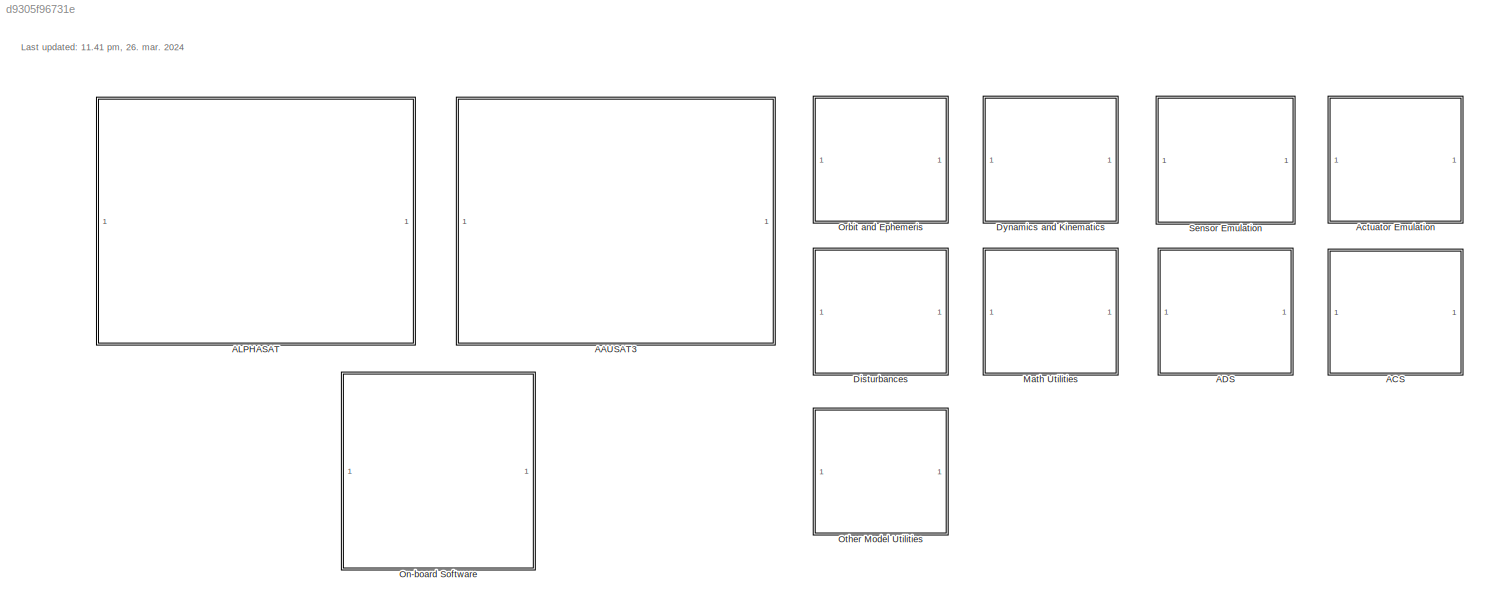
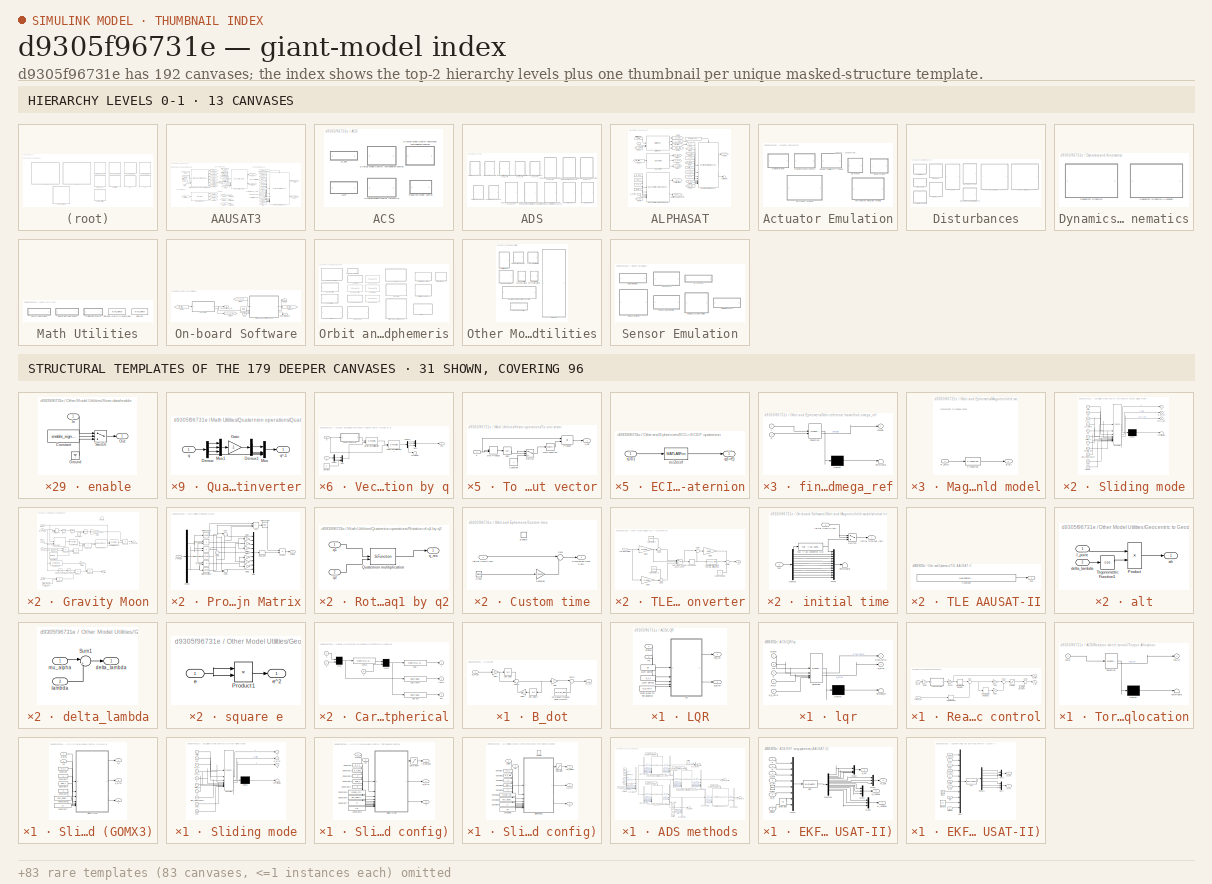
[diagram: thumbnail index - top-2 hierarchy levels (13 canvases) + 31 structural-template representatives of the remaining 179 canvases]
MODEL slx_d9305f96731e
KIND library
CONFIG AbsTol = auto
CONFIG EnableMultiTasking = on
CONFIG FixedStep = auto
CONFIG MaxStep = auto
CONFIG MinStep = auto
CONFIG RelTol = 1e-3
CONFIG SampleTimeConstraint = Unconstrained
CONFIG SolverName = ode45
CONFIG StartTime = 0.0
CONFIG StopTime = 10.0
BLOCK [SubSystem] AAUSAT3
  ShowPortLabels = none
BLOCK [Constant] AAUSAT3/Center of mass R_com(S)
  Value = r_com_s
BLOCK [Constant] AAUSAT3/Controller frame (S->C)
  NameLocation = top
  Value = q_s_c/norm(q_s_c)
BLOCK [Constant] AAUSAT3/Controller frame (S->C)1
  Value = q_s_c/norm(q_s_c)
BLOCK [Constant] AAUSAT3/Enable env disturbance
  Value = enable_env_disturbance
BLOCK [Reference] AAUSAT3/Environment Disturbances  REF=$bdroot/Disturbances/Environment Disturbances
  SourceBlock = $bdroot/Disturbances/Environment Disturbances
BLOCK [Reference] AAUSAT3/Ephemeris models  REF=$bdroot/Orbit and Ephemeris/Ephemeris
  SourceBlock = $bdroot/Orbit and Ephemeris/Ephemeris
  SourceType = SubSystem
BLOCK [From] AAUSAT3/From1
  CloseFcn = tagdialog Close
  GotoTag = Pos_Sun_I
  TagVisibility = global
BLOCK [From] AAUSAT3/From15
  CloseFcn = tagdialog Close
  GotoTag = q_I_S
  TagVisibility = global
BLOCK [From] AAUSAT3/From16
  CloseFcn = tagdialog Close
  GotoTag = F_dist_S
  TagVisibility = global
BLOCK [From] AAUSAT3/From18
  CloseFcn = tagdialog Close
  GotoTag = Pos_Sun_I
  TagVisibility = global
BLOCK [From] AAUSAT3/From19
  CloseFcn = tagdialog Close
  GotoTag = Pos_SC_I
  TagVisibility = global
BLOCK [From] AAUSAT3/From2
  CloseFcn = tagdialog Close
  GotoTag = N_dist_S
  TagVisibility = global
BLOCK [From] AAUSAT3/From22
  CloseFcn = tagdialog Close
  GotoTag = Vel_SC_I
  TagVisibility = global
BLOCK [From] AAUSAT3/From23
  CloseFcn = tagdialog Close
  GotoTag = Eclipse
  TagVisibility = global
BLOCK [From] AAUSAT3/From3
  CloseFcn = tagdialog Close
  GotoTag = q_I_E
  TagVisibility = global
BLOCK [From] AAUSAT3/From4
  CloseFcn = tagdialog Close
  GotoTag = Reflectivity
  TagVisibility = global
BLOCK [From] AAUSAT3/From5
  CloseFcn = tagdialog Close
  GotoTag = Sim_time_JD
  TagVisibility = global
BLOCK [From] AAUSAT3/From6
  CloseFcn = tagdialog Close
  GotoTag = Pos_Moon_I
  TagVisibility = global
BLOCK [From] AAUSAT3/From7
  CloseFcn = tagdialog Close
  GotoTag = Omega_S
  TagVisibility = global
BLOCK [From] AAUSAT3/From8
  CloseFcn = tagdialog Close
  GotoTag = Mag_I
  TagVisibility = global
BLOCK [Goto] AAUSAT3/Goto
  GotoTag = Mag_I
  TagVisibility = global
BLOCK [Goto] AAUSAT3/Goto1
  GotoTag = Vel_SC_I
  TagVisibility = global
BLOCK [Goto] AAUSAT3/Goto10
  GotoTag = q_I_S
  TagVisibility = global
BLOCK [Goto] AAUSAT3/Goto11
  GotoTag = Omega_S
  TagVisibility = global
BLOCK [Goto] AAUSAT3/Goto12
  GotoTag = F_dist_S
  TagVisibility = global
BLOCK [Goto] AAUSAT3/Goto2
  GotoTag = Pos_Sun_I
  TagVisibility = global
BLOCK [Goto] AAUSAT3/Goto3
  GotoTag = Pos_SC_I
  TagVisibility = global
BLOCK [Goto] AAUSAT3/Goto4
  GotoTag = Pos_Moon_I
  TagVisibility = global
BLOCK [Goto] AAUSAT3/Goto5
  GotoTag = Sim_time_JD
  TagVisibility = global
BLOCK [Goto] AAUSAT3/Goto6
  GotoTag = Eclipse
  TagVisibility = global
BLOCK [Goto] AAUSAT3/Goto7
  GotoTag = Reflectivity
  TagVisibility = global
BLOCK [Goto] AAUSAT3/Goto8
  GotoTag = q_I_E
  TagVisibility = global
BLOCK [Goto] AAUSAT3/Goto9
  GotoTag = N_dist_S
  TagVisibility = global
BLOCK [Constant] AAUSAT3/Initial angular rate W_i(S)
  NameLocation = top
  Value = w_init_s
BLOCK [Constant] AAUSAT3/Initial attitude q_i(I->S)
  NameLocation = top
  Value = q_init_I_S
BLOCK [Constant] AAUSAT3/Initial time (JD)
  NameLocation = top
  Value = init_jd
BLOCK [Inport] AAUSAT3/Magnetorquer N_mt(S)
  NameLocation = top
BLOCK [Constant] AAUSAT3/Mass of spaccraft
  Value = mass_sc
BLOCK [Reference] AAUSAT3/Orbit, eclipse, albedo and magnetic field models  REF=$bdroot/Orbit and Ephemeris/Orbit and Magnetic field models
  SourceBlock = $bdroot/Orbit and Ephemeris/Orbit and Magnetic field models
BLOCK [Reference] AAUSAT3/Spacecraft dynamics  REF=$bdroot/Dynamics and Kinematics/Spacecraft Dynamics
  SourceBlock = $bdroot/Dynamics and Kinematics/Spacecraft Dynamics
  SourceType = SubSystem
BLOCK [Constant] AAUSAT3/Spacecraft inertia (C)
  NameLocation = top
  Value = inertia_c
BLOCK [Constant] AAUSAT3/Spacecraft inertia (C)1
  Value = inertia_c
BLOCK [Inport] AAUSAT3/TLE
  NameLocation = top
  Port = 2
BLOCK [Terminator] AAUSAT3/Terminator1
BLOCK [Terminator] AAUSAT3/Terminator2
BLOCK [Terminator] AAUSAT3/Terminator3
BLOCK [SubSystem] ACS
  ShowPortLabels = none
BLOCK [SubSystem] ACS/B_dot
BLOCK [Inport] ACS/B_dot/B_meas
BLOCK [Gain] ACS/B_dot/Gain
  Gain = -C
BLOCK [Gain] ACS/B_dot/Gain1
  Gain = wc
BLOCK [Gain] ACS/B_dot/Gain2
  Gain = exp(-wc*Ts)
  NameLocation = top
BLOCK [Constant] ACS/B_dot/Permanent magnet dipole moment
  Value = [0,0,m_pm]
BLOCK [Sum] ACS/B_dot/Sum2
  Inputs = -++
BLOCK [Sum] ACS/B_dot/Sum3
  Inputs = |++
BLOCK [UnitDelay] ACS/B_dot/Unit Delay
  HasFrameUpgradeWarning = on
  SampleTime = -1
BLOCK [UnitDelay] ACS/B_dot/Unit Delay1
  HasFrameUpgradeWarning = on
  NameLocation = top
  SampleTime = -1
BLOCK [Outport] ACS/B_dot/m_ctrl
  PortDimensions = 3
BLOCK [SubSystem] ACS/LQR
BLOCK [Constant] ACS/LQR/From Body to Tetrahedron
  Value = q_b_tetra
  VectorParams1D = off
BLOCK [Constant] ACS/LQR/LQR gains
  Value = lqr
BLOCK [Constant] ACS/LQR/LQR gains1
  Value = q_s_c
BLOCK [SubSystem] ACS/LQR/lqr
  ErrorFcn = Stateflow.Translate.translate
  PermitHierarchicalResolution = ExplicitOnly
  SFBlockType = MATLAB Function
  SystemSampleTime = Ts
  TreatAsAtomicUnit = on
BLOCK [Demux] ACS/LQR/lqr/ Demux 
  Outputs = 1
BLOCK [S-Function] ACS/LQR/lqr/ SFunction 
  EnableBusSupport = off
  FunctionName = sf_sfun
  PortCounts = [5 3]
  SFcnIsStateOwnerBlock = off
  SFunctionDeploymentMode = off
  Tag = Stateflow S-Function 7
BLOCK [Terminator] ACS/LQR/lqr/ Terminator 
BLOCK [Inport] ACS/LQR/lqr/K
  Port = 3
BLOCK [Outport] ACS/LQR/lqr/d_tau_tetra
BLOCK [Inport] ACS/LQR/lqr/q_b_tetra
  Port = 5
BLOCK [Outport] ACS/LQR/lqr/q_error
  Port = 2
BLOCK [Inport] ACS/LQR/lqr/q_s_c
  Port = 4
BLOCK [Inport] ACS/LQR/lqr/ref
  Port = 2
BLOCK [Inport] ACS/LQR/lqr/states
BLOCK [Outport] ACS/LQR/q_error
  Port = 2
BLOCK [Inport] ACS/LQR/ref
  Port = 2
  PortDimensions = [10 1]
BLOCK [Inport] ACS/LQR/states
  PortDimensions = [7 1]
BLOCK [Outport] ACS/LQR/tau_rw
BLOCK [SubSystem] ACS/Reaction wheel control
BLOCK [Constant] ACS/Reaction wheel control/Constant
  Value = u_bias
BLOCK [DiscreteIntegrator] ACS/Reaction wheel control/Discrete-Time Integrator
  ICPrevOutput = DiscIntNeverNeededParam
  ICPrevScaledInput = DiscIntNeverNeededParam
  InitialCondition = omega_bias
  InitialConditionSetting = Auto
  LimitOutput = on
  LowerSaturationLimit = 0
  SampleTime = Ts
  UpperSaturationLimit = 1600
BLOCK [DiscreteIntegrator] ACS/Reaction wheel control/Discrete-Time Integrator1
  ICPrevOutput = DiscIntNeverNeededParam
  ICPrevScaledInput = DiscIntNeverNeededParam
  InitialConditionSetting = Auto
  LimitOutput = on
  LowerSaturationLimit = -1000
  SampleTime = Ts
  UpperSaturationLimit = 1000
BLOCK [Gain] ACS/Reaction wheel control/Gain
  Gain = Kp
BLOCK [Gain] ACS/Reaction wheel control/Gain1
  Gain = Ki
BLOCK [Gain] ACS/Reaction wheel control/Gain2
BLOCK [Saturate] ACS/Reaction wheel control/Saturation
  LowerLimit = -ones(4,1)*3.3/2
  UpperLimit = ones(4,1)*3.3/2
BLOCK [Sum] ACS/Reaction wheel control/Sum
  Inputs = |+-
BLOCK [Sum] ACS/Reaction wheel control/Sum1
  Inputs = |++
BLOCK [Sum] ACS/Reaction wheel control/Sum2
  Inputs = |++
BLOCK [SubSystem] ACS/Reaction wheel control/Torque Allocation
  ErrorFcn = Stateflow.Translate.translate
  PermitHierarchicalResolution = ExplicitOnly
  SFBlockType = MATLAB Function
  TreatAsAtomicUnit = on
BLOCK [Demux] ACS/Reaction wheel control/Torque Allocation/ Demux 
  Outputs = 1
BLOCK [S-Function] ACS/Reaction wheel control/Torque Allocation/ SFunction 
  EnableBusSupport = off
  FunctionName = sf_sfun
  PortCounts = [1 2]
  SFcnIsStateOwnerBlock = off
  SFunctionDeploymentMode = off
  Tag = Stateflow S-Function 8
BLOCK [Terminator] ACS/Reaction wheel control/Torque Allocation/ Terminator 
BLOCK [Inport] ACS/Reaction wheel control/Torque Allocation/tau_d
BLOCK [Outport] ACS/Reaction wheel control/Torque Allocation/tau_rw
BLOCK [ZeroOrderHold] ACS/Reaction wheel control/Zero-Order Hold
  SampleTime = Ts
BLOCK [Gain] ACS/Reaction wheel control/inv(Jm)
  Gain = 1/Jrw
BLOCK [Inport] ACS/Reaction wheel control/omega_rw
  Port = 2
BLOCK [Inport] ACS/Reaction wheel control/tau_rw
BLOCK [Outport] ACS/Reaction wheel control/u_rw
BLOCK [Outport] ACS/Reaction wheel control/w_error
  Port = 2
BLOCK [SubSystem] ACS/Sliding Mode Control (GOMX3)
BLOCK [Constant] ACS/Sliding Mode Control (GOMX3)/Constant
  Value = q_s_c
BLOCK [Constant] ACS/Sliding Mode Control (GOMX3)/Constant2
  Value = K
BLOCK [Constant] ACS/Sliding Mode Control (GOMX3)/Constant3
  Value = delta_0
BLOCK [Constant] ACS/Sliding Mode Control (GOMX3)/Constant4
  Value = e
BLOCK [Constant] ACS/Sliding Mode Control (GOMX3)/Constant6
  Value = max_disturbance
BLOCK [Constant] ACS/Sliding Mode Control (GOMX3)/Constant7
  Value = Js
BLOCK [Outport] ACS/Sliding Mode Control (GOMX3)/N_s
BLOCK [SubSystem] ACS/Sliding Mode Control (GOMX3)/Sliding mode
  ErrorFcn = Stateflow.Translate.translate
  PermitHierarchicalResolution = ExplicitOnly
  SFBlockType = MATLAB Function
  SystemSampleTime = Ts
  TreatAsAtomicUnit = on
BLOCK [Demux] ACS/Sliding Mode Control (GOMX3)/Sliding mode/ Demux 
  Outputs = 1
BLOCK [S-Function] ACS/Sliding Mode Control (GOMX3)/Sliding mode/ SFunction 
  EnableBusSupport = off
  FunctionName = sf_sfun
  PortCounts = [10 4]
  SFcnIsStateOwnerBlock = off
  SFunctionDeploymentMode = off
  Tag = Stateflow S-Function 5
BLOCK [Terminator] ACS/Sliding Mode Control (GOMX3)/Sliding mode/ Terminator 
BLOCK [Inport] ACS/Sliding Mode Control (GOMX3)/Sliding mode/Jrw
  Port = 10
BLOCK [Inport] ACS/Sliding Mode Control (GOMX3)/Sliding mode/Jsat
  Port = 9
BLOCK [Inport] ACS/Sliding Mode Control (GOMX3)/Sliding mode/K
  Port = 5
BLOCK [Inport] ACS/Sliding Mode Control (GOMX3)/Sliding mode/delta_0
  Port = 6
BLOCK [Inport] ACS/Sliding Mode Control (GOMX3)/Sliding mode/e
  Port = 7
BLOCK [Inport] ACS/Sliding Mode Control (GOMX3)/Sliding mode/max_disturbance
  Port = 8
BLOCK [Outport] ACS/Sliding Mode Control (GOMX3)/Sliding mode/q_error
  Port = 2
BLOCK [Inport] ACS/Sliding Mode Control (GOMX3)/Sliding mode/q_s_c
  Port = 3
BLOCK [Inport] ACS/Sliding Mode Control (GOMX3)/Sliding mode/q_th_c
  Port = 4
BLOCK [Inport] ACS/Sliding Mode Control (GOMX3)/Sliding mode/ref
  Port = 2
BLOCK [Outport] ACS/Sliding Mode Control (GOMX3)/Sliding mode/s
  Port = 3
BLOCK [Inport] ACS/Sliding Mode Control (GOMX3)/Sliding mode/state
BLOCK [Outport] ACS/Sliding Mode Control (GOMX3)/Sliding mode/u
BLOCK [Outport] ACS/Sliding Mode Control (GOMX3)/q_error
  Port = 2
BLOCK [Inport] ACS/Sliding Mode Control (GOMX3)/ref
  Port = 2
  PortDimensions = [10 1]
BLOCK [Outport] ACS/Sliding Mode Control (GOMX3)/s
  Port = 3
BLOCK [Inport] ACS/Sliding Mode Control (GOMX3)/states
  PortDimensions = [7 1]
BLOCK [SubSystem] ACS/Sliding Mode Control (Tetrahedron config)
BLOCK [Constant] ACS/Sliding Mode Control (Tetrahedron config)/Constant
  Value = q_s_c
BLOCK [Constant] ACS/Sliding Mode Control (Tetrahedron config)/Constant1
  Value = q_s_tetra
BLOCK [Constant] ACS/Sliding Mode Control (Tetrahedron config)/Constant2
  Value = K
BLOCK [Constant] ACS/Sliding Mode Control (Tetrahedron config)/Constant3
  Value = delta_0
BLOCK [Constant] ACS/Sliding Mode Control (Tetrahedron config)/Constant4
  Value = e
BLOCK [Constant] ACS/Sliding Mode Control (Tetrahedron config)/Constant5
  Value = enable_coriolis
BLOCK [Constant] ACS/Sliding Mode Control (Tetrahedron config)/Constant6
  Value = max_disturbance
BLOCK [Constant] ACS/Sliding Mode Control (Tetrahedron config)/Constant7
  Value = Js
BLOCK [Constant] ACS/Sliding Mode Control (Tetrahedron config)/Constant8
  Value = Jrw
BLOCK [Saturate] ACS/Sliding Mode Control (Tetrahedron config)/Saturation
  LowerLimit = -Vcc/2
  UpperLimit = Vcc/2
BLOCK [SubSystem] ACS/Sliding Mode Control (Tetrahedron config)/Sliding mode
  ErrorFcn = Stateflow.Translate.translate
  PermitHierarchicalResolution = ExplicitOnly
  SFBlockType = MATLAB Function
  SystemSampleTime = Ts
  TreatAsAtomicUnit = on
BLOCK [Demux] ACS/Sliding Mode Control (Tetrahedron config)/Sliding mode/ Demux 
  Outputs = 1
BLOCK [S-Function] ACS/Sliding Mode Control (Tetrahedron config)/Sliding mode/ SFunction 
  EnableBusSupport = off
  FunctionName = sf_sfun
  PortCounts = [11 4]
  SFcnIsStateOwnerBlock = off
  SFunctionDeploymentMode = off
  Tag = Stateflow S-Function 1
BLOCK [Terminator] ACS/Sliding Mode Control (Tetrahedron config)/Sliding mode/ Terminator 
BLOCK [Inport] ACS/Sliding Mode Control (Tetrahedron config)/Sliding mode/Jsat
  Port = 10
BLOCK [Inport] ACS/Sliding Mode Control (Tetrahedron config)/Sliding mode/Jwheel
  Port = 11
BLOCK [Inport] ACS/Sliding Mode Control (Tetrahedron config)/Sliding mode/K
  Port = 5
BLOCK [Inport] ACS/Sliding Mode Control (Tetrahedron config)/Sliding mode/coriolis_on
  Port = 8
BLOCK [Inport] ACS/Sliding Mode Control (Tetrahedron config)/Sliding mode/delta_0
  Port = 6
BLOCK [Inport] ACS/Sliding Mode Control (Tetrahedron config)/Sliding mode/e
  Port = 7
BLOCK [Inport] ACS/Sliding Mode Control (Tetrahedron config)/Sliding mode/max_disturbance
  Port = 9
BLOCK [Outport] ACS/Sliding Mode Control (Tetrahedron config)/Sliding mode/q_error
  Port = 2
BLOCK [Inport] ACS/Sliding Mode Control (Tetrahedron config)/Sliding mode/q_s_c
  Port = 3
BLOCK [Inport] ACS/Sliding Mode Control (Tetrahedron config)/Sliding mode/q_s_tetra
  Port = 4
BLOCK [Outport] ACS/Sliding Mode Control (Tetrahedron config)/Sliding mode/qe_s_dot
  Port = 3
BLOCK [Inport] ACS/Sliding Mode Control (Tetrahedron config)/Sliding mode/ref
  Port = 2
BLOCK [Inport] ACS/Sliding Mode Control (Tetrahedron config)/Sliding mode/state
BLOCK [Outport] ACS/Sliding Mode Control (Tetrahedron config)/Sliding mode/u
BLOCK [Outport] ACS/Sliding Mode Control (Tetrahedron config)/q_error
  Port = 2
BLOCK [Inport] ACS/Sliding Mode Control (Tetrahedron config)/ref
  Port = 2
BLOCK [Outport] ACS/Sliding Mode Control (Tetrahedron config)/rw_voltage
BLOCK [Outport] ACS/Sliding Mode Control (Tetrahedron config)/s
  Port = 3
BLOCK [Inport] ACS/Sliding Mode Control (Tetrahedron config)/states
BLOCK [SubSystem] ACS/Sliding Mode Control Teststand (Tetrahedron config)
BLOCK [Constant] ACS/Sliding Mode Control Teststand (Tetrahedron config)/Constant
  Value = q_s_c
BLOCK [Constant] ACS/Sliding Mode Control Teststand (Tetrahedron config)/Constant1
  Value = q_s_tetra
BLOCK [Constant] ACS/Sliding Mode Control Teststand (Tetrahedron config)/Constant2
  Value = K
BLOCK [Constant] ACS/Sliding Mode Control Teststand (Tetrahedron config)/Constant3
  Value = delta_0
BLOCK [Constant] ACS/Sliding Mode Control Teststand (Tetrahedron config)/Constant4
  Value = e
BLOCK [Constant] ACS/Sliding Mode Control Teststand (Tetrahedron config)/Constant5
  Value = enable_coriolis
BLOCK [Constant] ACS/Sliding Mode Control Teststand (Tetrahedron config)/Constant6
  Value = max_disturbance
BLOCK [Constant] ACS/Sliding Mode Control Teststand (Tetrahedron config)/Constant7
  Value = Js
BLOCK [Constant] ACS/Sliding Mode Control Teststand (Tetrahedron config)/Constant8
  Value = Jrw
BLOCK [EnablePort] ACS/Sliding Mode Control Teststand (Tetrahedron config)/Enable
BLOCK [Saturate] ACS/Sliding Mode Control Teststand (Tetrahedron config)/Saturation
  LowerLimit = -Vcc/2
  UpperLimit = Vcc/2
BLOCK [SubSystem] ACS/Sliding Mode Control Teststand (Tetrahedron config)/Sliding mode
  ErrorFcn = Stateflow.Translate.translate
  PermitHierarchicalResolution = ExplicitOnly
  SFBlockType = MATLAB Function
  TreatAsAtomicUnit = on
BLOCK [Demux] ACS/Sliding Mode Control Teststand (Tetrahedron config)/Sliding mode/ Demux 
  Outputs = 1
BLOCK [S-Function] ACS/Sliding Mode Control Teststand (Tetrahedron config)/Sliding mode/ SFunction 
  EnableBusSupport = off
  FunctionName = sf_sfun
  PortCounts = [11 4]
  SFcnIsStateOwnerBlock = off
  SFunctionDeploymentMode = off
  Tag = Stateflow S-Function 11
BLOCK [Terminator] ACS/Sliding Mode Control Teststand (Tetrahedron config)/Sliding mode/ Terminator 
BLOCK [Inport] ACS/Sliding Mode Control Teststand (Tetrahedron config)/Sliding mode/Jsat
  Port = 10
BLOCK [Inport] ACS/Sliding Mode Control Teststand (Tetrahedron config)/Sliding mode/Jwheel
  Port = 11
BLOCK [Inport] ACS/Sliding Mode Control Teststand (Tetrahedron config)/Sliding mode/K
  Port = 5
BLOCK [Inport] ACS/Sliding Mode Control Teststand (Tetrahedron config)/Sliding mode/coriolis_on
  Port = 8
BLOCK [Inport] ACS/Sliding Mode Control Teststand (Tetrahedron config)/Sliding mode/delta_0
  Port = 6
BLOCK [Inport] ACS/Sliding Mode Control Teststand (Tetrahedron config)/Sliding mode/e
  Port = 7
BLOCK [Inport] ACS/Sliding Mode Control Teststand (Tetrahedron config)/Sliding mode/max_disturbance
  Port = 9
BLOCK [Outport] ACS/Sliding Mode Control Teststand (Tetrahedron config)/Sliding mode/q_error
  Port = 2
BLOCK [Inport] ACS/Sliding Mode Control Teststand (Tetrahedron config)/Sliding mode/q_s_c
  Port = 3
BLOCK [Inport] ACS/Sliding Mode Control Teststand (Tetrahedron config)/Sliding mode/q_s_tetra
  Port = 4
BLOCK [Inport] ACS/Sliding Mode Control Teststand (Tetrahedron config)/Sliding mode/ref
  Port = 2
BLOCK [Outport] ACS/Sliding Mode Control Teststand (Tetrahedron config)/Sliding mode/s
  Port = 3
BLOCK [Inport] ACS/Sliding Mode Control Teststand (Tetrahedron config)/Sliding mode/state
BLOCK [Outport] ACS/Sliding Mode Control Teststand (Tetrahedron config)/Sliding mode/u
BLOCK [Outport] ACS/Sliding Mode Control Teststand (Tetrahedron config)/q_error
  Port = 2
  PortDimensions = [4 1]
BLOCK [Inport] ACS/Sliding Mode Control Teststand (Tetrahedron config)/ref
  Port = 2
  PortDimensions = [10 1]
BLOCK [Outport] ACS/Sliding Mode Control Teststand (Tetrahedron config)/rw_voltage
  PortDimensions = [4 1]
BLOCK [Outport] ACS/Sliding Mode Control Teststand (Tetrahedron config)/s
  Port = 3
BLOCK [Inport] ACS/Sliding Mode Control Teststand (Tetrahedron config)/states
  PortDimensions = [11 1]
BLOCK [SubSystem] ADS
  ShowPortLabels = none
BLOCK [SubSystem] ADS/ADS methods
BLOCK [BusCreator] ADS/ADS methods/Bus Creator
  DisplayOption = bar
  InheritFromInputs = on
  Inputs = 8
BLOCK [BusCreator] ADS/ADS methods/Bus Creator1
  DisplayOption = bar
  InheritFromInputs = on
  Inputs = 6
BLOCK [BusCreator] ADS/ADS methods/Bus Creator2
  DisplayOption = bar
  InheritFromInputs = on
  Inputs = 5
BLOCK [BusCreator] ADS/ADS methods/Bus Creator3
  DisplayOption = bar
  InheritFromInputs = on
  Inputs = 3
BLOCK [BusCreator] ADS/ADS methods/Bus Creator4
  DisplayOption = bar
  InheritFromInputs = on
  Inputs = 2
BLOCK [BusCreator] ADS/ADS methods/Bus Creator5
  DisplayOption = bar
  InheritFromInputs = on
  Inputs = 4
BLOCK [BusCreator] ADS/ADS methods/Bus Creator6
  DisplayOption = bar
  InheritFromInputs = on
  Inputs = 2
BLOCK [BusSelector] ADS/ADS methods/Bus Selector
  OutputSignals = Sun_S,Mag_S,Omega_S,Sun_I,Mag_I,N_control,q0,Eclipse
BLOCK [BusSelector] ADS/ADS methods/Bus Selector1
  OutputSignals = Sun_S,Mag_S,Omega_S,Sun_I,Mag_I,N_control,q0,Eclipse
BLOCK [BusSelector] ADS/ADS methods/Bus Selector2
  OutputSignals = Sun_S,Mag_S,Omega_S,Sun_I,Mag_I,N_control,q0,Eclipse
BLOCK [BusSelector] ADS/ADS methods/Bus Selector3
  OutputSignals = Sun_S,Mag_S,Sun_I,Mag_I
BLOCK [Inport] ADS/ADS methods/Eclipse
  Port = 7
BLOCK [Constant] ADS/ADS methods/Enable SVD method
  Value = enable_svd
BLOCK [Constant] ADS/ADS methods/Enable UKF simple
  Value = enable_ukf_simple
BLOCK [Constant] ADS/ADS methods/Enable UKF with bias
  Value = enable_ukf_bias
BLOCK [Constant] ADS/ADS methods/Enable UKF with bias + inertia
  Value = enable_ukf_bias_inertia
BLOCK [Inport] ADS/ADS methods/Mag_I
  Port = 5
BLOCK [Inport] ADS/ADS methods/Mag_S
  Port = 2
BLOCK [Inport] ADS/ADS methods/N_control
  Port = 6
BLOCK [Inport] ADS/ADS methods/Omega_S
  Port = 3
BLOCK [Inport] ADS/ADS methods/Sun_I
  Port = 4
BLOCK [Inport] ADS/ADS methods/Sun_S
BLOCK [Reference] ADS/ADS methods/UKF using sun and mag vectors (AAUSAT3)  REF=$bdroot/ADS/UKF using sun and mag vectors
(AAUSAT3)
  SourceBlock = $bdroot/ADS/UKF using sun and mag vectors\n(AAUSAT3)
BLOCK [Reference] ADS/ADS methods/UKF using sun and mag vectors .. including bias and inertia estimation (AAUSAT3)1  REF=$bdroot/ADS/UKF using sun and mag vectors ..
including bias and inertia estimation
(AAUSAT3)
  SourceBlock = $bdroot/ADS/UKF using sun and mag vectors ..\nincluding bias and inertia estimation\n(AAUSAT3)
BLOCK [Reference] ADS/ADS methods/UKF using sun and mag vectors .. including bias estimation (AAUSAT3)1  REF=$bdroot/ADS/UKF using sun and mag vectors ..
including bias estimation
(AAUSAT3)
  SourceBlock = $bdroot/ADS/UKF using sun and mag vectors ..\nincluding bias estimation\n(AAUSAT3)
BLOCK [Constant] ADS/ADS methods/bias_gyro
  NameLocation = top
  Value = [0 0 0]
BLOCK [Constant] ADS/ADS methods/bias_mag
  NameLocation = top
  Value = [0 0 0]
BLOCK [Constant] ADS/ADS methods/inertia
  NameLocation = top
  Value = [0 0 0]
BLOCK [Constant] ADS/ADS methods/inertia1
  NameLocation = top
  Value = [0 0 0]
BLOCK [Constant] ADS/ADS methods/q0
  Value = q0_guess/norm(q0_guess)
BLOCK [Reference] ADS/ADS methods/svd-method (AAUSAT3)  REF=$bdroot/ADS/svd-method
(AAUSAT3)
  SourceBlock = $bdroot/ADS/svd-method\n(AAUSAT3)
BLOCK [Outport] ADS/ADS methods/svd_method
  Port = 4
BLOCK [Outport] ADS/ADS methods/ukf_bias
  Port = 2
BLOCK [Outport] ADS/ADS methods/ukf_bias_inertia
  Port = 3
BLOCK [Outport] ADS/ADS methods/ukf_simple
BLOCK [SubSystem] ADS/EKF using quaternions (AAUSAT-II)
BLOCK [Clock] ADS/EKF using quaternions (AAUSAT-II)/Clock
BLOCK [Demux] ADS/EKF using quaternions (AAUSAT-II)/Demux1
  Outputs = 16
BLOCK [MATLABFcn] ADS/EKF using quaternions (AAUSAT-II)/EKF
  MATLABFcn = AAUSAT_II_Kalman
  OutputDimensions = 16
  SampleTime = 0.1
BLOCK [Mux] ADS/EKF using quaternions (AAUSAT-II)/Mux1
  DisplayOption = bar
  Inputs = 3
BLOCK [Mux] ADS/EKF using quaternions (AAUSAT-II)/Mux2
  DisplayOption = bar
  Inputs = 8
BLOCK [Mux] ADS/EKF using quaternions (AAUSAT-II)/Mux3
  DisplayOption = bar
BLOCK [Mux] ADS/EKF using quaternions (AAUSAT-II)/Mux4
  DisplayOption = bar
  Inputs = 3
BLOCK [Mux] ADS/EKF using quaternions (AAUSAT-II)/Mux5
  DisplayOption = bar
  Inputs = 3
BLOCK [Inport] ADS/EKF using quaternions (AAUSAT-II)/N_mt
  Port = 4
BLOCK [Constant] ADS/EKF using quaternions (AAUSAT-II)/Step size
  Value = 0.1
BLOCK [Inport] ADS/EKF using quaternions (AAUSAT-II)/eclipse
  Port = 6
BLOCK [Inport] ADS/EKF using quaternions (AAUSAT-II)/h_mw
  Port = 3
BLOCK [Inport] ADS/EKF using quaternions (AAUSAT-II)/q
BLOCK [Inport] ADS/EKF using quaternions (AAUSAT-II)/q0_in
  Port = 5
BLOCK [Outport] ADS/EKF using quaternions (AAUSAT-II)/q_out
BLOCK [Outport] ADS/EKF using quaternions (AAUSAT-II)/q_residual
  Port = 3
BLOCK [Inport] ADS/EKF using quaternions (AAUSAT-II)/w
  Port = 2
BLOCK [Outport] ADS/EKF using quaternions (AAUSAT-II)/w_out
  Port = 2
BLOCK [Outport] ADS/EKF using quaternions (AAUSAT-II)/w_residual
  Port = 4
BLOCK [SubSystem] ADS/EKF using sun and mag vectors (AAUSAT-II)
BLOCK [Clock] ADS/EKF using sun and mag vectors (AAUSAT-II)/Clock
BLOCK [Demux] ADS/EKF using sun and mag vectors (AAUSAT-II)/Demux1
  Outputs = 7
BLOCK [MATLABFcn] ADS/EKF using sun and mag vectors (AAUSAT-II)/EKF
  MATLABFcn = AAUSAT_II_Kalman_BS_vectors
  OutputDimensions = 7
  SampleTime = 0.1
BLOCK [Inport] ADS/EKF using sun and mag vectors (AAUSAT-II)/Eclipse
  Port = 9
BLOCK [Mux] ADS/EKF using sun and mag vectors (AAUSAT-II)/Mux2
  DisplayOption = bar
  Inputs = 11
BLOCK [Mux] ADS/EKF using sun and mag vectors (AAUSAT-II)/Mux3
  DisplayOption = bar
BLOCK [Mux] ADS/EKF using sun and mag vectors (AAUSAT-II)/Mux4
  DisplayOption = bar
  Inputs = 3
BLOCK [Inport] ADS/EKF using sun and mag vectors (AAUSAT-II)/N_mt
  Port = 7
BLOCK [Inport] ADS/EKF using sun and mag vectors (AAUSAT-II)/R_sun(I)
  Port = 4
BLOCK [Inport] ADS/EKF using sun and mag vectors (AAUSAT-II)/R_sun(S)
BLOCK [Constant] ADS/EKF using sun and mag vectors (AAUSAT-II)/Step size
  Value = 0.1
BLOCK [Inport] ADS/EKF using sun and mag vectors (AAUSAT-II)/b(I)
  Port = 5
BLOCK [Inport] ADS/EKF using sun and mag vectors (AAUSAT-II)/b(S)
  Port = 2
BLOCK [Inport] ADS/EKF using sun and mag vectors (AAUSAT-II)/h_mw
  Port = 6
BLOCK [Inport] ADS/EKF using sun and mag vectors (AAUSAT-II)/q0
  Port = 8
BLOCK [Outport] ADS/EKF using sun and mag vectors (AAUSAT-II)/q_out
BLOCK [Inport] ADS/EKF using sun and mag vectors (AAUSAT-II)/w(S)
  Port = 3
BLOCK [Outport] ADS/EKF using sun and mag vectors (AAUSAT-II)/w_out
  Port = 2
BLOCK [SubSystem] ADS/EKF using sun and mag vectors (AAUSAT3)
BLOCK [Clock] ADS/EKF using sun and mag vectors (AAUSAT3)/Clock
BLOCK [Demux] ADS/EKF using sun and mag vectors (AAUSAT3)/Demux1
  Outputs = 7
BLOCK [MATLABFcn] ADS/EKF using sun and mag vectors (AAUSAT3)/EKF
  MATLABFcn = EKFsimple
  OutputDimensions = 7
  SampleTime = 1
BLOCK [Inport] ADS/EKF using sun and mag vectors (AAUSAT3)/Eclipse
  Port = 8
BLOCK [Inport] ADS/EKF using sun and mag vectors (AAUSAT3)/Mag_I
  Port = 5
BLOCK [Inport] ADS/EKF using sun and mag vectors (AAUSAT3)/Mag_S
  Port = 2
BLOCK [Mux] ADS/EKF using sun and mag vectors (AAUSAT3)/Mux2
  DisplayOption = bar
  Inputs = 10
BLOCK [Mux] ADS/EKF using sun and mag vectors (AAUSAT3)/Mux3
  DisplayOption = bar
BLOCK [Mux] ADS/EKF using sun and mag vectors (AAUSAT3)/Mux4
  DisplayOption = bar
  Inputs = 3
BLOCK [Inport] ADS/EKF using sun and mag vectors (AAUSAT3)/N_control
  Port = 6
BLOCK [Inport] ADS/EKF using sun and mag vectors (AAUSAT3)/Omega_S
  Port = 3
BLOCK [Constant] ADS/EKF using sun and mag vectors (AAUSAT3)/Step size
BLOCK [Inport] ADS/EKF using sun and mag vectors (AAUSAT3)/Sun_I
  Port = 4
BLOCK [Inport] ADS/EKF using sun and mag vectors (AAUSAT3)/Sun_S
BLOCK [Inport] ADS/EKF using sun and mag vectors (AAUSAT3)/q0
  Port = 7
BLOCK [Outport] ADS/EKF using sun and mag vectors (AAUSAT3)/q_out
BLOCK [Outport] ADS/EKF using sun and mag vectors (AAUSAT3)/w_out
  Port = 2
BLOCK [SubSystem] ADS/EKF using sun and mag vectors .. and removing bias (AAUSAT-II)
BLOCK [Clock] ADS/EKF using sun and mag vectors .. and removing bias (AAUSAT-II)/Clock
BLOCK [MATLABFcn] ADS/EKF using sun and mag vectors .. and removing bias (AAUSAT-II)/EKF
  MATLABFcn = AAUSAT_II_Kalman_BS_bias_vectors
  OutputDimensions = 7+12+12
  SampleTime = 0.1
BLOCK [Inport] ADS/EKF using sun and mag vectors .. and removing bias (AAUSAT-II)/Eclipse
  Port = 9
BLOCK [Mux] ADS/EKF using sun and mag vectors .. and removing bias (AAUSAT-II)/Mux2
  DisplayOption = bar
  Inputs = 11
BLOCK [Inport] ADS/EKF using sun and mag vectors .. and removing bias (AAUSAT-II)/N_mt
  Port = 7
BLOCK [Inport] ADS/EKF using sun and mag vectors .. and removing bias (AAUSAT-II)/R_sun(I)
  Port = 4
BLOCK [Inport] ADS/EKF using sun and mag vectors .. and removing bias (AAUSAT-II)/R_sun(S)
BLOCK [Selector] ADS/EKF using sun and mag vectors .. and removing bias (AAUSAT-II)/Selector
  IndexOptions = Index vector (dialog)
  Indices = (1:4)
  InputPortWidth = 7+12+12
  OutputSizes = 1
BLOCK [Selector] ADS/EKF using sun and mag vectors .. and removing bias (AAUSAT-II)/Selector1
  IndexOptions = Index vector (dialog)
  Indices = (5:7)
  InputPortWidth = 7+12+12
  OutputSizes = 1
BLOCK [Selector] ADS/EKF using sun and mag vectors .. and removing bias (AAUSAT-II)/Selector2
  IndexOptions = Index vector (dialog)
  Indices = (8:19)
  InputPortWidth = 7+12+12
  OutputSizes = 1
BLOCK [Selector] ADS/EKF using sun and mag vectors .. and removing bias (AAUSAT-II)/Selector3
  IndexOptions = Index vector (dialog)
  Indices = (20:31)
  InputPortWidth = 7+12+12
  OutputSizes = 1
BLOCK [Constant] ADS/EKF using sun and mag vectors .. and removing bias (AAUSAT-II)/Step size
  Value = 0.1
BLOCK [Inport] ADS/EKF using sun and mag vectors .. and removing bias (AAUSAT-II)/b(I)
  Port = 5
BLOCK [Inport] ADS/EKF using sun and mag vectors .. and removing bias (AAUSAT-II)/b(S)
  Port = 2
BLOCK [Outport] ADS/EKF using sun and mag vectors .. and removing bias (AAUSAT-II)/bias estimat
  Port = 4
BLOCK [Inport] ADS/EKF using sun and mag vectors .. and removing bias (AAUSAT-II)/h_mw
  Port = 6
BLOCK [Inport] ADS/EKF using sun and mag vectors .. and removing bias (AAUSAT-II)/q0
  Port = 8
BLOCK [Outport] ADS/EKF using sun and mag vectors .. and removing bias (AAUSAT-II)/q_out
BLOCK [Outport] ADS/EKF using sun and mag vectors .. and removing bias (AAUSAT-II)/residual
  Port = 3
BLOCK [Inport] ADS/EKF using sun and mag vectors .. and removing bias (AAUSAT-II)/w(S)
  Port = 3
BLOCK [Outport] ADS/EKF using sun and mag vectors .. and removing bias (AAUSAT-II)/w_out
  Port = 2
BLOCK [SubSystem] ADS/Propagator from Kalman filter (AAUSAT-II)
BLOCK [MATLABFcn] ADS/Propagator from Kalman filter (AAUSAT-II)/EKF
  MATLABFcn = kalman-propagator
  OutputDimensions = 10
  SampleTime = 1
BLOCK [Inport] ADS/Propagator from Kalman filter (AAUSAT-II)/Inertia matrix
  Port = 6
BLOCK [Mux] ADS/Propagator from Kalman filter (AAUSAT-II)/Mux2
  DisplayOption = bar
  Inputs = 7
BLOCK [Inport] ADS/Propagator from Kalman filter (AAUSAT-II)/N_dist(S)
  Port = 5
BLOCK [Inport] ADS/Propagator from Kalman filter (AAUSAT-II)/N_mt(S)
  Port = 4
BLOCK [Selector] ADS/Propagator from Kalman filter (AAUSAT-II)/Selector
  IndexOptions = Index vector (dialog)
  Indices = (1:4)
  InputPortWidth = 10
  OutputSizes = 1
BLOCK [Selector] ADS/Propagator from Kalman filter (AAUSAT-II)/Selector1
  IndexOptions = Index vector (dialog)
  Indices = (5:7)
  InputPortWidth = 10
  OutputSizes = 1
BLOCK [Selector] ADS/Propagator from Kalman filter (AAUSAT-II)/Selector2
  IndexOptions = Index vector (dialog)
  Indices = (8:10)
  InputPortWidth = 10
  OutputSizes = 1
BLOCK [Constant] ADS/Propagator from Kalman filter (AAUSAT-II)/Step size
BLOCK [Outport] ADS/Propagator from Kalman filter (AAUSAT-II)/h_mw
  Port = 3
BLOCK [Inport] ADS/Propagator from Kalman filter (AAUSAT-II)/h_mw(S)
  Port = 3
BLOCK [Inport] ADS/Propagator from Kalman filter (AAUSAT-II)/q(S)
BLOCK [Outport] ADS/Propagator from Kalman filter (AAUSAT-II)/q_out
BLOCK [Inport] ADS/Propagator from Kalman filter (AAUSAT-II)/w(S)
  Port = 2
BLOCK [Outport] ADS/Propagator from Kalman filter (AAUSAT-II)/w_out
  Port = 2
BLOCK [SubSystem] ADS/Teststand EKF
BLOCK [Constant] ADS/Teststand EKF/Constant1
  Value = x0
BLOCK [Constant] ADS/Teststand EKF/Constant2
  Value = q_s_c
BLOCK [Constant] ADS/Teststand EKF/Constant3
  Value = q_s_tetra
BLOCK [SubSystem] ADS/Teststand EKF/Multiplicative Extended Kalman Filter
  ErrorFcn = Stateflow.Translate.translate
  PermitHierarchicalResolution = ExplicitOnly
  SFBlockType = MATLAB Function
  SystemSampleTime = dt
  TreatAsAtomicUnit = on
BLOCK [Demux] ADS/Teststand EKF/Multiplicative Extended Kalman Filter/ Demux 
  Outputs = 1
BLOCK [S-Function] ADS/Teststand EKF/Multiplicative Extended Kalman Filter/ SFunction 
  EnableBusSupport = off
  FunctionName = sf_sfun
  PortCounts = [6 5]
  SFcnIsStateOwnerBlock = off
  SFunctionDeploymentMode = off
  Tag = Stateflow S-Function 10
BLOCK [Terminator] ADS/Teststand EKF/Multiplicative Extended Kalman Filter/ Terminator 
BLOCK [Outport] ADS/Teststand EKF/Multiplicative Extended Kalman Filter/gyro_bias
  Port = 3
BLOCK [Outport] ADS/Teststand EKF/Multiplicative Extended Kalman Filter/omega_s
  Port = 2
BLOCK [Inport] ADS/Teststand EKF/Multiplicative Extended Kalman Filter/q_s_c
  Port = 4
BLOCK [Outport] ADS/Teststand EKF/Multiplicative Extended Kalman Filter/q_s_g
BLOCK [Inport] ADS/Teststand EKF/Multiplicative Extended Kalman Filter/q_s_tetra
  Port = 5
BLOCK [Outport] ADS/Teststand EKF/Multiplicative Extended Kalman Filter/rw_omega
  Port = 4
BLOCK [Inport] ADS/Teststand EKF/Multiplicative Extended Kalman Filter/t
  Port = 6
BLOCK [Inport] ADS/Teststand EKF/Multiplicative Extended Kalman Filter/u
  Port = 2
BLOCK [Inport] ADS/Teststand EKF/Multiplicative Extended Kalman Filter/x0
  Port = 3
BLOCK [Inport] ADS/Teststand EKF/Multiplicative Extended Kalman Filter/z_meas
BLOCK [Mux] ADS/Teststand EKF/Mux7
  DisplayOption = bar
BLOCK [Inport] ADS/Teststand EKF/acc_meas
  PortDimensions = [3 1]
BLOCK [Outport] ADS/Teststand EKF/gyro_bias
  Port = 3
  PortDimensions = [3 1]
BLOCK [Inport] ADS/Teststand EKF/gyro_meas
  Port = 2
  PortDimensions = [3 1]
BLOCK [Inport] ADS/Teststand EKF/mag_meas
  Port = 3
  PortDimensions = [3 1]
BLOCK [Outport] ADS/Teststand EKF/omega_s
  Port = 2
  PortDimensions = [3 1]
BLOCK [Outport] ADS/Teststand EKF/q_s_g
  PortDimensions = [4 1]
BLOCK [Outport] ADS/Teststand EKF/rw_omega
  Port = 4
  PortDimensions = [4 1]
BLOCK [Inport] ADS/Teststand EKF/rw_omega_in
  Port = 4
  PortDimensions = [4 1]
BLOCK [Inport] ADS/Teststand EKF/time
  Port = 6
BLOCK [Inport] ADS/Teststand EKF/u
  Port = 5
  PortDimensions = [4 1]
BLOCK [SubSystem] ADS/UKF using sun and mag vectors (AAUSAT3)
BLOCK [Clock] ADS/UKF using sun and mag vectors (AAUSAT3)/Clock
  Decimation = 1
BLOCK [Demux] ADS/UKF using sun and mag vectors (AAUSAT3)/Demux1
  Outputs = 7+9
BLOCK [Inport] ADS/UKF using sun and mag vectors (AAUSAT3)/Eclipse
  Port = 8
BLOCK [EnablePort] ADS/UKF using sun and mag vectors (AAUSAT3)/Enable
BLOCK [Inport] ADS/UKF using sun and mag vectors (AAUSAT3)/Mag_I
  Port = 5
BLOCK [Inport] ADS/UKF using sun and mag vectors (AAUSAT3)/Mag_S
  Port = 2
BLOCK [Mux] ADS/UKF using sun and mag vectors (AAUSAT3)/Mux1
  DisplayOption = bar
  Inputs = 9
BLOCK [Mux] ADS/UKF using sun and mag vectors (AAUSAT3)/Mux2
  DisplayOption = bar
  Inputs = 10
BLOCK [Mux] ADS/UKF using sun and mag vectors (AAUSAT3)/Mux3
  DisplayOption = bar
BLOCK [Mux] ADS/UKF using sun and mag vectors (AAUSAT3)/Mux4
  DisplayOption = bar
  Inputs = 3
BLOCK [Inport] ADS/UKF using sun and mag vectors (AAUSAT3)/N_control
  Port = 6
BLOCK [Inport] ADS/UKF using sun and mag vectors (AAUSAT3)/Omega_S
  Port = 3
BLOCK [Constant] ADS/UKF using sun and mag vectors (AAUSAT3)/Step size
  Value = 1/f_sample
BLOCK [Inport] ADS/UKF using sun and mag vectors (AAUSAT3)/Sun_I
  Port = 4
BLOCK [Inport] ADS/UKF using sun and mag vectors (AAUSAT3)/Sun_S
BLOCK [MATLABFcn] ADS/UKF using sun and mag vectors (AAUSAT3)/UKF
  MATLABFcn = UKFsimple
  OutputDimensions = 7+9
  SampleTime = 1/f_sample
BLOCK [Inport] ADS/UKF using sun and mag vectors (AAUSAT3)/q0
  Port = 7
BLOCK [Outport] ADS/UKF using sun and mag vectors (AAUSAT3)/q_out
BLOCK [Outport] ADS/UKF using sun and mag vectors (AAUSAT3)/residual
  Port = 3
BLOCK [Outport] ADS/UKF using sun and mag vectors (AAUSAT3)/w_out
  Port = 2
BLOCK [SubSystem] ADS/UKF using sun and mag vectors .. including bias and inertia estimation (AAUSAT3)
BLOCK [Clock] ADS/UKF using sun and mag vectors .. including bias and inertia estimation (AAUSAT3)/Clock
  Decimation = 1
BLOCK [Demux] ADS/UKF using sun and mag vectors .. including bias and inertia estimation (AAUSAT3)/Demux1
  Outputs = 25
BLOCK [Inport] ADS/UKF using sun and mag vectors .. including bias and inertia estimation (AAUSAT3)/Eclipse
  Port = 8
BLOCK [EnablePort] ADS/UKF using sun and mag vectors .. including bias and inertia estimation (AAUSAT3)/Enable
BLOCK [Inport] ADS/UKF using sun and mag vectors .. including bias and inertia estimation (AAUSAT3)/Mag_I
  Port = 5
BLOCK [Inport] ADS/UKF using sun and mag vectors .. including bias and inertia estimation (AAUSAT3)/Mag_S
  Port = 2
BLOCK [Mux] ADS/UKF using sun and mag vectors .. including bias and inertia estimation (AAUSAT3)/Mux1
  DisplayOption = bar
  Inputs = 3
BLOCK [Mux] ADS/UKF using sun and mag vectors .. including bias and inertia estimation (AAUSAT3)/Mux2
  DisplayOption = bar
  Inputs = 10
BLOCK [Mux] ADS/UKF using sun and mag vectors .. including bias and inertia estimation (AAUSAT3)/Mux3
  DisplayOption = bar
BLOCK [Mux] ADS/UKF using sun and mag vectors .. including bias and inertia estimation (AAUSAT3)/Mux4
  DisplayOption = bar
  Inputs = 3
BLOCK [Mux] ADS/UKF using sun and mag vectors .. including bias and inertia estimation (AAUSAT3)/Mux5
  DisplayOption = bar
  Inputs = 3
BLOCK [Mux] ADS/UKF using sun and mag vectors .. including bias and inertia estimation (AAUSAT3)/Mux6
  DisplayOption = bar
  Inputs = 9
BLOCK [Mux] ADS/UKF using sun and mag vectors .. including bias and inertia estimation (AAUSAT3)/Mux7
  DisplayOption = bar
  Inputs = 3
BLOCK [Inport] ADS/UKF using sun and mag vectors .. including bias and inertia estimation (AAUSAT3)/N_control
  Port = 6
BLOCK [Inport] ADS/UKF using sun and mag vectors .. including bias and inertia estimation (AAUSAT3)/Omega_S
  Port = 3
BLOCK [Constant] ADS/UKF using sun and mag vectors .. including bias and inertia estimation (AAUSAT3)/Step size
  Value = 1/f_sample
BLOCK [Inport] ADS/UKF using sun and mag vectors .. including bias and inertia estimation (AAUSAT3)/Sun_I
  Port = 4
BLOCK [Inport] ADS/UKF using sun and mag vectors .. including bias and inertia estimation (AAUSAT3)/Sun_S
BLOCK [MATLABFcn] ADS/UKF using sun and mag vectors .. including bias and inertia estimation (AAUSAT3)/UKF
  MATLABFcn = UKFbiasinertia
  OutputDimensions = 25
  SampleTime = 1/f_sample
BLOCK [Outport] ADS/UKF using sun and mag vectors .. including bias and inertia estimation (AAUSAT3)/bias_gyro
  Port = 4
BLOCK [Outport] ADS/UKF using sun and mag vectors .. including bias and inertia estimation (AAUSAT3)/bias_mag
  Port = 3
BLOCK [Outport] ADS/UKF using sun and mag vectors .. including bias and inertia estimation (AAUSAT3)/inertia
  Port = 5
BLOCK [Inport] ADS/UKF using sun and mag vectors .. including bias and inertia estimation (AAUSAT3)/q0
  Port = 7
BLOCK [Outport] ADS/UKF using sun and mag vectors .. including bias and inertia estimation (AAUSAT3)/q_out
BLOCK [Outport] ADS/UKF using sun and mag vectors .. including bias and inertia estimation (AAUSAT3)/residuals
  Port = 6
BLOCK [Outport] ADS/UKF using sun and mag vectors .. including bias and inertia estimation (AAUSAT3)/w_out
  Port = 2
BLOCK [SubSystem] ADS/UKF using sun and mag vectors .. including bias estimation (AAUSAT3)
BLOCK [Clock] ADS/UKF using sun and mag vectors .. including bias estimation (AAUSAT3)/Clock
  Decimation = 1
BLOCK [Demux] ADS/UKF using sun and mag vectors .. including bias estimation (AAUSAT3)/Demux1
  Outputs = 22
BLOCK [Inport] ADS/UKF using sun and mag vectors .. including bias estimation (AAUSAT3)/Eclipse
  Port = 8
BLOCK [EnablePort] ADS/UKF using sun and mag vectors .. including bias estimation (AAUSAT3)/Enable
BLOCK [Inport] ADS/UKF using sun and mag vectors .. including bias estimation (AAUSAT3)/Mag_I
  Port = 5
BLOCK [Inport] ADS/UKF using sun and mag vectors .. including bias estimation (AAUSAT3)/Mag_S
  Port = 2
BLOCK [Mux] ADS/UKF using sun and mag vectors .. including bias estimation (AAUSAT3)/Mux1
  DisplayOption = bar
  Inputs = 3
BLOCK [Mux] ADS/UKF using sun and mag vectors .. including bias estimation (AAUSAT3)/Mux2
  DisplayOption = bar
  Inputs = 10
BLOCK [Mux] ADS/UKF using sun and mag vectors .. including bias estimation (AAUSAT3)/Mux3
  DisplayOption = bar
BLOCK [Mux] ADS/UKF using sun and mag vectors .. including bias estimation (AAUSAT3)/Mux4
  DisplayOption = bar
  Inputs = 3
BLOCK [Mux] ADS/UKF using sun and mag vectors .. including bias estimation (AAUSAT3)/Mux5
  DisplayOption = bar
  Inputs = 3
BLOCK [Mux] ADS/UKF using sun and mag vectors .. including bias estimation (AAUSAT3)/Mux6
  DisplayOption = bar
  Inputs = 9
BLOCK [Inport] ADS/UKF using sun and mag vectors .. including bias estimation (AAUSAT3)/N_control
  Port = 6
BLOCK [Inport] ADS/UKF using sun and mag vectors .. including bias estimation (AAUSAT3)/Omega_S
  Port = 3
BLOCK [Constant] ADS/UKF using sun and mag vectors .. including bias estimation (AAUSAT3)/Step size
  Value = 1/f_sample
BLOCK [Inport] ADS/UKF using sun and mag vectors .. including bias estimation (AAUSAT3)/Sun_I
  Port = 4
BLOCK [Inport] ADS/UKF using sun and mag vectors .. including bias estimation (AAUSAT3)/Sun_S
BLOCK [MATLABFcn] ADS/UKF using sun and mag vectors .. including bias estimation (AAUSAT3)/UKF
  MATLABFcn = UKFbias
  OutputDimensions = 22
  SampleTime = 1/f_sample
BLOCK [Outport] ADS/UKF using sun and mag vectors .. including bias estimation (AAUSAT3)/bias_gyro
  Port = 4
BLOCK [Outport] ADS/UKF using sun and mag vectors .. including bias estimation (AAUSAT3)/bias_mag
  Port = 3
BLOCK [Inport] ADS/UKF using sun and mag vectors .. including bias estimation (AAUSAT3)/q0
  Port = 7
BLOCK [Outport] ADS/UKF using sun and mag vectors .. including bias estimation (AAUSAT3)/q_out
BLOCK [Outport] ADS/UKF using sun and mag vectors .. including bias estimation (AAUSAT3)/residuals
  Port = 5
BLOCK [Outport] ADS/UKF using sun and mag vectors .. including bias estimation (AAUSAT3)/w_out
  Port = 2
BLOCK [SubSystem] ADS/otoquest (AAUSAT-II)
BLOCK [Inport] ADS/otoquest (AAUSAT-II)/B (I)
  NameLocation = top
  SampleTime = 1
BLOCK [Inport] ADS/otoquest (AAUSAT-II)/B(S)
  Port = 3
  SampleTime = 1
BLOCK [Mux] ADS/otoquest (AAUSAT-II)/Mux
  DisplayOption = bar
  Inputs = 6
BLOCK [Inport] ADS/otoquest (AAUSAT-II)/R_sun(I)
  NameLocation = top
  Port = 2
  SampleTime = 1
BLOCK [Inport] ADS/otoquest (AAUSAT-II)/R_sun(S)
  Port = 4
  SampleTime = 1
BLOCK [Constant] ADS/otoquest (AAUSAT-II)/Weights
  Value = [0.5,0.5]
BLOCK [UnitDelay] ADS/otoquest (AAUSAT-II)/create q_old
  HasFrameUpgradeWarning = on
  InitialCondition = [0.8 0 0 0.6]
  NameLocation = top
BLOCK [MATLABFcn] ADS/otoquest (AAUSAT-II)/otoquest.m
  MATLABFcn = otoquest(u)
  Output1D = off
BLOCK [Outport] ADS/otoquest (AAUSAT-II)/q(I->S)
  PortDimensions = 4
BLOCK [SubSystem] ADS/otoquest with propagator (AAUSAT-II)
BLOCK [Inport] ADS/otoquest with propagator (AAUSAT-II)/B (I)
  NameLocation = top
  SampleTime = 1
BLOCK [Inport] ADS/otoquest with propagator (AAUSAT-II)/B(S)
  Port = 3
  SampleTime = 1
BLOCK [Mux] ADS/otoquest with propagator (AAUSAT-II)/Mux
  DisplayOption = bar
  Inputs = 7
BLOCK [Inport] ADS/otoquest with propagator (AAUSAT-II)/R_sun(I)
  NameLocation = top
  Port = 2
  SampleTime = 1
BLOCK [Inport] ADS/otoquest with propagator (AAUSAT-II)/R_sun(S)
  Port = 4
  SampleTime = 1
BLOCK [Constant] ADS/otoquest with propagator (AAUSAT-II)/Weights
  Value = [0.5,0.5]
BLOCK [Inport] ADS/otoquest with propagator (AAUSAT-II)/eclipse
  Port = 6
  SampleTime = 1
BLOCK [Inport] ADS/otoquest with propagator (AAUSAT-II)/omega
  Port = 5
  SampleTime = 1
BLOCK [MATLABFcn] ADS/otoquest with propagator (AAUSAT-II)/otoquest.m
  MATLABFcn = otoquest_with_pro(u)
  Output1D = off
  SampleTime = 0.1
BLOCK [Outport] ADS/otoquest with propagator (AAUSAT-II)/q_p(I->S)
  PortDimensions = 4
BLOCK [SubSystem] ADS/q-method (AAUSAT-II)
BLOCK [Inport] ADS/q-method (AAUSAT-II)/B(E)
  Port = 3
  SampleTime = 1
BLOCK [Inport] ADS/q-method (AAUSAT-II)/B(sc)
  NameLocation = top
  Port = 4
  SampleTime = 1
BLOCK [Mux] ADS/q-method (AAUSAT-II)/Mux
  DisplayOption = bar
  Inputs = 6
BLOCK [Inport] ADS/q-method (AAUSAT-II)/R_s(I)
  Port = 2
  SampleTime = 1
BLOCK [Inport] ADS/q-method (AAUSAT-II)/R_s(sc)
  NameLocation = top
  Port = 5
  SampleTime = 1
BLOCK [Reference] ADS/q-method (AAUSAT-II)/To unit vector  REF=$bdroot/Math Utilities/Vector operations/To unit vector
  SourceBlock = $bdroot/Math Utilities/Vector operations/To unit vector
  SourceType = SubSystem
BLOCK [Reference] ADS/q-method (AAUSAT-II)/To unit vector1  REF=$bdroot/Math Utilities/Vector operations/To unit vector
  SourceBlock = $bdroot/Math Utilities/Vector operations/To unit vector
  SourceType = SubSystem
BLOCK [Reference] ADS/q-method (AAUSAT-II)/To unit vector2  REF=$bdroot/Math Utilities/Vector operations/To unit vector
  SourceBlock = $bdroot/Math Utilities/Vector operations/To unit vector
  SourceType = SubSystem
BLOCK [Reference] ADS/q-method (AAUSAT-II)/To unit vector3  REF=$bdroot/Math Utilities/Vector operations/To unit vector
  SourceBlock = $bdroot/Math Utilities/Vector operations/To unit vector
  SourceType = SubSystem
BLOCK [UnitDelay] ADS/q-method (AAUSAT-II)/Unit Delay
  HasFrameUpgradeWarning = on
  NameLocation = right
BLOCK [Reference] ADS/q-method (AAUSAT-II)/Vector rotation by q  REF=$bdroot/Math Utilities/Quaternion operations/Vector rotation by q
  SourceBlock = $bdroot/Math Utilities/Quaternion operations/Vector rotation by q
  SourceType = SubSystem
BLOCK [Constant] ADS/q-method (AAUSAT-II)/Weights
  Value = [1,0]
BLOCK [Inport] ADS/q-method (AAUSAT-II)/q(E->I)
  NameLocation = top
  SampleTime = 1
BLOCK [Outport] ADS/q-method (AAUSAT-II)/q(I-SC)
  PortDimensions = 4
BLOCK [MATLABFcn] ADS/q-method (AAUSAT-II)/qmethod.m
  MATLABFcn = qmethod([u(1) u(4);u(2) u(5);u(3) u(6)] , [u(7) u(10);u(8) u(11); u(9) u(12)], [u(13);u(14)],[u(15);u(16);u(17);u(18)])
  Output1D = off
BLOCK [SubSystem] ADS/q-method (AAUSAT3)
BLOCK [Inport] ADS/q-method (AAUSAT3)/Mag_I
  Port = 4
  SampleTime = 1
BLOCK [Inport] ADS/q-method (AAUSAT3)/Mag_S
  NameLocation = top
  Port = 2
  SampleTime = 1
BLOCK [Mux] ADS/q-method (AAUSAT3)/Mux
  DisplayOption = bar
  Inputs = 5
BLOCK [Inport] ADS/q-method (AAUSAT3)/Sun_I
  NameLocation = top
  Port = 3
  SampleTime = 1
BLOCK [Inport] ADS/q-method (AAUSAT3)/Sun_S
  NameLocation = top
  SampleTime = 1
BLOCK [Reference] ADS/q-method (AAUSAT3)/To unit vector  REF=$bdroot/Math Utilities/Vector operations/To unit vector
  SourceBlock = $bdroot/Math Utilities/Vector operations/To unit vector
  SourceType = SubSystem
BLOCK [Reference] ADS/q-method (AAUSAT3)/To unit vector1  REF=$bdroot/Math Utilities/Vector operations/To unit vector
  SourceBlock = $bdroot/Math Utilities/Vector operations/To unit vector
  SourceType = SubSystem
BLOCK [Reference] ADS/q-method (AAUSAT3)/To unit vector2  REF=$bdroot/Math Utilities/Vector operations/To unit vector
  SourceBlock = $bdroot/Math Utilities/Vector operations/To unit vector
  SourceType = SubSystem
BLOCK [Reference] ADS/q-method (AAUSAT3)/To unit vector3  REF=$bdroot/Math Utilities/Vector operations/To unit vector
  SourceBlock = $bdroot/Math Utilities/Vector operations/To unit vector
  SourceType = SubSystem
BLOCK [Constant] ADS/q-method (AAUSAT3)/Weights
  Value = weigth_a
BLOCK [Outport] ADS/q-method (AAUSAT3)/q(I->S)
  PortDimensions = 4
BLOCK [MATLABFcn] ADS/q-method (AAUSAT3)/qmethod.m
  MATLABFcn = q_method([u(1) u(4);u(2) u(5);u(3) u(6)] , [u(7) u(10);u(8) u(11); u(9) u(12)], [u(13);u(14)])
  Output1D = off
  OutputDimensions = 4
BLOCK [SubSystem] ADS/svd-method (AAUSAT3)
BLOCK [Demux] ADS/svd-method (AAUSAT3)/Demux
  Outputs = 5
BLOCK [EnablePort] ADS/svd-method (AAUSAT3)/Enable
BLOCK [Inport] ADS/svd-method (AAUSAT3)/Mag_I
  Port = 4
  SampleTime = 1
BLOCK [Inport] ADS/svd-method (AAUSAT3)/Mag_S
  Port = 2
  SampleTime = 1
BLOCK [Mux] ADS/svd-method (AAUSAT3)/Mux
  DisplayOption = bar
  Inputs = 5
BLOCK [Mux] ADS/svd-method (AAUSAT3)/Mux1
  DisplayOption = bar
BLOCK [Inport] ADS/svd-method (AAUSAT3)/Sun_I
  Port = 3
  SampleTime = 1
BLOCK [Inport] ADS/svd-method (AAUSAT3)/Sun_S
  SampleTime = 1
BLOCK [Reference] ADS/svd-method (AAUSAT3)/To unit vector  REF=$bdroot/Math Utilities/Vector operations/To unit vector
  SourceBlock = $bdroot/Math Utilities/Vector operations/To unit vector
  SourceType = SubSystem
BLOCK [Reference] ADS/svd-method (AAUSAT3)/To unit vector1  REF=$bdroot/Math Utilities/Vector operations/To unit vector
  SourceBlock = $bdroot/Math Utilities/Vector operations/To unit vector
  SourceType = SubSystem
BLOCK [Reference] ADS/svd-method (AAUSAT3)/To unit vector2  REF=$bdroot/Math Utilities/Vector operations/To unit vector
  SourceBlock = $bdroot/Math Utilities/Vector operations/To unit vector
  SourceType = SubSystem
BLOCK [Reference] ADS/svd-method (AAUSAT3)/To unit vector3  REF=$bdroot/Math Utilities/Vector operations/To unit vector
  SourceBlock = $bdroot/Math Utilities/Vector operations/To unit vector
  SourceType = SubSystem
BLOCK [Constant] ADS/svd-method (AAUSAT3)/Weights
  Value = weigth_a
BLOCK [Outport] ADS/svd-method (AAUSAT3)/err
  Port = 2
BLOCK [Outport] ADS/svd-method (AAUSAT3)/q(I->S)
  PortDimensions = 4
BLOCK [MATLABFcn] ADS/svd-method (AAUSAT3)/svd_method.m
  MATLABFcn = SVD_method(u(13),[u(7);u(8);u(9)],[u(1);u(2);u(3)],u(14),[u(10);u(11);u(12)],[u(4);u(5);u(6)],0)
  Output1D = off
  OutputDimensions = 5
  SampleTime = 1/f_sample
BLOCK [SubSystem] ALPHASAT
BLOCK [Constant] ALPHASAT/ 
  Value = w_init_S
BLOCK [Constant] ALPHASAT/  
  Value = q_init_I_S
BLOCK [Constant] ALPHASAT/     
  Value = q_S_C
BLOCK [Constant] ALPHASAT/      
  Value = inertia_C
BLOCK [Constant] ALPHASAT/      1
  Value = inertia_C
BLOCK [Constant] ALPHASAT/     1
  Value = q_S_C
BLOCK [Constant] ALPHASAT/     2
  Value = sc_mass
BLOCK [Constant] ALPHASAT/     3
  Value = r_com
BLOCK [Constant] ALPHASAT/     4
  Value = enable_env_disturbance
BLOCK [Reference] ALPHASAT/Enviroment Disturbance  REF=$bdroot/Disturbances/Enviroment Disturbance2
  SourceBlock = $bdroot/Disturbances/Enviroment Disturbance2
BLOCK [Reference] ALPHASAT/Ephemeris  REF=$bdroot/Orbit and Ephemeris/Ephemeris
  SourceBlock = $bdroot/Orbit and Ephemeris/Ephemeris
  SourceType = SubSystem
BLOCK [From] ALPHASAT/From
  GotoTag = sim_time_JD
BLOCK [From] ALPHASAT/From2
  GotoTag = q_I_Earth
BLOCK [From] ALPHASAT/From3
  GotoTag = R_moon
BLOCK [From] ALPHASAT/From4
  GotoTag = R_sun
BLOCK [From] ALPHASAT/From5
  GotoTag = N_dist
BLOCK [From] ALPHASAT/From6
  GotoTag = q_I_S
BLOCK [From] ALPHASAT/From7
  GotoTag = S_I_VEL
BLOCK [From] ALPHASAT/From8
  GotoTag = S_I_POS
BLOCK [From] ALPHASAT/From9
  GotoTag = mag_field
BLOCK [Goto] ALPHASAT/Goto
  GotoTag = sim_time_JD
  TagVisibility = global
BLOCK [Goto] ALPHASAT/Goto1
  GotoTag = q_I_Earth
  TagVisibility = global
BLOCK [Goto] ALPHASAT/Goto2
  GotoTag = S_I_POS
  TagVisibility = global
BLOCK [Goto] ALPHASAT/Goto3
  GotoTag = S_I_VEL
  TagVisibility = global
BLOCK [Goto] ALPHASAT/Goto4
  GotoTag = mag_field
  TagVisibility = global
BLOCK [Goto] ALPHASAT/Goto5
  GotoTag = R_sun
BLOCK [Goto] ALPHASAT/Goto7
  GotoTag = R_moon
BLOCK [Goto] ALPHASAT/Goto8
  GotoTag = N_dist
  TagVisibility = global
BLOCK [Constant] ALPHASAT/Initial time (JD)
  NameLocation = top
  Value = init_jd
BLOCK [Inport] ALPHASAT/N_ext(S)
BLOCK [Reference] ALPHASAT/Orbit model  REF=$bdroot/Orbit and Ephemeris/Orbit model
  SourceBlock = $bdroot/Orbit and Ephemeris/Orbit model
BLOCK [Goto] ALPHASAT/Satellite Attitude
  GotoTag = q_I_S
  TagVisibility = global
BLOCK [Goto] ALPHASAT/Satellite angular velocity
  GotoTag = Omega_S
  TagVisibility = global
BLOCK [Reference] ALPHASAT/Spacecraft Dynamics (Alphasat)  REF=$bdroot/Dynamics and Kinematics/Spacecraft Dynamics (Alphasat)
  SourceBlock = $bdroot/Dynamics and Kinematics/Spacecraft Dynamics (Alphasat)
  SourceType = SubSystem
BLOCK [Inport] ALPHASAT/TLE
  Port = 2
BLOCK [Terminator] ALPHASAT/Terminator
BLOCK [SubSystem] Actuator Emulation
  ShowPortLabels = none
BLOCK [SubSystem] Actuator Emulation/BLDC no load
BLOCK [Gain] Actuator Emulation/BLDC no load/1//Jw
  Gain = 1/(J_rotor + J_rw)
BLOCK [Gain] Actuator Emulation/BLDC no load/Friction
  Gain = b
BLOCK [Gain] Actuator Emulation/BLDC no load/Gain4
  Gain = Kt/Ra
BLOCK [Gain] Actuator Emulation/BLDC no load/Gain5
  Gain = Ke
BLOCK [Gain] Actuator Emulation/BLDC no load/Gain6
  Gain = Kt/Ra
BLOCK [Integrator] Actuator Emulation/BLDC no load/Integrator
  InitialCondition = init_omega
BLOCK [Sum] Actuator Emulation/BLDC no load/Sum1
  Inputs = |++
BLOCK [Sum] Actuator Emulation/BLDC no load/Sum2
  Inputs = |+-
BLOCK [Saturate] Actuator Emulation/BLDC no load/Voltage Sat
  LowerLimit = 0
  UpperLimit = Vcc
BLOCK [Outport] Actuator Emulation/BLDC no load/omega
BLOCK [Outport] Actuator Emulation/BLDC no load/tau
  Port = 2
BLOCK [Saturate] Actuator Emulation/BLDC no load/torque sat
  LowerLimit = -0.745e-3
  UpperLimit = 0.745e-3
BLOCK [Inport] Actuator Emulation/BLDC no load/v_a
BLOCK [SubSystem] Actuator Emulation/DC Motor
BLOCK [Gain] Actuator Emulation/DC Motor/Friction
  Gain = b
BLOCK [Gain] Actuator Emulation/DC Motor/Gain
  Gain = 1/J
BLOCK [Gain] Actuator Emulation/DC Motor/Gain1
  Gain = Kt/Ra
BLOCK [Gain] Actuator Emulation/DC Motor/Gain2
  Gain = Ke
BLOCK [Gain] Actuator Emulation/DC Motor/Gain3
  Gain = Kt/Ra
BLOCK [Integrator] Actuator Emulation/DC Motor/Integrator
BLOCK [Sum] Actuator Emulation/DC Motor/Sum1
  IconShape = rectangular
BLOCK [Sum] Actuator Emulation/DC Motor/Sum2
  IconShape = rectangular
  Inputs = +-
BLOCK [Outport] Actuator Emulation/DC Motor/omega
BLOCK [Outport] Actuator Emulation/DC Motor/tau
  Port = 3
BLOCK [Inport] Actuator Emulation/DC Motor/v_a
BLOCK [Outport] Actuator Emulation/DC Motor/v_e
  Port = 2
BLOCK [SubSystem] Actuator Emulation/Magnetorquer
BLOCK [Abs] Actuator Emulation/Magnetorquer/Abs
  SaturateOnIntegerOverflow = off
BLOCK [Constant] Actuator Emulation/Magnetorquer/Area
  Value = coil_dim(1)*coil_dim(2)
BLOCK [Inport] Actuator Emulation/Magnetorquer/B(s)
  Port = 3
BLOCK [Reference] Actuator Emulation/Magnetorquer/Cross Product  REF=$bdroot/Math Utilities/Vector operations/Cross Product
  SourceBlock = $bdroot/Math Utilities/Vector operations/Cross Product
  SourceType = SubSystem
BLOCK [Outport] Actuator Emulation/Magnetorquer/N_mt(s)
BLOCK [Outport] Actuator Emulation/Magnetorquer/P_mt
  Port = 2
BLOCK [Product] Actuator Emulation/Magnetorquer/Prodct1
  Inputs = */
  RndMeth = Zero
BLOCK [Product] Actuator Emulation/Magnetorquer/Prodct5
  Inputs = */
  RndMeth = Zero
BLOCK [Product] Actuator Emulation/Magnetorquer/Product
  Inputs = 3
  RndMeth = Zero
BLOCK [Product] Actuator Emulation/Magnetorquer/Product1
  Inputs = 3
  RndMeth = Zero
BLOCK [Product] Actuator Emulation/Magnetorquer/Product2
  RndMeth = Zero
BLOCK [Product] Actuator Emulation/Magnetorquer/Product3
  Inputs = 3
  RndMeth = Zero
BLOCK [Product] Actuator Emulation/Magnetorquer/Product5
  RndMeth = Zero
BLOCK [Constant] Actuator Emulation/Magnetorquer/Resistivity
  Value = sigma_0_mt
BLOCK [Constant] Actuator Emulation/Magnetorquer/Resistivity base temperature
  Value = T_0_mt
BLOCK [Constant] Actuator Emulation/Magnetorquer/Resistivity temperature coefficient
  Value = alpha_0_mt
BLOCK [Sum] Actuator Emulation/Magnetorquer/Sum
  Inputs = |+-
BLOCK [Sum] Actuator Emulation/Magnetorquer/Sum1
  Inputs = |++
BLOCK [Inport] Actuator Emulation/Magnetorquer/T
  Port = 4
BLOCK [Constant] Actuator Emulation/Magnetorquer/Windings
  Value = n_mt
BLOCK [Constant] Actuator Emulation/Magnetorquer/Windings1
  Value = n_mt
BLOCK [Constant] Actuator Emulation/Magnetorquer/Wire cross sectional area
  Value = A_wire_mt
BLOCK [Inport] Actuator Emulation/Magnetorquer/coil normal
  Port = 2
BLOCK [Inport] Actuator Emulation/Magnetorquer/v_mt
BLOCK [Constant] Actuator Emulation/Magnetorquer/wire circumference
  Value = 2*coil_dim(1)+2*coil_dim(2)
BLOCK [SubSystem] Actuator Emulation/Magnetorquers+drivers
BLOCK [Sum] Actuator Emulation/Magnetorquers+drivers/Add
  IconShape = rectangular
  Inputs = +++
BLOCK [Inport] Actuator Emulation/Magnetorquers+drivers/B(S)
  Port = 2
BLOCK [Demux] Actuator Emulation/Magnetorquers+drivers/Demux
  Outputs = 3
BLOCK [Demux] Actuator Emulation/Magnetorquers+drivers/Demux1
  Outputs = 3
BLOCK [Inport] Actuator Emulation/Magnetorquers+drivers/Enable
  Port = 4
BLOCK [Reference] Actuator Emulation/Magnetorquers+drivers/Magnetorquer  REF=$bdroot/Actuator Emulation/Magnetorquer
  SourceBlock = $bdroot/Actuator Emulation/Magnetorquer
BLOCK [Reference] Actuator Emulation/Magnetorquers+drivers/Magnetorquer1  REF=$bdroot/Actuator Emulation/Magnetorquer
  SourceBlock = $bdroot/Actuator Emulation/Magnetorquer
BLOCK [Reference] Actuator Emulation/Magnetorquers+drivers/Magnetorquer2  REF=$bdroot/Actuator Emulation/Magnetorquer
  SourceBlock = $bdroot/Actuator Emulation/Magnetorquer
BLOCK [Mux] Actuator Emulation/Magnetorquers+drivers/Mux
  DisplayOption = bar
  Inputs = 3
BLOCK [Outport] Actuator Emulation/Magnetorquers+drivers/N_mt(S)
  PortDimensions = 3
BLOCK [Gain] Actuator Emulation/Magnetorquers+drivers/PWM -> voltage
  Gain = 1/10
BLOCK [Gain] Actuator Emulation/Magnetorquers+drivers/PWM -> voltage1
  Gain = 1/10
BLOCK [Gain] Actuator Emulation/Magnetorquers+drivers/PWM -> voltage2
  Gain = 1/10
BLOCK [Outport] Actuator Emulation/Magnetorquers+drivers/P_mt
  Port = 2
  PortDimensions = 3
BLOCK [Inport] Actuator Emulation/Magnetorquers+drivers/P_sat
BLOCK [Product] Actuator Emulation/Magnetorquers+drivers/Product1
  RndMeth = Zero
BLOCK [Product] Actuator Emulation/Magnetorquers+drivers/Product2
  RndMeth = Zero
BLOCK [Product] Actuator Emulation/Magnetorquers+drivers/Product4
  RndMeth = Zero
BLOCK [DiscretePulseGenerator] Actuator Emulation/Magnetorquers+drivers/Pulse Generator
  Period = 1/freq_mag
  PulseType = Time based
  PulseWidth = duty_mag
BLOCK [DiscretePulseGenerator] Actuator Emulation/Magnetorquers+drivers/Pulse Generator1
  Period = 1/freq_mag
  PulseType = Time based
  PulseWidth = duty_mag
BLOCK [DiscretePulseGenerator] Actuator Emulation/Magnetorquers+drivers/Pulse Generator2
  Period = 1/freq_mag
  PulseType = Time based
  PulseWidth = duty_mag
BLOCK [Sum] Actuator Emulation/Magnetorquers+drivers/Sum
  Inputs = |+-
BLOCK [Sum] Actuator Emulation/Magnetorquers+drivers/Sum1
  Inputs = |+-
BLOCK [Sum] Actuator Emulation/Magnetorquers+drivers/Sum2
  Inputs = |+-
BLOCK [Switch] Actuator Emulation/Magnetorquers+drivers/Switch
  Criteria = u2 > Threshold
  InputSameDT = off
  SaturateOnIntegerOverflow = off
BLOCK [Switch] Actuator Emulation/Magnetorquers+drivers/Switch1
  Criteria = u2 > Threshold
  InputSameDT = off
  SaturateOnIntegerOverflow = off
BLOCK [Switch] Actuator Emulation/Magnetorquers+drivers/Switch2
  Criteria = u2 > Threshold
  InputSameDT = off
  SaturateOnIntegerOverflow = off
BLOCK [Inport] Actuator Emulation/Magnetorquers+drivers/T
  Port = 3
BLOCK [Constant] Actuator Emulation/Magnetorquers+drivers/X coil normal
  Value = [1;0;0]
BLOCK [Constant] Actuator Emulation/Magnetorquers+drivers/Y coil normal
  Value = [0;1;0]
BLOCK [Constant] Actuator Emulation/Magnetorquers+drivers/Z coil normal
  Value = [0;0;1]
BLOCK [Constant] Actuator Emulation/Magnetorquers+drivers/constant
  Value = 0
BLOCK [Constant] Actuator Emulation/Magnetorquers+drivers/constant1
  Value = 0
BLOCK [Constant] Actuator Emulation/Magnetorquers+drivers/constant2
  Value = 0
BLOCK [Constant] Actuator Emulation/Magnetorquers+drivers/constant3
  Value = 50
BLOCK [Constant] Actuator Emulation/Magnetorquers+drivers/constant4
  Value = 50
BLOCK [Constant] Actuator Emulation/Magnetorquers+drivers/constant5
  Value = 50
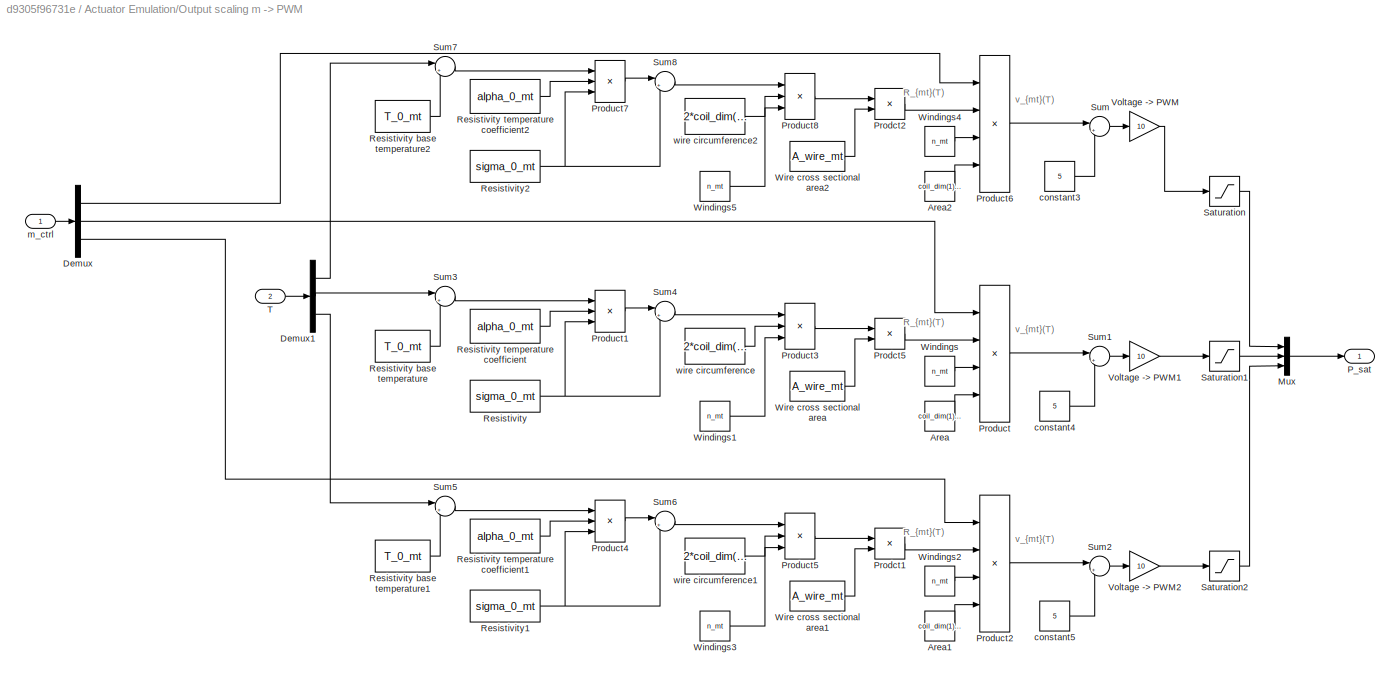
BLOCK [SubSystem] Actuator Emulation/Output scaling m -> PWM
BLOCK [Constant] Actuator Emulation/Output scaling m -> PWM/Area
  Value = coil_dim(1)*coil_dim(2)
BLOCK [Constant] Actuator Emulation/Output scaling m -> PWM/Area1
  Value = coil_dim(1)*coil_dim(2)
BLOCK [Constant] Actuator Emulation/Output scaling m -> PWM/Area2
  Value = coil_dim(1)*coil_dim(2)
BLOCK [Demux] Actuator Emulation/Output scaling m -> PWM/Demux
  Outputs = 3
BLOCK [Demux] Actuator Emulation/Output scaling m -> PWM/Demux1
  Outputs = 3
BLOCK [Mux] Actuator Emulation/Output scaling m -> PWM/Mux
  DisplayOption = bar
  Inputs = 3
BLOCK [Outport] Actuator Emulation/Output scaling m -> PWM/P_sat
  PortDimensions = 3
BLOCK [Product] Actuator Emulation/Output scaling m -> PWM/Prodct1
  Inputs = */
  RndMeth = Zero
BLOCK [Product] Actuator Emulation/Output scaling m -> PWM/Prodct2
  Inputs = */
  RndMeth = Zero
BLOCK [Product] Actuator Emulation/Output scaling m -> PWM/Prodct5
  Inputs = */
  RndMeth = Zero
BLOCK [Product] Actuator Emulation/Output scaling m -> PWM/Product
  Inputs = **//
  RndMeth = Zero
BLOCK [Product] Actuator Emulation/Output scaling m -> PWM/Product1
  Inputs = 3
  RndMeth = Zero
BLOCK [Product] Actuator Emulation/Output scaling m -> PWM/Product2
  Inputs = **//
  RndMeth = Zero
BLOCK [Product] Actuator Emulation/Output scaling m -> PWM/Product3
  Inputs = 3
  RndMeth = Zero
BLOCK [Product] Actuator Emulation/Output scaling m -> PWM/Product4
  Inputs = 3
  RndMeth = Zero
BLOCK [Product] Actuator Emulation/Output scaling m -> PWM/Product5
  Inputs = 3
  RndMeth = Zero
BLOCK [Product] Actuator Emulation/Output scaling m -> PWM/Product6
  Inputs = **//
  RndMeth = Zero
BLOCK [Product] Actuator Emulation/Output scaling m -> PWM/Product7
  Inputs = 3
  RndMeth = Zero
BLOCK [Product] Actuator Emulation/Output scaling m -> PWM/Product8
  Inputs = 3
  RndMeth = Zero
BLOCK [Constant] Actuator Emulation/Output scaling m -> PWM/Resistivity
  Value = sigma_0_mt
BLOCK [Constant] Actuator Emulation/Output scaling m -> PWM/Resistivity base temperature
  Value = T_0_mt
BLOCK [Constant] Actuator Emulation/Output scaling m -> PWM/Resistivity base temperature1
  Value = T_0_mt
BLOCK [Constant] Actuator Emulation/Output scaling m -> PWM/Resistivity base temperature2
  Value = T_0_mt
BLOCK [Constant] Actuator Emulation/Output scaling m -> PWM/Resistivity temperature coefficient
  Value = alpha_0_mt
BLOCK [Constant] Actuator Emulation/Output scaling m -> PWM/Resistivity temperature coefficient1
  Value = alpha_0_mt
BLOCK [Constant] Actuator Emulation/Output scaling m -> PWM/Resistivity temperature coefficient2
  Value = alpha_0_mt
BLOCK [Constant] Actuator Emulation/Output scaling m -> PWM/Resistivity1
  Value = sigma_0_mt
BLOCK [Constant] Actuator Emulation/Output scaling m -> PWM/Resistivity2
  Value = sigma_0_mt
BLOCK [Saturate] Actuator Emulation/Output scaling m -> PWM/Saturation
  LowerLimit = PWM_min
  UpperLimit = PWM_max
BLOCK [Saturate] Actuator Emulation/Output scaling m -> PWM/Saturation1
  LowerLimit = PWM_min
  UpperLimit = PWM_max
BLOCK [Saturate] Actuator Emulation/Output scaling m -> PWM/Saturation2
  LowerLimit = PWM_min
  UpperLimit = PWM_max
BLOCK [Sum] Actuator Emulation/Output scaling m -> PWM/Sum
  Inputs = |++
BLOCK [Sum] Actuator Emulation/Output scaling m -> PWM/Sum1
  Inputs = |++
BLOCK [Sum] Actuator Emulation/Output scaling m -> PWM/Sum2
  Inputs = |++
BLOCK [Sum] Actuator Emulation/Output scaling m -> PWM/Sum3
  Inputs = |+-
BLOCK [Sum] Actuator Emulation/Output scaling m -> PWM/Sum4
  Inputs = |++
BLOCK [Sum] Actuator Emulation/Output scaling m -> PWM/Sum5
  Inputs = |+-
BLOCK [Sum] Actuator Emulation/Output scaling m -> PWM/Sum6
  Inputs = |++
BLOCK [Sum] Actuator Emulation/Output scaling m -> PWM/Sum7
  Inputs = |+-
BLOCK [Sum] Actuator Emulation/Output scaling m -> PWM/Sum8
  Inputs = |++
BLOCK [Inport] Actuator Emulation/Output scaling m -> PWM/T
  Port = 2
BLOCK [Gain] Actuator Emulation/Output scaling m -> PWM/Voltage -> PWM
  Gain = 10
BLOCK [Gain] Actuator Emulation/Output scaling m -> PWM/Voltage -> PWM1
  Gain = 10
BLOCK [Gain] Actuator Emulation/Output scaling m -> PWM/Voltage -> PWM2
  Gain = 10
BLOCK [Constant] Actuator Emulation/Output scaling m -> PWM/Windings
  Value = n_mt
BLOCK [Constant] Actuator Emulation/Output scaling m -> PWM/Windings1
  Value = n_mt
BLOCK [Constant] Actuator Emulation/Output scaling m -> PWM/Windings2
  Value = n_mt
BLOCK [Constant] Actuator Emulation/Output scaling m -> PWM/Windings3
  Value = n_mt
BLOCK [Constant] Actuator Emulation/Output scaling m -> PWM/Windings4
  Value = n_mt
BLOCK [Constant] Actuator Emulation/Output scaling m -> PWM/Windings5
  Value = n_mt
BLOCK [Constant] Actuator Emulation/Output scaling m -> PWM/Wire cross sectional area
  Value = A_wire_mt
BLOCK [Constant] Actuator Emulation/Output scaling m -> PWM/Wire cross sectional area1
  Value = A_wire_mt
BLOCK [Constant] Actuator Emulation/Output scaling m -> PWM/Wire cross sectional area2
  Value = A_wire_mt
BLOCK [Constant] Actuator Emulation/Output scaling m -> PWM/constant3
  Value = 5
BLOCK [Constant] Actuator Emulation/Output scaling m -> PWM/constant4
  Value = 5
BLOCK [Constant] Actuator Emulation/Output scaling m -> PWM/constant5
  Value = 5
BLOCK [Inport] Actuator Emulation/Output scaling m -> PWM/m_ctrl
BLOCK [Constant] Actuator Emulation/Output scaling m -> PWM/wire circumference
  Value = 2*coil_dim(1)+2*coil_dim(2)
BLOCK [Constant] Actuator Emulation/Output scaling m -> PWM/wire circumference1
  Value = 2*coil_dim(1)+2*coil_dim(2)
BLOCK [Constant] Actuator Emulation/Output scaling m -> PWM/wire circumference2
  Value = 2*coil_dim(1)+2*coil_dim(2)
BLOCK [SubSystem] Actuator Emulation/Permanent Magnet
BLOCK [Inport] Actuator Emulation/Permanent Magnet/Attitude q(I->S)
BLOCK [Reference] Actuator Emulation/Permanent Magnet/Cross Product  REF=$bdroot/Math Utilities/Vector operations/Cross Product
  SourceBlock = $bdroot/Math Utilities/Vector operations/Cross Product
  SourceType = SubSystem
BLOCK [EnablePort] Actuator Emulation/Permanent Magnet/Enable
BLOCK [Constant] Actuator Emulation/Permanent Magnet/Magnetic dipole moment
  Value = [0,0,mag_moment]
BLOCK [Inport] Actuator Emulation/Permanent Magnet/Magnetic field B(I)
  Port = 2
BLOCK [Outport] Actuator Emulation/Permanent Magnet/N_mpmag(S)
BLOCK [SubSystem] Actuator Emulation/Permanent Magnet/Vector rotation by q
BLOCK [Constant] Actuator Emulation/Permanent Magnet/Vector rotation by q/Constant
  Value = 0
BLOCK [Demux] Actuator Emulation/Permanent Magnet/Vector rotation by q/Demux
  DisplayOption = none
  Outputs = 3
BLOCK [Demux] Actuator Emulation/Permanent Magnet/Vector rotation by q/Demux1
  DisplayOption = none
BLOCK [Mux] Actuator Emulation/Permanent Magnet/Vector rotation by q/Mux
  DisplayOption = bar
BLOCK [Mux] Actuator Emulation/Permanent Magnet/Vector rotation by q/Mux1
  DisplayOption = bar
  Inputs = 3
BLOCK [SubSystem] Actuator Emulation/Permanent Magnet/Vector rotation by q/Quaternion inverter
BLOCK [Demux] Actuator Emulation/Permanent Magnet/Vector rotation by q/Quaternion inverter/Demux
  DisplayOption = none
BLOCK [Demux] Actuator Emulation/Permanent Magnet/Vector rotation by q/Quaternion inverter/Demux1
  DisplayOption = none
  Outputs = 3
BLOCK [Gain] Actuator Emulation/Permanent Magnet/Vector rotation by q/Quaternion inverter/Gain
  Gain = -1
  NameLocation = top
  OutDataTypeStr = Inherit: Same as input
  ParamDataTypeStr = Inherit: Same as input
  SaturateOnIntegerOverflow = on
BLOCK [Mux] Actuator Emulation/Permanent Magnet/Vector rotation by q/Quaternion inverter/Mux
  DisplayOption = bar
BLOCK [Mux] Actuator Emulation/Permanent Magnet/Vector rotation by q/Quaternion inverter/Mux1
  DisplayOption = bar
  Inputs = 3
BLOCK [Inport] Actuator Emulation/Permanent Magnet/Vector rotation by q/Quaternion inverter/q
BLOCK [Outport] Actuator Emulation/Permanent Magnet/Vector rotation by q/Quaternion inverter/q^-1
BLOCK [S-Function] Actuator Emulation/Permanent Magnet/Vector rotation by q/Quaternion mulitiplication
  EnableBusSupport = off
  FunctionName = qmul
  SFcnIsStateOwnerBlock = off
  SFunctionDeploymentMode = off
BLOCK [S-Function] Actuator Emulation/Permanent Magnet/Vector rotation by q/Quaternion mulitiplication1
  EnableBusSupport = off
  FunctionName = qmul
  SFcnIsStateOwnerBlock = off
  SFunctionDeploymentMode = off
BLOCK [Terminator] Actuator Emulation/Permanent Magnet/Vector rotation by q/Terminator
BLOCK [Inport] Actuator Emulation/Permanent Magnet/Vector rotation by q/V
  Port = 2
BLOCK [Inport] Actuator Emulation/Permanent Magnet/Vector rotation by q/q
BLOCK [Outport] Actuator Emulation/Permanent Magnet/Vector rotation by q/q'Vq
BLOCK [SubSystem] Actuator Emulation/Tetrahedron Reaction Wheels
BLOCK [Inport] Actuator Emulation/Tetrahedron Reaction Wheels/Angular velocity W(S)
  Port = 2
  PortDimensions = [3 1]
BLOCK [Reference] Actuator Emulation/Tetrahedron Reaction Wheels/BLDC1  REF=$bdroot/Actuator Emulation/BLDC no load
  SourceBlock = $bdroot/Actuator Emulation/BLDC no load
BLOCK [Reference] Actuator Emulation/Tetrahedron Reaction Wheels/BLDC2  REF=$bdroot/Actuator Emulation/BLDC no load
  SourceBlock = $bdroot/Actuator Emulation/BLDC no load
BLOCK [Reference] Actuator Emulation/Tetrahedron Reaction Wheels/BLDC3  REF=$bdroot/Actuator Emulation/BLDC no load
  SourceBlock = $bdroot/Actuator Emulation/BLDC no load
BLOCK [Reference] Actuator Emulation/Tetrahedron Reaction Wheels/BLDC4  REF=$bdroot/Actuator Emulation/BLDC no load
  SourceBlock = $bdroot/Actuator Emulation/BLDC no load
BLOCK [Demux] Actuator Emulation/Tetrahedron Reaction Wheels/Demux
BLOCK [Constant] Actuator Emulation/Tetrahedron Reaction Wheels/From Body to Tetrahedron
  Value = q_S_Tetra
  VectorParams1D = off
BLOCK [Gain] Actuator Emulation/Tetrahedron Reaction Wheels/Gain
  Gain = -1
BLOCK [Mux] Actuator Emulation/Tetrahedron Reaction Wheels/Mux
  DisplayOption = bar
BLOCK [Mux] Actuator Emulation/Tetrahedron Reaction Wheels/Mux2
  DisplayOption = bar
BLOCK [Reference] Actuator Emulation/Tetrahedron Reaction Wheels/Quaternion inverter  REF=$bdroot/Math Utilities/Quaternion operations/Quaternion inverter
  SourceBlock = $bdroot/Math Utilities/Quaternion operations/Quaternion inverter
  SourceType = SubSystem
BLOCK [Inport] Actuator Emulation/Tetrahedron Reaction Wheels/RW Voltage 4x1
  PortDimensions = [4 1]
BLOCK [Reference] Actuator Emulation/Tetrahedron Reaction Wheels/Tetra -> S  REF=$bdroot/Math Utilities/Quaternion operations/Vector rotation by q
  SourceBlock = $bdroot/Math Utilities/Quaternion operations/Vector rotation by q
  SourceType = SubSystem
BLOCK [SubSystem] Actuator Emulation/Tetrahedron Reaction Wheels/Tetrahedron configuration
BLOCK [Constant] Actuator Emulation/Tetrahedron Reaction Wheels/Tetrahedron configuration/Constant
  Value = J_rw
BLOCK [Constant] Actuator Emulation/Tetrahedron Reaction Wheels/Tetrahedron configuration/Constant1
  Value = enable_coriolis
BLOCK [SubSystem] Actuator Emulation/Tetrahedron Reaction Wheels/Tetrahedron configuration/Torque calculation
  ErrorFcn = Stateflow.Translate.translate
  PermitHierarchicalResolution = ExplicitOnly
  SFBlockType = MATLAB Function
  TreatAsAtomicUnit = on
BLOCK [Demux] Actuator Emulation/Tetrahedron Reaction Wheels/Tetrahedron configuration/Torque calculation/ Demux 
  Outputs = 1
BLOCK [S-Function] Actuator Emulation/Tetrahedron Reaction Wheels/Tetrahedron configuration/Torque calculation/ SFunction 
  EnableBusSupport = off
  FunctionName = sf_sfun
  PortCounts = [5 2]
  SFcnIsStateOwnerBlock = off
  SFunctionDeploymentMode = off
  Tag = Stateflow S-Function 2
BLOCK [Terminator] Actuator Emulation/Tetrahedron Reaction Wheels/Tetrahedron configuration/Torque calculation/ Terminator 
BLOCK [Inport] Actuator Emulation/Tetrahedron Reaction Wheels/Tetrahedron configuration/Torque calculation/Jrw
  Port = 4
BLOCK [Inport] Actuator Emulation/Tetrahedron Reaction Wheels/Tetrahedron configuration/Torque calculation/coriolis_on
  Port = 5
BLOCK [Inport] Actuator Emulation/Tetrahedron Reaction Wheels/Tetrahedron configuration/Torque calculation/omega_m
  Port = 2
BLOCK [Inport] Actuator Emulation/Tetrahedron Reaction Wheels/Tetrahedron configuration/Torque calculation/omega_tetra
BLOCK [Inport] Actuator Emulation/Tetrahedron Reaction Wheels/Tetrahedron configuration/Torque calculation/tau_rw
  Port = 3
BLOCK [Outport] Actuator Emulation/Tetrahedron Reaction Wheels/Tetrahedron configuration/Torque calculation/tau_th
BLOCK [Inport] Actuator Emulation/Tetrahedron Reaction Wheels/Tetrahedron configuration/omega_rw
  Port = 2
BLOCK [Inport] Actuator Emulation/Tetrahedron Reaction Wheels/Tetrahedron configuration/omega_tetra
BLOCK [Inport] Actuator Emulation/Tetrahedron Reaction Wheels/Tetrahedron configuration/tau_rw
  Port = 3
  PortDimensions = [4 1]
BLOCK [Outport] Actuator Emulation/Tetrahedron Reaction Wheels/Tetrahedron configuration/tau_tetra(T)
  PortDimensions = [3 1]
BLOCK [Reference] Actuator Emulation/Tetrahedron Reaction Wheels/Vector rotation by q  REF=$bdroot/Math Utilities/Quaternion operations/Vector rotation by q
  SourceBlock = $bdroot/Math Utilities/Quaternion operations/Vector rotation by q
  SourceType = SubSystem
BLOCK [Constant] Actuator Emulation/Tetrahedron Reaction Wheels/b to tetra
  Value = q_S_Tetra
BLOCK [Outport] Actuator Emulation/Tetrahedron Reaction Wheels/omega_rw
  Port = 2
BLOCK [Outport] Actuator Emulation/Tetrahedron Reaction Wheels/tau_tetra (S)
BLOCK [SubSystem] Disturbances
  ShowPortLabels = none
BLOCK [SubSystem] Disturbances/Atmospheric
BLOCK [Constant] Disturbances/Atmospheric/C_D
  Value = Cd
BLOCK [Reference] Disturbances/Atmospheric/Cross Product  REF=$bdroot/Math Utilities/Vector operations/Cross Product
  SourceBlock = $bdroot/Math Utilities/Vector operations/Cross Product
  SourceType = SubSystem
BLOCK [Constant] Disturbances/Atmospheric/Density
  Value = rho
BLOCK [Constant] Disturbances/Atmospheric/Dimensions
  Value = Dim
BLOCK [EnablePort] Disturbances/Atmospheric/Enable
BLOCK [Reference] Disturbances/Atmospheric/Exposed area  REF=$bdroot/Other Model Utilities/Exposed area
  SourceBlock = $bdroot/Other Model Utilities/Exposed area
BLOCK [Outport] Disturbances/Atmospheric/F_atm(I)
  Port = 2
BLOCK [Gain] Disturbances/Atmospheric/Gain
  Gain = -1/2
  OutDataTypeStr = Inherit: Same as input
  ParamDataTypeStr = Inherit: Same as input
  SaturateOnIntegerOverflow = on
BLOCK [Gain] Disturbances/Atmospheric/Gain1
  Gain = 1/2
  OutDataTypeStr = Inherit: Same as input
  ParamDataTypeStr = Inherit: Same as input
  SaturateOnIntegerOverflow = on
BLOCK [Outport] Disturbances/Atmospheric/N_atm(S)
BLOCK [Product] Disturbances/Atmospheric/Product1
  OutDataTypeStr = Inherit: Same as first input
  SaturateOnIntegerOverflow = on
BLOCK [Product] Disturbances/Atmospheric/Product2
  OutDataTypeStr = Inherit: Same as first input
  SaturateOnIntegerOverflow = on
BLOCK [Product] Disturbances/Atmospheric/Product3
  OutDataTypeStr = Inherit: Same as first input
  SaturateOnIntegerOverflow = on
BLOCK [Product] Disturbances/Atmospheric/Product4
  OutDataTypeStr = Inherit: Same as first input
  SaturateOnIntegerOverflow = on
BLOCK [Inport] Disturbances/Atmospheric/R_com(S)
  Port = 3
BLOCK [Sum] Disturbances/Atmospheric/Sum
  Inputs = |-+
BLOCK [Reference] Disturbances/Atmospheric/To unit vector  REF=$bdroot/Math Utilities/Vector operations/To unit vector
  SourceBlock = $bdroot/Math Utilities/Vector operations/To unit vector
  SourceType = SubSystem
BLOCK [Inport] Disturbances/Atmospheric/V_sc(I)
  Port = 2
BLOCK [Reference] Disturbances/Atmospheric/Vector rotation by q  REF=$bdroot/Math Utilities/Quaternion operations/Vector rotation by q
  SourceBlock = $bdroot/Math Utilities/Quaternion operations/Vector rotation by q
  SourceType = SubSystem
BLOCK [Math] Disturbances/Atmospheric/math operation
  Operator = magnitude^2
  SignedPower = on
BLOCK [Inport] Disturbances/Atmospheric/q(I->S)
BLOCK [SubSystem] Disturbances/Enviroment Disturbance2
BLOCK [Reference] Disturbances/Enviroment Disturbance2/Atmospheric drag  REF=$bdroot/Disturbances/Atmospheric
  SourceBlock = $bdroot/Disturbances/Atmospheric
BLOCK [Inport] Disturbances/Enviroment Disturbance2/Attitude q(I -> S)
BLOCK [Constant] Disturbances/Enviroment Disturbance2/Constant1
  NameLocation = left
  Value = enable_atmospheric_dist
BLOCK [Constant] Disturbances/Enviroment Disturbance2/Constant2
  NameLocation = left
  Value = enable_gravity_dist
BLOCK [Constant] Disturbances/Enviroment Disturbance2/Constant3
  NameLocation = left
  Value = enable_mag_dist
BLOCK [EnablePort] Disturbances/Enviroment Disturbance2/Enable
BLOCK [Outport] Disturbances/Enviroment Disturbance2/F_dist(S)
  Port = 2
BLOCK [Reference] Disturbances/Enviroment Disturbance2/Gravity gradient  REF=$bdroot/Disturbances/Gravity
  SourceBlock = $bdroot/Disturbances/Gravity
BLOCK [Inport] Disturbances/Enviroment Disturbance2/Inertia I_f(C)
  NameLocation = top
  Port = 6
BLOCK [Inport] Disturbances/Enviroment Disturbance2/Mag_field
  Port = 10
BLOCK [Reference] Disturbances/Enviroment Disturbance2/Magnetic Residual Disturbance  REF=$bdroot/Disturbances/Magnetic Residual Disturbance
  SourceBlock = $bdroot/Disturbances/Magnetic Residual Disturbance
BLOCK [Inport] Disturbances/Enviroment Disturbance2/Mass of Spacecraft
  Port = 7
BLOCK [Inport] Disturbances/Enviroment Disturbance2/Moon positon R_m(I)
  NameLocation = top
  Port = 5
BLOCK [Outport] Disturbances/Enviroment Disturbance2/N_dist(S)
BLOCK [Inport] Disturbances/Enviroment Disturbance2/Orbit position R_sc(I)
  NameLocation = top
  Port = 3
BLOCK [Inport] Disturbances/Enviroment Disturbance2/Orbit velocity V_sc(I)
  Port = 2
BLOCK [Reference] Disturbances/Enviroment Disturbance2/Quaternion inverter  REF=$bdroot/Math Utilities/Quaternion operations/Quaternion inverter
  SourceBlock = $bdroot/Math Utilities/Quaternion operations/Quaternion inverter
  SourceType = SubSystem
BLOCK [Inport] Disturbances/Enviroment Disturbance2/R_CoM(S)
  Port = 4
BLOCK [Sum] Disturbances/Enviroment Disturbance2/Sum
  IconShape = rectangular
  Inputs = +++
BLOCK [Sum] Disturbances/Enviroment Disturbance2/Sum1
  IconShape = rectangular
BLOCK [Inport] Disturbances/Enviroment Disturbance2/Sun position R_s(I)
  NameLocation = top
  Port = 9
BLOCK [Inport] Disturbances/Enviroment Disturbance2/q(S->C)
  NameLocation = top
  Port = 8
BLOCK [SubSystem] Disturbances/Environment Disturbances
BLOCK [Reference] Disturbances/Environment Disturbances/Atmospheric  REF=$bdroot/Disturbances/Atmospheric
  SourceBlock = $bdroot/Disturbances/Atmospheric
BLOCK [Inport] Disturbances/Environment Disturbances/Attitude q(I -> S)
  Port = 5
BLOCK [Constant] Disturbances/Environment Disturbances/Constant
  Value = enable_rad_dist
BLOCK [Constant] Disturbances/Environment Disturbances/Constant1
  Value = enable_atmospheric_dist
BLOCK [Constant] Disturbances/Environment Disturbances/Constant2
  Value = enable_gravity_dist
BLOCK [Constant] Disturbances/Environment Disturbances/Constant3
  Value = enable_mag_residual_dist
BLOCK [Outport] Disturbances/Environment Disturbances/Disturbance Force F_dist(I)
  Port = 2
BLOCK [Outport] Disturbances/Environment Disturbances/Disturbance tourque N_dist(S)
BLOCK [EnablePort] Disturbances/Environment Disturbances/Enable
BLOCK [Reference] Disturbances/Environment Disturbances/Gravity  REF=$bdroot/Disturbances/Gravity
  SourceBlock = $bdroot/Disturbances/Gravity
BLOCK [Inport] Disturbances/Environment Disturbances/Inertia I_f(C)
  NameLocation = top
  Port = 3
BLOCK [Reference] Disturbances/Environment Disturbances/Magnetic Residual Disturbance  REF=$bdroot/Disturbances/Magnetic Residual Disturbance
  SourceBlock = $bdroot/Disturbances/Magnetic Residual Disturbance
BLOCK [Inport] Disturbances/Environment Disturbances/Magnetic field B(I)
  Port = 11
BLOCK [Inport] Disturbances/Environment Disturbances/Mass of Spacecraft
  Port = 8
BLOCK [Inport] Disturbances/Environment Disturbances/Moon positon R_m(I)
  NameLocation = top
BLOCK [Inport] Disturbances/Environment Disturbances/Orbit position R_sc(I)
  Port = 4
BLOCK [Inport] Disturbances/Environment Disturbances/Orbit velocity V_sc(I)
  Port = 6
BLOCK [Reference] Disturbances/Environment Disturbances/Quaternion inverter  REF=$bdroot/Math Utilities/Quaternion operations/Quaternion inverter
  SourceBlock = $bdroot/Math Utilities/Quaternion operations/Quaternion inverter
  SourceType = SubSystem
BLOCK [Inport] Disturbances/Environment Disturbances/R_CoM(S)
  Port = 7
BLOCK [Reference] Disturbances/Environment Disturbances/Radiation (I)  REF=$bdroot/Disturbances/Radiation (I)
  SourceBlock = $bdroot/Disturbances/Radiation (I)
BLOCK [Sum] Disturbances/Environment Disturbances/Sum1
  IconShape = rectangular
  Inputs = ++++
  SaturateOnIntegerOverflow = on
BLOCK [Sum] Disturbances/Environment Disturbances/Sum2
  IconShape = rectangular
  Inputs = +++
  SaturateOnIntegerOverflow = on
BLOCK [Inport] Disturbances/Environment Disturbances/Sun position R_s(I)
  NameLocation = top
  Port = 2
BLOCK [Inport] Disturbances/Environment Disturbances/eclipse
  Port = 10
BLOCK [Inport] Disturbances/Environment Disturbances/q(S->C)
  NameLocation = top
  Port = 9
BLOCK [SubSystem] Disturbances/Gravity
BLOCK [SubSystem] Disturbances/Gravity Gradient Torque
BLOCK [SubSystem] Disturbances/Gravity Gradient Torque/ 
BLOCK [Reference] Disturbances/Gravity Gradient Torque/ /Quaternion inverter  REF=$bdroot/Math Utilities/Quaternion operations/Quaternion inverter
  SourceBlock = $bdroot/Math Utilities/Quaternion operations/Quaternion inverter
  SourceType = SubSystem
BLOCK [Outport] Disturbances/Gravity Gradient Torque/ /R_sc(C)
BLOCK [Inport] Disturbances/Gravity Gradient Torque/ /R_sc(I)
  Port = 3
BLOCK [Reference] Disturbances/Gravity Gradient Torque/ /Rotation of q1 by q2  REF=$bdroot/Math Utilities/Quaternion operations/Rotation of q1 by q2
  SourceBlock = $bdroot/Math Utilities/Quaternion operations/Rotation of q1 by q2
  SourceType = SubSystem
BLOCK [Reference] Disturbances/Gravity Gradient Torque/ /To unit vector  REF=$bdroot/Math Utilities/Vector operations/To unit vector
  SourceBlock = $bdroot/Math Utilities/Vector operations/To unit vector
  SourceType = SubSystem
BLOCK [Reference] Disturbances/Gravity Gradient Torque/ /Vector rotation by q  REF=$bdroot/Math Utilities/Quaternion operations/Vector rotation by q
  SourceBlock = $bdroot/Math Utilities/Quaternion operations/Vector rotation by q
  SourceType = SubSystem
BLOCK [Inport] Disturbances/Gravity Gradient Torque/ /q(C->SC)
BLOCK [Inport] Disturbances/Gravity Gradient Torque/ /q(I -> SC)
  Port = 2
BLOCK [Gain] Disturbances/Gravity Gradient Torque/3*GM
  Gain = 3*G*M_earth
  OutDataTypeStr = Inherit: Same as input
  ParamDataTypeStr = Inherit: Same as input
  SaturateOnIntegerOverflow = on
BLOCK [Constant] Disturbances/Gravity Gradient Torque/Constant
  Value = 3
BLOCK [Constant] Disturbances/Gravity Gradient Torque/Constant1
  Value = [1 0 0;0 1 0;0 0 1]
BLOCK [Constant] Disturbances/Gravity Gradient Torque/Constant2
  Value = [1 1 1]
  VectorParams1D = off
BLOCK [Reference] Disturbances/Gravity Gradient Torque/Cross Product  REF=$bdroot/Math Utilities/Vector operations/Cross Product
  SourceBlock = $bdroot/Math Utilities/Vector operations/Cross Product
  SourceType = SubSystem
BLOCK [DotProduct] Disturbances/Gravity Gradient Torque/Dot roduct
  OutDataTypeStr = Inherit: Inherit via internal rule
BLOCK [EnablePort] Disturbances/Gravity Gradient Torque/Enable
BLOCK [Outport] Disturbances/Gravity Gradient Torque/F_e(I)
  Port = 2
BLOCK [Constant] Disturbances/Gravity Gradient Torque/G*M_m1
  Value = G*M_earth
BLOCK [Gain] Disturbances/Gravity Gradient Torque/Gain1
  Gain = -1
  OutDataTypeStr = Inherit: Same as input
  ParamDataTypeStr = Inherit: Same as input
  SaturateOnIntegerOverflow = on
BLOCK [Inport] Disturbances/Gravity Gradient Torque/I(C)
  Port = 2
BLOCK [Inport] Disturbances/Gravity Gradient Torque/M_sat1
  Port = 5
BLOCK [Math] Disturbances/Gravity Gradient Torque/Math Function3
  Operator = reciprocal
  SignedPower = on
BLOCK [Math] Disturbances/Gravity Gradient Torque/Math Function4
  Operator = magnitude^2
  SignedPower = on
BLOCK [Outport] Disturbances/Gravity Gradient Torque/N_gr(S)
BLOCK [Product] Disturbances/Gravity Gradient Torque/Product
  Multiplication = Matrix(*)
  OutDataTypeStr = Inherit: Same as first input
  SaturateOnIntegerOverflow = on
BLOCK [Product] Disturbances/Gravity Gradient Torque/Product1
  OutDataTypeStr = Inherit: Same as first input
  SaturateOnIntegerOverflow = on
BLOCK [Product] Disturbances/Gravity Gradient Torque/Product2
  Multiplication = Matrix(*)
  OutDataTypeStr = Inherit: Same as first input
  SaturateOnIntegerOverflow = on
BLOCK [Product] Disturbances/Gravity Gradient Torque/Product3
  OutDataTypeStr = Inherit: Same as first input
  SaturateOnIntegerOverflow = on
BLOCK [Product] Disturbances/Gravity Gradient Torque/Product7
  OutDataTypeStr = Inherit: Same as first input
  SaturateOnIntegerOverflow = on
BLOCK [Product] Disturbances/Gravity Gradient Torque/Product8
  OutDataTypeStr = Inherit: Same as first input
  SaturateOnIntegerOverflow = on
BLOCK [Product] Disturbances/Gravity Gradient Torque/Product9
  OutDataTypeStr = Inherit: Same as first input
  SaturateOnIntegerOverflow = on
BLOCK [Math] Disturbances/Gravity Gradient Torque/R
  Operator = pow
  SignedPower = on
BLOCK [Inport] Disturbances/Gravity Gradient Torque/R_sc(I)
BLOCK [Reference] Disturbances/Gravity Gradient Torque/To unit vector  REF=$bdroot/Math Utilities/Vector operations/To unit vector
  SourceBlock = $bdroot/Math Utilities/Vector operations/To unit vector
  SourceType = SubSystem
BLOCK [Reference] Disturbances/Gravity Gradient Torque/To unit vector2  REF=$bdroot/Math Utilities/Vector operations/To unit vector
  SourceBlock = $bdroot/Math Utilities/Vector operations/To unit vector
  SourceType = SubSystem
BLOCK [Reference] Disturbances/Gravity Gradient Torque/Vector rotation by q  REF=$bdroot/Math Utilities/Quaternion operations/Vector rotation by q
  SourceBlock = $bdroot/Math Utilities/Quaternion operations/Vector rotation by q
  SourceType = SubSystem
BLOCK [Math] Disturbances/Gravity Gradient Torque/inv
  Operator = reciprocal
  SignedPower = on
BLOCK [Math] Disturbances/Gravity Gradient Torque/inv1
  Operator = sqrt
  SignedPower = on
BLOCK [Inport] Disturbances/Gravity Gradient Torque/q(C->S)
  Port = 3
BLOCK [Inport] Disturbances/Gravity Gradient Torque/q(I->S)
  Port = 4
BLOCK [SubSystem] Disturbances/Gravity Moon
BLOCK [Reference] Disturbances/Gravity Moon/   REF=$bdroot/Disturbances/Gravity Gradient Torque/

  SourceBlock = $bdroot/Disturbances/Gravity Gradient Torque/
  SourceType = SubSystem
BLOCK [Gain] Disturbances/Gravity Moon/3*GM
  Gain = 3*G*M_moon
  OutDataTypeStr = Inherit: Same as input
  ParamDataTypeStr = Inherit: Same as input
  SaturateOnIntegerOverflow = on
BLOCK [Constant] Disturbances/Gravity Moon/Constant
  Value = 3
BLOCK [Constant] Disturbances/Gravity Moon/Constant1
  Value = [1 0 0;0 1 0;0 0 1]
BLOCK [Constant] Disturbances/Gravity Moon/Constant2
  Value = [1 1 1]
  VectorParams1D = off
BLOCK [Reference] Disturbances/Gravity Moon/Cross Product  REF=$bdroot/Math Utilities/Vector operations/Cross Product
  SourceBlock = $bdroot/Math Utilities/Vector operations/Cross Product
  SourceType = SubSystem
BLOCK [DotProduct] Disturbances/Gravity Moon/Dot roduct
  OutDataTypeStr = Inherit: Inherit via internal rule
BLOCK [EnablePort] Disturbances/Gravity Moon/Enable
BLOCK [Outport] Disturbances/Gravity Moon/F_m(I)
BLOCK [Constant] Disturbances/Gravity Moon/G*M_m
  Value = G*M_moon
BLOCK [Gain] Disturbances/Gravity Moon/Gain
  Gain = -1
  OutDataTypeStr = Inherit: Same as input
  ParamDataTypeStr = Inherit: Same as input
  SaturateOnIntegerOverflow = on
BLOCK [Inport] Disturbances/Gravity Moon/I(C)
  Port = 2
BLOCK [Inport] Disturbances/Gravity Moon/M_sat
BLOCK [Math] Disturbances/Gravity Moon/Math Function1
  Operator = reciprocal
  SignedPower = on
BLOCK [Math] Disturbances/Gravity Moon/Math Function2
  Operator = magnitude^2
  SignedPower = on
BLOCK [Outport] Disturbances/Gravity Moon/N_gmoon(S)
  Port = 2
BLOCK [Product] Disturbances/Gravity Moon/Product
  OutDataTypeStr = Inherit: Same as first input
  SaturateOnIntegerOverflow = on
BLOCK [Product] Disturbances/Gravity Moon/Product1
  OutDataTypeStr = Inherit: Same as first input
  SaturateOnIntegerOverflow = on
BLOCK [Product] Disturbances/Gravity Moon/Product2
  OutDataTypeStr = Inherit: Same as first input
  SaturateOnIntegerOverflow = on
BLOCK [Product] Disturbances/Gravity Moon/Product3
  Multiplication = Matrix(*)
  OutDataTypeStr = Inherit: Same as first input
  SaturateOnIntegerOverflow = on
BLOCK [Product] Disturbances/Gravity Moon/Product4
  OutDataTypeStr = Inherit: Same as first input
  SaturateOnIntegerOverflow = on
BLOCK [Product] Disturbances/Gravity Moon/Product5
  Multiplication = Matrix(*)
  OutDataTypeStr = Inherit: Same as first input
  SaturateOnIntegerOverflow = on
BLOCK [Product] Disturbances/Gravity Moon/Product6
  OutDataTypeStr = Inherit: Same as first input
  SaturateOnIntegerOverflow = on
BLOCK [Math] Disturbances/Gravity Moon/R
  Operator = pow
  SignedPower = on
BLOCK [Inport] Disturbances/Gravity Moon/R_m_sat(I)
  Port = 5
BLOCK [Reference] Disturbances/Gravity Moon/To unit vector  REF=$bdroot/Math Utilities/Vector operations/To unit vector
  SourceBlock = $bdroot/Math Utilities/Vector operations/To unit vector
  SourceType = SubSystem
BLOCK [Reference] Disturbances/Gravity Moon/To unit vector1  REF=$bdroot/Math Utilities/Vector operations/To unit vector
  SourceBlock = $bdroot/Math Utilities/Vector operations/To unit vector
  SourceType = SubSystem
BLOCK [Reference] Disturbances/Gravity Moon/Vector rotation by q  REF=$bdroot/Math Utilities/Quaternion operations/Vector rotation by q
  SourceBlock = $bdroot/Math Utilities/Quaternion operations/Vector rotation by q
  SourceType = SubSystem
BLOCK [Math] Disturbances/Gravity Moon/inv
  Operator = reciprocal
  SignedPower = on
BLOCK [Math] Disturbances/Gravity Moon/inv1
  Operator = sqrt
  SignedPower = on
BLOCK [Inport] Disturbances/Gravity Moon/q(C->S)
  Port = 3
BLOCK [Inport] Disturbances/Gravity Moon/q(I->S)
  Port = 4
BLOCK [SubSystem] Disturbances/Gravity Sun
BLOCK [Reference] Disturbances/Gravity Sun/   REF=$bdroot/Disturbances/Gravity Gradient Torque/

  SourceBlock = $bdroot/Disturbances/Gravity Gradient Torque/
  SourceType = SubSystem
BLOCK [Gain] Disturbances/Gravity Sun/3*GM
  Gain = 3*G*M_sun
  OutDataTypeStr = Inherit: Same as input
  ParamDataTypeStr = Inherit: Same as input
  SaturateOnIntegerOverflow = on
BLOCK [Constant] Disturbances/Gravity Sun/Constant
  Value = 3
BLOCK [Constant] Disturbances/Gravity Sun/Constant1
  Value = [1 0 0;0 1 0;0 0 1]
BLOCK [Constant] Disturbances/Gravity Sun/Constant2
  Value = [1 1 1]
  VectorParams1D = off
BLOCK [Reference] Disturbances/Gravity Sun/Cross Product  REF=$bdroot/Math Utilities/Vector operations/Cross Product
  SourceBlock = $bdroot/Math Utilities/Vector operations/Cross Product
  SourceType = SubSystem
BLOCK [DotProduct] Disturbances/Gravity Sun/Dot roduct
  OutDataTypeStr = Inherit: Inherit via internal rule
BLOCK [EnablePort] Disturbances/Gravity Sun/Enable
BLOCK [Outport] Disturbances/Gravity Sun/F_m(I)
BLOCK [Constant] Disturbances/Gravity Sun/G*M_m
  Value = G*M_sun
BLOCK [Gain] Disturbances/Gravity Sun/Gain
  Gain = -1
  OutDataTypeStr = Inherit: Same as input
  ParamDataTypeStr = Inherit: Same as input
  SaturateOnIntegerOverflow = on
BLOCK [Inport] Disturbances/Gravity Sun/I(C)
  Port = 2
BLOCK [Inport] Disturbances/Gravity Sun/M_sat
BLOCK [Math] Disturbances/Gravity Sun/Math Function1
  Operator = reciprocal
  SignedPower = on
BLOCK [Math] Disturbances/Gravity Sun/Math Function2
  Operator = magnitude^2
  SignedPower = on
BLOCK [Outport] Disturbances/Gravity Sun/N_gr(S)
  Port = 2
BLOCK [Product] Disturbances/Gravity Sun/Product
  OutDataTypeStr = Inherit: Same as first input
  SaturateOnIntegerOverflow = on
BLOCK [Product] Disturbances/Gravity Sun/Product1
  OutDataTypeStr = Inherit: Same as first input
  SaturateOnIntegerOverflow = on
BLOCK [Product] Disturbances/Gravity Sun/Product2
  OutDataTypeStr = Inherit: Same as first input
  SaturateOnIntegerOverflow = on
BLOCK [Product] Disturbances/Gravity Sun/Product3
  Multiplication = Matrix(*)
  OutDataTypeStr = Inherit: Same as first input
  SaturateOnIntegerOverflow = on
BLOCK [Product] Disturbances/Gravity Sun/Product4
  OutDataTypeStr = Inherit: Same as first input
  SaturateOnIntegerOverflow = on
BLOCK [Product] Disturbances/Gravity Sun/Product5
  Multiplication = Matrix(*)
  OutDataTypeStr = Inherit: Same as first input
  SaturateOnIntegerOverflow = on
BLOCK [Product] Disturbances/Gravity Sun/Product6
  OutDataTypeStr = Inherit: Same as first input
  SaturateOnIntegerOverflow = on
BLOCK [Math] Disturbances/Gravity Sun/R
  Operator = pow
  SignedPower = on
BLOCK [Inport] Disturbances/Gravity Sun/R_s_sat(I)
  Port = 5
BLOCK [Reference] Disturbances/Gravity Sun/To unit vector  REF=$bdroot/Math Utilities/Vector operations/To unit vector
  SourceBlock = $bdroot/Math Utilities/Vector operations/To unit vector
  SourceType = SubSystem
BLOCK [Reference] Disturbances/Gravity Sun/To unit vector1  REF=$bdroot/Math Utilities/Vector operations/To unit vector
  SourceBlock = $bdroot/Math Utilities/Vector operations/To unit vector
  SourceType = SubSystem
BLOCK [Reference] Disturbances/Gravity Sun/Vector rotation by q  REF=$bdroot/Math Utilities/Quaternion operations/Vector rotation by q
  SourceBlock = $bdroot/Math Utilities/Quaternion operations/Vector rotation by q
  SourceType = SubSystem
BLOCK [Math] Disturbances/Gravity Sun/inv
  Operator = reciprocal
  SignedPower = on
BLOCK [Math] Disturbances/Gravity Sun/inv1
  Operator = sqrt
  SignedPower = on
BLOCK [Inport] Disturbances/Gravity Sun/q(C->S)
  Port = 3
BLOCK [Inport] Disturbances/Gravity Sun/q(I->S)
  Port = 4
BLOCK [Constant] Disturbances/Gravity/Constant
  Value = enable_moon_G
BLOCK [Constant] Disturbances/Gravity/Constant1
  NameLocation = top
  Value = enable_sun_G
BLOCK [Constant] Disturbances/Gravity/Constant2
  NameLocation = top
  Value = enable_zharm_earth
BLOCK [Constant] Disturbances/Gravity/Constant3
  NameLocation = top
  Value = enable_gravity_torque
BLOCK [EnablePort] Disturbances/Gravity/Enable
BLOCK [Outport] Disturbances/Gravity/F_gr(I)
  Port = 2
BLOCK [Reference] Disturbances/Gravity/Gravity Gradient Torque  REF=$bdroot/Disturbances/Gravity Gradient Torque
  SourceBlock = $bdroot/Disturbances/Gravity Gradient Torque
BLOCK [Reference] Disturbances/Gravity/Gravity Moon  REF=$bdroot/Disturbances/Gravity Moon
  SourceBlock = $bdroot/Disturbances/Gravity Moon
BLOCK [Reference] Disturbances/Gravity/Gravity Sun  REF=$bdroot/Disturbances/Gravity Sun
  SourceBlock = $bdroot/Disturbances/Gravity Sun
BLOCK [Inport] Disturbances/Gravity/I(C)
  Port = 4
BLOCK [Inport] Disturbances/Gravity/M_sat
  Port = 7
BLOCK [Outport] Disturbances/Gravity/N_gr(S)
BLOCK [Inport] Disturbances/Gravity/R_m(I)
BLOCK [Inport] Disturbances/Gravity/R_s(I)
  Port = 2
BLOCK [Inport] Disturbances/Gravity/R_sc(I)
  Port = 3
BLOCK [Sum] Disturbances/Gravity/Sum
  IconShape = rectangular
  Inputs = ++++
  SaturateOnIntegerOverflow = on
BLOCK [Sum] Disturbances/Gravity/Sum1
  Inputs = |+-
  SaturateOnIntegerOverflow = on
BLOCK [Sum] Disturbances/Gravity/Sum2
  Inputs = |+-
  SaturateOnIntegerOverflow = on
BLOCK [Sum] Disturbances/Gravity/Sum3
  IconShape = rectangular
  Inputs = ++++
  SaturateOnIntegerOverflow = on
BLOCK [Reference] Disturbances/Gravity/Zonal Harmonics Earth  REF=$bdroot/Disturbances/Zonal Harmonics
 Earth
  SourceBlock = $bdroot/Disturbances/Zonal Harmonics\n Earth
  SourceType = SubSystem
BLOCK [Inport] Disturbances/Gravity/q(C->S)
  Port = 6
BLOCK [Inport] Disturbances/Gravity/q(I -> S)
  Port = 5
BLOCK [SubSystem] Disturbances/Magnetic Residual Disturbance
BLOCK [Inport] Disturbances/Magnetic Residual Disturbance/Attitude q(I->S)
BLOCK [Reference] Disturbances/Magnetic Residual Disturbance/Cross Product  REF=$bdroot/Math Utilities/Vector operations/Cross Product
  SourceBlock = $bdroot/Math Utilities/Vector operations/Cross Product
  SourceType = SubSystem
BLOCK [EnablePort] Disturbances/Magnetic Residual Disturbance/Enable
BLOCK [Inport] Disturbances/Magnetic Residual Disturbance/Magnetic field B(I)
  Port = 2
BLOCK [Outport] Disturbances/Magnetic Residual Disturbance/N_mres(S)
BLOCK [Product] Disturbances/Magnetic Residual Disturbance/Product
  RndMeth = Zero
BLOCK [RandomNumber] Disturbances/Magnetic Residual Disturbance/Random Number
  SampleTime = 10
  Seed = 23751
  Variance = mag_moment^2
BLOCK [Reference] Disturbances/Magnetic Residual Disturbance/Randome 3D Vector  REF=$bdroot/Other Model Utilities/Randome 3D Vector
  SourceBlock = $bdroot/Other Model Utilities/Randome 3D Vector
BLOCK [Reference] Disturbances/Magnetic Residual Disturbance/Vector rotation by q  REF=$bdroot/Math Utilities/Quaternion operations/Vector rotation by q
  SourceBlock = $bdroot/Math Utilities/Quaternion operations/Vector rotation by q
  SourceType = SubSystem
BLOCK [SubSystem] Disturbances/Radiation (I)
BLOCK [Constant] Disturbances/Radiation (I)/Absorbtion Coefficient
  Value = solar_absorb_coeff
BLOCK [Constant] Disturbances/Radiation (I)/Absorbtion Coefficient1
  Value = [0;0;0]
BLOCK [Reference] Disturbances/Radiation (I)/Cross Product  REF=$bdroot/Math Utilities/Vector operations/Cross Product
  SourceBlock = $bdroot/Math Utilities/Vector operations/Cross Product
  SourceType = SubSystem
BLOCK [Constant] Disturbances/Radiation (I)/Dimensions
  Value = Dim
BLOCK [EnablePort] Disturbances/Radiation (I)/Enable
BLOCK [Reference] Disturbances/Radiation (I)/Exposed area  REF=$bdroot/Other Model Utilities/Exposed area
  SourceBlock = $bdroot/Other Model Utilities/Exposed area
BLOCK [Outport] Disturbances/Radiation (I)/F_rad(I)
  Port = 2
BLOCK [Gain] Disturbances/Radiation (I)/Gain
  Gain = -1
  OutDataTypeStr = Inherit: Same as input
  ParamDataTypeStr = Inherit: Same as input
  SaturateOnIntegerOverflow = on
BLOCK [Gain] Disturbances/Radiation (I)/Gain1
  Gain = 1/2
  OutDataTypeStr = Inherit: Same as input
  ParamDataTypeStr = Inherit: Same as input
  SaturateOnIntegerOverflow = on
BLOCK [Constant] Disturbances/Radiation (I)/Momentum flux from the sun
  NameLocation = top
  Value = solar_m_flux
BLOCK [Outport] Disturbances/Radiation (I)/N_rad(S)
BLOCK [Product] Disturbances/Radiation (I)/Product1
  OutDataTypeStr = Inherit: Same as first input
  SaturateOnIntegerOverflow = on
BLOCK [Product] Disturbances/Radiation (I)/Product2
  OutDataTypeStr = Inherit: Same as first input
  SaturateOnIntegerOverflow = on
BLOCK [Product] Disturbances/Radiation (I)/Product4
  OutDataTypeStr = Inherit: Same as first input
  SaturateOnIntegerOverflow = on
BLOCK [Inport] Disturbances/Radiation (I)/R_com(S)
  Port = 4
BLOCK [Inport] Disturbances/Radiation (I)/R_s(I)
BLOCK [Inport] Disturbances/Radiation (I)/R_sat(I)
  Port = 2
BLOCK [Sum] Disturbances/Radiation (I)/Sum
  Inputs = |+-
  SaturateOnIntegerOverflow = on
BLOCK [Sum] Disturbances/Radiation (I)/Sum1
  Inputs = |-+
BLOCK [Switch] Disturbances/Radiation (I)/Switch
  Criteria = u2 ~= 0
  InputSameDT = off
  SaturateOnIntegerOverflow = off
BLOCK [Reference] Disturbances/Radiation (I)/To unit vector  REF=$bdroot/Math Utilities/Vector operations/To unit vector
  SourceBlock = $bdroot/Math Utilities/Vector operations/To unit vector
  SourceType = SubSystem
BLOCK [Reference] Disturbances/Radiation (I)/Vector rotation by q  REF=$bdroot/Math Utilities/Quaternion operations/Vector rotation by q
  SourceBlock = $bdroot/Math Utilities/Quaternion operations/Vector rotation by q
  SourceType = SubSystem
BLOCK [Inport] Disturbances/Radiation (I)/eclipse
  Port = 5
BLOCK [Inport] Disturbances/Radiation (I)/q(I->S)
  Port = 3
BLOCK [SubSystem] Disturbances/Zonal Harmonics Earth
BLOCK [Reference] Disturbances/Zonal Harmonics Earth/   REF=$bdroot/Disturbances/Gravity Gradient Torque/

  SourceBlock = $bdroot/Disturbances/Gravity Gradient Torque/
  SourceType = SubSystem
BLOCK [Reference] Disturbances/Zonal Harmonics Earth/Cartesian to Spherical  REF=simulink_extras/Transformations/Cartesian to
Spherical
  SourceBlock = simulink_extras/Transformations/Cartesian to\nSpherical
  SourceType = Cart2Sph
BLOCK [Constant] Disturbances/Zonal Harmonics Earth/Constant
  Value = 3
BLOCK [Constant] Disturbances/Zonal Harmonics Earth/Constant1
  Value = [1 0 0;0 1 0;0 0 1]
BLOCK [Constant] Disturbances/Zonal Harmonics Earth/Constant2
  Value = [1 1 1]
  VectorParams1D = off
BLOCK [Reference] Disturbances/Zonal Harmonics Earth/Cross Product  REF=$bdroot/Math Utilities/Vector operations/Cross Product
  SourceBlock = $bdroot/Math Utilities/Vector operations/Cross Product
  SourceType = SubSystem
BLOCK [Demux] Disturbances/Zonal Harmonics Earth/Demux
  DisplayOption = none
  Outputs = 3
BLOCK [Demux] Disturbances/Zonal Harmonics Earth/Demux1
  DisplayOption = none
  Outputs = 3
BLOCK [DotProduct] Disturbances/Zonal Harmonics Earth/Dot roduct
  OutDataTypeStr = Inherit: Inherit via internal rule
BLOCK [EnablePort] Disturbances/Zonal Harmonics Earth/Enable
BLOCK [Outport] Disturbances/Zonal Harmonics Earth/F_Uzonal(I)
BLOCK [Gain] Disturbances/Zonal Harmonics Earth/Gain
  Gain = -1
BLOCK [Gain] Disturbances/Zonal Harmonics Earth/Gain1
  Gain = -1
BLOCK [Gain] Disturbances/Zonal Harmonics Earth/Gain2
  Gain = 3
BLOCK [Inport] Disturbances/Zonal Harmonics Earth/I(C)
  Port = 3
BLOCK [Inport] Disturbances/Zonal Harmonics Earth/M_sat
BLOCK [Mux] Disturbances/Zonal Harmonics Earth/Mux
  DisplayOption = bar
  Inputs = 3
BLOCK [Mux] Disturbances/Zonal Harmonics Earth/Mux1
  DisplayOption = bar
  Inputs = 3
BLOCK [Outport] Disturbances/Zonal Harmonics Earth/N_Uzonal(S)
  Port = 2
BLOCK [Product] Disturbances/Zonal Harmonics Earth/Product
  RndMeth = Zero
BLOCK [Product] Disturbances/Zonal Harmonics Earth/Product1
  Multiplication = Matrix(*)
  OutDataTypeStr = Inherit: Same as first input
  SaturateOnIntegerOverflow = on
BLOCK [Product] Disturbances/Zonal Harmonics Earth/Product2
  OutDataTypeStr = Inherit: Same as first input
  SaturateOnIntegerOverflow = on
BLOCK [Product] Disturbances/Zonal Harmonics Earth/Product3
  Multiplication = Matrix(*)
  OutDataTypeStr = Inherit: Same as first input
  SaturateOnIntegerOverflow = on
BLOCK [Product] Disturbances/Zonal Harmonics Earth/Product4
  OutDataTypeStr = Inherit: Same as first input
  SaturateOnIntegerOverflow = on
BLOCK [Product] Disturbances/Zonal Harmonics Earth/Product5
  Inputs = 3
  RndMeth = Zero
BLOCK [Math] Disturbances/Zonal Harmonics Earth/R
  Operator = pow
  SignedPower = on
BLOCK [Inport] Disturbances/Zonal Harmonics Earth/R_sc(I)
  Port = 2
BLOCK [S-Function] Disturbances/Zonal Harmonics Earth/S-Function
  EnableBusSupport = off
  FunctionName = zonal
  SFcnIsStateOwnerBlock = off
  SFunctionDeploymentMode = off
BLOCK [Reference] Disturbances/Zonal Harmonics Earth/Spherical to Cartesian  REF=simulink_extras/Transformations/Spherical to
Cartesian
  SourceBlock = simulink_extras/Transformations/Spherical to\nCartesian
  SourceType = Sph2Cart
BLOCK [Terminator] Disturbances/Zonal Harmonics Earth/Terminator
BLOCK [Reference] Disturbances/Zonal Harmonics Earth/To unit vector  REF=$bdroot/Math Utilities/Vector operations/To unit vector
  SourceBlock = $bdroot/Math Utilities/Vector operations/To unit vector
  SourceType = SubSystem
BLOCK [Reference] Disturbances/Zonal Harmonics Earth/Vector rotation by q  REF=$bdroot/Math Utilities/Quaternion operations/Vector rotation by q
  SourceBlock = $bdroot/Math Utilities/Quaternion operations/Vector rotation by q
  SourceType = SubSystem
BLOCK [Math] Disturbances/Zonal Harmonics Earth/inv
  Operator = reciprocal
  SignedPower = on
BLOCK [Math] Disturbances/Zonal Harmonics Earth/inv1
  Operator = sqrt
  SignedPower = on
BLOCK [Inport] Disturbances/Zonal Harmonics Earth/q(C->S)
  Port = 4
BLOCK [Inport] Disturbances/Zonal Harmonics Earth/q(I->S)
  Port = 5
BLOCK [SubSystem] Dynamics and Kinematics
  ShowPortLabels = none
BLOCK [SubSystem] Dynamics and Kinematics/Spacecraft Dynamics
BLOCK [SubSystem] Dynamics and Kinematics/Spacecraft Dynamics (Alphasat)
BLOCK [Outport] Dynamics and Kinematics/Spacecraft Dynamics (Alphasat)/Angular velocity W(b)
  Port = 2
BLOCK [Outport] Dynamics and Kinematics/Spacecraft Dynamics (Alphasat)/Attitude q_b
BLOCK [Inport] Dynamics and Kinematics/Spacecraft Dynamics (Alphasat)/Controller frame  q(b->c)
  Port = 3
BLOCK [Inport] Dynamics and Kinematics/Spacecraft Dynamics (Alphasat)/Disturbance N_dist(b)
  Port = 6
BLOCK [Inport] Dynamics and Kinematics/Spacecraft Dynamics (Alphasat)/Initial angular velocity W_i(b)
BLOCK [Inport] Dynamics and Kinematics/Spacecraft Dynamics (Alphasat)/Initial attitude q(b)
  Port = 2
BLOCK [Inport] Dynamics and Kinematics/Spacecraft Dynamics (Alphasat)/N_mt(b)
  Port = 5
BLOCK [Reference] Dynamics and Kinematics/Spacecraft Dynamics (Alphasat)/Quaternion inverter  REF=$bdroot/Math Utilities/Quaternion operations/Quaternion inverter
  SourceBlock = $bdroot/Math Utilities/Quaternion operations/Quaternion inverter
  SourceType = SubSystem
BLOCK [S-Function] Dynamics and Kinematics/Spacecraft Dynamics (Alphasat)/Quaternion mulitiplication
  EnableBusSupport = off
  FunctionName = qmul
  SFcnIsStateOwnerBlock = off
  SFunctionDeploymentMode = off
BLOCK [S-Function] Dynamics and Kinematics/Spacecraft Dynamics (Alphasat)/Quaternion mulitiplication1
  EnableBusSupport = off
  FunctionName = qmul
  SFcnIsStateOwnerBlock = off
  SFunctionDeploymentMode = off
BLOCK [Inport] Dynamics and Kinematics/Spacecraft Dynamics (Alphasat)/Satellite Inertia I(c)
  Port = 4
BLOCK [Sum] Dynamics and Kinematics/Spacecraft Dynamics (Alphasat)/Sum
  Inputs = ++|
  SaturateOnIntegerOverflow = on
BLOCK [Reference] Dynamics and Kinematics/Spacecraft Dynamics (Alphasat)/Vector rotation by q  REF=$bdroot/Math Utilities/Quaternion operations/Vector rotation by q
  SourceBlock = $bdroot/Math Utilities/Quaternion operations/Vector rotation by q
  SourceType = SubSystem
BLOCK [Reference] Dynamics and Kinematics/Spacecraft Dynamics (Alphasat)/Vector rotation by q1  REF=$bdroot/Math Utilities/Quaternion operations/Vector rotation by q
  SourceBlock = $bdroot/Math Utilities/Quaternion operations/Vector rotation by q
  SourceType = SubSystem
BLOCK [Reference] Dynamics and Kinematics/Spacecraft Dynamics (Alphasat)/Vector rotation by q2  REF=$bdroot/Math Utilities/Quaternion operations/Vector rotation by q
  SourceBlock = $bdroot/Math Utilities/Quaternion operations/Vector rotation by q
  SourceType = SubSystem
BLOCK [SubSystem] Dynamics and Kinematics/Spacecraft Dynamics (Alphasat)/scdynamics
BLOCK [Reference] Dynamics and Kinematics/Spacecraft Dynamics (Alphasat)/scdynamics/Cross Product  REF=$bdroot/Math Utilities/Vector operations/Cross Product
  SourceBlock = $bdroot/Math Utilities/Vector operations/Cross Product
  SourceType = SubSystem
BLOCK [From] Dynamics and Kinematics/Spacecraft Dynamics (Alphasat)/scdynamics/From
  GotoTag = omega_init
BLOCK [From] Dynamics and Kinematics/Spacecraft Dynamics (Alphasat)/scdynamics/From1
  GotoTag = Js
BLOCK [From] Dynamics and Kinematics/Spacecraft Dynamics (Alphasat)/scdynamics/From2
  GotoTag = Js
BLOCK [Goto] Dynamics and Kinematics/Spacecraft Dynamics (Alphasat)/scdynamics/Goto
  GotoTag = omega_init
BLOCK [Goto] Dynamics and Kinematics/Spacecraft Dynamics (Alphasat)/scdynamics/Goto1
  GotoTag = Js
BLOCK [Inport] Dynamics and Kinematics/Spacecraft Dynamics (Alphasat)/scdynamics/Initial omega_c
BLOCK [Inport] Dynamics and Kinematics/Spacecraft Dynamics (Alphasat)/scdynamics/Js
  Port = 3
BLOCK [Math] Dynamics and Kinematics/Spacecraft Dynamics (Alphasat)/scdynamics/Math Function
  Operator = reciprocal
  SignedPower = on
BLOCK [Product] Dynamics and Kinematics/Spacecraft Dynamics (Alphasat)/scdynamics/Product
BLOCK [Product] Dynamics and Kinematics/Spacecraft Dynamics (Alphasat)/scdynamics/Product1
BLOCK [Sum] Dynamics and Kinematics/Spacecraft Dynamics (Alphasat)/scdynamics/Sum
  Inputs = |+-
BLOCK [Integrator] Dynamics and Kinematics/Spacecraft Dynamics (Alphasat)/scdynamics/omega
  InitialConditionSource = external
BLOCK [Outport] Dynamics and Kinematics/Spacecraft Dynamics (Alphasat)/scdynamics/omega_c
BLOCK [Inport] Dynamics and Kinematics/Spacecraft Dynamics (Alphasat)/scdynamics/tau_ext
  Port = 2
BLOCK [SubSystem] Dynamics and Kinematics/Spacecraft Dynamics (Alphasat)/sckinematics
BLOCK [Integrator] Dynamics and Kinematics/Spacecraft Dynamics (Alphasat)/sckinematics/Integrator
  InitialConditionSource = external
BLOCK [SubSystem] Dynamics and Kinematics/Spacecraft Dynamics (Alphasat)/sckinematics/Kinematic equation
  ErrorFcn = Stateflow.Translate.translate
  PermitHierarchicalResolution = ExplicitOnly
  SFBlockType = MATLAB Function
  TreatAsAtomicUnit = on
BLOCK [Demux] Dynamics and Kinematics/Spacecraft Dynamics (Alphasat)/sckinematics/Kinematic equation/ Demux 
  Outputs = 1
BLOCK [S-Function] Dynamics and Kinematics/Spacecraft Dynamics (Alphasat)/sckinematics/Kinematic equation/ SFunction 
  EnableBusSupport = off
  FunctionName = sf_sfun
  PortCounts = [2 2]
  SFcnIsStateOwnerBlock = off
  SFunctionDeploymentMode = off
  Tag = Stateflow S-Function 9
BLOCK [Terminator] Dynamics and Kinematics/Spacecraft Dynamics (Alphasat)/sckinematics/Kinematic equation/ Terminator 
BLOCK [Inport] Dynamics and Kinematics/Spacecraft Dynamics (Alphasat)/sckinematics/Kinematic equation/omega_c
  Port = 2
BLOCK [Inport] Dynamics and Kinematics/Spacecraft Dynamics (Alphasat)/sckinematics/Kinematic equation/q_c
BLOCK [Outport] Dynamics and Kinematics/Spacecraft Dynamics (Alphasat)/sckinematics/Kinematic equation/q_dot
BLOCK [Inport] Dynamics and Kinematics/Spacecraft Dynamics (Alphasat)/sckinematics/omega_c
  Port = 2
BLOCK [Outport] Dynamics and Kinematics/Spacecraft Dynamics (Alphasat)/sckinematics/q
BLOCK [Inport] Dynamics and Kinematics/Spacecraft Dynamics (Alphasat)/sckinematics/q_c_init
BLOCK [Outport] Dynamics and Kinematics/Spacecraft Dynamics/Angular velocity W(S)
  Port = 2
BLOCK [Outport] Dynamics and Kinematics/Spacecraft Dynamics/Attitude q(I->S)
BLOCK [Inport] Dynamics and Kinematics/Spacecraft Dynamics/Controller frame  q(S->C)
  Port = 3
BLOCK [Inport] Dynamics and Kinematics/Spacecraft Dynamics/Disturbance N_dist(S)
  Port = 6
BLOCK [Inport] Dynamics and Kinematics/Spacecraft Dynamics/Initial angular velocity W_i(S)
BLOCK [Inport] Dynamics and Kinematics/Spacecraft Dynamics/Initial attitude q(I->S)
  Port = 2
BLOCK [Inport] Dynamics and Kinematics/Spacecraft Dynamics/N_mt(S)
  Port = 5
BLOCK [Reference] Dynamics and Kinematics/Spacecraft Dynamics/Quaternion inverter  REF=$bdroot/Math Utilities/Quaternion operations/Quaternion inverter
  SourceBlock = $bdroot/Math Utilities/Quaternion operations/Quaternion inverter
  SourceType = SubSystem
BLOCK [Reference] Dynamics and Kinematics/Spacecraft Dynamics/Rotation of q1 by q1  REF=$bdroot/Math Utilities/Quaternion operations/Rotation of q1 by q2
  SourceBlock = $bdroot/Math Utilities/Quaternion operations/Rotation of q1 by q2
  SourceType = SubSystem
BLOCK [Reference] Dynamics and Kinematics/Spacecraft Dynamics/Rotation of q1 by q2  REF=$bdroot/Math Utilities/Quaternion operations/Rotation of q1 by q2
  SourceBlock = $bdroot/Math Utilities/Quaternion operations/Rotation of q1 by q2
  SourceType = SubSystem
BLOCK [S-Function] Dynamics and Kinematics/Spacecraft Dynamics/S-Function
  EnableBusSupport = off
  FunctionName = scdynamics
  SFcnIsStateOwnerBlock = off
  SFunctionDeploymentMode = off
BLOCK [Inport] Dynamics and Kinematics/Spacecraft Dynamics/Satellite Inertia I(C)
  Port = 4
BLOCK [Sum] Dynamics and Kinematics/Spacecraft Dynamics/Sum
  Inputs = ++|
  SaturateOnIntegerOverflow = on
BLOCK [Reference] Dynamics and Kinematics/Spacecraft Dynamics/Vector rotation by q  REF=$bdroot/Math Utilities/Quaternion operations/Vector rotation by q
  SourceBlock = $bdroot/Math Utilities/Quaternion operations/Vector rotation by q
  SourceType = SubSystem
BLOCK [Reference] Dynamics and Kinematics/Spacecraft Dynamics/Vector rotation by q1  REF=$bdroot/Math Utilities/Quaternion operations/Vector rotation by q
  SourceBlock = $bdroot/Math Utilities/Quaternion operations/Vector rotation by q
  SourceType = SubSystem
BLOCK [Reference] Dynamics and Kinematics/Spacecraft Dynamics/Vector rotation by q3  REF=$bdroot/Math Utilities/Quaternion operations/Vector rotation by q
  SourceBlock = $bdroot/Math Utilities/Quaternion operations/Vector rotation by q
  SourceType = SubSystem
BLOCK [Reference] Dynamics and Kinematics/Spacecraft Dynamics/w to q  REF=$bdroot/Math Utilities/Quaternion operations/w to q
  SourceBlock = $bdroot/Math Utilities/Quaternion operations/w to q
  SourceType = SubSystem
BLOCK [SubSystem] Math Utilities
  ShowPortLabels = none
BLOCK [MATLABFcn] Math Utilities/DCM2Q
  MATLABFcn = dcmatrix_and_q
BLOCK [SubSystem] Math Utilities/Projection Matrix
BLOCK [Sum] Math Utilities/Projection Matrix/Add
  IconShape = rectangular
  Inputs = +++
BLOCK [Demux] Math Utilities/Projection Matrix/Demux
  Outputs = 3
BLOCK [Gain] Math Utilities/Projection Matrix/Gain1
  Gain = -1
BLOCK [Gain] Math Utilities/Projection Matrix/Gain2
  Gain = -1
BLOCK [Gain] Math Utilities/Projection Matrix/Gain3
  Gain = -1
BLOCK [Gain] Math Utilities/Projection Matrix/Gain4
  Gain = -1
BLOCK [Gain] Math Utilities/Projection Matrix/Gain5
  Gain = -1
BLOCK [Gain] Math Utilities/Projection Matrix/Gain6
  Gain = -1
BLOCK [Math] Math Utilities/Projection Matrix/Math Funcion
  Operator = square
  SignedPower = on
BLOCK [Math] Math Utilities/Projection Matrix/Math Function
  Operator = reciprocal
  SignedPower = on
BLOCK [Math] Math Utilities/Projection Matrix/Math Function1
  Operator = square
  SignedPower = on
BLOCK [Math] Math Utilities/Projection Matrix/Math Function2
  Operator = square
  SignedPower = on
BLOCK [Mux] Math Utilities/Projection Matrix/Mux
  DisplayOption = bar
  Inputs = 9
BLOCK [Outport] Math Utilities/Projection Matrix/P matrix
BLOCK [Product] Math Utilities/Projection Matrix/Product1
  RndMeth = Zero
BLOCK [Product] Math Utilities/Projection Matrix/Product2
  RndMeth = Zero
BLOCK [Product] Math Utilities/Projection Matrix/Product3
  RndMeth = Zero
BLOCK [Product] Math Utilities/Projection Matrix/Prouct
  RndMeth = Zero
BLOCK [Reshape] Math Utilities/Projection Matrix/Reshape
  OutputDimensionality = Customize
  OutputDimensions = [3,3]
BLOCK [Sum] Math Utilities/Projection Matrix/Sum
  Inputs = |++
BLOCK [Sum] Math Utilities/Projection Matrix/Sum1
  Inputs = +|+
BLOCK [Sum] Math Utilities/Projection Matrix/Sum2
  Inputs = ++|
BLOCK [Inport] Math Utilities/Projection Matrix/n-vector
BLOCK [SubSystem] Math Utilities/Quaternion operations
BLOCK [SubSystem] Math Utilities/Quaternion operations/Quaternion inverter
BLOCK [Demux] Math Utilities/Quaternion operations/Quaternion inverter/Demux
  DisplayOption = none
BLOCK [Demux] Math Utilities/Quaternion operations/Quaternion inverter/Demux1
  DisplayOption = none
  Outputs = 3
BLOCK [Gain] Math Utilities/Quaternion operations/Quaternion inverter/Gain
  Gain = -1
  NameLocation = top
  OutDataTypeStr = Inherit: Same as input
  ParamDataTypeStr = Inherit: Same as input
  SaturateOnIntegerOverflow = on
BLOCK [Mux] Math Utilities/Quaternion operations/Quaternion inverter/Mux
  DisplayOption = bar
BLOCK [Mux] Math Utilities/Quaternion operations/Quaternion inverter/Mux1
  DisplayOption = bar
  Inputs = 3
BLOCK [Inport] Math Utilities/Quaternion operations/Quaternion inverter/q
BLOCK [Outport] Math Utilities/Quaternion operations/Quaternion inverter/q^-1
BLOCK [S-Function] Math Utilities/Quaternion operations/Quaternion mulitiplication
  EnableBusSupport = off
  FunctionName = qmul
  SFcnIsStateOwnerBlock = off
  SFunctionDeploymentMode = off
BLOCK [SubSystem] Math Utilities/Quaternion operations/Rotation from q1 to q2
BLOCK [SubSystem] Math Utilities/Quaternion operations/Rotation from q1 to q2/Quaternion inverter
BLOCK [Demux] Math Utilities/Quaternion operations/Rotation from q1 to q2/Quaternion inverter/Demux
  DisplayOption = none
BLOCK [Demux] Math Utilities/Quaternion operations/Rotation from q1 to q2/Quaternion inverter/Demux1
  DisplayOption = none
  Outputs = 3
BLOCK [Gain] Math Utilities/Quaternion operations/Rotation from q1 to q2/Quaternion inverter/Gain
  Gain = -1
  NameLocation = top
  OutDataTypeStr = Inherit: Same as input
  ParamDataTypeStr = Inherit: Same as input
  SaturateOnIntegerOverflow = on
BLOCK [Mux] Math Utilities/Quaternion operations/Rotation from q1 to q2/Quaternion inverter/Mux
  DisplayOption = bar
BLOCK [Mux] Math Utilities/Quaternion operations/Rotation from q1 to q2/Quaternion inverter/Mux1
  DisplayOption = bar
  Inputs = 3
BLOCK [Inport] Math Utilities/Quaternion operations/Rotation from q1 to q2/Quaternion inverter/q
BLOCK [Outport] Math Utilities/Quaternion operations/Rotation from q1 to q2/Quaternion inverter/q^-1
BLOCK [S-Function] Math Utilities/Quaternion operations/Rotation from q1 to q2/Quaternion mulitiplication
  EnableBusSupport = off
  FunctionName = qmul
  SFcnIsStateOwnerBlock = off
  SFunctionDeploymentMode = off
BLOCK [Inport] Math Utilities/Quaternion operations/Rotation from q1 to q2/q1
BLOCK [Inport] Math Utilities/Quaternion operations/Rotation from q1 to q2/q2
  Port = 2
BLOCK [Outport] Math Utilities/Quaternion operations/Rotation from q1 to q2/q_diff
BLOCK [SubSystem] Math Utilities/Quaternion operations/Rotation of q1 by q2
BLOCK [S-Function] Math Utilities/Quaternion operations/Rotation of q1 by q2/Quaternion mulitiplication
  EnableBusSupport = off
  FunctionName = qmul
  SFcnIsStateOwnerBlock = off
  SFunctionDeploymentMode = off
BLOCK [Inport] Math Utilities/Quaternion operations/Rotation of q1 by q2/q1
BLOCK [Inport] Math Utilities/Quaternion operations/Rotation of q1 by q2/q2
  Port = 2
BLOCK [Outport] Math Utilities/Quaternion operations/Rotation of q1 by q2/q_res
BLOCK [SubSystem] Math Utilities/Quaternion operations/Vector rotation by q
BLOCK [Constant] Math Utilities/Quaternion operations/Vector rotation by q/Constant
  Value = 0
BLOCK [Demux] Math Utilities/Quaternion operations/Vector rotation by q/Demux
  DisplayOption = none
  Outputs = 3
BLOCK [Demux] Math Utilities/Quaternion operations/Vector rotation by q/Demux1
  DisplayOption = none
BLOCK [Mux] Math Utilities/Quaternion operations/Vector rotation by q/Mux
  DisplayOption = bar
BLOCK [Mux] Math Utilities/Quaternion operations/Vector rotation by q/Mux1
  DisplayOption = bar
  Inputs = 3
BLOCK [SubSystem] Math Utilities/Quaternion operations/Vector rotation by q/Quaternion inverter
BLOCK [Demux] Math Utilities/Quaternion operations/Vector rotation by q/Quaternion inverter/Demux
  DisplayOption = none
BLOCK [Demux] Math Utilities/Quaternion operations/Vector rotation by q/Quaternion inverter/Demux1
  DisplayOption = none
  Outputs = 3
BLOCK [Gain] Math Utilities/Quaternion operations/Vector rotation by q/Quaternion inverter/Gain
  Gain = -1
  NameLocation = top
  OutDataTypeStr = Inherit: Same as input
  ParamDataTypeStr = Inherit: Same as input
  SaturateOnIntegerOverflow = on
BLOCK [Mux] Math Utilities/Quaternion operations/Vector rotation by q/Quaternion inverter/Mux
  DisplayOption = bar
BLOCK [Mux] Math Utilities/Quaternion operations/Vector rotation by q/Quaternion inverter/Mux1
  DisplayOption = bar
  Inputs = 3
BLOCK [Inport] Math Utilities/Quaternion operations/Vector rotation by q/Quaternion inverter/q
BLOCK [Outport] Math Utilities/Quaternion operations/Vector rotation by q/Quaternion inverter/q^-1
BLOCK [S-Function] Math Utilities/Quaternion operations/Vector rotation by q/Quaternion mulitiplication
  EnableBusSupport = off
  FunctionName = qmul
  SFcnIsStateOwnerBlock = off
  SFunctionDeploymentMode = off
BLOCK [S-Function] Math Utilities/Quaternion operations/Vector rotation by q/Quaternion mulitiplication1
  EnableBusSupport = off
  FunctionName = qmul
  SFcnIsStateOwnerBlock = off
  SFunctionDeploymentMode = off
BLOCK [Terminator] Math Utilities/Quaternion operations/Vector rotation by q/Terminator
BLOCK [Inport] Math Utilities/Quaternion operations/Vector rotation by q/V
  Port = 2
BLOCK [Inport] Math Utilities/Quaternion operations/Vector rotation by q/q
BLOCK [Outport] Math Utilities/Quaternion operations/Vector rotation by q/q'Vq
BLOCK [SubSystem] Math Utilities/Quaternion operations/euler2quaternion
BLOCK [Inport] Math Utilities/Quaternion operations/euler2quaternion/Euler angles
BLOCK [Mux] Math Utilities/Quaternion operations/euler2quaternion/Mux
  DisplayOption = bar
BLOCK [Outport] Math Utilities/Quaternion operations/euler2quaternion/Quaternion
BLOCK [Fcn] Math Utilities/Quaternion operations/euler2quaternion/q1
  Expr = sin(u(3)/2)*sin(u(2)/2)*cos(u(1)/2)+cos(u(3)/2)*cos(u(2)/2)*cos(u(1)/2)
BLOCK [Fcn] Math Utilities/Quaternion operations/euler2quaternion/q2
  Expr = sin(u(3)/2)*cos(u(2)/2)*cos(u(1)/2)+cos(u(3)/2)*sin(u(2)/2)*sin(u(1)/2)
BLOCK [Fcn] Math Utilities/Quaternion operations/euler2quaternion/q3
  Expr = cos(u(3)/2)*sin(u(2)/2)*cos(u(1)/2)+sin(u(3)/2)*cos(u(2)/2)*sin(u(1)/2)
BLOCK [Fcn] Math Utilities/Quaternion operations/euler2quaternion/q4
  Expr = cos(u(3)/2)*cos(u(2)/2)*cos(u(1)/2)+sin(u(3)/2)*sin(u(2)/2)*sin(u(1)/2)
BLOCK [SubSystem] Math Utilities/Quaternion operations/quaternion composition
BLOCK [Demux] Math Utilities/Quaternion operations/quaternion composition/Demux
  DisplayOption = none
  Outputs = 3
BLOCK [Gain] Math Utilities/Quaternion operations/quaternion composition/Gain
  Gain = 1/2
  OutDataTypeStr = Inherit: Same as input
  ParamDataTypeStr = Inherit: Same as input
  SaturateOnIntegerOverflow = on
BLOCK [Mux] Math Utilities/Quaternion operations/quaternion composition/Mux
  DisplayOption = bar
BLOCK [Product] Math Utilities/Quaternion operations/quaternion composition/Product
  OutDataTypeStr = Inherit: Same as first input
  SaturateOnIntegerOverflow = on
BLOCK [Trigonometry] Math Utilities/Quaternion operations/quaternion composition/Trigonometric Function
  Operator = cos
BLOCK [Trigonometry] Math Utilities/Quaternion operations/quaternion composition/Trigonometric Function1
BLOCK [Inport] Math Utilities/Quaternion operations/quaternion composition/angle
  Port = 2
BLOCK [Outport] Math Utilities/Quaternion operations/quaternion composition/q
BLOCK [SubSystem] Math Utilities/Quaternion operations/quaternion composition/to unit vector
BLOCK [Constant] Math Utilities/Quaternion operations/quaternion composition/to unit vector/Constant
BLOCK [DotProduct] Math Utilities/Quaternion operations/quaternion composition/to unit vector/Dot Product
  OutDataTypeStr = Inherit: Inherit via internal rule
BLOCK [Math] Math Utilities/Quaternion operations/quaternion composition/to unit vector/Math Function
  Operator = reciprocal
  SignedPower = on
BLOCK [Product] Math Utilities/Quaternion operations/quaternion composition/to unit vector/Product
  OutDataTypeStr = Inherit: Same as first input
  SaturateOnIntegerOverflow = on
BLOCK [Switch] Math Utilities/Quaternion operations/quaternion composition/to unit vector/Switch
  Criteria = u2 ~= 0
  InputSameDT = off
BLOCK [Math] Math Utilities/Quaternion operations/quaternion composition/to unit vector/sqrt
  Operator = sqrt
  SignedPower = on
BLOCK [Inport] Math Utilities/Quaternion operations/quaternion composition/to unit vector/v 
BLOCK [Outport] Math Utilities/Quaternion operations/quaternion composition/to unit vector/v_hat
BLOCK [Inport] Math Utilities/Quaternion operations/quaternion composition/vector
BLOCK [SubSystem] Math Utilities/Quaternion operations/quaternion decomposition
BLOCK [Outport] Math Utilities/Quaternion operations/quaternion decomposition/Angle
  Port = 2
BLOCK [Demux] Math Utilities/Quaternion operations/quaternion decomposition/Demux
  DisplayOption = none
BLOCK [Gain] Math Utilities/Quaternion operations/quaternion decomposition/Gain
  Gain = 2
  OutDataTypeStr = Inherit: Same as input
  ParamDataTypeStr = Inherit: Same as input
  SaturateOnIntegerOverflow = on
BLOCK [Math] Math Utilities/Quaternion operations/quaternion decomposition/Math Function
  Operator = reciprocal
  SignedPower = on
BLOCK [Mux] Math Utilities/Quaternion operations/quaternion decomposition/Mux
  DisplayOption = bar
  Inputs = 3
BLOCK [Product] Math Utilities/Quaternion operations/quaternion decomposition/Product
  OutDataTypeStr = Inherit: Same as first input
  SaturateOnIntegerOverflow = on
BLOCK [Trigonometry] Math Utilities/Quaternion operations/quaternion decomposition/Trigonometric Function
  Operator = acos
BLOCK [Trigonometry] Math Utilities/Quaternion operations/quaternion decomposition/Trigonometric Function1
BLOCK [Outport] Math Utilities/Quaternion operations/quaternion decomposition/Vector
BLOCK [Inport] Math Utilities/Quaternion operations/quaternion decomposition/q_in
BLOCK [SubSystem] Math Utilities/Quaternion operations/quaternion decomposition/to unit vector
BLOCK [Constant] Math Utilities/Quaternion operations/quaternion decomposition/to unit vector/Constant
BLOCK [DotProduct] Math Utilities/Quaternion operations/quaternion decomposition/to unit vector/Dot Product
  OutDataTypeStr = Inherit: Inherit via internal rule
BLOCK [Math] Math Utilities/Quaternion operations/quaternion decomposition/to unit vector/Math Function
  Operator = reciprocal
  SignedPower = on
BLOCK [Product] Math Utilities/Quaternion operations/quaternion decomposition/to unit vector/Product
  OutDataTypeStr = Inherit: Same as first input
  SaturateOnIntegerOverflow = on
BLOCK [Switch] Math Utilities/Quaternion operations/quaternion decomposition/to unit vector/Switch
  Criteria = u2 ~= 0
  InputSameDT = off
BLOCK [Math] Math Utilities/Quaternion operations/quaternion decomposition/to unit vector/sqrt
  Operator = sqrt
  SignedPower = on
BLOCK [Inport] Math Utilities/Quaternion operations/quaternion decomposition/to unit vector/v 
BLOCK [Outport] Math Utilities/Quaternion operations/quaternion decomposition/to unit vector/v_hat
BLOCK [SubSystem] Math Utilities/Quaternion operations/quaternion2euler
BLOCK [Outport] Math Utilities/Quaternion operations/quaternion2euler/Euler angles
BLOCK [Mux] Math Utilities/Quaternion operations/quaternion2euler/Mux
  DisplayOption = bar
  Inputs = 3
BLOCK [Inport] Math Utilities/Quaternion operations/quaternion2euler/quaternion
BLOCK [Fcn] Math Utilities/Quaternion operations/quaternion2euler/theta 1
  Expr = -atan2((2*(u(2)*u(3) + u(1)*u(4))),(1-2*(u(1)*u(1) + u(2)*u(2))))
BLOCK [Fcn] Math Utilities/Quaternion operations/quaternion2euler/theta 2
  Expr = -asin(2*(u(1)*u(3)-u(2)*u(4)))
BLOCK [Fcn] Math Utilities/Quaternion operations/quaternion2euler/theta 3
  Expr = -atan2((2*(u(1)*u(2) + u(3)*u(4))),(1-2*(u(2)*u(2) + u(3)*u(3))))
BLOCK [SubSystem] Math Utilities/Quaternion operations/w to q
BLOCK [Inport] Math Utilities/Quaternion operations/w to q/Angular velocity
BLOCK [Inport] Math Utilities/Quaternion operations/w to q/Initial quaternion
  NameLocation = top
  Port = 2
BLOCK [S-Function] Math Utilities/Quaternion operations/w to q/S-Function
  EnableBusSupport = off
  FunctionName = qestimator
  SFcnIsStateOwnerBlock = off
  SFunctionDeploymentMode = off
BLOCK [Outport] Math Utilities/Quaternion operations/w to q/estimated quaternion
BLOCK [MATLABFcn] Math Utilities/Rotation matrix to quaternion
  Description = Converts a rotation matrix to a quaternion.                \n                                                           \nThe implementation is implemented to be numerically robust.
  MATLABFcn = A_to_q
BLOCK [SubSystem] Math Utilities/Vector operations
BLOCK [SubSystem] Math Utilities/Vector operations/Cross Product
BLOCK [Demux] Math Utilities/Vector operations/Cross Product/Demux
  Outputs = 3
BLOCK [Demux] Math Utilities/Vector operations/Cross Product/Demux1
  Outputs = 3
BLOCK [Mux] Math Utilities/Vector operations/Cross Product/Mux
  DisplayOption = bar
  Inputs = 3
BLOCK [Product] Math Utilities/Vector operations/Cross Product/Product1
  OutDataTypeStr = Inherit: Same as first input
  SaturateOnIntegerOverflow = on
BLOCK [Product] Math Utilities/Vector operations/Cross Product/Product2
  OutDataTypeStr = Inherit: Same as first input
  SaturateOnIntegerOverflow = on
BLOCK [Product] Math Utilities/Vector operations/Cross Product/Product3
  OutDataTypeStr = Inherit: Same as first input
  SaturateOnIntegerOverflow = on
BLOCK [Product] Math Utilities/Vector operations/Cross Product/Product4
  OutDataTypeStr = Inherit: Same as first input
  SaturateOnIntegerOverflow = on
BLOCK [Product] Math Utilities/Vector operations/Cross Product/Product5
  OutDataTypeStr = Inherit: Same as first input
  SaturateOnIntegerOverflow = on
BLOCK [Product] Math Utilities/Vector operations/Cross Product/Product6
  OutDataTypeStr = Inherit: Same as first input
  SaturateOnIntegerOverflow = on
BLOCK [Sum] Math Utilities/Vector operations/Cross Product/Sum
  Inputs = -+|
BLOCK [Sum] Math Utilities/Vector operations/Cross Product/Sum1
  Inputs = -+|
BLOCK [Sum] Math Utilities/Vector operations/Cross Product/Sum2
  Inputs = -+|
BLOCK [Inport] Math Utilities/Vector operations/Cross Product/u
  Port = 2
BLOCK [Inport] Math Utilities/Vector operations/Cross Product/v
BLOCK [Outport] Math Utilities/Vector operations/Cross Product/v x u
BLOCK [SubSystem] Math Utilities/Vector operations/To unit vector
BLOCK [Constant] Math Utilities/Vector operations/To unit vector/Constant
BLOCK [DotProduct] Math Utilities/Vector operations/To unit vector/Dot Product
  OutDataTypeStr = Inherit: Inherit via internal rule
BLOCK [Math] Math Utilities/Vector operations/To unit vector/Math Function
  Operator = reciprocal
  SignedPower = on
BLOCK [Product] Math Utilities/Vector operations/To unit vector/Product
  OutDataTypeStr = Inherit: Same as first input
  SaturateOnIntegerOverflow = on
BLOCK [Switch] Math Utilities/Vector operations/To unit vector/Switch
  Criteria = u2 ~= 0
  InputSameDT = off
BLOCK [Math] Math Utilities/Vector operations/To unit vector/sqrt
  Operator = sqrt
  SignedPower = on
BLOCK [Inport] Math Utilities/Vector operations/To unit vector/v 
BLOCK [Outport] Math Utilities/Vector operations/To unit vector/v_hat
BLOCK [SubSystem] On-board Software
  ShowPortLabels = none
BLOCK [Constant] On-board Software/Constant
  SampleTime = 1/f_sample
  Value = init_jd
BLOCK [Outport] On-board Software/Eclipse (true,false)
  Port = 2
  SampleTime = 1/f_sample
BLOCK [SubSystem] On-board Software/Ephemeris
BLOCK [SubSystem] On-board Software/Ephemeris/ECI->ECEF quaternion
BLOCK [MATLABFcn] On-board Software/Ephemeris/ECI->ECEF quaternion/eci2ecef
  MATLABFcn = eci2ecef
  OutputDimensions = 4
BLOCK [Outport] On-board Software/Ephemeris/ECI->ECEF quaternion/q(I->E)
BLOCK [Inport] On-board Software/Ephemeris/ECI->ECEF quaternion/t(JD)
BLOCK [Outport] On-board Software/Ephemeris/Earth Rotation q(I->E)
  Port = 2
BLOCK [SubSystem] On-board Software/Ephemeris/Sun Position
BLOCK [Outport] On-board Software/Ephemeris/Sun Position R_s(I)
BLOCK [Outport] On-board Software/Ephemeris/Sun Position/R_s(I)
BLOCK [MATLABFcn] On-board Software/Ephemeris/Sun Position/Sun R in ECI
  MATLABFcn = sun
  OutputDimensions = 3
BLOCK [Inport] On-board Software/Ephemeris/Sun Position/t(JD)
BLOCK [Inport] On-board Software/Ephemeris/Time t(JD)
  SampleTime = 1/f_sample
BLOCK [From] On-board Software/From1
  CloseFcn = tagdialog Close
  GotoTag = q_I_E_sat
  TagVisibility = global
BLOCK [From] On-board Software/From6
  CloseFcn = tagdialog Close
  GotoTag = Sim_time_JD_sat
  TagVisibility = global
BLOCK [Goto] On-board Software/Goto15
  GotoTag = Sim_time_JD_sat
  TagVisibility = global
BLOCK [Goto] On-board Software/Goto17
  GotoTag = q_I_E_sat
  TagVisibility = global
BLOCK [Outport] On-board Software/Mag B(I)
  SampleTime = 1/f_sample
BLOCK [SubSystem] On-board Software/Orbit and Magnetic field models
BLOCK [SubSystem] On-board Software/Orbit and Magnetic field models/(IGRF) Magnetic field
  TreatAsAtomicUnit = on
BLOCK [Inport] On-board Software/Orbit and Magnetic field models/(IGRF) Magnetic field/Earth rotation q(I->E)
  NameLocation = top
  Port = 2
BLOCK [EnablePort] On-board Software/Orbit and Magnetic field models/(IGRF) Magnetic field/Enable
BLOCK [SubSystem] On-board Software/Orbit and Magnetic field models/(IGRF) Magnetic field/Magnetic field model
BLOCK [Outport] On-board Software/Orbit and Magnetic field models/(IGRF) Magnetic field/Magnetic field model/B(E)
BLOCK [Inport] On-board Software/Orbit and Magnetic field models/(IGRF) Magnetic field/Magnetic field model/R_sc(E)
BLOCK [S-Function] On-board Software/Orbit and Magnetic field models/(IGRF) Magnetic field/Magnetic field model/S-Function
  EnableBusSupport = off
  FunctionName = igrfS
  Parameters = (((init_jd)/365.25)-4712),igrf_order
  SFcnIsStateOwnerBlock = off
  SFunctionDeploymentMode = off
BLOCK [Outport] On-board Software/Orbit and Magnetic field models/(IGRF) Magnetic field/Magnetic field vector B(E)
BLOCK [Inport] On-board Software/Orbit and Magnetic field models/(IGRF) Magnetic field/Spacecraft position R_sc(I)
BLOCK [Gain] On-board Software/Orbit and Magnetic field models/(IGRF) Magnetic field/T->Gauss
  Gain = 1e4
  OutDataTypeStr = Inherit: Same as input
  ParamDataTypeStr = Inherit: Same as input
  SaturateOnIntegerOverflow = on
BLOCK [SubSystem] On-board Software/Orbit and Magnetic field models/(IGRF) Magnetic field/Vector rotation by q
BLOCK [Constant] On-board Software/Orbit and Magnetic field models/(IGRF) Magnetic field/Vector rotation by q/Constant
  Value = 0
BLOCK [Demux] On-board Software/Orbit and Magnetic field models/(IGRF) Magnetic field/Vector rotation by q/Demux
  DisplayOption = none
  Outputs = 3
BLOCK [Demux] On-board Software/Orbit and Magnetic field models/(IGRF) Magnetic field/Vector rotation by q/Demux1
  DisplayOption = none
BLOCK [Mux] On-board Software/Orbit and Magnetic field models/(IGRF) Magnetic field/Vector rotation by q/Mux
  DisplayOption = bar
BLOCK [Mux] On-board Software/Orbit and Magnetic field models/(IGRF) Magnetic field/Vector rotation by q/Mux1
  DisplayOption = bar
  Inputs = 3
BLOCK [SubSystem] On-board Software/Orbit and Magnetic field models/(IGRF) Magnetic field/Vector rotation by q/Quaternion inverter
BLOCK [Demux] On-board Software/Orbit and Magnetic field models/(IGRF) Magnetic field/Vector rotation by q/Quaternion inverter/Demux
  DisplayOption = none
BLOCK [Demux] On-board Software/Orbit and Magnetic field models/(IGRF) Magnetic field/Vector rotation by q/Quaternion inverter/Demux1
  DisplayOption = none
  Outputs = 3
BLOCK [Gain] On-board Software/Orbit and Magnetic field models/(IGRF) Magnetic field/Vector rotation by q/Quaternion inverter/Gain
  Gain = -1
  NameLocation = top
  OutDataTypeStr = Inherit: Same as input
  ParamDataTypeStr = Inherit: Same as input
  SaturateOnIntegerOverflow = on
BLOCK [Mux] On-board Software/Orbit and Magnetic field models/(IGRF) Magnetic field/Vector rotation by q/Quaternion inverter/Mux
  DisplayOption = bar
BLOCK [Mux] On-board Software/Orbit and Magnetic field models/(IGRF) Magnetic field/Vector rotation by q/Quaternion inverter/Mux1
  DisplayOption = bar
  Inputs = 3
BLOCK [Inport] On-board Software/Orbit and Magnetic field models/(IGRF) Magnetic field/Vector rotation by q/Quaternion inverter/q
BLOCK [Outport] On-board Software/Orbit and Magnetic field models/(IGRF) Magnetic field/Vector rotation by q/Quaternion inverter/q^-1
BLOCK [S-Function] On-board Software/Orbit and Magnetic field models/(IGRF) Magnetic field/Vector rotation by q/Quaternion mulitiplication
  EnableBusSupport = off
  FunctionName = qmul
  SFcnIsStateOwnerBlock = off
  SFunctionDeploymentMode = off
BLOCK [S-Function] On-board Software/Orbit and Magnetic field models/(IGRF) Magnetic field/Vector rotation by q/Quaternion mulitiplication1
  EnableBusSupport = off
  FunctionName = qmul
  SFcnIsStateOwnerBlock = off
  SFunctionDeploymentMode = off
BLOCK [Terminator] On-board Software/Orbit and Magnetic field models/(IGRF) Magnetic field/Vector rotation by q/Terminator
BLOCK [Inport] On-board Software/Orbit and Magnetic field models/(IGRF) Magnetic field/Vector rotation by q/V
  Port = 2
BLOCK [Inport] On-board Software/Orbit and Magnetic field models/(IGRF) Magnetic field/Vector rotation by q/q
BLOCK [Outport] On-board Software/Orbit and Magnetic field models/(IGRF) Magnetic field/Vector rotation by q/q'Vq
BLOCK [SubSystem] On-board Software/Orbit and Magnetic field models/Custom time
  TreatAsAtomicUnit = on
BLOCK [Clock] On-board Software/Orbit and Magnetic field models/Custom time/Clock
BLOCK [EnablePort] On-board Software/Orbit and Magnetic field models/Custom time/Enable
BLOCK [Inport] On-board Software/Orbit and Magnetic field models/Custom time/Initial time ti(JD)
BLOCK [Gain] On-board Software/Orbit and Magnetic field models/Custom time/Sec2Day
  Gain = 1/86400
  OutDataTypeStr = Inherit: Same as input
  ParamDataTypeStr = Inherit: Same as input
  SaturateOnIntegerOverflow = on
BLOCK [Outport] On-board Software/Orbit and Magnetic field models/Custom time/Simulation time t(JD)
BLOCK [Sum] On-board Software/Orbit and Magnetic field models/Custom time/Sum
  Inputs = |++
BLOCK [Inport] On-board Software/Orbit and Magnetic field models/Earth rotation q(I->E)
BLOCK [SubSystem] On-board Software/Orbit and Magnetic field models/Eclipse model
BLOCK [Constant] On-board Software/Orbit and Magnetic field models/Eclipse model/Constant
  Value = pi
BLOCK [Constant] On-board Software/Orbit and Magnetic field models/Eclipse model/Constant1
  Value = enable
BLOCK [Product] On-board Software/Orbit and Magnetic field models/Eclipse model/Divide
  Inputs = */
BLOCK [DotProduct] On-board Software/Orbit and Magnetic field models/Eclipse model/Dot Product
  OutDataTypeStr = Inherit: Inherit via internal rule
BLOCK [DotProduct] On-board Software/Orbit and Magnetic field models/Eclipse model/Dot Product1
  OutDataTypeStr = Inherit: Inherit via internal rule
BLOCK [Constant] On-board Software/Orbit and Magnetic field models/Eclipse model/Earth radius
  Value = r_e
BLOCK [Outport] On-board Software/Orbit and Magnetic field models/Eclipse model/Eclipse
  PortDimensions = 1
BLOCK [EnablePort] On-board Software/Orbit and Magnetic field models/Eclipse model/Enable
BLOCK [Constant] On-board Software/Orbit and Magnetic field models/Eclipse model/False
  Value = 0
BLOCK [Math] On-board Software/Orbit and Magnetic field models/Eclipse model/Math Function
  Operator = sqrt
  SignedPower = on
BLOCK [Constant] On-board Software/Orbit and Magnetic field models/Eclipse model/Max angle
  Value = theta_e/180*pi
BLOCK [Inport] On-board Software/Orbit and Magnetic field models/Eclipse model/Satellite (I)
  Port = 2
BLOCK [Sum] On-board Software/Orbit and Magnetic field models/Eclipse model/Sum
  Inputs = -+|
  NameLocation = left
BLOCK [Sum] On-board Software/Orbit and Magnetic field models/Eclipse model/Sum1
  Inputs = +-|
BLOCK [Inport] On-board Software/Orbit and Magnetic field models/Eclipse model/Sun vector (I)
BLOCK [Switch] On-board Software/Orbit and Magnetic field models/Eclipse model/Switch
  InputSameDT = off
  SaturateOnIntegerOverflow = off
BLOCK [Switch] On-board Software/Orbit and Magnetic field models/Eclipse model/Switch1
  Criteria = u2 > Threshold
  InputSameDT = off
  SaturateOnIntegerOverflow = off
BLOCK [SubSystem] On-board Software/Orbit and Magnetic field models/Eclipse model/To unit vector
BLOCK [Constant] On-board Software/Orbit and Magnetic field models/Eclipse model/To unit vector/Constant
BLOCK [DotProduct] On-board Software/Orbit and Magnetic field models/Eclipse model/To unit vector/Dot Product
  OutDataTypeStr = Inherit: Inherit via internal rule
BLOCK [Math] On-board Software/Orbit and Magnetic field models/Eclipse model/To unit vector/Math Function
  Operator = reciprocal
  SignedPower = on
BLOCK [Product] On-board Software/Orbit and Magnetic field models/Eclipse model/To unit vector/Product
  OutDataTypeStr = Inherit: Same as first input
  SaturateOnIntegerOverflow = on
BLOCK [Switch] On-board Software/Orbit and Magnetic field models/Eclipse model/To unit vector/Switch
  Criteria = u2 ~= 0
  InputSameDT = off
BLOCK [Math] On-board Software/Orbit and Magnetic field models/Eclipse model/To unit vector/sqrt
  Operator = sqrt
  SignedPower = on
BLOCK [Inport] On-board Software/Orbit and Magnetic field models/Eclipse model/To unit vector/v 
BLOCK [Outport] On-board Software/Orbit and Magnetic field models/Eclipse model/To unit vector/v_hat
BLOCK [SubSystem] On-board Software/Orbit and Magnetic field models/Eclipse model/To unit vector1
BLOCK [Constant] On-board Software/Orbit and Magnetic field models/Eclipse model/To unit vector1/Constant
BLOCK [DotProduct] On-board Software/Orbit and Magnetic field models/Eclipse model/To unit vector1/Dot Product
  OutDataTypeStr = Inherit: Inherit via internal rule
BLOCK [Math] On-board Software/Orbit and Magnetic field models/Eclipse model/To unit vector1/Math Function
  Operator = reciprocal
  SignedPower = on
BLOCK [Product] On-board Software/Orbit and Magnetic field models/Eclipse model/To unit vector1/Product
  OutDataTypeStr = Inherit: Same as first input
  SaturateOnIntegerOverflow = on
BLOCK [Switch] On-board Software/Orbit and Magnetic field models/Eclipse model/To unit vector1/Switch
  Criteria = u2 ~= 0
  InputSameDT = off
BLOCK [Math] On-board Software/Orbit and Magnetic field models/Eclipse model/To unit vector1/sqrt
  Operator = sqrt
  SignedPower = on
BLOCK [Inport] On-board Software/Orbit and Magnetic field models/Eclipse model/To unit vector1/v 
BLOCK [Outport] On-board Software/Orbit and Magnetic field models/Eclipse model/To unit vector1/v_hat
BLOCK [Trigonometry] On-board Software/Orbit and Magnetic field models/Eclipse model/Trigonometric Function
  Operator = asin
BLOCK [Trigonometry] On-board Software/Orbit and Magnetic field models/Eclipse model/Trigonometric Function1
  Operator = acos
BLOCK [Constant] On-board Software/Orbit and Magnetic field models/Eclipse model/True
BLOCK [Outport] On-board Software/Orbit and Magnetic field models/Eclipse: 1=true, 0=false
  Port = 3
  PortDimensions = 1
BLOCK [Gain] On-board Software/Orbit and Magnetic field models/Gain
  Gain = 1e-4
BLOCK [Inport] On-board Software/Orbit and Magnetic field models/Initial time ti(JD)
  Port = 3
BLOCK [Outport] On-board Software/Orbit and Magnetic field models/Mag [Tesla] B(I)
BLOCK [SubSystem] On-board Software/Orbit and Magnetic field models/Quaternion inverter
BLOCK [Demux] On-board Software/Orbit and Magnetic field models/Quaternion inverter/Demux
  DisplayOption = none
BLOCK [Demux] On-board Software/Orbit and Magnetic field models/Quaternion inverter/Demux1
  DisplayOption = none
  Outputs = 3
BLOCK [Gain] On-board Software/Orbit and Magnetic field models/Quaternion inverter/Gain
  Gain = -1
  NameLocation = top
  OutDataTypeStr = Inherit: Same as input
  ParamDataTypeStr = Inherit: Same as input
  SaturateOnIntegerOverflow = on
BLOCK [Mux] On-board Software/Orbit and Magnetic field models/Quaternion inverter/Mux
  DisplayOption = bar
BLOCK [Mux] On-board Software/Orbit and Magnetic field models/Quaternion inverter/Mux1
  DisplayOption = bar
  Inputs = 3
BLOCK [Inport] On-board Software/Orbit and Magnetic field models/Quaternion inverter/q
BLOCK [Outport] On-board Software/Orbit and Magnetic field models/Quaternion inverter/q^-1
BLOCK [SubSystem] On-board Software/Orbit and Magnetic field models/SGP4 position
  TreatAsAtomicUnit = on
BLOCK [S-Function] On-board Software/Orbit and Magnetic field models/SGP4 position/ S-Function
  EnableBusSupport = off
  FunctionName = sgp4S
  SFcnIsStateOwnerBlock = off
  SFunctionDeploymentMode = off
BLOCK [Demux] On-board Software/Orbit and Magnetic field models/SGP4 position/Demux
  Outputs = 12
BLOCK [Demux] On-board Software/Orbit and Magnetic field models/SGP4 position/Demux1
  DisplayOption = none
  Outputs = [3 3]
BLOCK [EnablePort] On-board Software/Orbit and Magnetic field models/SGP4 position/Enable
BLOCK [Inport] On-board Software/Orbit and Magnetic field models/SGP4 position/JD
BLOCK [Gain] On-board Software/Orbit and Magnetic field models/SGP4 position/JD to Minutes
  Gain = 1440
  NameLocation = right
BLOCK [Mux] On-board Software/Orbit and Magnetic field models/SGP4 position/Mux
  DisplayOption = bar
  Inputs = 2
BLOCK [Mux] On-board Software/Orbit and Magnetic field models/SGP4 position/Mux1
  DisplayOption = bar
  Inputs = 12
BLOCK [Outport] On-board Software/Orbit and Magnetic field models/SGP4 position/Position (I)
  InitialOutput = 0
BLOCK [Sum] On-board Software/Orbit and Magnetic field models/SGP4 position/Sum
  InputSameDT = on
  Inputs = -+|
  NameLocation = left
  OutDataTypeStr = Inherit: Same as first input
  SaturateOnIntegerOverflow = on
BLOCK [Inport] On-board Software/Orbit and Magnetic field models/SGP4 position/TLE
  Port = 2
BLOCK [SubSystem] On-board Software/Orbit and Magnetic field models/SGP4 position/TLE -> JD converter
  NameLocation = top
BLOCK [Constant] On-board Software/Orbit and Magnetic field models/SGP4 position/TLE -> JD converter/Add century
  Value = 1900
BLOCK [Constant] On-board Software/Orbit and Magnetic field models/SGP4 position/TLE -> JD converter/Add century1
  Value = 2000
BLOCK [Gain] On-board Software/Orbit and Magnetic field models/SGP4 position/TLE -> JD converter/Gain1
  Gain = 1/1000
BLOCK [Gain] On-board Software/Orbit and Magnetic field models/SGP4 position/TLE -> JD converter/Gain2
  Gain = 1/1000
BLOCK [Gain] On-board Software/Orbit and Magnetic field models/SGP4 position/TLE -> JD converter/Gain3
  Gain = 1000
BLOCK [Outport] On-board Software/Orbit and Magnetic field models/SGP4 position/TLE -> JD converter/JD
BLOCK [Sum] On-board Software/Orbit and Magnetic field models/SGP4 position/TLE -> JD converter/Sum1
  Inputs = ++|
BLOCK [Sum] On-board Software/Orbit and Magnetic field models/SGP4 position/TLE -> JD converter/Sum3
  Inputs = ++|
BLOCK [Sum] On-board Software/Orbit and Magnetic field models/SGP4 position/TLE -> JD converter/Sum4
  Inputs = ++-
BLOCK [Sum] On-board Software/Orbit and Magnetic field models/SGP4 position/TLE -> JD converter/Sum5
  Inputs = |+-
BLOCK [Inport] On-board Software/Orbit and Magnetic field models/SGP4 position/TLE -> JD converter/TLE (Epoch time)
BLOCK [Fcn] On-board Software/Orbit and Magnetic field models/SGP4 position/TLE -> JD converter/calculate JD for given year at 1. jan time 00.00
  Expr = 367*u(1)-floor(7*(u(1)+floor((1+9)/12))/4)+floor(275*1/9)+1+1721013.5+0/24
BLOCK [Rounding] On-board Software/Orbit and Magnetic field models/SGP4 position/TLE -> JD converter/extract year
BLOCK [Constant] On-board Software/Orbit and Magnetic field models/SGP4 position/TLE -> JD converter/substract 1 day
BLOCK [Switch] On-board Software/Orbit and Magnetic field models/SGP4 position/TLE -> JD converter/year 1950-1999 or 2000-2049?
  Criteria = u2 > Threshold
  InputSameDT = off
  SaturateOnIntegerOverflow = off
  Threshold = 50
BLOCK [Outport] On-board Software/Orbit and Magnetic field models/SGP4 position/Velocity (I)
  InitialOutput = 0
  Port = 2
BLOCK [Gain] On-board Software/Orbit and Magnetic field models/SGP4 position/km -> m
  Gain = 1000
  OutDataTypeStr = Inherit: Same as input
  ParamDataTypeStr = Inherit: Same as input
  SaturateOnIntegerOverflow = on
BLOCK [Gain] On-board Software/Orbit and Magnetic field models/SGP4 position/km//s -> m//s
  Gain = 1000
  OutDataTypeStr = Inherit: Same as input
  ParamDataTypeStr = Inherit: Same as input
  SaturateOnIntegerOverflow = on
BLOCK [Outport] On-board Software/Orbit and Magnetic field models/Simulation time t(JD)
  Port = 2
BLOCK [Inport] On-board Software/Orbit and Magnetic field models/Sun position R_s(I)
  Port = 2
BLOCK [Inport] On-board Software/Orbit and Magnetic field models/TLE
  Port = 4
BLOCK [Terminator] On-board Software/Orbit and Magnetic field models/Terminator
BLOCK [SubSystem] On-board Software/Orbit and Magnetic field models/Vector rotation by q
BLOCK [Constant] On-board Software/Orbit and Magnetic field models/Vector rotation by q/Constant
  Value = 0
BLOCK [Demux] On-board Software/Orbit and Magnetic field models/Vector rotation by q/Demux
  DisplayOption = none
  Outputs = 3
BLOCK [Demux] On-board Software/Orbit and Magnetic field models/Vector rotation by q/Demux1
  DisplayOption = none
BLOCK [Mux] On-board Software/Orbit and Magnetic field models/Vector rotation by q/Mux
  DisplayOption = bar
BLOCK [Mux] On-board Software/Orbit and Magnetic field models/Vector rotation by q/Mux1
  DisplayOption = bar
  Inputs = 3
BLOCK [SubSystem] On-board Software/Orbit and Magnetic field models/Vector rotation by q/Quaternion inverter
BLOCK [Demux] On-board Software/Orbit and Magnetic field models/Vector rotation by q/Quaternion inverter/Demux
  DisplayOption = none
BLOCK [Demux] On-board Software/Orbit and Magnetic field models/Vector rotation by q/Quaternion inverter/Demux1
  DisplayOption = none
  Outputs = 3
BLOCK [Gain] On-board Software/Orbit and Magnetic field models/Vector rotation by q/Quaternion inverter/Gain
  Gain = -1
  NameLocation = top
  OutDataTypeStr = Inherit: Same as input
  ParamDataTypeStr = Inherit: Same as input
  SaturateOnIntegerOverflow = on
BLOCK [Mux] On-board Software/Orbit and Magnetic field models/Vector rotation by q/Quaternion inverter/Mux
  DisplayOption = bar
BLOCK [Mux] On-board Software/Orbit and Magnetic field models/Vector rotation by q/Quaternion inverter/Mux1
  DisplayOption = bar
  Inputs = 3
BLOCK [Inport] On-board Software/Orbit and Magnetic field models/Vector rotation by q/Quaternion inverter/q
BLOCK [Outport] On-board Software/Orbit and Magnetic field models/Vector rotation by q/Quaternion inverter/q^-1
BLOCK [S-Function] On-board Software/Orbit and Magnetic field models/Vector rotation by q/Quaternion mulitiplication
  EnableBusSupport = off
  FunctionName = qmul
  SFcnIsStateOwnerBlock = off
  SFunctionDeploymentMode = off
BLOCK [S-Function] On-board Software/Orbit and Magnetic field models/Vector rotation by q/Quaternion mulitiplication1
  EnableBusSupport = off
  FunctionName = qmul
  SFcnIsStateOwnerBlock = off
  SFunctionDeploymentMode = off
BLOCK [Terminator] On-board Software/Orbit and Magnetic field models/Vector rotation by q/Terminator
BLOCK [Inport] On-board Software/Orbit and Magnetic field models/Vector rotation by q/V
  Port = 2
BLOCK [Inport] On-board Software/Orbit and Magnetic field models/Vector rotation by q/q
BLOCK [Outport] On-board Software/Orbit and Magnetic field models/Vector rotation by q/q'Vq
BLOCK [Constant] On-board Software/Orbit and Magnetic field models/enable SGP4
  NameLocation = top
  Value = enable_sgp4
BLOCK [Constant] On-board Software/Orbit and Magnetic field models/enable eclipse
  NameLocation = top
  Value = enable_eclipse
BLOCK [Constant] On-board Software/Orbit and Magnetic field models/enable time
  NameLocation = top
  Value = enable_custom_time
BLOCK [Constant] On-board Software/Orbit and Magnetic field models/enable?1
  NameLocation = top
  Value = enable_IGRF
BLOCK [SubSystem] On-board Software/Orbit and Magnetic field models/initial time
BLOCK [Demux] On-board Software/Orbit and Magnetic field models/initial time/Demux
  Outputs = 12
BLOCK [Inport] On-board Software/Orbit and Magnetic field models/initial time/Initial time in (JD)
BLOCK [Outport] On-board Software/Orbit and Magnetic field models/initial time/Initial time out (JD)
BLOCK [Mux] On-board Software/Orbit and Magnetic field models/initial time/Mux1
  DisplayOption = bar
  Inputs = 12
BLOCK [Switch] On-board Software/Orbit and Magnetic field models/initial time/Switch
  Criteria = u2 > Threshold
  InputSameDT = off
  SaturateOnIntegerOverflow = off
BLOCK [Inport] On-board Software/Orbit and Magnetic field models/initial time/TLE
  Port = 2
BLOCK [Reference] On-board Software/Orbit and Magnetic field models/initial time/TLE -> JD converter SW  REF=$bdroot/Other Model Utilities/TLE -> JD converter
  NameLocation = top
  SourceBlock = $bdroot/Other Model Utilities/TLE -> JD converter
  SourceType = SubSystem
BLOCK [Terminator] On-board Software/Orbit and Magnetic field models/initial time/Terminator
BLOCK [Outport] On-board Software/Sun Position R_s(I)
  Port = 3
  SampleTime = 1/f_sample
BLOCK [Inport] On-board Software/TLE
BLOCK [SubSystem] Orbit and Ephemeris
  ShowPortLabels = none
BLOCK [SubSystem] Orbit and Ephemeris/(IGRF) Magnetic field
  TreatAsAtomicUnit = on
BLOCK [Inport] Orbit and Ephemeris/(IGRF) Magnetic field/Earth rotation q(I->E)
  NameLocation = top
  Port = 2
BLOCK [EnablePort] Orbit and Ephemeris/(IGRF) Magnetic field/Enable
BLOCK [SubSystem] Orbit and Ephemeris/(IGRF) Magnetic field/Magnetic field model
BLOCK [Outport] Orbit and Ephemeris/(IGRF) Magnetic field/Magnetic field model/B(E)
BLOCK [Inport] Orbit and Ephemeris/(IGRF) Magnetic field/Magnetic field model/R_sc(E)
BLOCK [S-Function] Orbit and Ephemeris/(IGRF) Magnetic field/Magnetic field model/S-Function
  EnableBusSupport = off
  FunctionName = igrfS
  Parameters = 2009,13
  SFcnIsStateOwnerBlock = off
  SFunctionDeploymentMode = off
BLOCK [Outport] Orbit and Ephemeris/(IGRF) Magnetic field/Magnetic field vector B(E)
BLOCK [Inport] Orbit and Ephemeris/(IGRF) Magnetic field/Spacecraft position R_sc(I)
BLOCK [Gain] Orbit and Ephemeris/(IGRF) Magnetic field/T->Gauss
  Gain = 1e4
  OutDataTypeStr = Inherit: Same as input
  ParamDataTypeStr = Inherit: Same as input
  SaturateOnIntegerOverflow = on
BLOCK [Reference] Orbit and Ephemeris/(IGRF) Magnetic field/Vector rotation by q  REF=$bdroot/Math Utilities/Quaternion operations/Vector rotation by q
  SourceBlock = $bdroot/Math Utilities/Quaternion operations/Vector rotation by q
  SourceType = SubSystem
BLOCK [SubSystem] Orbit and Ephemeris/Albedo
  TreatAsAtomicUnit = on
BLOCK [SubSystem] Orbit and Ephemeris/Albedo/Earth Albedo Model
  TreatAsAtomicUnit = on
BLOCK [MATLABFcn] Orbit and Ephemeris/Albedo/Earth Albedo Model/AlbedoFcn
  MATLABFcn = albedo_wrapper(u(1:3),u(4:6),refldata,redfac)
  Output1D = off
  OutputDimensions = [sy sx]
  OutputSignalType = real
BLOCK [Mux] Orbit and Ephemeris/Albedo/Earth Albedo Model/Mux
  DisplayOption = bar
  Inputs = 2
BLOCK [ZeroOrderHold] Orbit and Ephemeris/Albedo/Earth Albedo Model/Zero-Order Hold1
  SampleTime = Ts
BLOCK [ZeroOrderHold] Orbit and Ephemeris/Albedo/Earth Albedo Model/Zero-Order Hold2
  SampleTime = Ts
BLOCK [Outport] Orbit and Ephemeris/Albedo/Earth Albedo Model/a
BLOCK [Inport] Orbit and Ephemeris/Albedo/Earth Albedo Model/r_sat_ecef
  SampleTime = Ts
BLOCK [Inport] Orbit and Ephemeris/Albedo/Earth Albedo Model/r_sun_ecef
  Port = 2
  SampleTime = Ts
BLOCK [EnablePort] Orbit and Ephemeris/Albedo/Enable
BLOCK [Inport] Orbit and Ephemeris/Albedo/Nadir vector (I)
  Port = 2
BLOCK [Outport] Orbit and Ephemeris/Albedo/Reflectivity matrix
BLOCK [Inport] Orbit and Ephemeris/Albedo/Sunlight vector(I)
BLOCK [Reference] Orbit and Ephemeris/Albedo/Vector rotation by q  REF=$bdroot/Math Utilities/Quaternion operations/Vector rotation by q
  SourceBlock = $bdroot/Math Utilities/Quaternion operations/Vector rotation by q
  SourceType = SubSystem
BLOCK [Reference] Orbit and Ephemeris/Albedo/Vector rotation by q1  REF=$bdroot/Math Utilities/Quaternion operations/Vector rotation by q
  SourceBlock = $bdroot/Math Utilities/Quaternion operations/Vector rotation by q
  SourceType = SubSystem
BLOCK [Inport] Orbit and Ephemeris/Albedo/q(I>E)
  Port = 3
BLOCK [SubSystem] Orbit and Ephemeris/Custom time
  TreatAsAtomicUnit = on
BLOCK [Clock] Orbit and Ephemeris/Custom time/Clock
BLOCK [EnablePort] Orbit and Ephemeris/Custom time/Enable
BLOCK [Inport] Orbit and Ephemeris/Custom time/Initial time ti(JD)
BLOCK [Gain] Orbit and Ephemeris/Custom time/Sec2Day
  Gain = 1/86400
  OutDataTypeStr = Inherit: Same as input
  ParamDataTypeStr = Inherit: Same as input
  SaturateOnIntegerOverflow = on
BLOCK [Outport] Orbit and Ephemeris/Custom time/Simulation time t(JD)
BLOCK [Sum] Orbit and Ephemeris/Custom time/Sum
  Inputs = |++
BLOCK [SubSystem] Orbit and Ephemeris/ECI->ECEF quaternion
BLOCK [MATLABFcn] Orbit and Ephemeris/ECI->ECEF quaternion/eci2ecef
  MATLABFcn = eci2ecef
  OutputDimensions = 4
BLOCK [Outport] Orbit and Ephemeris/ECI->ECEF quaternion/q(I->E)
BLOCK [Inport] Orbit and Ephemeris/ECI->ECEF quaternion/t(JD)
BLOCK [SubSystem] Orbit and Ephemeris/Eclipse model
BLOCK [Constant] Orbit and Ephemeris/Eclipse model/Constant
  Value = pi
BLOCK [Constant] Orbit and Ephemeris/Eclipse model/Constant1
  Value = enable
BLOCK [Product] Orbit and Ephemeris/Eclipse model/Divide
  Inputs = */
BLOCK [DotProduct] Orbit and Ephemeris/Eclipse model/Dot Product
  OutDataTypeStr = Inherit: Inherit via internal rule
BLOCK [DotProduct] Orbit and Ephemeris/Eclipse model/Dot Product1
  OutDataTypeStr = Inherit: Inherit via internal rule
BLOCK [Constant] Orbit and Ephemeris/Eclipse model/Earth radius
  Value = r_e
BLOCK [Outport] Orbit and Ephemeris/Eclipse model/Eclipse
  PortDimensions = 1
BLOCK [EnablePort] Orbit and Ephemeris/Eclipse model/Enable
BLOCK [Constant] Orbit and Ephemeris/Eclipse model/False
  Value = 0
BLOCK [Math] Orbit and Ephemeris/Eclipse model/Math Function
  Operator = sqrt
  SignedPower = on
BLOCK [Constant] Orbit and Ephemeris/Eclipse model/Max angle
  Value = theta_e/180*pi
BLOCK [Inport] Orbit and Ephemeris/Eclipse model/Satellite (I)
  Port = 2
BLOCK [Sum] Orbit and Ephemeris/Eclipse model/Sum
  Inputs = -+|
  NameLocation = left
BLOCK [Sum] Orbit and Ephemeris/Eclipse model/Sum1
  Inputs = +-|
BLOCK [Inport] Orbit and Ephemeris/Eclipse model/Sun vector (I)
BLOCK [Switch] Orbit and Ephemeris/Eclipse model/Switch
  InputSameDT = off
  SaturateOnIntegerOverflow = off
BLOCK [Switch] Orbit and Ephemeris/Eclipse model/Switch1
  Criteria = u2 > Threshold
  InputSameDT = off
  SaturateOnIntegerOverflow = off
BLOCK [Reference] Orbit and Ephemeris/Eclipse model/To unit vector  REF=$bdroot/Math Utilities/Vector operations/To unit vector
  SourceBlock = $bdroot/Math Utilities/Vector operations/To unit vector
  SourceType = SubSystem
BLOCK [Reference] Orbit and Ephemeris/Eclipse model/To unit vector1  REF=$bdroot/Math Utilities/Vector operations/To unit vector
  SourceBlock = $bdroot/Math Utilities/Vector operations/To unit vector
  SourceType = SubSystem
BLOCK [Trigonometry] Orbit and Ephemeris/Eclipse model/Trigonometric Function
  Operator = asin
BLOCK [Trigonometry] Orbit and Ephemeris/Eclipse model/Trigonometric Function1
  Operator = acos
BLOCK [Constant] Orbit and Ephemeris/Eclipse model/True
BLOCK [SubSystem] Orbit and Ephemeris/Ephemeris
BLOCK [Reference] Orbit and Ephemeris/Ephemeris/ECI->ECEF quaternion  REF=$bdroot/Orbit and Ephemeris/ECI->ECEF quaternion
  SourceBlock = $bdroot/Orbit and Ephemeris/ECI->ECEF quaternion
  SourceType = SubSystem
BLOCK [Outport] Orbit and Ephemeris/Ephemeris/Earth Rotation q(I->E)
  Port = 3
BLOCK [SubSystem] Orbit and Ephemeris/Ephemeris/Moon Position
BLOCK [MATLABFcn] Orbit and Ephemeris/Ephemeris/Moon Position/Moon R in ECI
  MATLABFcn = moon
  OutputDimensions = 3
BLOCK [Outport] Orbit and Ephemeris/Ephemeris/Moon Position/R_m(I)
BLOCK [Inport] Orbit and Ephemeris/Ephemeris/Moon Position/t(JD)1
BLOCK [Outport] Orbit and Ephemeris/Ephemeris/Moon position R_m(I)
BLOCK [SubSystem] Orbit and Ephemeris/Ephemeris/Sun Position
BLOCK [Outport] Orbit and Ephemeris/Ephemeris/Sun Position R_s(I)
  Port = 2
BLOCK [Outport] Orbit and Ephemeris/Ephemeris/Sun Position/R_s(I)
BLOCK [MATLABFcn] Orbit and Ephemeris/Ephemeris/Sun Position/Sun R in ECI
  MATLABFcn = sun
  OutputDimensions = 3
BLOCK [Inport] Orbit and Ephemeris/Ephemeris/Sun Position/t(JD)
BLOCK [Inport] Orbit and Ephemeris/Ephemeris/Time t(JD)
BLOCK [SubSystem] Orbit and Ephemeris/Get target reference
BLOCK [Constant] Orbit and Ephemeris/Get target reference/Constant
  Value = Re
BLOCK [Constant] Orbit and Ephemeris/Get target reference/Constant1
  Value = min_elevation
BLOCK [Demux] Orbit and Ephemeris/Get target reference/Demux
BLOCK [Mux] Orbit and Ephemeris/Get target reference/Mux
  DisplayOption = bar
BLOCK [Mux] Orbit and Ephemeris/Get target reference/Mux1
  DisplayOption = bar
  Inputs = 3
BLOCK [Inport] Orbit and Ephemeris/Get target reference/POS_SC_I
  Port = 2
BLOCK [Outport] Orbit and Ephemeris/Get target reference/R_target_e
  Port = 2
BLOCK [ZeroOrderHold] Orbit and Ephemeris/Get target reference/Zero-Order Hold
  SampleTime = Ts
BLOCK [MATLABFcn] Orbit and Ephemeris/Get target reference/get_target
  MATLABFcn = get_target(u(1:4),u(5:7),u(8),u(9),target_list)
BLOCK [Inport] Orbit and Ephemeris/Get target reference/q_e_i
BLOCK [Outport] Orbit and Ephemeris/Get target reference/target_name
BLOCK [SubSystem] Orbit and Ephemeris/Magnetic field model
BLOCK [Outport] Orbit and Ephemeris/Magnetic field model/B(E)
BLOCK [Inport] Orbit and Ephemeris/Magnetic field model/R_sc(E)
BLOCK [S-Function] Orbit and Ephemeris/Magnetic field model/S-Function
  EnableBusSupport = off
  FunctionName = igrfS
  Parameters = 2002,10
  SFcnIsStateOwnerBlock = off
  SFunctionDeploymentMode = off
BLOCK [SubSystem] Orbit and Ephemeris/Orbit and Magnetic field models
BLOCK [Reference] Orbit and Ephemeris/Orbit and Magnetic field models/(IGRF) Magnetic field  REF=$bdroot/Orbit and Ephemeris/(IGRF) Magnetic field
  SourceBlock = $bdroot/Orbit and Ephemeris/(IGRF) Magnetic field
  SourceType = SubSystem
BLOCK [Reference] Orbit and Ephemeris/Orbit and Magnetic field models/Albedo  REF=$bdroot/Orbit and Ephemeris/Albedo
  SourceBlock = $bdroot/Orbit and Ephemeris/Albedo
BLOCK [Reference] Orbit and Ephemeris/Orbit and Magnetic field models/Custom time  REF=$bdroot/Orbit and Ephemeris/Custom time
  SourceBlock = $bdroot/Orbit and Ephemeris/Custom time
  SourceType = SubSystem
BLOCK [Inport] Orbit and Ephemeris/Orbit and Magnetic field models/Earth rotation q(I->E)
BLOCK [Reference] Orbit and Ephemeris/Orbit and Magnetic field models/Eclipse model  REF=$bdroot/Orbit and Ephemeris/Eclipse model
  SourceBlock = $bdroot/Orbit and Ephemeris/Eclipse model
BLOCK [Outport] Orbit and Ephemeris/Orbit and Magnetic field models/Eclipse: 1=true, 0=false
  Port = 6
  PortDimensions = 1
BLOCK [Gain] Orbit and Ephemeris/Orbit and Magnetic field models/Gain
  Gain = 1e-4
BLOCK [Inport] Orbit and Ephemeris/Orbit and Magnetic field models/Initial time ti(JD)
  Port = 3
BLOCK [Outport] Orbit and Ephemeris/Orbit and Magnetic field models/Mag [Tesla] B(I)
BLOCK [Reference] Orbit and Ephemeris/Orbit and Magnetic field models/Quaternion inverter  REF=$bdroot/Math Utilities/Quaternion operations/Quaternion inverter
  SourceBlock = $bdroot/Math Utilities/Quaternion operations/Quaternion inverter
  SourceType = SubSystem
BLOCK [Outport] Orbit and Ephemeris/Orbit and Magnetic field models/Reflectivity matrix
  Port = 5
BLOCK [Reference] Orbit and Ephemeris/Orbit and Magnetic field models/SGP4 position  REF=$bdroot/Orbit and Ephemeris/SGP4 position
  SourceBlock = $bdroot/Orbit and Ephemeris/SGP4 position
  SourceType = SubSystem
BLOCK [Outport] Orbit and Ephemeris/Orbit and Magnetic field models/Simulation time t(JD)
  Port = 4
BLOCK [Outport] Orbit and Ephemeris/Orbit and Magnetic field models/Spacecraft position R (I)
  NameLocation = top
  Port = 3
BLOCK [Outport] Orbit and Ephemeris/Orbit and Magnetic field models/Spacecraft velocity V (I)
  Port = 2
BLOCK [Inport] Orbit and Ephemeris/Orbit and Magnetic field models/Sun position R_s(I)
  Port = 2
BLOCK [Inport] Orbit and Ephemeris/Orbit and Magnetic field models/TLE
  Port = 4
BLOCK [Reference] Orbit and Ephemeris/Orbit and Magnetic field models/Vector rotation by q  REF=$bdroot/Math Utilities/Quaternion operations/Vector rotation by q
  SourceBlock = $bdroot/Math Utilities/Quaternion operations/Vector rotation by q
  SourceType = SubSystem
BLOCK [Constant] Orbit and Ephemeris/Orbit and Magnetic field models/enable Albedo
  NameLocation = top
  Value = reflectivity_enabled
BLOCK [Constant] Orbit and Ephemeris/Orbit and Magnetic field models/enable SGP4
  NameLocation = top
  Value = enable_sgp4
BLOCK [Constant] Orbit and Ephemeris/Orbit and Magnetic field models/enable eclipse
  NameLocation = top
  Value = enable_eclipse
BLOCK [Constant] Orbit and Ephemeris/Orbit and Magnetic field models/enable time
  NameLocation = top
  Value = enable_custom_time
BLOCK [Constant] Orbit and Ephemeris/Orbit and Magnetic field models/enable?1
  NameLocation = top
  Value = enable_IGRF
BLOCK [SubSystem] Orbit and Ephemeris/Orbit and Magnetic field models/initial time
BLOCK [Demux] Orbit and Ephemeris/Orbit and Magnetic field models/initial time/Demux
  Outputs = 12
BLOCK [Inport] Orbit and Ephemeris/Orbit and Magnetic field models/initial time/Initial time in (JD)
BLOCK [Outport] Orbit and Ephemeris/Orbit and Magnetic field models/initial time/Initial time out (JD)
BLOCK [Mux] Orbit and Ephemeris/Orbit and Magnetic field models/initial time/Mux1
  DisplayOption = bar
  Inputs = 12
BLOCK [Switch] Orbit and Ephemeris/Orbit and Magnetic field models/initial time/Switch
  Criteria = u2 > Threshold
  InputSameDT = off
  SaturateOnIntegerOverflow = off
BLOCK [Inport] Orbit and Ephemeris/Orbit and Magnetic field models/initial time/TLE
  Port = 2
BLOCK [Reference] Orbit and Ephemeris/Orbit and Magnetic field models/initial time/TLE -> JD converter  REF=$bdroot/Other Model Utilities/TLE -> JD converter
  NameLocation = top
  SourceBlock = $bdroot/Other Model Utilities/TLE -> JD converter
  SourceType = SubSystem
BLOCK [Terminator] Orbit and Ephemeris/Orbit and Magnetic field models/initial time/Terminator
BLOCK [SubSystem] Orbit and Ephemeris/Orbit model
BLOCK [Reference] Orbit and Ephemeris/Orbit model/(IGRF) Magnetic field  REF=$bdroot/Orbit and Ephemeris/(IGRF) Magnetic field
  SourceBlock = $bdroot/Orbit and Ephemeris/(IGRF) Magnetic field
  SourceType = SubSystem
BLOCK [Reference] Orbit and Ephemeris/Orbit model/Custom time  REF=$bdroot/Orbit and Ephemeris/Custom time
  SourceBlock = $bdroot/Orbit and Ephemeris/Custom time
  SourceType = SubSystem
BLOCK [Inport] Orbit and Ephemeris/Orbit model/Earth rotation q(I->E)
  Port = 3
BLOCK [Gain] Orbit and Ephemeris/Orbit model/Gain
  Gain = 1e-4
BLOCK [Inport] Orbit and Ephemeris/Orbit model/Initial time ti(JD)
BLOCK [Outport] Orbit and Ephemeris/Orbit model/Mag [Tesla] B(I)
  Port = 4
BLOCK [Reference] Orbit and Ephemeris/Orbit model/Quaternion inverter  REF=$bdroot/Math Utilities/Quaternion operations/Quaternion inverter
  SourceBlock = $bdroot/Math Utilities/Quaternion operations/Quaternion inverter
  SourceType = SubSystem
BLOCK [Reference] Orbit and Ephemeris/Orbit model/SGP4 position  REF=$bdroot/Orbit and Ephemeris/SGP4 position
  SourceBlock = $bdroot/Orbit and Ephemeris/SGP4 position
  SourceType = SubSystem
BLOCK [Outport] Orbit and Ephemeris/Orbit model/Simulation time t(JD)
  Port = 3
BLOCK [Outport] Orbit and Ephemeris/Orbit model/Spacecraft position R (I)
  NameLocation = top
  Port = 2
BLOCK [Outport] Orbit and Ephemeris/Orbit model/Spacecraft velocity V (I)
BLOCK [Inport] Orbit and Ephemeris/Orbit model/TLE
  Port = 2
BLOCK [Reference] Orbit and Ephemeris/Orbit model/Vector rotation by q  REF=$bdroot/Math Utilities/Quaternion operations/Vector rotation by q
  SourceBlock = $bdroot/Math Utilities/Quaternion operations/Vector rotation by q
  SourceType = SubSystem
BLOCK [Constant] Orbit and Ephemeris/Orbit model/enable IGRF
  NameLocation = top
  Value = enable_igrf
BLOCK [Constant] Orbit and Ephemeris/Orbit model/enable SGP4
  NameLocation = top
  Value = enable_sgp4
BLOCK [Constant] Orbit and Ephemeris/Orbit model/enable time
  NameLocation = top
  Value = enable_custom_time
BLOCK [Reference] Orbit and Ephemeris/Orbit model/initial time  REF=$bdroot/Orbit and Ephemeris/Orbit and Magnetic field models/initial time
  SourceBlock = $bdroot/Orbit and Ephemeris/Orbit and Magnetic field models/initial time
  SourceType = SubSystem
BLOCK [SubSystem] Orbit and Ephemeris/Orbit reference frame
  AncestorBlock = aausat3_lib/Math Utilities/q_i_o calculator
BLOCK [Reference] Orbit and Ephemeris/Orbit reference frame/Cross Product  REF=$bdroot/Math Utilities/Vector operations/Cross Product
  SourceBlock = $bdroot/Math Utilities/Vector operations/Cross Product
  SourceType = SubSystem
BLOCK [Reference] Orbit and Ephemeris/Orbit reference frame/Cross Product1  REF=$bdroot/Math Utilities/Vector operations/Cross Product
  SourceBlock = $bdroot/Math Utilities/Vector operations/Cross Product
  SourceType = SubSystem
BLOCK [MATLABFcn] Orbit and Ephemeris/Orbit reference frame/DCM2Q
  MATLABFcn = dcmatrix_and_q
BLOCK [Gain] Orbit and Ephemeris/Orbit reference frame/Gain
  Gain = -1
BLOCK [Mux] Orbit and Ephemeris/Orbit reference frame/Mux
  DisplayOption = bar
  Inputs = 3
BLOCK [Inport] Orbit and Ephemeris/Orbit reference frame/Pos_SC_I
  Port = 2
BLOCK [Reference] Orbit and Ephemeris/Orbit reference frame/To unit vector  REF=$bdroot/Math Utilities/Vector operations/To unit vector
  SourceBlock = $bdroot/Math Utilities/Vector operations/To unit vector
  SourceType = SubSystem
BLOCK [Reference] Orbit and Ephemeris/Orbit reference frame/To unit vector1  REF=$bdroot/Math Utilities/Vector operations/To unit vector
  SourceBlock = $bdroot/Math Utilities/Vector operations/To unit vector
  SourceType = SubSystem
BLOCK [Reference] Orbit and Ephemeris/Orbit reference frame/To unit vector2  REF=$bdroot/Math Utilities/Vector operations/To unit vector
  SourceBlock = $bdroot/Math Utilities/Vector operations/To unit vector
  SourceType = SubSystem
BLOCK [Reference] Orbit and Ephemeris/Orbit reference frame/To unit vector3  REF=$bdroot/Math Utilities/Vector operations/To unit vector
  SourceBlock = $bdroot/Math Utilities/Vector operations/To unit vector
  SourceType = SubSystem
BLOCK [Inport] Orbit and Ephemeris/Orbit reference frame/Vel_SC_I
BLOCK [SubSystem] Orbit and Ephemeris/Orbit reference frame/find omega_ref
  ErrorFcn = Stateflow.Translate.translate
  PermitHierarchicalResolution = ExplicitOnly
  SFBlockType = MATLAB Function
  TreatAsAtomicUnit = on
BLOCK [Demux] Orbit and Ephemeris/Orbit reference frame/find omega_ref/ Demux 
  Outputs = 1
BLOCK [S-Function] Orbit and Ephemeris/Orbit reference frame/find omega_ref/ SFunction 
  EnableBusSupport = off
  FunctionName = sf_sfun
  PortCounts = [2 2]
  SFcnIsStateOwnerBlock = off
  SFunctionDeploymentMode = off
  Tag = Stateflow S-Function 6
BLOCK [Terminator] Orbit and Ephemeris/Orbit reference frame/find omega_ref/ Terminator 
BLOCK [Outport] Orbit and Ephemeris/Orbit reference frame/find omega_ref/omega
BLOCK [Inport] Orbit and Ephemeris/Orbit reference frame/find omega_ref/r
BLOCK [Inport] Orbit and Ephemeris/Orbit reference frame/find omega_ref/v
  Port = 2
BLOCK [Gain] Orbit and Ephemeris/Orbit reference frame/inverse vector
  Gain = -1
BLOCK [Outport] Orbit and Ephemeris/Orbit reference frame/omega_o_ref
  Port = 2
BLOCK [Outport] Orbit and Ephemeris/Orbit reference frame/q_I_O
BLOCK [SubSystem] Orbit and Ephemeris/SGP4 position
  TreatAsAtomicUnit = on
BLOCK [S-Function] Orbit and Ephemeris/SGP4 position/ S-Function
  EnableBusSupport = off
  FunctionName = sgp4S
  SFcnIsStateOwnerBlock = off
  SFunctionDeploymentMode = off
BLOCK [Demux] Orbit and Ephemeris/SGP4 position/Demux
  Outputs = 12
BLOCK [Demux] Orbit and Ephemeris/SGP4 position/Demux1
  DisplayOption = none
  Outputs = [3 3]
BLOCK [EnablePort] Orbit and Ephemeris/SGP4 position/Enable
BLOCK [Inport] Orbit and Ephemeris/SGP4 position/JD
BLOCK [Gain] Orbit and Ephemeris/SGP4 position/JD to Minutes
  Gain = 1440
  NameLocation = right
BLOCK [Mux] Orbit and Ephemeris/SGP4 position/Mux
  DisplayOption = bar
  Inputs = 2
BLOCK [Mux] Orbit and Ephemeris/SGP4 position/Mux1
  DisplayOption = bar
  Inputs = 12
BLOCK [Outport] Orbit and Ephemeris/SGP4 position/Position (I)
  InitialOutput = 0
BLOCK [Sum] Orbit and Ephemeris/SGP4 position/Sum
  InputSameDT = on
  Inputs = -+|
  NameLocation = left
  OutDataTypeStr = Inherit: Same as first input
  SaturateOnIntegerOverflow = on
BLOCK [Inport] Orbit and Ephemeris/SGP4 position/TLE
  Port = 2
BLOCK [Reference] Orbit and Ephemeris/SGP4 position/TLE -> JD converter  REF=$bdroot/Other Model Utilities/TLE -> JD converter
  NameLocation = top
  SourceBlock = $bdroot/Other Model Utilities/TLE -> JD converter
  SourceType = SubSystem
BLOCK [Outport] Orbit and Ephemeris/SGP4 position/Velocity (I)
  InitialOutput = 0
  Port = 2
BLOCK [Gain] Orbit and Ephemeris/SGP4 position/km -> m
  Gain = 1000
  OutDataTypeStr = Inherit: Same as input
  ParamDataTypeStr = Inherit: Same as input
  SaturateOnIntegerOverflow = on
BLOCK [Gain] Orbit and Ephemeris/SGP4 position/km//s -> m//s
  Gain = 1000
  OutDataTypeStr = Inherit: Same as input
  ParamDataTypeStr = Inherit: Same as input
  SaturateOnIntegerOverflow = on
BLOCK [SubSystem] Orbit and Ephemeris/TLE AAUSAT-II
BLOCK [Reference] Orbit and Ephemeris/TLE AAUSAT-II (2)  REF=$bdroot/Orbit and Ephemeris/TLE AAUSAT-II
  SourceBlock = $bdroot/Orbit and Ephemeris/TLE AAUSAT-II
BLOCK [Constant] Orbit and Ephemeris/TLE AAUSAT-II/Constant 
  Value = [JulianDay,xndt2o,xndd6o,0,bstar,0,xincl,xnodeo,eo,omegao,xmo,xno]
BLOCK [Outport] Orbit and Ephemeris/TLE AAUSAT-II/TLE 
BLOCK [Reference] Orbit and Ephemeris/TLE AAUSAT4  REF=$bdroot/Orbit and Ephemeris/TLE AAUSAT-II
  SourceBlock = $bdroot/Orbit and Ephemeris/TLE AAUSAT-II
BLOCK [Reference] Orbit and Ephemeris/TLE AAUSAT5  REF=$bdroot/Orbit and Ephemeris/TLE AAUSAT-II
  SourceBlock = $bdroot/Orbit and Ephemeris/TLE AAUSAT-II
BLOCK [Reference] Orbit and Ephemeris/TLE GOMX3  REF=$bdroot/Orbit and Ephemeris/TLE AAUSAT-II
  SourceBlock = $bdroot/Orbit and Ephemeris/TLE AAUSAT-II
BLOCK [SubSystem] Orbit and Ephemeris/TLE Orsted
BLOCK [Constant] Orbit and Ephemeris/TLE Orsted/Constant 
  Value = [JulianDay,xndt2o,xndd6o,0,bstar,0,xincl,xnodeo,eo,omegao,xmo,xno]
BLOCK [Outport] Orbit and Ephemeris/TLE Orsted/TLE 
BLOCK [SubSystem] Orbit and Ephemeris/Target reference frame
BLOCK [Constant] Orbit and Ephemeris/Target reference frame/Constant
  Value = enabel_target
BLOCK [MATLABFcn] Orbit and Ephemeris/Target reference frame/DCM2Q
  MATLABFcn = dcmatrix_and_q
BLOCK [Reference] Orbit and Ephemeris/Target reference frame/ECI->ECEF quaternion  REF=$bdroot/Orbit and Ephemeris/ECI->ECEF quaternion
  SourceBlock = $bdroot/Orbit and Ephemeris/ECI->ECEF quaternion
  SourceType = SubSystem
BLOCK [From] Orbit and Ephemeris/Target reference frame/From
  GotoTag = target_name
BLOCK [From] Orbit and Ephemeris/Target reference frame/From1
  GotoTag = q_i_o
BLOCK [From] Orbit and Ephemeris/Target reference frame/From2
  GotoTag = omega_o
BLOCK [From] Orbit and Ephemeris/Target reference frame/From3
  GotoTag = q_i_t
BLOCK [From] Orbit and Ephemeris/Target reference frame/From4
  GotoTag = omega_t
BLOCK [Gain] Orbit and Ephemeris/Target reference frame/Gain1
  Gain = -1
BLOCK [Reference] Orbit and Ephemeris/Target reference frame/Get target reference  REF=$bdroot/Orbit and Ephemeris/Get target reference
  SourceBlock = $bdroot/Orbit and Ephemeris/Get target reference
BLOCK [Goto] Orbit and Ephemeris/Target reference frame/Goto
  GotoTag = target_name
  TagVisibility = global
BLOCK [Goto] Orbit and Ephemeris/Target reference frame/Goto1
  GotoTag = q_i_t
BLOCK [Goto] Orbit and Ephemeris/Target reference frame/Goto2
  GotoTag = omega_t
BLOCK [Goto] Orbit and Ephemeris/Target reference frame/Goto3
  GotoTag = q_i_o
  TagVisibility = global
BLOCK [Goto] Orbit and Ephemeris/Target reference frame/Goto4
  GotoTag = omega_o
BLOCK [Goto] Orbit and Ephemeris/Target reference frame/Goto5
  GotoTag = target
  TagVisibility = global
BLOCK [Mux] Orbit and Ephemeris/Target reference frame/Mux
  DisplayOption = bar
  Inputs = 3
BLOCK [Reference] Orbit and Ephemeris/Target reference frame/Orbit reference frame  REF=$bdroot/Orbit and Ephemeris/Orbit reference frame
  SourceBlock = $bdroot/Orbit and Ephemeris/Orbit reference frame
  SourceType = SubSystem
BLOCK [Inport] Orbit and Ephemeris/Target reference frame/POS_SC_I
  Port = 2
BLOCK [Reference] Orbit and Ephemeris/Target reference frame/Quaternion inverter  REF=$bdroot/Math Utilities/Quaternion operations/Quaternion inverter
  SourceBlock = $bdroot/Math Utilities/Quaternion operations/Quaternion inverter
  SourceType = SubSystem
BLOCK [Inport] Orbit and Ephemeris/Target reference frame/Simulation time t [JD]
BLOCK [Sum] Orbit and Ephemeris/Target reference frame/Sum
  Inputs = |-+
BLOCK [Reference] Orbit and Ephemeris/Target reference frame/Vector rotation by q  REF=$bdroot/Math Utilities/Quaternion operations/Vector rotation by q
  SourceBlock = $bdroot/Math Utilities/Quaternion operations/Vector rotation by q
  SourceType = SubSystem
BLOCK [Inport] Orbit and Ephemeris/Target reference frame/Vel_SC_I
  Port = 3
BLOCK [SubSystem] Orbit and Ephemeris/Target reference frame/find omega_ref
  ErrorFcn = Stateflow.Translate.translate
  PermitHierarchicalResolution = ExplicitOnly
  SFBlockType = MATLAB Function
  TreatAsAtomicUnit = on
BLOCK [Demux] Orbit and Ephemeris/Target reference frame/find omega_ref/ Demux 
  Outputs = 1
BLOCK [S-Function] Orbit and Ephemeris/Target reference frame/find omega_ref/ SFunction 
  EnableBusSupport = off
  FunctionName = sf_sfun
  PortCounts = [2 2]
  SFcnIsStateOwnerBlock = off
  SFunctionDeploymentMode = off
  Tag = Stateflow S-Function 4
BLOCK [Terminator] Orbit and Ephemeris/Target reference frame/find omega_ref/ Terminator 
BLOCK [Outport] Orbit and Ephemeris/Target reference frame/find omega_ref/omega
BLOCK [Inport] Orbit and Ephemeris/Target reference frame/find omega_ref/r
BLOCK [Inport] Orbit and Ephemeris/Target reference frame/find omega_ref/v
  Port = 2
BLOCK [Outport] Orbit and Ephemeris/Target reference frame/omega_t
  Port = 2
BLOCK [Outport] Orbit and Ephemeris/Target reference frame/q_i_t
BLOCK [SubSystem] Orbit and Ephemeris/Target reference frame/reference switch
  ErrorFcn = Stateflow.Translate.translate
  PermitHierarchicalResolution = ExplicitOnly
  SFBlockType = MATLAB Function
  TreatAsAtomicUnit = on
BLOCK [Demux] Orbit and Ephemeris/Target reference frame/reference switch/ Demux 
  Outputs = 1
BLOCK [S-Function] Orbit and Ephemeris/Target reference frame/reference switch/ SFunction 
  EnableBusSupport = off
  FunctionName = sf_sfun
  PortCounts = [6 3]
  SFcnIsStateOwnerBlock = off
  SFunctionDeploymentMode = off
  Tag = Stateflow S-Function 3
BLOCK [Terminator] Orbit and Ephemeris/Target reference frame/reference switch/ Terminator 
BLOCK [Inport] Orbit and Ephemeris/Target reference frame/reference switch/enabel_tracking
  Port = 2
BLOCK [Inport] Orbit and Ephemeris/Target reference frame/reference switch/omega_o
  Port = 4
BLOCK [Outport] Orbit and Ephemeris/Target reference frame/reference switch/omega_ref
  Port = 2
BLOCK [Inport] Orbit and Ephemeris/Target reference frame/reference switch/omega_t
  Port = 6
BLOCK [Inport] Orbit and Ephemeris/Target reference frame/reference switch/q_i_o
  Port = 3
BLOCK [Inport] Orbit and Ephemeris/Target reference frame/reference switch/q_i_t
  Port = 5
BLOCK [Outport] Orbit and Ephemeris/Target reference frame/reference switch/q_ref
BLOCK [Inport] Orbit and Ephemeris/Target reference frame/reference switch/target_name
BLOCK [Reference] Orbit and Ephemeris/Target reference frame/x_t  REF=$bdroot/Math Utilities/Vector operations/Cross Product
  SourceBlock = $bdroot/Math Utilities/Vector operations/Cross Product
  SourceType = SubSystem
BLOCK [Reference] Orbit and Ephemeris/Target reference frame/y_t  REF=$bdroot/Math Utilities/Vector operations/Cross Product
  SourceBlock = $bdroot/Math Utilities/Vector operations/Cross Product
  SourceType = SubSystem
BLOCK [Reference] Orbit and Ephemeris/Target reference frame/z_t  REF=$bdroot/Math Utilities/Vector operations/To unit vector
  SourceBlock = $bdroot/Math Utilities/Vector operations/To unit vector
  SourceType = SubSystem
BLOCK [Reference] Orbit and Ephemeris/Target reference frame/|v|  REF=$bdroot/Math Utilities/Vector operations/To unit vector
  SourceBlock = $bdroot/Math Utilities/Vector operations/To unit vector
  SourceType = SubSystem
BLOCK [Reference] Orbit and Ephemeris/Target reference frame/|v|1  REF=$bdroot/Math Utilities/Vector operations/To unit vector
  SourceBlock = $bdroot/Math Utilities/Vector operations/To unit vector
  SourceType = SubSystem
BLOCK [Reference] Orbit and Ephemeris/Target reference frame/|v|2  REF=$bdroot/Math Utilities/Vector operations/To unit vector
  SourceBlock = $bdroot/Math Utilities/Vector operations/To unit vector
  SourceType = SubSystem
BLOCK [SubSystem] Other Model Utilities
  ShowPortLabels = none
BLOCK [SubSystem] Other Model Utilities/AAUSAT-II Animation
BLOCK [Inport] Other Model Utilities/AAUSAT-II Animation/Earth rotation
  Port = 5
BLOCK [Mux] Other Model Utilities/AAUSAT-II Animation/Mux3
  Inputs = 5
BLOCK [S-Function] Other Model Utilities/AAUSAT-II Animation/S-Function
  EnableBusSupport = off
  FunctionName = aausatanim
  Parameters = Config
  SFcnIsStateOwnerBlock = off
  SFunctionDeploymentMode = off
BLOCK [Inport] Other Model Utilities/AAUSAT-II Animation/SC position
BLOCK [Inport] Other Model Utilities/AAUSAT-II Animation/SC quaternion
  Port = 2
BLOCK [Inport] Other Model Utilities/AAUSAT-II Animation/SC veloc
  Port = 3
BLOCK [Inport] Other Model Utilities/AAUSAT-II Animation/sun vector(I)
  Port = 4
BLOCK [SubSystem] Other Model Utilities/Exposed area
BLOCK [Product] Other Model Utilities/Exposed area/Product2
  Multiplication = Matrix(*)
  RndMeth = Zero
BLOCK [Product] Other Model Utilities/Exposed area/Product3
  Multiplication = Matrix(*)
  RndMeth = Zero
BLOCK [Product] Other Model Utilities/Exposed area/Product4
  Multiplication = Matrix(*)
  RndMeth = Zero
BLOCK [SubSystem] Other Model Utilities/Exposed area/Projection Matrix1
BLOCK [Sum] Other Model Utilities/Exposed area/Projection Matrix1/Add
  IconShape = rectangular
  Inputs = +++
BLOCK [Demux] Other Model Utilities/Exposed area/Projection Matrix1/Demux
  Outputs = 3
BLOCK [Gain] Other Model Utilities/Exposed area/Projection Matrix1/Gain1
  Gain = -1
BLOCK [Gain] Other Model Utilities/Exposed area/Projection Matrix1/Gain2
  Gain = -1
BLOCK [Gain] Other Model Utilities/Exposed area/Projection Matrix1/Gain3
  Gain = -1
BLOCK [Gain] Other Model Utilities/Exposed area/Projection Matrix1/Gain4
  Gain = -1
BLOCK [Gain] Other Model Utilities/Exposed area/Projection Matrix1/Gain5
  Gain = -1
BLOCK [Gain] Other Model Utilities/Exposed area/Projection Matrix1/Gain6
  Gain = -1
BLOCK [Math] Other Model Utilities/Exposed area/Projection Matrix1/Math Funcion
  Operator = square
  SignedPower = on
BLOCK [Math] Other Model Utilities/Exposed area/Projection Matrix1/Math Function
  Operator = reciprocal
  SignedPower = on
BLOCK [Math] Other Model Utilities/Exposed area/Projection Matrix1/Math Function1
  Operator = square
  SignedPower = on
BLOCK [Math] Other Model Utilities/Exposed area/Projection Matrix1/Math Function2
  Operator = square
  SignedPower = on
BLOCK [Mux] Other Model Utilities/Exposed area/Projection Matrix1/Mux
  DisplayOption = bar
  Inputs = 9
BLOCK [Outport] Other Model Utilities/Exposed area/Projection Matrix1/P matrix
BLOCK [Product] Other Model Utilities/Exposed area/Projection Matrix1/Product1
  RndMeth = Zero
BLOCK [Product] Other Model Utilities/Exposed area/Projection Matrix1/Product2
  RndMeth = Zero
BLOCK [Product] Other Model Utilities/Exposed area/Projection Matrix1/Product3
  RndMeth = Zero
BLOCK [Product] Other Model Utilities/Exposed area/Projection Matrix1/Prouct
  RndMeth = Zero
BLOCK [Reshape] Other Model Utilities/Exposed area/Projection Matrix1/Reshape
  OutputDimensionality = Customize
  OutputDimensions = [3,3]
BLOCK [Sum] Other Model Utilities/Exposed area/Projection Matrix1/Sum
  Inputs = |++
BLOCK [Sum] Other Model Utilities/Exposed area/Projection Matrix1/Sum1
  Inputs = +|+
BLOCK [Sum] Other Model Utilities/Exposed area/Projection Matrix1/Sum2
  Inputs = ++|
BLOCK [Inport] Other Model Utilities/Exposed area/Projection Matrix1/n-vector
BLOCK [Reference] Other Model Utilities/Exposed area/Satellite Area  REF=$bdroot/Other Model Utilities/Satellite Area
  SourceBlock = $bdroot/Other Model Utilities/Satellite Area
  SourceType = SubSystem
BLOCK [Reference] Other Model Utilities/Exposed area/To unit vector  REF=$bdroot/Math Utilities/Vector operations/To unit vector
  SourceBlock = $bdroot/Math Utilities/Vector operations/To unit vector
  SourceType = SubSystem
BLOCK [Reference] Other Model Utilities/Exposed area/Vector rotation by q  REF=$bdroot/Math Utilities/Quaternion operations/Vector rotation by q
  SourceBlock = $bdroot/Math Utilities/Quaternion operations/Vector rotation by q
  SourceType = SubSystem
BLOCK [Outport] Other Model Utilities/Exposed area/exposed area
BLOCK [Inport] Other Model Utilities/Exposed area/quaternion
BLOCK [Inport] Other Model Utilities/Exposed area/vector
  Port = 2
BLOCK [Constant] Other Model Utilities/Exposed area/x
  Value = [dim_sat_area(1) 0 0]'
BLOCK [Constant] Other Model Utilities/Exposed area/y
  Value = [0 dim_sat_area(2) 0]'
BLOCK [Constant] Other Model Utilities/Exposed area/z
  Value = [0 0 dim_sat_area(3)]'
BLOCK [SubSystem] Other Model Utilities/Geocentric to Geodetic Latitude
BLOCK [Constant] Other Model Utilities/Geocentric to Geodetic Latitude/Constant
  Value = R
BLOCK [Constant] Other Model Utilities/Geocentric to Geodetic Latitude/Constant1
  Value = R
BLOCK [Gain] Other Model Utilities/Geocentric to Geodetic Latitude/Gain
  Gain = pi/180
BLOCK [Gain] Other Model Utilities/Geocentric to Geodetic Latitude/Gain1
  Gain = 180/pi
BLOCK [Sum] Other Model Utilities/Geocentric to Geodetic Latitude/Sum1
  Inputs = |-+
BLOCK [Trigonometry] Other Model Utilities/Geocentric to Geodetic Latitude/Trigonometric Function
  Operator = tan
BLOCK [SubSystem] Other Model Utilities/Geocentric to Geodetic Latitude/alt
BLOCK [Product] Other Model Utilities/Geocentric to Geodetic Latitude/alt/Product
  RndMeth = Zero
BLOCK [Trigonometry] Other Model Utilities/Geocentric to Geodetic Latitude/alt/Trigonometric Function1
  Operator = cos
BLOCK [Outport] Other Model Utilities/Geocentric to Geodetic Latitude/alt/alt
BLOCK [Inport] Other Model Utilities/Geocentric to Geodetic Latitude/alt/delta_lambda
  Port = 2
BLOCK [Inport] Other Model Utilities/Geocentric to Geodetic Latitude/alt/l_point
BLOCK [SubSystem] Other Model Utilities/Geocentric to Geodetic Latitude/delt_mu
BLOCK [Product] Other Model Utilities/Geocentric to Geodetic Latitude/delt_mu/Product
  RndMeth = Zero
BLOCK [Sum] Other Model Utilities/Geocentric to Geodetic Latitude/delt_mu/Sum1
  Inputs = |++
BLOCK [Trigonometry] Other Model Utilities/Geocentric to Geodetic Latitude/delt_mu/Trigonometric Function1
  Operator = atan2
BLOCK [Trigonometry] Other Model Utilities/Geocentric to Geodetic Latitude/delt_mu/Trigonometric Function2
BLOCK [Inport] Other Model Utilities/Geocentric to Geodetic Latitude/delt_mu/alt
  Port = 2
BLOCK [Outport] Other Model Utilities/Geocentric to Geodetic Latitude/delt_mu/delt_mu
BLOCK [Inport] Other Model Utilities/Geocentric to Geodetic Latitude/delt_mu/delta_lambda
  Port = 3
BLOCK [Inport] Other Model Utilities/Geocentric to Geodetic Latitude/delt_mu/l_point
BLOCK [Inport] Other Model Utilities/Geocentric to Geodetic Latitude/delt_mu/rho_alpha
  Port = 4
BLOCK [SubSystem] Other Model Utilities/Geocentric to Geodetic Latitude/delta_lambda
BLOCK [Sum] Other Model Utilities/Geocentric to Geodetic Latitude/delta_lambda/Sum1
  Inputs = |+-
BLOCK [Outport] Other Model Utilities/Geocentric to Geodetic Latitude/delta_lambda/delta_lambda
BLOCK [Inport] Other Model Utilities/Geocentric to Geodetic Latitude/delta_lambda/lambda
  Port = 2
BLOCK [Inport] Other Model Utilities/Geocentric to Geodetic Latitude/delta_lambda/mu_alpha
BLOCK [SubSystem] Other Model Utilities/Geocentric to Geodetic Latitude/denom
BLOCK [Constant] Other Model Utilities/Geocentric to Geodetic Latitude/denom/Constant
BLOCK [Math] Other Model Utilities/Geocentric to Geodetic Latitude/denom/Math Function
  Operator = sqrt
  SignedPower = on
BLOCK [Product] Other Model Utilities/Geocentric to Geodetic Latitude/denom/Product1
  Inputs = 4
  RndMeth = Zero
BLOCK [Sum] Other Model Utilities/Geocentric to Geodetic Latitude/denom/Sum1
  Inputs = |+-
BLOCK [Trigonometry] Other Model Utilities/Geocentric to Geodetic Latitude/denom/Trigonometric Function1
BLOCK [Outport] Other Model Utilities/Geocentric to Geodetic Latitude/denom/denom
BLOCK [Inport] Other Model Utilities/Geocentric to Geodetic Latitude/denom/eps
  Port = 2
BLOCK [Inport] Other Model Utilities/Geocentric to Geodetic Latitude/denom/mu_alpha
BLOCK [Inport] Other Model Utilities/Geocentric to Geodetic Latitude/dist to body
  Port = 2
BLOCK [SubSystem] Other Model Utilities/Geocentric to Geodetic Latitude/e
BLOCK [Constant] Other Model Utilities/Geocentric to Geodetic Latitude/e/Constant
  Value = F
BLOCK [Sum] Other Model Utilities/Geocentric to Geodetic Latitude/e/Sum
  Inputs = -+
BLOCK [Outport] Other Model Utilities/Geocentric to Geodetic Latitude/e/e
BLOCK [Constant] Other Model Utilities/Geocentric to Geodetic Latitude/e/f
BLOCK [SubSystem] Other Model Utilities/Geocentric to Geodetic Latitude/e^4
BLOCK [Constant] Other Model Utilities/Geocentric to Geodetic Latitude/e^4/Constant
BLOCK [Math] Other Model Utilities/Geocentric to Geodetic Latitude/e^4/Math Function
  Operator = sqrt
  SignedPower = on
BLOCK [Product] Other Model Utilities/Geocentric to Geodetic Latitude/e^4/Product1
  RndMeth = Zero
BLOCK [Sum] Other Model Utilities/Geocentric to Geodetic Latitude/e^4/Sum1
  Inputs = |+-
BLOCK [Inport] Other Model Utilities/Geocentric to Geodetic Latitude/e^4/e
BLOCK [Outport] Other Model Utilities/Geocentric to Geodetic Latitude/e^4/eps
BLOCK [SubSystem] Other Model Utilities/Geocentric to Geodetic Latitude/l_point
BLOCK [Sum] Other Model Utilities/Geocentric to Geodetic Latitude/l_point/Sum1
  Inputs = |+-
BLOCK [Inport] Other Model Utilities/Geocentric to Geodetic Latitude/l_point/dist to body
BLOCK [Outport] Other Model Utilities/Geocentric to Geodetic Latitude/l_point/l_point
BLOCK [Inport] Other Model Utilities/Geocentric to Geodetic Latitude/l_point/r_alpha
  Port = 2
BLOCK [Inport] Other Model Utilities/Geocentric to Geodetic Latitude/lambda
BLOCK [Outport] Other Model Utilities/Geocentric to Geodetic Latitude/mu
BLOCK [SubSystem] Other Model Utilities/Geocentric to Geodetic Latitude/mu_alpha
BLOCK [Math] Other Model Utilities/Geocentric to Geodetic Latitude/mu_alpha/Math Function1
  Operator = sqrt
  SignedPower = on
BLOCK [Product] Other Model Utilities/Geocentric to Geodetic Latitude/mu_alpha/Product1
  RndMeth = Zero
BLOCK [Product] Other Model Utilities/Geocentric to Geodetic Latitude/mu_alpha/Product2
  RndMeth = Zero
BLOCK [Product] Other Model Utilities/Geocentric to Geodetic Latitude/mu_alpha/Product3
  RndMeth = Zero
BLOCK [Inport] Other Model Utilities/Geocentric to Geodetic Latitude/mu_alpha/R^2
BLOCK [Signum] Other Model Utilities/Geocentric to Geodetic Latitude/mu_alpha/Sign
BLOCK [Sum] Other Model Utilities/Geocentric to Geodetic Latitude/mu_alpha/Sum1
  Inputs = +-|
BLOCK [Trigonometry] Other Model Utilities/Geocentric to Geodetic Latitude/mu_alpha/Trigonometric Function1
  Operator = atan2
BLOCK [Inport] Other Model Utilities/Geocentric to Geodetic Latitude/mu_alpha/e
  Port = 3
BLOCK [Inport] Other Model Utilities/Geocentric to Geodetic Latitude/mu_alpha/lambda
  Port = 4
BLOCK [Outport] Other Model Utilities/Geocentric to Geodetic Latitude/mu_alpha/mu_alpha
BLOCK [Inport] Other Model Utilities/Geocentric to Geodetic Latitude/mu_alpha/x_alpha
  Port = 2
BLOCK [SubSystem] Other Model Utilities/Geocentric to Geodetic Latitude/r_alpha
BLOCK [Product] Other Model Utilities/Geocentric to Geodetic Latitude/r_alpha/Product
  Inputs = */
  RndMeth = Zero
BLOCK [Trigonometry] Other Model Utilities/Geocentric to Geodetic Latitude/r_alpha/Trigonometric Function1
  Operator = cos
BLOCK [Inport] Other Model Utilities/Geocentric to Geodetic Latitude/r_alpha/lambda
BLOCK [Outport] Other Model Utilities/Geocentric to Geodetic Latitude/r_alpha/r_alpha
BLOCK [Inport] Other Model Utilities/Geocentric to Geodetic Latitude/r_alpha/x_alpha
  Port = 2
BLOCK [SubSystem] Other Model Utilities/Geocentric to Geodetic Latitude/rho_alpha
BLOCK [Constant] Other Model Utilities/Geocentric to Geodetic Latitude/rho_alpha/Constant1
BLOCK [Product] Other Model Utilities/Geocentric to Geodetic Latitude/rho_alpha/Product1
  Inputs = **/
  RndMeth = Zero
BLOCK [Product] Other Model Utilities/Geocentric to Geodetic Latitude/rho_alpha/Product2
  Inputs = **
  RndMeth = Zero
BLOCK [Product] Other Model Utilities/Geocentric to Geodetic Latitude/rho_alpha/Product3
  Inputs = 3
  RndMeth = Zero
BLOCK [Inport] Other Model Utilities/Geocentric to Geodetic Latitude/rho_alpha/R
BLOCK [Sum] Other Model Utilities/Geocentric to Geodetic Latitude/rho_alpha/Sum1
  Inputs = |+-
BLOCK [Inport] Other Model Utilities/Geocentric to Geodetic Latitude/rho_alpha/denom
  Port = 2
BLOCK [Inport] Other Model Utilities/Geocentric to Geodetic Latitude/rho_alpha/eps
  Port = 3
BLOCK [Outport] Other Model Utilities/Geocentric to Geodetic Latitude/rho_alpha/rho_alpha
BLOCK [SubSystem] Other Model Utilities/Geocentric to Geodetic Latitude/square e
BLOCK [Product] Other Model Utilities/Geocentric to Geodetic Latitude/square e/Product1
  Inputs = **
  RndMeth = Zero
BLOCK [Inport] Other Model Utilities/Geocentric to Geodetic Latitude/square e/e
BLOCK [Outport] Other Model Utilities/Geocentric to Geodetic Latitude/square e/e^2
BLOCK [SubSystem] Other Model Utilities/Geocentric to Geodetic Latitude/square e1
BLOCK [Product] Other Model Utilities/Geocentric to Geodetic Latitude/square e1/Product1
  Inputs = **
  RndMeth = Zero
BLOCK [Inport] Other Model Utilities/Geocentric to Geodetic Latitude/square e1/R
BLOCK [Outport] Other Model Utilities/Geocentric to Geodetic Latitude/square e1/R^2
BLOCK [SubSystem] Other Model Utilities/Geocentric to Geodetic Latitude/x_alpha
BLOCK [Math] Other Model Utilities/Geocentric to Geodetic Latitude/x_alpha/Math Function
  Operator = sqrt
  SignedPower = on
BLOCK [Product] Other Model Utilities/Geocentric to Geodetic Latitude/x_alpha/Product
  RndMeth = Zero
BLOCK [Product] Other Model Utilities/Geocentric to Geodetic Latitude/x_alpha/Product1
  Inputs = */*
  RndMeth = Zero
BLOCK [Inport] Other Model Utilities/Geocentric to Geodetic Latitude/x_alpha/R
BLOCK [Sum] Other Model Utilities/Geocentric to Geodetic Latitude/x_alpha/Sum
  Inputs = |++
BLOCK [Inport] Other Model Utilities/Geocentric to Geodetic Latitude/x_alpha/e
  Port = 3
BLOCK [Inport] Other Model Utilities/Geocentric to Geodetic Latitude/x_alpha/e^2
  Port = 4
BLOCK [Inport] Other Model Utilities/Geocentric to Geodetic Latitude/x_alpha/t_lat
  Port = 2
BLOCK [Outport] Other Model Utilities/Geocentric to Geodetic Latitude/x_alpha/x_alpha
BLOCK [SubSystem] Other Model Utilities/Geodetic to Geocentric Latitude
BLOCK [Constant] Other Model Utilities/Geodetic to Geocentric Latitude/Constant
  Value = F
BLOCK [Demux] Other Model Utilities/Geodetic to Geocentric Latitude/Demux
  Outputs = 2
BLOCK [Mux] Other Model Utilities/Geodetic to Geocentric Latitude/Mux
  DisplayOption = bar
  Inputs = 2
BLOCK [Mux] Other Model Utilities/Geodetic to Geocentric Latitude/Mux1
  DisplayOption = bar
  Inputs = 2
BLOCK [Product] Other Model Utilities/Geodetic to Geocentric Latitude/Product1
  RndMeth = Zero
BLOCK [Product] Other Model Utilities/Geodetic to Geocentric Latitude/Product2
  Inputs = 3
  RndMeth = Zero
BLOCK [Product] Other Model Utilities/Geodetic to Geocentric Latitude/Product3
  RndMeth = Zero
BLOCK [SubSystem] Other Model Utilities/Geodetic to Geocentric Latitude/Radius at Geocentric Latitude
BLOCK [Constant] Other Model Utilities/Geodetic to Geocentric Latitude/Radius at Geocentric Latitude/Constant
BLOCK [Math] Other Model Utilities/Geodetic to Geocentric Latitude/Radius at Geocentric Latitude/Math Function
  Operator = sqrt
  SignedPower = on
BLOCK [Product] Other Model Utilities/Geodetic to Geocentric Latitude/Radius at Geocentric Latitude/Product1
  Inputs = */
  RndMeth = Zero
BLOCK [Product] Other Model Utilities/Geodetic to Geocentric Latitude/Radius at Geocentric Latitude/Product2
  Inputs = 3
  RndMeth = Zero
BLOCK [Product] Other Model Utilities/Geodetic to Geocentric Latitude/Radius at Geocentric Latitude/Product3
  Inputs = **/
  RndMeth = Zero
BLOCK [Product] Other Model Utilities/Geodetic to Geocentric Latitude/Radius at Geocentric Latitude/Product4
  RndMeth = Zero
BLOCK [Constant] Other Model Utilities/Geodetic to Geocentric Latitude/Radius at Geocentric Latitude/Re
  Value = R
BLOCK [Sum] Other Model Utilities/Geodetic to Geocentric Latitude/Radius at Geocentric Latitude/Sum
  Inputs = +-
BLOCK [Sum] Other Model Utilities/Geodetic to Geocentric Latitude/Radius at Geocentric Latitude/Sum1
  Inputs = -+|
BLOCK [Sum] Other Model Utilities/Geodetic to Geocentric Latitude/Radius at Geocentric Latitude/Sum2
  Inputs = ++|
BLOCK [Trigonometry] Other Model Utilities/Geodetic to Geocentric Latitude/Radius at Geocentric Latitude/Trigonometric Function
BLOCK [Gain] Other Model Utilities/Geodetic to Geocentric Latitude/Radius at Geocentric Latitude/deg->rad
  Gain = pi/180
  NameLocation = top
BLOCK [Constant] Other Model Utilities/Geodetic to Geocentric Latitude/Radius at Geocentric Latitude/f
  Value = F
BLOCK [Inport] Other Model Utilities/Geodetic to Geocentric Latitude/Radius at Geocentric Latitude/lambda_s
BLOCK [Outport] Other Model Utilities/Geodetic to Geocentric Latitude/Radius at Geocentric Latitude/r_s
BLOCK [Sum] Other Model Utilities/Geodetic to Geocentric Latitude/Sum
  Inputs = -+
BLOCK [Sum] Other Model Utilities/Geodetic to Geocentric Latitude/Sum1
  Inputs = |++
BLOCK [Trigonometry] Other Model Utilities/Geodetic to Geocentric Latitude/Trigonometric Function1
  Operator = tan
BLOCK [Trigonometry] Other Model Utilities/Geodetic to Geocentric Latitude/Trigonometric Function2
  Operator = atan2
BLOCK [Trigonometry] Other Model Utilities/Geodetic to Geocentric Latitude/Trigonometric Function3
  Operator = atan2
BLOCK [Constant] Other Model Utilities/Geodetic to Geocentric Latitude/f
BLOCK [Inport] Other Model Utilities/Geodetic to Geocentric Latitude/h
  Port = 2
BLOCK [Outport] Other Model Utilities/Geodetic to Geocentric Latitude/lambda
BLOCK [Inport] Other Model Utilities/Geodetic to Geocentric Latitude/mu
BLOCK [Gain] Other Model Utilities/Geodetic to Geocentric Latitude/rad->deg
  Gain = 180/pi
BLOCK [Gain] Other Model Utilities/Geodetic to Geocentric Latitude/rad->deg1
  Gain = 180/pi
BLOCK [Trigonometry] Other Model Utilities/Geodetic to Geocentric Latitude/sincos
  Operator = sincos
BLOCK [Trigonometry] Other Model Utilities/Geodetic to Geocentric Latitude/sincos1
  Operator = sincos
BLOCK [SubSystem] Other Model Utilities/Randome 3D Vector
BLOCK [Demux] Other Model Utilities/Randome 3D Vector/Demux
  Outputs = 3
BLOCK [Product] Other Model Utilities/Randome 3D Vector/Divide
  Inputs = */
BLOCK [Math] Other Model Utilities/Randome 3D Vector/Math Function
  Operator = square
  SignedPower = on
BLOCK [Math] Other Model Utilities/Randome 3D Vector/Math Function1
  Operator = square
  SignedPower = on
BLOCK [Math] Other Model Utilities/Randome 3D Vector/Math Function2
  Operator = square
  SignedPower = on
BLOCK [Math] Other Model Utilities/Randome 3D Vector/Math Function3
  Operator = sqrt
  SignedPower = on
BLOCK [Outport] Other Model Utilities/Randome 3D Vector/Rand_vec
BLOCK [RandomNumber] Other Model Utilities/Randome 3D Vector/Random Number
  Mean = mean
  SampleTime = 10
  Seed = seed(1)
  Variance = [var,0,0]
BLOCK [RandomNumber] Other Model Utilities/Randome 3D Vector/Random Number1
  Mean = mean
  SampleTime = 10
  Seed = seed(2)
  Variance = [0,var,0]
BLOCK [RandomNumber] Other Model Utilities/Randome 3D Vector/Random Number2
  Mean = mean
  SampleTime = 10
  Seed = seed(3)
  Variance = [0,0,var]
BLOCK [Sum] Other Model Utilities/Randome 3D Vector/Sum
  Inputs = +++
BLOCK [Sum] Other Model Utilities/Randome 3D Vector/Sum1
  IconShape = rectangular
  Inputs = +++
BLOCK [Sum] Other Model Utilities/Randome 3D Vector/Sum2
  Inputs = +++
BLOCK [SubSystem] Other Model Utilities/SC ECI to geodetic position converter
BLOCK [Reference] Other Model Utilities/SC ECI to geodetic position converter/Cartesian to Spherical  REF=simulink_extras/Transformations/Cartesian to
Spherical
  SourceBlock = simulink_extras/Transformations/Cartesian to\nSpherical
  SourceType = Cart2Sph
BLOCK [Demux] Other Model Utilities/SC ECI to geodetic position converter/Demux1
  Outputs = 3
BLOCK [Reference] Other Model Utilities/SC ECI to geodetic position converter/ECI->ECEF quaternion  REF=$bdroot/Orbit and Ephemeris/ECI->ECEF quaternion
  SourceBlock = $bdroot/Orbit and Ephemeris/ECI->ECEF quaternion
  SourceType = SubSystem
BLOCK [Fcn] Other Model Utilities/SC ECI to geodetic position converter/Earth radius WGS84
  Expr = sqrt(((a^2*cos(u(1)))^2+(b^2*sin(u(1)))^2)/((a*cos(u(1)))^2+(b*sin(u(1)))^2))
BLOCK [Constant] Other Model Utilities/SC ECI to geodetic position converter/Eccentricity
  Value = sqrt(a^2-b^2)/a
BLOCK [Reference] Other Model Utilities/SC ECI to geodetic position converter/Geocentric to Geodetic Latitude  REF=$bdroot/Other Model Utilities/Geocentric to 
Geodetic Latitude
  SourceBlock = $bdroot/Other Model Utilities/Geocentric to \nGeodetic Latitude
  SourceType = Geocentric to Geodetic Latitude
BLOCK [Fcn] Other Model Utilities/SC ECI to geodetic position converter/Geodetic elevation
  Expr = (u(4)*cos(pi/180*u(3)-pi/180*u(5))-1/u(1))/1000-u(2)
BLOCK [Outport] Other Model Utilities/SC ECI to geodetic position converter/Geodetic elevation (km)
BLOCK [Outport] Other Model Utilities/SC ECI to geodetic position converter/Geodetic latitude (degree)
  Port = 3
BLOCK [Outport] Other Model Utilities/SC ECI to geodetic position converter/Geodetic longitude (degree)
  Port = 2
BLOCK [Mux] Other Model Utilities/SC ECI to geodetic position converter/Mux
  DisplayOption = bar
  Inputs = 2
BLOCK [Mux] Other Model Utilities/SC ECI to geodetic position converter/Mux1
  DisplayOption = bar
  Inputs = 5
BLOCK [Fcn] Other Model Utilities/SC ECI to geodetic position converter/N
  Expr = (1-u(1)^2*sin(u(2))^2)^(-1/2)
BLOCK [Inport] Other Model Utilities/SC ECI to geodetic position converter/Simulation time t(JD)
BLOCK [Inport] Other Model Utilities/SC ECI to geodetic position converter/Spacecraft position R_sc(I)
  Port = 2
BLOCK [Reference] Other Model Utilities/SC ECI to geodetic position converter/Vector rotation by q  REF=$bdroot/Math Utilities/Quaternion operations/Vector rotation by q
  SourceBlock = $bdroot/Math Utilities/Quaternion operations/Vector rotation by q
  SourceType = SubSystem
BLOCK [Fcn] Other Model Utilities/SC ECI to geodetic position converter/convert to geocentric latitude
  Expr = (90-180/pi*u(1))
BLOCK [Fcn] Other Model Utilities/SC ECI to geodetic position converter/convert to geocentric longitude
  Expr = 180/pi*u(1)
BLOCK [SubSystem] Other Model Utilities/Satellite Area
BLOCK [Reference] Other Model Utilities/Satellite Area/Cross Product  REF=$bdroot/Math Utilities/Vector operations/Cross Product
  SourceBlock = $bdroot/Math Utilities/Vector operations/Cross Product
  SourceType = SubSystem
BLOCK [Reference] Other Model Utilities/Satellite Area/Cross Product1  REF=$bdroot/Math Utilities/Vector operations/Cross Product
  SourceBlock = $bdroot/Math Utilities/Vector operations/Cross Product
  SourceType = SubSystem
BLOCK [Reference] Other Model Utilities/Satellite Area/Cross Product2  REF=$bdroot/Math Utilities/Vector operations/Cross Product
  SourceBlock = $bdroot/Math Utilities/Vector operations/Cross Product
  SourceType = SubSystem
BLOCK [DotProduct] Other Model Utilities/Satellite Area/Dot Product
  OutDataTypeStr = Inherit: Inherit via internal rule
BLOCK [DotProduct] Other Model Utilities/Satellite Area/Dot Product1
  OutDataTypeStr = Inherit: Inherit via internal rule
BLOCK [DotProduct] Other Model Utilities/Satellite Area/Dot Product2
  OutDataTypeStr = Inherit: Inherit via internal rule
BLOCK [Sum] Other Model Utilities/Satellite Area/Sum
  Inputs = +|+|+
BLOCK [Outport] Other Model Utilities/Satellite Area/area_sat
BLOCK [Math] Other Model Utilities/Satellite Area/inv1
  Operator = sqrt
  SignedPower = on
BLOCK [Math] Other Model Utilities/Satellite Area/inv2
  Operator = sqrt
  SignedPower = on
BLOCK [Math] Other Model Utilities/Satellite Area/inv3
  Operator = sqrt
  SignedPower = on
BLOCK [Inport] Other Model Utilities/Satellite Area/px
BLOCK [Inport] Other Model Utilities/Satellite Area/py
  Port = 2
BLOCK [Inport] Other Model Utilities/Satellite Area/pz
  Port = 3
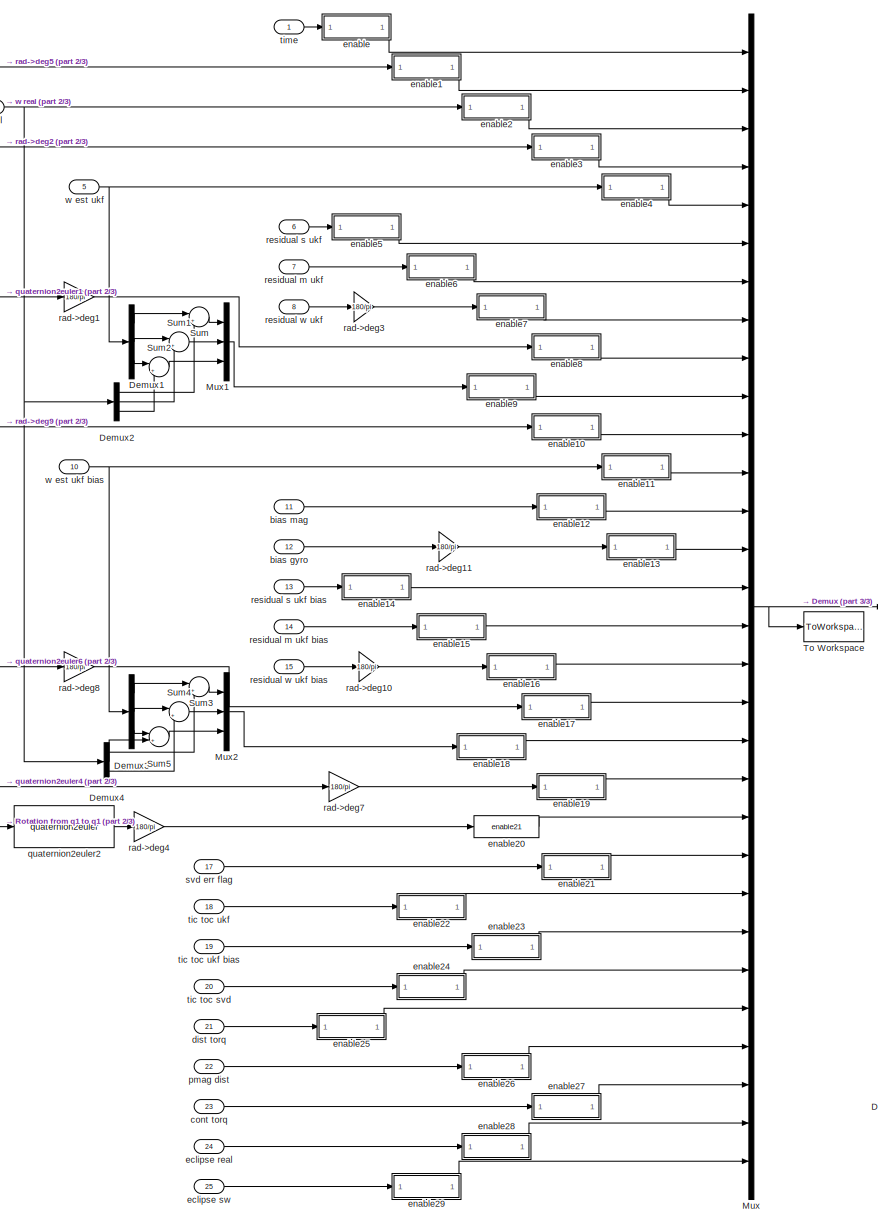
[diagram: Other Model Utilities/Store data - part 1/3, center side, full height]
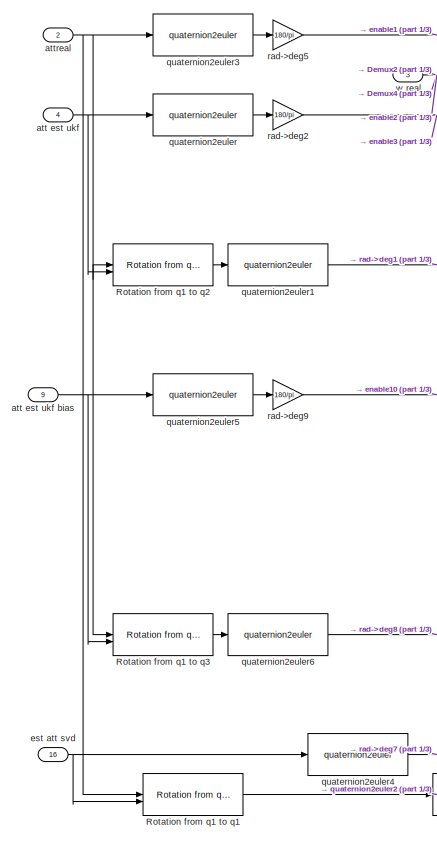
[diagram: Other Model Utilities/Store data - part 2/3, middle left region]
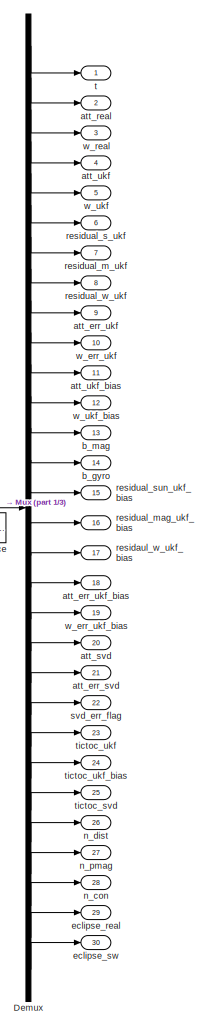
[diagram: Other Model Utilities/Store data - part 3/3, right side, full height]
BLOCK [SubSystem] Other Model Utilities/Store data
BLOCK [Demux] Other Model Utilities/Store data/Demux
  Outputs = 30
BLOCK [Demux] Other Model Utilities/Store data/Demux1
  Outputs = 3
BLOCK [Demux] Other Model Utilities/Store data/Demux2
  Outputs = 3
BLOCK [Demux] Other Model Utilities/Store data/Demux3
  Outputs = 3
BLOCK [Demux] Other Model Utilities/Store data/Demux4
  Outputs = 3
BLOCK [Mux] Other Model Utilities/Store data/Mux
  DisplayOption = bar
  Inputs = 30
BLOCK [Mux] Other Model Utilities/Store data/Mux1
  DisplayOption = bar
  Inputs = 3
BLOCK [Mux] Other Model Utilities/Store data/Mux2
  DisplayOption = bar
  Inputs = 3
BLOCK [Reference] Other Model Utilities/Store data/Rotation from q1 to q1  REF=$bdroot/Math Utilities/Quaternion operations/Rotation from q1 to q2
  SourceBlock = $bdroot/Math Utilities/Quaternion operations/Rotation from q1 to q2
  SourceType = SubSystem
BLOCK [Reference] Other Model Utilities/Store data/Rotation from q1 to q2  REF=$bdroot/Math Utilities/Quaternion operations/Rotation from q1 to q2
  SourceBlock = $bdroot/Math Utilities/Quaternion operations/Rotation from q1 to q2
  SourceType = SubSystem
BLOCK [Reference] Other Model Utilities/Store data/Rotation from q1 to q3  REF=$bdroot/Math Utilities/Quaternion operations/Rotation from q1 to q2
  SourceBlock = $bdroot/Math Utilities/Quaternion operations/Rotation from q1 to q2
  SourceType = SubSystem
BLOCK [Sum] Other Model Utilities/Store data/Sum
  Inputs = |+-
BLOCK [Sum] Other Model Utilities/Store data/Sum1
  Inputs = |+-
BLOCK [Sum] Other Model Utilities/Store data/Sum2
  Inputs = |+-
BLOCK [Sum] Other Model Utilities/Store data/Sum3
  Inputs = |+-
BLOCK [Sum] Other Model Utilities/Store data/Sum4
  Inputs = |+-
BLOCK [Sum] Other Model Utilities/Store data/Sum5
  Inputs = |+-
BLOCK [ToWorkspace] Other Model Utilities/Store data/To Workspace
  MaxDataPoints = inf
  SampleTime = 1/f_sample
  VariableName = data
BLOCK [Inport] Other Model Utilities/Store data/att est ukf
  Port = 4
BLOCK [Inport] Other Model Utilities/Store data/att est ukf bias
  Port = 9
BLOCK [Outport] Other Model Utilities/Store data/att_err_svd
  Port = 21
BLOCK [Outport] Other Model Utilities/Store data/att_err_ukf
  Port = 9
BLOCK [Outport] Other Model Utilities/Store data/att_err_ukf_bias
  Port = 18
BLOCK [Outport] Other Model Utilities/Store data/att_real
  Port = 2
BLOCK [Outport] Other Model Utilities/Store data/att_svd
  Port = 20
BLOCK [Outport] Other Model Utilities/Store data/att_ukf
  Port = 4
BLOCK [Outport] Other Model Utilities/Store data/att_ukf_bias
  Port = 11
BLOCK [Inport] Other Model Utilities/Store data/attreal
  Port = 2
BLOCK [Outport] Other Model Utilities/Store data/b_gyro
  Port = 14
BLOCK [Outport] Other Model Utilities/Store data/b_mag
  Port = 13
BLOCK [Inport] Other Model Utilities/Store data/bias gyro
  Port = 12
BLOCK [Inport] Other Model Utilities/Store data/bias mag
  Port = 11
BLOCK [Inport] Other Model Utilities/Store data/cont torq
  Port = 23
BLOCK [Inport] Other Model Utilities/Store data/dist torq
  Port = 21
BLOCK [Inport] Other Model Utilities/Store data/eclipse real
  Port = 24
BLOCK [Inport] Other Model Utilities/Store data/eclipse sw
  Port = 25
BLOCK [Outport] Other Model Utilities/Store data/eclipse_real
  Port = 29
BLOCK [Outport] Other Model Utilities/Store data/eclipse_sw
  Port = 30
BLOCK [SubSystem] Other Model Utilities/Store data/enable
BLOCK [Constant] Other Model Utilities/Store data/enable/Constant
  Value = enable_signal
BLOCK [Ground] Other Model Utilities/Store data/enable/Ground
BLOCK [Inport] Other Model Utilities/Store data/enable/In
BLOCK [Outport] Other Model Utilities/Store data/enable/Out
BLOCK [Switch] Other Model Utilities/Store data/enable/Switch
  InputSameDT = off
  SaturateOnIntegerOverflow = off
  Threshold = 1
BLOCK [SubSystem] Other Model Utilities/Store data/enable1
BLOCK [Constant] Other Model Utilities/Store data/enable1/Constant
  Value = enable_signal
BLOCK [Ground] Other Model Utilities/Store data/enable1/Ground
BLOCK [Inport] Other Model Utilities/Store data/enable1/In
BLOCK [Outport] Other Model Utilities/Store data/enable1/Out
BLOCK [Switch] Other Model Utilities/Store data/enable1/Switch
  InputSameDT = off
  SaturateOnIntegerOverflow = off
  Threshold = 1
BLOCK [SubSystem] Other Model Utilities/Store data/enable10
BLOCK [Constant] Other Model Utilities/Store data/enable10/Constant
  Value = enable_signal
BLOCK [Ground] Other Model Utilities/Store data/enable10/Ground
BLOCK [Inport] Other Model Utilities/Store data/enable10/In
BLOCK [Outport] Other Model Utilities/Store data/enable10/Out
BLOCK [Switch] Other Model Utilities/Store data/enable10/Switch
  InputSameDT = off
  SaturateOnIntegerOverflow = off
  Threshold = 1
BLOCK [SubSystem] Other Model Utilities/Store data/enable11
BLOCK [Constant] Other Model Utilities/Store data/enable11/Constant
  Value = enable_signal
BLOCK [Ground] Other Model Utilities/Store data/enable11/Ground
BLOCK [Inport] Other Model Utilities/Store data/enable11/In
BLOCK [Outport] Other Model Utilities/Store data/enable11/Out
BLOCK [Switch] Other Model Utilities/Store data/enable11/Switch
  InputSameDT = off
  SaturateOnIntegerOverflow = off
  Threshold = 1
BLOCK [SubSystem] Other Model Utilities/Store data/enable12
BLOCK [Constant] Other Model Utilities/Store data/enable12/Constant
  Value = enable_signal
BLOCK [Ground] Other Model Utilities/Store data/enable12/Ground
BLOCK [Inport] Other Model Utilities/Store data/enable12/In
BLOCK [Outport] Other Model Utilities/Store data/enable12/Out
BLOCK [Switch] Other Model Utilities/Store data/enable12/Switch
  InputSameDT = off
  SaturateOnIntegerOverflow = off
  Threshold = 1
BLOCK [SubSystem] Other Model Utilities/Store data/enable13
BLOCK [Constant] Other Model Utilities/Store data/enable13/Constant
  Value = enable_signal
BLOCK [Ground] Other Model Utilities/Store data/enable13/Ground
BLOCK [Inport] Other Model Utilities/Store data/enable13/In
BLOCK [Outport] Other Model Utilities/Store data/enable13/Out
BLOCK [Switch] Other Model Utilities/Store data/enable13/Switch
  InputSameDT = off
  SaturateOnIntegerOverflow = off
  Threshold = 1
BLOCK [SubSystem] Other Model Utilities/Store data/enable14
BLOCK [Constant] Other Model Utilities/Store data/enable14/Constant
  Value = enable_signal
BLOCK [Ground] Other Model Utilities/Store data/enable14/Ground
BLOCK [Inport] Other Model Utilities/Store data/enable14/In
BLOCK [Outport] Other Model Utilities/Store data/enable14/Out
BLOCK [Switch] Other Model Utilities/Store data/enable14/Switch
  InputSameDT = off
  SaturateOnIntegerOverflow = off
  Threshold = 1
BLOCK [SubSystem] Other Model Utilities/Store data/enable15
BLOCK [Constant] Other Model Utilities/Store data/enable15/Constant
  Value = enable_signal
BLOCK [Ground] Other Model Utilities/Store data/enable15/Ground
BLOCK [Inport] Other Model Utilities/Store data/enable15/In
BLOCK [Outport] Other Model Utilities/Store data/enable15/Out
BLOCK [Switch] Other Model Utilities/Store data/enable15/Switch
  InputSameDT = off
  SaturateOnIntegerOverflow = off
  Threshold = 1
BLOCK [SubSystem] Other Model Utilities/Store data/enable16
BLOCK [Constant] Other Model Utilities/Store data/enable16/Constant
  Value = enable_signal
BLOCK [Ground] Other Model Utilities/Store data/enable16/Ground
BLOCK [Inport] Other Model Utilities/Store data/enable16/In
BLOCK [Outport] Other Model Utilities/Store data/enable16/Out
BLOCK [Switch] Other Model Utilities/Store data/enable16/Switch
  InputSameDT = off
  SaturateOnIntegerOverflow = off
  Threshold = 1
BLOCK [SubSystem] Other Model Utilities/Store data/enable17
BLOCK [Constant] Other Model Utilities/Store data/enable17/Constant
  Value = enable_signal
BLOCK [Ground] Other Model Utilities/Store data/enable17/Ground
BLOCK [Inport] Other Model Utilities/Store data/enable17/In
BLOCK [Outport] Other Model Utilities/Store data/enable17/Out
BLOCK [Switch] Other Model Utilities/Store data/enable17/Switch
  InputSameDT = off
  SaturateOnIntegerOverflow = off
  Threshold = 1
BLOCK [SubSystem] Other Model Utilities/Store data/enable18
BLOCK [Constant] Other Model Utilities/Store data/enable18/Constant
  Value = enable_signal
BLOCK [Ground] Other Model Utilities/Store data/enable18/Ground
BLOCK [Inport] Other Model Utilities/Store data/enable18/In
BLOCK [Outport] Other Model Utilities/Store data/enable18/Out
BLOCK [Switch] Other Model Utilities/Store data/enable18/Switch
  InputSameDT = off
  SaturateOnIntegerOverflow = off
  Threshold = 1
BLOCK [SubSystem] Other Model Utilities/Store data/enable19
BLOCK [Constant] Other Model Utilities/Store data/enable19/Constant
  Value = enable_signal
BLOCK [Ground] Other Model Utilities/Store data/enable19/Ground
BLOCK [Inport] Other Model Utilities/Store data/enable19/In
BLOCK [Outport] Other Model Utilities/Store data/enable19/Out
BLOCK [Switch] Other Model Utilities/Store data/enable19/Switch
  InputSameDT = off
  SaturateOnIntegerOverflow = off
  Threshold = 1
BLOCK [SubSystem] Other Model Utilities/Store data/enable2
BLOCK [Constant] Other Model Utilities/Store data/enable2/Constant
  Value = enable_signal
BLOCK [Ground] Other Model Utilities/Store data/enable2/Ground
BLOCK [Inport] Other Model Utilities/Store data/enable2/In
BLOCK [Outport] Other Model Utilities/Store data/enable2/Out
BLOCK [Switch] Other Model Utilities/Store data/enable2/Switch
  InputSameDT = off
  SaturateOnIntegerOverflow = off
  Threshold = 1
BLOCK [Reference] Other Model Utilities/Store data/enable20  REF=$bdroot/Other Model Utilities/Store data/enable21
  SourceBlock = $bdroot/Other Model Utilities/Store data/enable21
BLOCK [SubSystem] Other Model Utilities/Store data/enable21
BLOCK [Constant] Other Model Utilities/Store data/enable21/Constant
  Value = enable_signal
BLOCK [Ground] Other Model Utilities/Store data/enable21/Ground
BLOCK [Inport] Other Model Utilities/Store data/enable21/In
BLOCK [Outport] Other Model Utilities/Store data/enable21/Out
BLOCK [Switch] Other Model Utilities/Store data/enable21/Switch
  InputSameDT = off
  SaturateOnIntegerOverflow = off
  Threshold = 1
BLOCK [SubSystem] Other Model Utilities/Store data/enable22
BLOCK [Constant] Other Model Utilities/Store data/enable22/Constant
  Value = enable_signal
BLOCK [Ground] Other Model Utilities/Store data/enable22/Ground
BLOCK [Inport] Other Model Utilities/Store data/enable22/In
BLOCK [Outport] Other Model Utilities/Store data/enable22/Out
BLOCK [Switch] Other Model Utilities/Store data/enable22/Switch
  InputSameDT = off
  SaturateOnIntegerOverflow = off
  Threshold = 1
BLOCK [SubSystem] Other Model Utilities/Store data/enable23
BLOCK [Constant] Other Model Utilities/Store data/enable23/Constant
  Value = enable_signal
BLOCK [Ground] Other Model Utilities/Store data/enable23/Ground
BLOCK [Inport] Other Model Utilities/Store data/enable23/In
BLOCK [Outport] Other Model Utilities/Store data/enable23/Out
BLOCK [Switch] Other Model Utilities/Store data/enable23/Switch
  InputSameDT = off
  SaturateOnIntegerOverflow = off
  Threshold = 1
BLOCK [SubSystem] Other Model Utilities/Store data/enable24
BLOCK [Constant] Other Model Utilities/Store data/enable24/Constant
  Value = enable_signal
BLOCK [Ground] Other Model Utilities/Store data/enable24/Ground
BLOCK [Inport] Other Model Utilities/Store data/enable24/In
BLOCK [Outport] Other Model Utilities/Store data/enable24/Out
BLOCK [Switch] Other Model Utilities/Store data/enable24/Switch
  InputSameDT = off
  SaturateOnIntegerOverflow = off
  Threshold = 1
BLOCK [SubSystem] Other Model Utilities/Store data/enable25
BLOCK [Constant] Other Model Utilities/Store data/enable25/Constant
  Value = enable_signal
BLOCK [Ground] Other Model Utilities/Store data/enable25/Ground
BLOCK [Inport] Other Model Utilities/Store data/enable25/In
BLOCK [Outport] Other Model Utilities/Store data/enable25/Out
BLOCK [Switch] Other Model Utilities/Store data/enable25/Switch
  InputSameDT = off
  SaturateOnIntegerOverflow = off
  Threshold = 1
BLOCK [SubSystem] Other Model Utilities/Store data/enable26
BLOCK [Constant] Other Model Utilities/Store data/enable26/Constant
  Value = enable_signal
BLOCK [Ground] Other Model Utilities/Store data/enable26/Ground
BLOCK [Inport] Other Model Utilities/Store data/enable26/In
BLOCK [Outport] Other Model Utilities/Store data/enable26/Out
BLOCK [Switch] Other Model Utilities/Store data/enable26/Switch
  InputSameDT = off
  SaturateOnIntegerOverflow = off
  Threshold = 1
BLOCK [SubSystem] Other Model Utilities/Store data/enable27
BLOCK [Constant] Other Model Utilities/Store data/enable27/Constant
  Value = enable_signal
BLOCK [Ground] Other Model Utilities/Store data/enable27/Ground
BLOCK [Inport] Other Model Utilities/Store data/enable27/In
BLOCK [Outport] Other Model Utilities/Store data/enable27/Out
BLOCK [Switch] Other Model Utilities/Store data/enable27/Switch
  InputSameDT = off
  SaturateOnIntegerOverflow = off
  Threshold = 1
BLOCK [SubSystem] Other Model Utilities/Store data/enable28
BLOCK [Constant] Other Model Utilities/Store data/enable28/Constant
  Value = enable_signal
BLOCK [Ground] Other Model Utilities/Store data/enable28/Ground
BLOCK [Inport] Other Model Utilities/Store data/enable28/In
BLOCK [Outport] Other Model Utilities/Store data/enable28/Out
BLOCK [Switch] Other Model Utilities/Store data/enable28/Switch
  InputSameDT = off
  SaturateOnIntegerOverflow = off
  Threshold = 1
BLOCK [SubSystem] Other Model Utilities/Store data/enable29
BLOCK [Constant] Other Model Utilities/Store data/enable29/Constant
  Value = enable_signal
BLOCK [Ground] Other Model Utilities/Store data/enable29/Ground
BLOCK [Inport] Other Model Utilities/Store data/enable29/In
BLOCK [Outport] Other Model Utilities/Store data/enable29/Out
BLOCK [Switch] Other Model Utilities/Store data/enable29/Switch
  InputSameDT = off
  SaturateOnIntegerOverflow = off
  Threshold = 1
BLOCK [SubSystem] Other Model Utilities/Store data/enable3
BLOCK [Constant] Other Model Utilities/Store data/enable3/Constant
  Value = enable_signal
BLOCK [Ground] Other Model Utilities/Store data/enable3/Ground
BLOCK [Inport] Other Model Utilities/Store data/enable3/In
BLOCK [Outport] Other Model Utilities/Store data/enable3/Out
BLOCK [Switch] Other Model Utilities/Store data/enable3/Switch
  InputSameDT = off
  SaturateOnIntegerOverflow = off
  Threshold = 1
BLOCK [SubSystem] Other Model Utilities/Store data/enable4
BLOCK [Constant] Other Model Utilities/Store data/enable4/Constant
  Value = enable_signal
BLOCK [Ground] Other Model Utilities/Store data/enable4/Ground
BLOCK [Inport] Other Model Utilities/Store data/enable4/In
BLOCK [Outport] Other Model Utilities/Store data/enable4/Out
BLOCK [Switch] Other Model Utilities/Store data/enable4/Switch
  InputSameDT = off
  SaturateOnIntegerOverflow = off
  Threshold = 1
BLOCK [SubSystem] Other Model Utilities/Store data/enable5
BLOCK [Constant] Other Model Utilities/Store data/enable5/Constant
  Value = enable_signal
BLOCK [Ground] Other Model Utilities/Store data/enable5/Ground
BLOCK [Inport] Other Model Utilities/Store data/enable5/In
BLOCK [Outport] Other Model Utilities/Store data/enable5/Out
BLOCK [Switch] Other Model Utilities/Store data/enable5/Switch
  InputSameDT = off
  SaturateOnIntegerOverflow = off
  Threshold = 1
BLOCK [SubSystem] Other Model Utilities/Store data/enable6
BLOCK [Constant] Other Model Utilities/Store data/enable6/Constant
  Value = enable_signal
BLOCK [Ground] Other Model Utilities/Store data/enable6/Ground
BLOCK [Inport] Other Model Utilities/Store data/enable6/In
BLOCK [Outport] Other Model Utilities/Store data/enable6/Out
BLOCK [Switch] Other Model Utilities/Store data/enable6/Switch
  InputSameDT = off
  SaturateOnIntegerOverflow = off
  Threshold = 1
BLOCK [SubSystem] Other Model Utilities/Store data/enable7
BLOCK [Constant] Other Model Utilities/Store data/enable7/Constant
  Value = enable_signal
BLOCK [Ground] Other Model Utilities/Store data/enable7/Ground
BLOCK [Inport] Other Model Utilities/Store data/enable7/In
BLOCK [Outport] Other Model Utilities/Store data/enable7/Out
BLOCK [Switch] Other Model Utilities/Store data/enable7/Switch
  InputSameDT = off
  SaturateOnIntegerOverflow = off
  Threshold = 1
BLOCK [SubSystem] Other Model Utilities/Store data/enable8
BLOCK [Constant] Other Model Utilities/Store data/enable8/Constant
  Value = enable_signal
BLOCK [Ground] Other Model Utilities/Store data/enable8/Ground
BLOCK [Inport] Other Model Utilities/Store data/enable8/In
BLOCK [Outport] Other Model Utilities/Store data/enable8/Out
BLOCK [Switch] Other Model Utilities/Store data/enable8/Switch
  InputSameDT = off
  SaturateOnIntegerOverflow = off
  Threshold = 1
BLOCK [SubSystem] Other Model Utilities/Store data/enable9
BLOCK [Constant] Other Model Utilities/Store data/enable9/Constant
  Value = enable_signal
BLOCK [Ground] Other Model Utilities/Store data/enable9/Ground
BLOCK [Inport] Other Model Utilities/Store data/enable9/In
BLOCK [Outport] Other Model Utilities/Store data/enable9/Out
BLOCK [Switch] Other Model Utilities/Store data/enable9/Switch
  InputSameDT = off
  SaturateOnIntegerOverflow = off
  Threshold = 1
BLOCK [Inport] Other Model Utilities/Store data/est att svd
  Port = 16
BLOCK [Outport] Other Model Utilities/Store data/n_con
  Port = 28
BLOCK [Outport] Other Model Utilities/Store data/n_dist
  Port = 26
BLOCK [Outport] Other Model Utilities/Store data/n_pmag
  Port = 27
BLOCK [Inport] Other Model Utilities/Store data/pmag dist
  Port = 22
BLOCK [Reference] Other Model Utilities/Store data/quaternion2euler  REF=$bdroot/Math Utilities/Quaternion operations/quaternion2euler
  SourceBlock = $bdroot/Math Utilities/Quaternion operations/quaternion2euler
  SourceType = SubSystem
BLOCK [Reference] Other Model Utilities/Store data/quaternion2euler1  REF=$bdroot/Math Utilities/Quaternion operations/quaternion2euler
  SourceBlock = $bdroot/Math Utilities/Quaternion operations/quaternion2euler
  SourceType = SubSystem
BLOCK [Reference] Other Model Utilities/Store data/quaternion2euler2  REF=$bdroot/Math Utilities/Quaternion operations/quaternion2euler
  SourceBlock = $bdroot/Math Utilities/Quaternion operations/quaternion2euler
  SourceType = SubSystem
BLOCK [Reference] Other Model Utilities/Store data/quaternion2euler3  REF=$bdroot/Math Utilities/Quaternion operations/quaternion2euler
  SourceBlock = $bdroot/Math Utilities/Quaternion operations/quaternion2euler
  SourceType = SubSystem
BLOCK [Reference] Other Model Utilities/Store data/quaternion2euler4  REF=$bdroot/Math Utilities/Quaternion operations/quaternion2euler
  NameLocation = top
  SourceBlock = $bdroot/Math Utilities/Quaternion operations/quaternion2euler
  SourceType = SubSystem
BLOCK [Reference] Other Model Utilities/Store data/quaternion2euler5  REF=$bdroot/Math Utilities/Quaternion operations/quaternion2euler
  SourceBlock = $bdroot/Math Utilities/Quaternion operations/quaternion2euler
  SourceType = SubSystem
BLOCK [Reference] Other Model Utilities/Store data/quaternion2euler6  REF=$bdroot/Math Utilities/Quaternion operations/quaternion2euler
  SourceBlock = $bdroot/Math Utilities/Quaternion operations/quaternion2euler
  SourceType = SubSystem
BLOCK [Gain] Other Model Utilities/Store data/rad->deg1
  Gain = 180/pi
BLOCK [Gain] Other Model Utilities/Store data/rad->deg10
  Gain = 180/pi
BLOCK [Gain] Other Model Utilities/Store data/rad->deg11
  Gain = 180/pi
BLOCK [Gain] Other Model Utilities/Store data/rad->deg2
  Gain = 180/pi
BLOCK [Gain] Other Model Utilities/Store data/rad->deg3
  Gain = 180/pi
BLOCK [Gain] Other Model Utilities/Store data/rad->deg4
  Gain = 180/pi
BLOCK [Gain] Other Model Utilities/Store data/rad->deg5
  Gain = 180/pi
BLOCK [Gain] Other Model Utilities/Store data/rad->deg7
  Gain = 180/pi
BLOCK [Gain] Other Model Utilities/Store data/rad->deg8
  Gain = 180/pi
BLOCK [Gain] Other Model Utilities/Store data/rad->deg9
  Gain = 180/pi
BLOCK [Outport] Other Model Utilities/Store data/residaul_w_ukf_bias
  Port = 17
BLOCK [Inport] Other Model Utilities/Store data/residual m ukf
  Port = 7
BLOCK [Inport] Other Model Utilities/Store data/residual m ukf bias
  Port = 14
BLOCK [Inport] Other Model Utilities/Store data/residual s ukf
  Port = 6
BLOCK [Inport] Other Model Utilities/Store data/residual s ukf bias
  Port = 13
BLOCK [Inport] Other Model Utilities/Store data/residual w ukf
  Port = 8
BLOCK [Inport] Other Model Utilities/Store data/residual w ukf bias
  Port = 15
BLOCK [Outport] Other Model Utilities/Store data/residual_m_ukf
  Port = 7
BLOCK [Outport] Other Model Utilities/Store data/residual_mag_ukf_bias
  Port = 16
BLOCK [Outport] Other Model Utilities/Store data/residual_s_ukf
  Port = 6
BLOCK [Outport] Other Model Utilities/Store data/residual_sun_ukf_bias
  Port = 15
BLOCK [Outport] Other Model Utilities/Store data/residual_w_ukf
  Port = 8
BLOCK [Inport] Other Model Utilities/Store data/svd err flag
  Port = 17
BLOCK [Outport] Other Model Utilities/Store data/svd_err_flag
  Port = 22
BLOCK [Outport] Other Model Utilities/Store data/t
BLOCK [Inport] Other Model Utilities/Store data/tic toc svd
  Port = 20
BLOCK [Inport] Other Model Utilities/Store data/tic toc ukf
  Port = 18
BLOCK [Inport] Other Model Utilities/Store data/tic toc ukf bias
  Port = 19
BLOCK [Outport] Other Model Utilities/Store data/tictoc_svd
  Port = 25
BLOCK [Outport] Other Model Utilities/Store data/tictoc_ukf
  Port = 23
BLOCK [Outport] Other Model Utilities/Store data/tictoc_ukf_bias
  Port = 24
BLOCK [Inport] Other Model Utilities/Store data/time
BLOCK [Inport] Other Model Utilities/Store data/w est ukf
  Port = 5
BLOCK [Inport] Other Model Utilities/Store data/w est ukf bias
  Port = 10
BLOCK [Inport] Other Model Utilities/Store data/w real
  Port = 3
BLOCK [Outport] Other Model Utilities/Store data/w_err_ukf
  Port = 10
BLOCK [Outport] Other Model Utilities/Store data/w_err_ukf_bias
  Port = 19
BLOCK [Outport] Other Model Utilities/Store data/w_real
  Port = 3
BLOCK [Outport] Other Model Utilities/Store data/w_ukf
  Port = 5
BLOCK [Outport] Other Model Utilities/Store data/w_ukf_bias
  Port = 12
BLOCK [SubSystem] Other Model Utilities/TLE -> JD converter
BLOCK [Constant] Other Model Utilities/TLE -> JD converter/Add century
  Value = 1900
BLOCK [Constant] Other Model Utilities/TLE -> JD converter/Add century1
  Value = 2000
BLOCK [Gain] Other Model Utilities/TLE -> JD converter/Gain1
  Gain = 1/1000
BLOCK [Gain] Other Model Utilities/TLE -> JD converter/Gain2
  Gain = 1/1000
BLOCK [Gain] Other Model Utilities/TLE -> JD converter/Gain3
  Gain = 1000
BLOCK [Outport] Other Model Utilities/TLE -> JD converter/JD
BLOCK [Sum] Other Model Utilities/TLE -> JD converter/Sum1
  Inputs = ++|
BLOCK [Sum] Other Model Utilities/TLE -> JD converter/Sum3
  Inputs = ++|
BLOCK [Sum] Other Model Utilities/TLE -> JD converter/Sum4
  Inputs = ++-
BLOCK [Sum] Other Model Utilities/TLE -> JD converter/Sum5
  Inputs = |+-
BLOCK [Inport] Other Model Utilities/TLE -> JD converter/TLE (Epoch time)
BLOCK [Fcn] Other Model Utilities/TLE -> JD converter/calculate JD for given year at 1. jan time 00.00
  Expr = 367*u(1)-floor(7*(u(1)+floor((1+9)/12))/4)+floor(275*1/9)+1+1721013.5+0/24
BLOCK [Rounding] Other Model Utilities/TLE -> JD converter/extract year
BLOCK [Constant] Other Model Utilities/TLE -> JD converter/substract 1 day
BLOCK [Switch] Other Model Utilities/TLE -> JD converter/year 1950-1999 or 2000-2049?
  Criteria = u2 > Threshold
  InputSameDT = off
  SaturateOnIntegerOverflow = off
  Threshold = 50
BLOCK [SubSystem] Sensor Emulation
  ShowPortLabels = none
BLOCK [SubSystem] Sensor Emulation/Gyroscopes
BLOCK [Constant] Sensor Emulation/Gyroscopes/Bias1
  Value = bias_gyro
BLOCK [Reference] Sensor Emulation/Gyroscopes/Cartesian to Spherical  REF=$bdroot/Sensor Emulation/Sun sensors/Cartesian to
Spherical
  SourceBlock = $bdroot/Sensor Emulation/Sun sensors/Cartesian to\nSpherical
  SourceType = Cart2Sph
BLOCK [Demux] Sensor Emulation/Gyroscopes/Demux1
  Outputs = 3
BLOCK [Demux] Sensor Emulation/Gyroscopes/Demux2
  Outputs = 3
BLOCK [Demux] Sensor Emulation/Gyroscopes/Demux3
  Outputs = 3
BLOCK [Mux] Sensor Emulation/Gyroscopes/Mux1
  DisplayOption = bar
  Inputs = 3
BLOCK [Mux] Sensor Emulation/Gyroscopes/Mux2
  DisplayOption = bar
  Inputs = 3
BLOCK [RandomNumber] Sensor Emulation/Gyroscopes/Noise1
  SampleTime = 0.1
  Seed = 1
  Variance = ((pi/180)*noise_gyro)^2
BLOCK [RandomNumber] Sensor Emulation/Gyroscopes/Noise2
  SampleTime = 0.1
  Seed = 999
  Variance = ((pi/180)*noise_gyro)^2
BLOCK [RandomNumber] Sensor Emulation/Gyroscopes/Noise3
  SampleTime = 0.1
  Seed = 46945
  Variance = ((pi/180)*noise_gyro)^2
BLOCK [Inport] Sensor Emulation/Gyroscopes/Omega_S
BLOCK [Outport] Sensor Emulation/Gyroscopes/Omega_S_meas
BLOCK [Reference] Sensor Emulation/Gyroscopes/Spherical to Cartesian  REF=$bdroot/Sensor Emulation/Sun sensors/Spherical to
Cartesian
  SourceBlock = $bdroot/Sensor Emulation/Sun sensors/Spherical to\nCartesian
  SourceType = Sph2Cart
BLOCK [Sum] Sensor Emulation/Gyroscopes/Sum1
  Inputs = |++
BLOCK [Sum] Sensor Emulation/Gyroscopes/Sum3
  Inputs = +++
BLOCK [Sum] Sensor Emulation/Gyroscopes/Sum6
  Inputs = +++
BLOCK [Sum] Sensor Emulation/Gyroscopes/Sum7
  Inputs = +++
BLOCK [Sum] Sensor Emulation/Gyroscopes/Sum8
  Inputs = |++
BLOCK [ZeroOrderHold] Sensor Emulation/Gyroscopes/Zero-Order Hold
  SampleTime = 1/s_freq_gyro
BLOCK [Gain] Sensor Emulation/Gyroscopes/deg -> rad
  Gain = pi/180
BLOCK [Gain] Sensor Emulation/Gyroscopes/deg -> rad1
  Gain = pi/180
BLOCK [Gain] Sensor Emulation/Gyroscopes/deg -> rad2
  Gain = pi/180
BLOCK [Constant] Sensor Emulation/Gyroscopes/displacement
  NameLocation = top
  Value = heading_gyro
BLOCK [Constant] Sensor Emulation/Gyroscopes/displacement1
  NameLocation = top
  Value = tilt_gyro
BLOCK [SubSystem] Sensor Emulation/Magnetometers
BLOCK [Constant] Sensor Emulation/Magnetometers/Bias
  NameLocation = top
  Value = bias_mag
BLOCK [Reference] Sensor Emulation/Magnetometers/Cartesian to Spherical  REF=$bdroot/Sensor Emulation/Sun sensors/Cartesian to
Spherical
  SourceBlock = $bdroot/Sensor Emulation/Sun sensors/Cartesian to\nSpherical
  SourceType = Cart2Sph
BLOCK [Demux] Sensor Emulation/Magnetometers/Demux
  Outputs = 3
BLOCK [Demux] Sensor Emulation/Magnetometers/Demux1
  Outputs = 3
BLOCK [Demux] Sensor Emulation/Magnetometers/Demux2
  Outputs = 3
BLOCK [Inport] Sensor Emulation/Magnetometers/Mag_I
  Port = 2
BLOCK [Outport] Sensor Emulation/Magnetometers/Mag_S_meas
BLOCK [Mux] Sensor Emulation/Magnetometers/Mux
  DisplayOption = bar
  Inputs = 3
BLOCK [Mux] Sensor Emulation/Magnetometers/Mux2
  DisplayOption = bar
  Inputs = 3
BLOCK [RandomNumber] Sensor Emulation/Magnetometers/Noise1
  SampleTime = 0.1
  Seed = 23771
  Variance = ((pi/180)*noise_mag)^2
BLOCK [RandomNumber] Sensor Emulation/Magnetometers/Noise2
  SampleTime = 0.1
  Seed = 5000
  Variance = ((pi/180)*noise_mag)^2
BLOCK [Reference] Sensor Emulation/Magnetometers/Spherical to Cartesian  REF=$bdroot/Sensor Emulation/Sun sensors/Spherical to
Cartesian
  SourceBlock = $bdroot/Sensor Emulation/Sun sensors/Spherical to\nCartesian
  SourceType = Sph2Cart
BLOCK [Sum] Sensor Emulation/Magnetometers/Sum
  Inputs = ++|
BLOCK [Sum] Sensor Emulation/Magnetometers/Sum1
  Inputs = +++
BLOCK [Sum] Sensor Emulation/Magnetometers/Sum2
  Inputs = +++
BLOCK [Sum] Sensor Emulation/Magnetometers/Sum4
  Inputs = ++|
BLOCK [Sum] Sensor Emulation/Magnetometers/Sum5
  Inputs = ++|
BLOCK [SubSystem] Sensor Emulation/Magnetometers/Vector rotation by q
BLOCK [Constant] Sensor Emulation/Magnetometers/Vector rotation by q/Constant
  Value = 0
BLOCK [Demux] Sensor Emulation/Magnetometers/Vector rotation by q/Demux
  DisplayOption = none
  Outputs = 3
BLOCK [Demux] Sensor Emulation/Magnetometers/Vector rotation by q/Demux1
  DisplayOption = none
BLOCK [Mux] Sensor Emulation/Magnetometers/Vector rotation by q/Mux
  DisplayOption = bar
BLOCK [Mux] Sensor Emulation/Magnetometers/Vector rotation by q/Mux1
  DisplayOption = bar
  Inputs = 3
BLOCK [SubSystem] Sensor Emulation/Magnetometers/Vector rotation by q/Quaternion inverter
BLOCK [Demux] Sensor Emulation/Magnetometers/Vector rotation by q/Quaternion inverter/Demux
  DisplayOption = none
BLOCK [Demux] Sensor Emulation/Magnetometers/Vector rotation by q/Quaternion inverter/Demux1
  DisplayOption = none
  Outputs = 3
BLOCK [Gain] Sensor Emulation/Magnetometers/Vector rotation by q/Quaternion inverter/Gain
  Gain = -1
  NameLocation = top
  OutDataTypeStr = Inherit: Same as input
  ParamDataTypeStr = Inherit: Same as input
  SaturateOnIntegerOverflow = on
BLOCK [Mux] Sensor Emulation/Magnetometers/Vector rotation by q/Quaternion inverter/Mux
  DisplayOption = bar
BLOCK [Mux] Sensor Emulation/Magnetometers/Vector rotation by q/Quaternion inverter/Mux1
  DisplayOption = bar
  Inputs = 3
BLOCK [Inport] Sensor Emulation/Magnetometers/Vector rotation by q/Quaternion inverter/q
BLOCK [Outport] Sensor Emulation/Magnetometers/Vector rotation by q/Quaternion inverter/q^-1
BLOCK [S-Function] Sensor Emulation/Magnetometers/Vector rotation by q/Quaternion mulitiplication
  EnableBusSupport = off
  FunctionName = qmul
  SFcnIsStateOwnerBlock = off
  SFunctionDeploymentMode = off
BLOCK [S-Function] Sensor Emulation/Magnetometers/Vector rotation by q/Quaternion mulitiplication1
  EnableBusSupport = off
  FunctionName = qmul
  SFcnIsStateOwnerBlock = off
  SFunctionDeploymentMode = off
BLOCK [Terminator] Sensor Emulation/Magnetometers/Vector rotation by q/Terminator
BLOCK [Inport] Sensor Emulation/Magnetometers/Vector rotation by q/V
  Port = 2
BLOCK [Inport] Sensor Emulation/Magnetometers/Vector rotation by q/q
BLOCK [Outport] Sensor Emulation/Magnetometers/Vector rotation by q/q'Vq
BLOCK [ZeroOrderHold] Sensor Emulation/Magnetometers/Zero-Order Hold
  SampleTime = 1/s_freq_mag
BLOCK [Gain] Sensor Emulation/Magnetometers/[nT] -> [T]
  Gain = 10^(-9)
BLOCK [Gain] Sensor Emulation/Magnetometers/deg -> rad
  Gain = pi/180
BLOCK [Gain] Sensor Emulation/Magnetometers/deg -> rad1
  Gain = pi/180
BLOCK [Constant] Sensor Emulation/Magnetometers/displacement
  NameLocation = top
  Value = heading_mag
BLOCK [Constant] Sensor Emulation/Magnetometers/displacement1
  NameLocation = top
  Value = tilt_mag
BLOCK [Inport] Sensor Emulation/Magnetometers/q_I_S
BLOCK [SubSystem] Sensor Emulation/Measurements
BLOCK [Inport] Sensor Emulation/Measurements/Eclipse
  Port = 5
BLOCK [Reference] Sensor Emulation/Measurements/Gyroscopes  REF=$bdroot/Sensor Emulation/Gyroscopes
  SourceBlock = $bdroot/Sensor Emulation/Gyroscopes
BLOCK [Inport] Sensor Emulation/Measurements/Mag_I
  Port = 2
BLOCK [Outport] Sensor Emulation/Measurements/Mag_S_meas
  Port = 2
BLOCK [Reference] Sensor Emulation/Measurements/Magnetometers  REF=$bdroot/Sensor Emulation/Magnetometers
  SourceBlock = $bdroot/Sensor Emulation/Magnetometers
BLOCK [Inport] Sensor Emulation/Measurements/Omega_S
  Port = 3
BLOCK [Outport] Sensor Emulation/Measurements/Omega_S_meas
  Port = 3
BLOCK [Inport] Sensor Emulation/Measurements/Pos_Sun_I
  Port = 4
BLOCK [Reference] Sensor Emulation/Measurements/Sun sensors  REF=$bdroot/Sensor Emulation/Sun sensors
  SourceBlock = $bdroot/Sensor Emulation/Sun sensors
BLOCK [Outport] Sensor Emulation/Measurements/Sun_S_meas
BLOCK [Inport] Sensor Emulation/Measurements/q_I_S
BLOCK [SubSystem] Sensor Emulation/Sun sensors
BLOCK [Constant] Sensor Emulation/Sun sensors/Bias
  NameLocation = top
  Value = bias_sun
BLOCK [SubSystem] Sensor Emulation/Sun sensors/Cartesian to Spherical
BLOCK [Mux] Sensor Emulation/Sun sensors/Cartesian to Spherical/Mux
  Inputs = 2
BLOCK [Mux] Sensor Emulation/Sun sensors/Cartesian to Spherical/Mux1
  Inputs = 2
BLOCK [Fcn] Sensor Emulation/Sun sensors/Cartesian to Spherical/calc phi
  Expr = atan2(u[1],u[2])
BLOCK [Fcn] Sensor Emulation/Sun sensors/Cartesian to Spherical/calc r
  Expr = hypot(u[1],u[2])
BLOCK [Fcn] Sensor Emulation/Sun sensors/Cartesian to Spherical/calc theta
  Expr = atan2(u[2],u[1])
BLOCK [Outport] Sensor Emulation/Sun sensors/Cartesian to Spherical/phi
  InitialOutput = 0
  Port = 3
BLOCK [Outport] Sensor Emulation/Sun sensors/Cartesian to Spherical/r 
  InitialOutput = 0
BLOCK [Fcn] Sensor Emulation/Sun sensors/Cartesian to Spherical/temp
  Expr = hypot(u[1],u[2])
BLOCK [Outport] Sensor Emulation/Sun sensors/Cartesian to Spherical/theta
  InitialOutput = 0
  Port = 2
BLOCK [Inport] Sensor Emulation/Sun sensors/Cartesian to Spherical/x
  PortDimensions = 1
BLOCK [Inport] Sensor Emulation/Sun sensors/Cartesian to Spherical/y
  Port = 2
  PortDimensions = 1
BLOCK [Inport] Sensor Emulation/Sun sensors/Cartesian to Spherical/z
  Port = 3
  PortDimensions = 1
BLOCK [Constant] Sensor Emulation/Sun sensors/Constant
  Value = 0
BLOCK [Demux] Sensor Emulation/Sun sensors/Demux1
  Outputs = 2
BLOCK [Demux] Sensor Emulation/Sun sensors/Demux2
  Outputs = 3
BLOCK [Inport] Sensor Emulation/Sun sensors/Eclipse
BLOCK [Mux] Sensor Emulation/Sun sensors/Mux2
  DisplayOption = bar
  Inputs = 3
BLOCK [RandomNumber] Sensor Emulation/Sun sensors/Noise1
  SampleTime = 0.1
  Seed = 95817
  Variance = ((-pi/180)*noise_sun)^2
BLOCK [RandomNumber] Sensor Emulation/Sun sensors/Noise2
  SampleTime = 0.1
  Seed = 74619
  Variance = ((-pi/180)*noise_sun)^2
BLOCK [Inport] Sensor Emulation/Sun sensors/Pos_Sun_I
  Port = 2
BLOCK [DiscretePulseGenerator] Sensor Emulation/Sun sensors/Pulse Generator
  Period = (1/s_freq_sun)/0.1
  PulseWidth = nr_sample_sun
  SampleTime = 0.1
BLOCK [SubSystem] Sensor Emulation/Sun sensors/Spherical to Cartesian
BLOCK [Mux] Sensor Emulation/Sun sensors/Spherical to Cartesian/Mux
  Inputs = 2
BLOCK [Mux] Sensor Emulation/Sun sensors/Spherical to Cartesian/Mux1
  Inputs = 2
BLOCK [Outport] Sensor Emulation/Sun sensors/Spherical to Cartesian/X
  InitialOutput = 0
BLOCK [Outport] Sensor Emulation/Sun sensors/Spherical to Cartesian/Y
  InitialOutput = 0
  Port = 2
BLOCK [Outport] Sensor Emulation/Sun sensors/Spherical to Cartesian/Z
  InitialOutput = 0
  Port = 3
BLOCK [Inport] Sensor Emulation/Sun sensors/Spherical to Cartesian/phi
  Port = 3
  PortDimensions = 1
BLOCK [Inport] Sensor Emulation/Sun sensors/Spherical to Cartesian/r
  PortDimensions = 1
BLOCK [Fcn] Sensor Emulation/Sun sensors/Spherical to Cartesian/temp
  Expr = u[1]*sin(u[2])
BLOCK [Inport] Sensor Emulation/Sun sensors/Spherical to Cartesian/theta
  Port = 2
  PortDimensions = 1
BLOCK [Fcn] Sensor Emulation/Sun sensors/Spherical to Cartesian/x
  Expr = u[1]*cos(u[2])
BLOCK [Fcn] Sensor Emulation/Sun sensors/Spherical to Cartesian/y
  Expr = u[1]*sin(u[2])
BLOCK [Fcn] Sensor Emulation/Sun sensors/Spherical to Cartesian/z
  Expr = u[1]*cos(u[2])
BLOCK [Sum] Sensor Emulation/Sun sensors/Sum1
  Inputs = +++
BLOCK [Sum] Sensor Emulation/Sun sensors/Sum8
  Inputs = +++
BLOCK [Outport] Sensor Emulation/Sun sensors/Sun_S_meas
BLOCK [Switch] Sensor Emulation/Sun sensors/Switch
  Criteria = u2 > Threshold
  InputSameDT = off
  SaturateOnIntegerOverflow = off
  Threshold = 0.5
  ZeroCross = off
BLOCK [Switch] Sensor Emulation/Sun sensors/Switch1
  Criteria = u2 > Threshold
  InputSameDT = off
  SaturateOnIntegerOverflow = off
  Threshold = 0.5
  ZeroCross = off
BLOCK [SubSystem] Sensor Emulation/Sun sensors/Vector rotation by q
BLOCK [Constant] Sensor Emulation/Sun sensors/Vector rotation by q/Constant
  Value = 0
BLOCK [Demux] Sensor Emulation/Sun sensors/Vector rotation by q/Demux
  DisplayOption = none
  Outputs = 3
BLOCK [Demux] Sensor Emulation/Sun sensors/Vector rotation by q/Demux1
  DisplayOption = none
BLOCK [Mux] Sensor Emulation/Sun sensors/Vector rotation by q/Mux
  DisplayOption = bar
BLOCK [Mux] Sensor Emulation/Sun sensors/Vector rotation by q/Mux1
  DisplayOption = bar
  Inputs = 3
BLOCK [SubSystem] Sensor Emulation/Sun sensors/Vector rotation by q/Quaternion inverter
BLOCK [Demux] Sensor Emulation/Sun sensors/Vector rotation by q/Quaternion inverter/Demux
  DisplayOption = none
BLOCK [Demux] Sensor Emulation/Sun sensors/Vector rotation by q/Quaternion inverter/Demux1
  DisplayOption = none
  Outputs = 3
BLOCK [Gain] Sensor Emulation/Sun sensors/Vector rotation by q/Quaternion inverter/Gain
  Gain = -1
  NameLocation = top
  OutDataTypeStr = Inherit: Same as input
  ParamDataTypeStr = Inherit: Same as input
  SaturateOnIntegerOverflow = on
BLOCK [Mux] Sensor Emulation/Sun sensors/Vector rotation by q/Quaternion inverter/Mux
  DisplayOption = bar
BLOCK [Mux] Sensor Emulation/Sun sensors/Vector rotation by q/Quaternion inverter/Mux1
  DisplayOption = bar
  Inputs = 3
BLOCK [Inport] Sensor Emulation/Sun sensors/Vector rotation by q/Quaternion inverter/q
BLOCK [Outport] Sensor Emulation/Sun sensors/Vector rotation by q/Quaternion inverter/q^-1
BLOCK [S-Function] Sensor Emulation/Sun sensors/Vector rotation by q/Quaternion mulitiplication
  EnableBusSupport = off
  FunctionName = qmul
  SFcnIsStateOwnerBlock = off
  SFunctionDeploymentMode = off
BLOCK [S-Function] Sensor Emulation/Sun sensors/Vector rotation by q/Quaternion mulitiplication1
  EnableBusSupport = off
  FunctionName = qmul
  SFcnIsStateOwnerBlock = off
  SFunctionDeploymentMode = off
BLOCK [Terminator] Sensor Emulation/Sun sensors/Vector rotation by q/Terminator
BLOCK [Inport] Sensor Emulation/Sun sensors/Vector rotation by q/V
  Port = 2
BLOCK [Inport] Sensor Emulation/Sun sensors/Vector rotation by q/q
BLOCK [Outport] Sensor Emulation/Sun sensors/Vector rotation by q/q'Vq
BLOCK [ZeroOrderHold] Sensor Emulation/Sun sensors/Zero-Order Hold
  SampleTime = 1/s_freq_sun
BLOCK [ZeroOrderHold] Sensor Emulation/Sun sensors/Zero-Order Hold1
  SampleTime = 0.1
BLOCK [Gain] Sensor Emulation/Sun sensors/deg -> rad
  Gain = pi/180
BLOCK [Inport] Sensor Emulation/Sun sensors/q_I_S
  Port = 3
BLOCK [SubSystem] Sensor Emulation/testand_magnetometer
BLOCK [RandomNumber] Sensor Emulation/testand_magnetometer/Random Number
  Mean = mean*ones(3,1)
  SampleTime = Ts
  Seed = [234 655 4345]'
  Variance = variance
BLOCK [Sum] Sensor Emulation/testand_magnetometer/Sum
  Inputs = |++
BLOCK [Sum] Sensor Emulation/testand_magnetometer/Sum1
  Inputs = ++|
  NameLocation = top
BLOCK [Reference] Sensor Emulation/testand_magnetometer/Vector rotation by q  REF=$bdroot/Math Utilities/Quaternion operations/Vector rotation by q
  SourceBlock = $bdroot/Math Utilities/Quaternion operations/Vector rotation by q
  SourceType = SubSystem
BLOCK [Inport] Sensor Emulation/testand_magnetometer/mag_I
  Port = 2
BLOCK [Inport] Sensor Emulation/testand_magnetometer/mag_bias
  Port = 3
BLOCK [Outport] Sensor Emulation/testand_magnetometer/mag_s_meas
BLOCK [Inport] Sensor Emulation/testand_magnetometer/q_I_s
BLOCK [SubSystem] Sensor Emulation/teststand_accelerometer
BLOCK [RandomNumber] Sensor Emulation/teststand_accelerometer/Random Number
  Mean = mean*ones(3,1)
  SampleTime = Ts
  Seed = [234 545 3242]'
  Variance = variance
BLOCK [Sum] Sensor Emulation/teststand_accelerometer/Sum
  Inputs = +|+|+
BLOCK [Sum] Sensor Emulation/teststand_accelerometer/Sum1
  Inputs = ++|
  NameLocation = top
BLOCK [Reference] Sensor Emulation/teststand_accelerometer/Vector rotation by q  REF=$bdroot/Math Utilities/Quaternion operations/Vector rotation by q
  SourceBlock = $bdroot/Math Utilities/Quaternion operations/Vector rotation by q
  SourceType = SubSystem
BLOCK [Inport] Sensor Emulation/teststand_accelerometer/acc_bias
  Port = 3
BLOCK [Inport] Sensor Emulation/teststand_accelerometer/acc_body
  Port = 4
BLOCK [Outport] Sensor Emulation/teststand_accelerometer/acc_s_meas
BLOCK [Inport] Sensor Emulation/teststand_accelerometer/g_I
  Port = 2
BLOCK [Inport] Sensor Emulation/teststand_accelerometer/q_I_s
BLOCK [SubSystem] Sensor Emulation/teststand_gyro
BLOCK [RandomNumber] Sensor Emulation/teststand_gyro/Random Number
  Mean = mean*ones(3,1)
  SampleTime = Ts
  Seed = [67687 464564 3433]'
  Variance = variance
BLOCK [Sum] Sensor Emulation/teststand_gyro/Sum1
  Inputs = +++
  NameLocation = top
BLOCK [Inport] Sensor Emulation/teststand_gyro/gyro_bias
  Port = 2
BLOCK [Outport] Sensor Emulation/teststand_gyro/gyro_s_meas
BLOCK [Inport] Sensor Emulation/teststand_gyro/w_s
ANNOTATION (root): Last updated: 11.41 pm, 26. mar. 2024
ANNOTATION AAUSAT3: Environment Disturbances
ANNOTATION AAUSAT3: Ephemeris Models
ANNOTATION AAUSAT3: Orbit, eclipse, albedo and magnetic field models
ANNOTATION AAUSAT3: Spacecraft Dynamics
ANNOTATION AAUSAT3: Terminator
ANNOTATION Actuator Emulation: ALPHASAT - EXTENTIONS
ANNOTATION Actuator Emulation/Magnetorquer: R_{mt}(T)
ANNOTATION Actuator Emulation/Magnetorquer: i_{mt}
ANNOTATION Actuator Emulation/Magnetorquer: m_{mt_{vec}}
ANNOTATION Actuator Emulation/Magnetorquer: m_{mt}
ANNOTATION Actuator Emulation/Output scaling m -> PWM: R_{mt}(T)
ANNOTATION Actuator Emulation/Output scaling m -> PWM: v_{mt}(T)
ANNOTATION Actuator Emulation/Tetrahedron Reaction Wheels: BLDC Batch
ANNOTATION Disturbances/Gravity Gradient Torque: To principal frame
ANNOTATION Disturbances/Gravity Moon: To principal frame
ANNOTATION Disturbances/Gravity Sun: To principal frame
ANNOTATION Disturbances/Radiation (I): Earth rotation
ANNOTATION Disturbances/Radiation (I): Radiation force
ANNOTATION Disturbances/Radiation (I): Sun line
ANNOTATION Disturbances/Zonal Harmonics Earth: To principal frame
ANNOTATION On-board Software/Orbit and Magnetic field models/Eclipse model: theta_e
ANNOTATION Orbit and Ephemeris/Eclipse model: theta_e
ANNOTATION Orbit and Ephemeris/Magnetic field model: Remember to choose order
ANNOTATION Orbit and Ephemeris/Target reference frame: Target Reference Generator
LINE AAUSAT3/Center of mass R_com(S):1 -> AAUSAT3/Environment Disturbances:7
LINE AAUSAT3/Controller frame (S->C)1:1 -> AAUSAT3/Environment Disturbances:9
LINE AAUSAT3/Controller frame (S->C):1 -> AAUSAT3/Spacecraft dynamics:3
LINE AAUSAT3/Enable env disturbance:1 -> AAUSAT3/Environment Disturbances:enable
LINE AAUSAT3/Environment Disturbances:1 -> AAUSAT3/Goto9:1
LINE AAUSAT3/Environment Disturbances:2 -> AAUSAT3/Goto12:1
LINE AAUSAT3/Ephemeris models:1 -> AAUSAT3/Goto4:1
LINE AAUSAT3/Ephemeris models:2 -> AAUSAT3/Goto2:1
LINE AAUSAT3/Ephemeris models:3 -> AAUSAT3/Goto8:1
LINE AAUSAT3/From15:1 -> AAUSAT3/Environment Disturbances:5
LINE AAUSAT3/From16:1 -> AAUSAT3/Terminator3:1
LINE AAUSAT3/From18:1 -> AAUSAT3/Environment Disturbances:2
LINE AAUSAT3/From19:1 -> AAUSAT3/Environment Disturbances:4
LINE AAUSAT3/From1:1 -> AAUSAT3/Orbit, eclipse, albedo and magnetic field models:2
LINE AAUSAT3/From22:1 -> AAUSAT3/Environment Disturbances:6
LINE AAUSAT3/From23:1 -> AAUSAT3/Environment Disturbances:10
LINE AAUSAT3/From2:1 -> AAUSAT3/Spacecraft dynamics:6
LINE AAUSAT3/From3:1 -> AAUSAT3/Orbit, eclipse, albedo and magnetic field models:1
LINE AAUSAT3/From4:1 -> AAUSAT3/Terminator1:1
LINE AAUSAT3/From5:1 -> AAUSAT3/Ephemeris models:1
LINE AAUSAT3/From6:1 -> AAUSAT3/Environment Disturbances:1
LINE AAUSAT3/From7:1 -> AAUSAT3/Terminator2:1
LINE AAUSAT3/From8:1 -> AAUSAT3/Environment Disturbances:11
LINE AAUSAT3/Initial angular rate W_i(S):1 -> AAUSAT3/Spacecraft dynamics:1
LINE AAUSAT3/Initial attitude q_i(I->S):1 -> AAUSAT3/Spacecraft dynamics:2
LINE AAUSAT3/Initial time (JD):1 -> AAUSAT3/Orbit, eclipse, albedo and magnetic field models:3
LINE AAUSAT3/Magnetorquer N_mt(S):1 -> AAUSAT3/Spacecraft dynamics:5
LINE AAUSAT3/Mass of spaccraft:1 -> AAUSAT3/Environment Disturbances:8
LINE AAUSAT3/Orbit, eclipse, albedo and magnetic field models:1 -> AAUSAT3/Goto:1
LINE AAUSAT3/Orbit, eclipse, albedo and magnetic field models:2 -> AAUSAT3/Goto1:1
LINE AAUSAT3/Orbit, eclipse, albedo and magnetic field models:3 -> AAUSAT3/Goto3:1
LINE AAUSAT3/Orbit, eclipse, albedo and magnetic field models:4 -> AAUSAT3/Goto5:1
LINE AAUSAT3/Orbit, eclipse, albedo and magnetic field models:5 -> AAUSAT3/Goto7:1
LINE AAUSAT3/Orbit, eclipse, albedo and magnetic field models:6 -> AAUSAT3/Goto6:1
LINE AAUSAT3/Spacecraft dynamics:1 -> AAUSAT3/Goto10:1
LINE AAUSAT3/Spacecraft dynamics:2 -> AAUSAT3/Goto11:1
LINE AAUSAT3/Spacecraft inertia (C)1:1 -> AAUSAT3/Environment Disturbances:3
LINE AAUSAT3/Spacecraft inertia (C):1 -> AAUSAT3/Spacecraft dynamics:4
LINE AAUSAT3/TLE:1 -> AAUSAT3/Orbit, eclipse, albedo and magnetic field models:4
LINE ACS/B_dot/B_meas:1 -> ACS/B_dot/Gain1:1
NET ACS/B_dot/Gain1:1 -> ACS/B_dot/Sum2:2, ACS/B_dot/Unit Delay:1
LINE ACS/B_dot/Gain2:1 -> ACS/B_dot/Sum2:3
LINE ACS/B_dot/Gain:1 -> ACS/B_dot/Sum3:1
LINE ACS/B_dot/Permanent magnet dipole moment:1 -> ACS/B_dot/Sum3:2
NET ACS/B_dot/Sum2:1 -> ACS/B_dot/Gain:1, ACS/B_dot/Unit Delay1:1
LINE ACS/B_dot/Sum3:1 -> ACS/B_dot/m_ctrl:1
LINE ACS/B_dot/Unit Delay1:1 -> ACS/B_dot/Gain2:1
LINE ACS/B_dot/Unit Delay:1 -> ACS/B_dot/Sum2:1
LINE ACS/LQR/From Body to Tetrahedron:1 -> ACS/LQR/lqr:5
LINE ACS/LQR/LQR gains1:1 -> ACS/LQR/lqr:4
LINE ACS/LQR/LQR gains:1 -> ACS/LQR/lqr:3
LINE ACS/LQR/lqr:1 -> ACS/LQR/tau_rw:1
LINE ACS/LQR/lqr:2 -> ACS/LQR/q_error:1
LINE ACS/LQR/ref:1 -> ACS/LQR/lqr:2
LINE ACS/LQR/states:1 -> ACS/LQR/lqr:1
LINE ACS/Reaction wheel control/Constant:1 -> ACS/Reaction wheel control/Sum2:2
LINE ACS/Reaction wheel control/Discrete-Time Integrator1:1 -> ACS/Reaction wheel control/Gain1:1
LINE ACS/Reaction wheel control/Discrete-Time Integrator:1 -> ACS/Reaction wheel control/Sum:1
LINE ACS/Reaction wheel control/Gain1:1 -> ACS/Reaction wheel control/Sum1:2
LINE ACS/Reaction wheel control/Gain2:1 -> ACS/Reaction wheel control/Torque Allocation:1
LINE ACS/Reaction wheel control/Gain:1 -> ACS/Reaction wheel control/Sum1:1
LINE ACS/Reaction wheel control/Saturation:1 -> ACS/Reaction wheel control/Sum2:1
LINE ACS/Reaction wheel control/Sum1:1 -> ACS/Reaction wheel control/Saturation:1
LINE ACS/Reaction wheel control/Sum2:1 -> ACS/Reaction wheel control/u_rw:1
NET ACS/Reaction wheel control/Sum:1 -> ACS/Reaction wheel control/Discrete-Time Integrator1:1, ACS/Reaction wheel control/Gain:1
LINE ACS/Reaction wheel control/Torque Allocation:1 -> ACS/Reaction wheel control/inv(Jm):1
LINE ACS/Reaction wheel control/Zero-Order Hold:1 -> ACS/Reaction wheel control/Sum:2
NET ACS/Reaction wheel control/inv(Jm):1 -> ACS/Reaction wheel control/Discrete-Time Integrator:1, ACS/Reaction wheel control/w_error:1
LINE ACS/Reaction wheel control/omega_rw:1 -> ACS/Reaction wheel control/Zero-Order Hold:1
LINE ACS/Reaction wheel control/tau_rw:1 -> ACS/Reaction wheel control/Gain2:1
LINE ACS/Sliding Mode Control (GOMX3)/Constant2:1 -> ACS/Sliding Mode Control (GOMX3)/Sliding mode:5
LINE ACS/Sliding Mode Control (GOMX3)/Constant3:1 -> ACS/Sliding Mode Control (GOMX3)/Sliding mode:6
LINE ACS/Sliding Mode Control (GOMX3)/Constant4:1 -> ACS/Sliding Mode Control (GOMX3)/Sliding mode:7
LINE ACS/Sliding Mode Control (GOMX3)/Constant6:1 -> ACS/Sliding Mode Control (GOMX3)/Sliding mode:8
LINE ACS/Sliding Mode Control (GOMX3)/Constant7:1 -> ACS/Sliding Mode Control (GOMX3)/Sliding mode:9
LINE ACS/Sliding Mode Control (GOMX3)/Constant:1 -> ACS/Sliding Mode Control (GOMX3)/Sliding mode:3
LINE ACS/Sliding Mode Control (GOMX3)/Sliding mode:1 -> ACS/Sliding Mode Control (GOMX3)/N_s:1
LINE ACS/Sliding Mode Control (GOMX3)/Sliding mode:2 -> ACS/Sliding Mode Control (GOMX3)/q_error:1
LINE ACS/Sliding Mode Control (GOMX3)/Sliding mode:3 -> ACS/Sliding Mode Control (GOMX3)/s:1
LINE ACS/Sliding Mode Control (GOMX3)/ref:1 -> ACS/Sliding Mode Control (GOMX3)/Sliding mode:2
LINE ACS/Sliding Mode Control (GOMX3)/states:1 -> ACS/Sliding Mode Control (GOMX3)/Sliding mode:1
LINE ACS/Sliding Mode Control (Tetrahedron config)/Constant1:1 -> ACS/Sliding Mode Control (Tetrahedron config)/Sliding mode:4
LINE ACS/Sliding Mode Control (Tetrahedron config)/Constant2:1 -> ACS/Sliding Mode Control (Tetrahedron config)/Sliding mode:5
LINE ACS/Sliding Mode Control (Tetrahedron config)/Constant3:1 -> ACS/Sliding Mode Control (Tetrahedron config)/Sliding mode:6
LINE ACS/Sliding Mode Control (Tetrahedron config)/Constant4:1 -> ACS/Sliding Mode Control (Tetrahedron config)/Sliding mode:7
LINE ACS/Sliding Mode Control (Tetrahedron config)/Constant5:1 -> ACS/Sliding Mode Control (Tetrahedron config)/Sliding mode:8
LINE ACS/Sliding Mode Control (Tetrahedron config)/Constant6:1 -> ACS/Sliding Mode Control (Tetrahedron config)/Sliding mode:9
LINE ACS/Sliding Mode Control (Tetrahedron config)/Constant7:1 -> ACS/Sliding Mode Control (Tetrahedron config)/Sliding mode:10
LINE ACS/Sliding Mode Control (Tetrahedron config)/Constant8:1 -> ACS/Sliding Mode Control (Tetrahedron config)/Sliding mode:11
LINE ACS/Sliding Mode Control (Tetrahedron config)/Constant:1 -> ACS/Sliding Mode Control (Tetrahedron config)/Sliding mode:3
LINE ACS/Sliding Mode Control (Tetrahedron config)/Saturation:1 -> ACS/Sliding Mode Control (Tetrahedron config)/rw_voltage:1
LINE ACS/Sliding Mode Control (Tetrahedron config)/Sliding mode:1 -> ACS/Sliding Mode Control (Tetrahedron config)/Saturation:1
LINE ACS/Sliding Mode Control (Tetrahedron config)/Sliding mode:2 -> ACS/Sliding Mode Control (Tetrahedron config)/q_error:1
LINE ACS/Sliding Mode Control (Tetrahedron config)/Sliding mode:3 -> ACS/Sliding Mode Control (Tetrahedron config)/s:1
LINE ACS/Sliding Mode Control (Tetrahedron config)/ref:1 -> ACS/Sliding Mode Control (Tetrahedron config)/Sliding mode:2
LINE ACS/Sliding Mode Control (Tetrahedron config)/states:1 -> ACS/Sliding Mode Control (Tetrahedron config)/Sliding mode:1
LINE ACS/Sliding Mode Control Teststand (Tetrahedron config)/Constant1:1 -> ACS/Sliding Mode Control Teststand (Tetrahedron config)/Sliding mode:4
LINE ACS/Sliding Mode Control Teststand (Tetrahedron config)/Constant2:1 -> ACS/Sliding Mode Control Teststand (Tetrahedron config)/Sliding mode:5
LINE ACS/Sliding Mode Control Teststand (Tetrahedron config)/Constant3:1 -> ACS/Sliding Mode Control Teststand (Tetrahedron config)/Sliding mode:6
LINE ACS/Sliding Mode Control Teststand (Tetrahedron config)/Constant4:1 -> ACS/Sliding Mode Control Teststand (Tetrahedron config)/Sliding mode:7
LINE ACS/Sliding Mode Control Teststand (Tetrahedron config)/Constant5:1 -> ACS/Sliding Mode Control Teststand (Tetrahedron config)/Sliding mode:8
LINE ACS/Sliding Mode Control Teststand (Tetrahedron config)/Constant6:1 -> ACS/Sliding Mode Control Teststand (Tetrahedron config)/Sliding mode:9
LINE ACS/Sliding Mode Control Teststand (Tetrahedron config)/Constant7:1 -> ACS/Sliding Mode Control Teststand (Tetrahedron config)/Sliding mode:10
LINE ACS/Sliding Mode Control Teststand (Tetrahedron config)/Constant8:1 -> ACS/Sliding Mode Control Teststand (Tetrahedron config)/Sliding mode:11
LINE ACS/Sliding Mode Control Teststand (Tetrahedron config)/Constant:1 -> ACS/Sliding Mode Control Teststand (Tetrahedron config)/Sliding mode:3
LINE ACS/Sliding Mode Control Teststand (Tetrahedron config)/Saturation:1 -> ACS/Sliding Mode Control Teststand (Tetrahedron config)/rw_voltage:1
LINE ACS/Sliding Mode Control Teststand (Tetrahedron config)/Sliding mode:1 -> ACS/Sliding Mode Control Teststand (Tetrahedron config)/Saturation:1
LINE ACS/Sliding Mode Control Teststand (Tetrahedron config)/Sliding mode:2 -> ACS/Sliding Mode Control Teststand (Tetrahedron config)/q_error:1
LINE ACS/Sliding Mode Control Teststand (Tetrahedron config)/Sliding mode:3 -> ACS/Sliding Mode Control Teststand (Tetrahedron config)/s:1
LINE ACS/Sliding Mode Control Teststand (Tetrahedron config)/ref:1 -> ACS/Sliding Mode Control Teststand (Tetrahedron config)/Sliding mode:2
LINE ACS/Sliding Mode Control Teststand (Tetrahedron config)/states:1 -> ACS/Sliding Mode Control Teststand (Tetrahedron config)/Sliding mode:1
LINE ADS/ADS methods/Bus Creator1:1 -> ADS/ADS methods/ukf_bias_inertia:1
LINE ADS/ADS methods/Bus Creator2:1 -> ADS/ADS methods/Bus Creator4:2
LINE ADS/ADS methods/Bus Creator3:1 -> ADS/ADS methods/Bus Creator5:1
LINE ADS/ADS methods/Bus Creator4:1 -> ADS/ADS methods/ukf_bias:1
LINE ADS/ADS methods/Bus Creator5:1 -> ADS/ADS methods/ukf_simple:1
LINE ADS/ADS methods/Bus Creator6:1 -> ADS/ADS methods/svd_method:1
NET ADS/ADS methods/Bus Creator:1 -> ADS/ADS methods/Bus Selector1:1, ADS/ADS methods/Bus Selector2:1, ADS/ADS methods/Bus Selector3:1, ADS/ADS methods/Bus Selector:1
LINE ADS/ADS methods/Bus Selector1:1 -> ADS/ADS methods/UKF using sun and mag vectors (AAUSAT3):1
LINE ADS/ADS methods/Bus Selector1:2 -> ADS/ADS methods/UKF using sun and mag vectors (AAUSAT3):2
LINE ADS/ADS methods/Bus Selector1:3 -> ADS/ADS methods/UKF using sun and mag vectors (AAUSAT3):3
LINE ADS/ADS methods/Bus Selector1:4 -> ADS/ADS methods/UKF using sun and mag vectors (AAUSAT3):4
LINE ADS/ADS methods/Bus Selector1:5 -> ADS/ADS methods/UKF using sun and mag vectors (AAUSAT3):5
LINE ADS/ADS methods/Bus Selector1:6 -> ADS/ADS methods/UKF using sun and mag vectors (AAUSAT3):6
LINE ADS/ADS methods/Bus Selector1:7 -> ADS/ADS methods/UKF using sun and mag vectors (AAUSAT3):7
LINE ADS/ADS methods/Bus Selector1:8 -> ADS/ADS methods/UKF using sun and mag vectors (AAUSAT3):8
LINE ADS/ADS methods/Bus Selector2:1 -> ADS/ADS methods/UKF using sun and mag vectors .. including bias and inertia estimation (AAUSAT3)1:1
LINE ADS/ADS methods/Bus Selector2:2 -> ADS/ADS methods/UKF using sun and mag vectors .. including bias and inertia estimation (AAUSAT3)1:2
LINE ADS/ADS methods/Bus Selector2:3 -> ADS/ADS methods/UKF using sun and mag vectors .. including bias and inertia estimation (AAUSAT3)1:3
LINE ADS/ADS methods/Bus Selector2:4 -> ADS/ADS methods/UKF using sun and mag vectors .. including bias and inertia estimation (AAUSAT3)1:4
LINE ADS/ADS methods/Bus Selector2:5 -> ADS/ADS methods/UKF using sun and mag vectors .. including bias and inertia estimation (AAUSAT3)1:5
LINE ADS/ADS methods/Bus Selector2:6 -> ADS/ADS methods/UKF using sun and mag vectors .. including bias and inertia estimation (AAUSAT3)1:6
LINE ADS/ADS methods/Bus Selector2:7 -> ADS/ADS methods/UKF using sun and mag vectors .. including bias and inertia estimation (AAUSAT3)1:7
LINE ADS/ADS methods/Bus Selector2:8 -> ADS/ADS methods/UKF using sun and mag vectors .. including bias and inertia estimation (AAUSAT3)1:8
LINE ADS/ADS methods/Bus Selector3:1 -> ADS/ADS methods/svd-method (AAUSAT3):1
LINE ADS/ADS methods/Bus Selector3:2 -> ADS/ADS methods/svd-method (AAUSAT3):2
LINE ADS/ADS methods/Bus Selector3:3 -> ADS/ADS methods/svd-method (AAUSAT3):3
LINE ADS/ADS methods/Bus Selector3:4 -> ADS/ADS methods/svd-method (AAUSAT3):4
LINE ADS/ADS methods/Bus Selector:1 -> ADS/ADS methods/UKF using sun and mag vectors .. including bias estimation (AAUSAT3)1:1
LINE ADS/ADS methods/Bus Selector:2 -> ADS/ADS methods/UKF using sun and mag vectors .. including bias estimation (AAUSAT3)1:2
LINE ADS/ADS methods/Bus Selector:3 -> ADS/ADS methods/UKF using sun and mag vectors .. including bias estimation (AAUSAT3)1:3
LINE ADS/ADS methods/Bus Selector:4 -> ADS/ADS methods/UKF using sun and mag vectors .. including bias estimation (AAUSAT3)1:4
LINE ADS/ADS methods/Bus Selector:5 -> ADS/ADS methods/UKF using sun and mag vectors .. including bias estimation (AAUSAT3)1:5
LINE ADS/ADS methods/Bus Selector:6 -> ADS/ADS methods/UKF using sun and mag vectors .. including bias estimation (AAUSAT3)1:6
LINE ADS/ADS methods/Bus Selector:7 -> ADS/ADS methods/UKF using sun and mag vectors .. including bias estimation (AAUSAT3)1:7
LINE ADS/ADS methods/Bus Selector:8 -> ADS/ADS methods/UKF using sun and mag vectors .. including bias estimation (AAUSAT3)1:8
LINE ADS/ADS methods/Eclipse:1 -> ADS/ADS methods/Bus Creator:8
LINE ADS/ADS methods/Enable SVD method:1 -> ADS/ADS methods/svd-method (AAUSAT3):enable
LINE ADS/ADS methods/Enable UKF simple:1 -> ADS/ADS methods/UKF using sun and mag vectors (AAUSAT3):enable
LINE ADS/ADS methods/Enable UKF with bias + inertia:1 -> ADS/ADS methods/UKF using sun and mag vectors .. including bias and inertia estimation (AAUSAT3)1:enable
LINE ADS/ADS methods/Enable UKF with bias:1 -> ADS/ADS methods/UKF using sun and mag vectors .. including bias estimation (AAUSAT3)1:enable
LINE ADS/ADS methods/Mag_I:1 -> ADS/ADS methods/Bus Creator:5
LINE ADS/ADS methods/Mag_S:1 -> ADS/ADS methods/Bus Creator:2
LINE ADS/ADS methods/N_control:1 -> ADS/ADS methods/Bus Creator:6
LINE ADS/ADS methods/Omega_S:1 -> ADS/ADS methods/Bus Creator:3
LINE ADS/ADS methods/Sun_I:1 -> ADS/ADS methods/Bus Creator:4
LINE ADS/ADS methods/Sun_S:1 -> ADS/ADS methods/Bus Creator:1
LINE ADS/ADS methods/UKF using sun and mag vectors (AAUSAT3):1 -> ADS/ADS methods/Bus Creator3:1
LINE ADS/ADS methods/UKF using sun and mag vectors (AAUSAT3):2 -> ADS/ADS methods/Bus Creator3:2
LINE ADS/ADS methods/UKF using sun and mag vectors (AAUSAT3):3 -> ADS/ADS methods/Bus Creator3:3
LINE ADS/ADS methods/UKF using sun and mag vectors .. including bias and inertia estimation (AAUSAT3)1:1 -> ADS/ADS methods/Bus Creator1:1
LINE ADS/ADS methods/UKF using sun and mag vectors .. including bias and inertia estimation (AAUSAT3)1:2 -> ADS/ADS methods/Bus Creator1:2
LINE ADS/ADS methods/UKF using sun and mag vectors .. including bias and inertia estimation (AAUSAT3)1:3 -> ADS/ADS methods/Bus Creator1:3
LINE ADS/ADS methods/UKF using sun and mag vectors .. including bias and inertia estimation (AAUSAT3)1:4 -> ADS/ADS methods/Bus Creator1:4
LINE ADS/ADS methods/UKF using sun and mag vectors .. including bias and inertia estimation (AAUSAT3)1:5 -> ADS/ADS methods/Bus Creator1:5
LINE ADS/ADS methods/UKF using sun and mag vectors .. including bias and inertia estimation (AAUSAT3)1:6 -> ADS/ADS methods/Bus Creator1:6
LINE ADS/ADS methods/UKF using sun and mag vectors .. including bias estimation (AAUSAT3)1:1 -> ADS/ADS methods/Bus Creator2:1
LINE ADS/ADS methods/UKF using sun and mag vectors .. including bias estimation (AAUSAT3)1:2 -> ADS/ADS methods/Bus Creator2:2
LINE ADS/ADS methods/UKF using sun and mag vectors .. including bias estimation (AAUSAT3)1:3 -> ADS/ADS methods/Bus Creator2:3
LINE ADS/ADS methods/UKF using sun and mag vectors .. including bias estimation (AAUSAT3)1:4 -> ADS/ADS methods/Bus Creator2:4
LINE ADS/ADS methods/UKF using sun and mag vectors .. including bias estimation (AAUSAT3)1:5 -> ADS/ADS methods/Bus Creator2:5
LINE ADS/ADS methods/bias_gyro:1 -> ADS/ADS methods/Bus Creator5:3
LINE ADS/ADS methods/bias_mag:1 -> ADS/ADS methods/Bus Creator5:2
LINE ADS/ADS methods/inertia1:1 -> ADS/ADS methods/Bus Creator5:4
LINE ADS/ADS methods/inertia:1 -> ADS/ADS methods/Bus Creator4:1
LINE ADS/ADS methods/q0:1 -> ADS/ADS methods/Bus Creator:7
LINE ADS/ADS methods/svd-method (AAUSAT3):1 -> ADS/ADS methods/Bus Creator6:1
LINE ADS/ADS methods/svd-method (AAUSAT3):2 -> ADS/ADS methods/Bus Creator6:2
LINE ADS/EKF using quaternions (AAUSAT-II)/Clock:1 -> ADS/EKF using quaternions (AAUSAT-II)/Mux2:5
LINE ADS/EKF using quaternions (AAUSAT-II)/Demux1:1 -> ADS/EKF using quaternions (AAUSAT-II)/Mux3:1
LINE ADS/EKF using quaternions (AAUSAT-II)/Demux1:10 -> ADS/EKF using quaternions (AAUSAT-II)/Mux1:3
LINE ADS/EKF using quaternions (AAUSAT-II)/Demux1:11 -> ADS/EKF using quaternions (AAUSAT-II)/Mux5:1
LINE ADS/EKF using quaternions (AAUSAT-II)/Demux1:12 -> ADS/EKF using quaternions (AAUSAT-II)/Mux5:2
LINE ADS/EKF using quaternions (AAUSAT-II)/Demux1:13 -> ADS/EKF using quaternions (AAUSAT-II)/Mux5:3
LINE ADS/EKF using quaternions (AAUSAT-II)/Demux1:2 -> ADS/EKF using quaternions (AAUSAT-II)/Mux3:2
LINE ADS/EKF using quaternions (AAUSAT-II)/Demux1:3 -> ADS/EKF using quaternions (AAUSAT-II)/Mux3:3
LINE ADS/EKF using quaternions (AAUSAT-II)/Demux1:4 -> ADS/EKF using quaternions (AAUSAT-II)/Mux3:4
LINE ADS/EKF using quaternions (AAUSAT-II)/Demux1:5 -> ADS/EKF using quaternions (AAUSAT-II)/Mux4:1
LINE ADS/EKF using quaternions (AAUSAT-II)/Demux1:6 -> ADS/EKF using quaternions (AAUSAT-II)/Mux4:2
LINE ADS/EKF using quaternions (AAUSAT-II)/Demux1:7 -> ADS/EKF using quaternions (AAUSAT-II)/Mux4:3
LINE ADS/EKF using quaternions (AAUSAT-II)/Demux1:8 -> ADS/EKF using quaternions (AAUSAT-II)/Mux1:1
LINE ADS/EKF using quaternions (AAUSAT-II)/Demux1:9 -> ADS/EKF using quaternions (AAUSAT-II)/Mux1:2
LINE ADS/EKF using quaternions (AAUSAT-II)/EKF:1 -> ADS/EKF using quaternions (AAUSAT-II)/Demux1:1
LINE ADS/EKF using quaternions (AAUSAT-II)/Mux1:1 -> ADS/EKF using quaternions (AAUSAT-II)/q_residual:1
LINE ADS/EKF using quaternions (AAUSAT-II)/Mux2:1 -> ADS/EKF using quaternions (AAUSAT-II)/EKF:1
LINE ADS/EKF using quaternions (AAUSAT-II)/Mux3:1 -> ADS/EKF using quaternions (AAUSAT-II)/q_out:1
LINE ADS/EKF using quaternions (AAUSAT-II)/Mux4:1 -> ADS/EKF using quaternions (AAUSAT-II)/w_out:1
LINE ADS/EKF using quaternions (AAUSAT-II)/Mux5:1 -> ADS/EKF using quaternions (AAUSAT-II)/w_residual:1
LINE ADS/EKF using quaternions (AAUSAT-II)/N_mt:1 -> ADS/EKF using quaternions (AAUSAT-II)/Mux2:4
LINE ADS/EKF using quaternions (AAUSAT-II)/Step size:1 -> ADS/EKF using quaternions (AAUSAT-II)/Mux2:7
LINE ADS/EKF using quaternions (AAUSAT-II)/eclipse:1 -> ADS/EKF using quaternions (AAUSAT-II)/Mux2:8
LINE ADS/EKF using quaternions (AAUSAT-II)/h_mw:1 -> ADS/EKF using quaternions (AAUSAT-II)/Mux2:3
LINE ADS/EKF using quaternions (AAUSAT-II)/q0_in:1 -> ADS/EKF using quaternions (AAUSAT-II)/Mux2:6
LINE ADS/EKF using quaternions (AAUSAT-II)/q:1 -> ADS/EKF using quaternions (AAUSAT-II)/Mux2:1
LINE ADS/EKF using quaternions (AAUSAT-II)/w:1 -> ADS/EKF using quaternions (AAUSAT-II)/Mux2:2
LINE ADS/EKF using sun and mag vectors (AAUSAT-II)/Clock:1 -> ADS/EKF using sun and mag vectors (AAUSAT-II)/Mux2:8
LINE ADS/EKF using sun and mag vectors (AAUSAT-II)/Demux1:1 -> ADS/EKF using sun and mag vectors (AAUSAT-II)/Mux3:1
LINE ADS/EKF using sun and mag vectors (AAUSAT-II)/Demux1:2 -> ADS/EKF using sun and mag vectors (AAUSAT-II)/Mux3:2
LINE ADS/EKF using sun and mag vectors (AAUSAT-II)/Demux1:3 -> ADS/EKF using sun and mag vectors (AAUSAT-II)/Mux3:3
LINE ADS/EKF using sun and mag vectors (AAUSAT-II)/Demux1:4 -> ADS/EKF using sun and mag vectors (AAUSAT-II)/Mux3:4
LINE ADS/EKF using sun and mag vectors (AAUSAT-II)/Demux1:5 -> ADS/EKF using sun and mag vectors (AAUSAT-II)/Mux4:1
LINE ADS/EKF using sun and mag vectors (AAUSAT-II)/Demux1:6 -> ADS/EKF using sun and mag vectors (AAUSAT-II)/Mux4:2
LINE ADS/EKF using sun and mag vectors (AAUSAT-II)/Demux1:7 -> ADS/EKF using sun and mag vectors (AAUSAT-II)/Mux4:3
LINE ADS/EKF using sun and mag vectors (AAUSAT-II)/EKF:1 -> ADS/EKF using sun and mag vectors (AAUSAT-II)/Demux1:1
LINE ADS/EKF using sun and mag vectors (AAUSAT-II)/Eclipse:1 -> ADS/EKF using sun and mag vectors (AAUSAT-II)/Mux2:11
LINE ADS/EKF using sun and mag vectors (AAUSAT-II)/Mux2:1 -> ADS/EKF using sun and mag vectors (AAUSAT-II)/EKF:1
LINE ADS/EKF using sun and mag vectors (AAUSAT-II)/Mux3:1 -> ADS/EKF using sun and mag vectors (AAUSAT-II)/q_out:1
LINE ADS/EKF using sun and mag vectors (AAUSAT-II)/Mux4:1 -> ADS/EKF using sun and mag vectors (AAUSAT-II)/w_out:1
LINE ADS/EKF using sun and mag vectors (AAUSAT-II)/N_mt:1 -> ADS/EKF using sun and mag vectors (AAUSAT-II)/Mux2:7
LINE ADS/EKF using sun and mag vectors (AAUSAT-II)/R_sun(I):1 -> ADS/EKF using sun and mag vectors (AAUSAT-II)/Mux2:4
LINE ADS/EKF using sun and mag vectors (AAUSAT-II)/R_sun(S):1 -> ADS/EKF using sun and mag vectors (AAUSAT-II)/Mux2:1
LINE ADS/EKF using sun and mag vectors (AAUSAT-II)/Step size:1 -> ADS/EKF using sun and mag vectors (AAUSAT-II)/Mux2:10
LINE ADS/EKF using sun and mag vectors (AAUSAT-II)/b(I):1 -> ADS/EKF using sun and mag vectors (AAUSAT-II)/Mux2:5
LINE ADS/EKF using sun and mag vectors (AAUSAT-II)/b(S):1 -> ADS/EKF using sun and mag vectors (AAUSAT-II)/Mux2:2
LINE ADS/EKF using sun and mag vectors (AAUSAT-II)/h_mw:1 -> ADS/EKF using sun and mag vectors (AAUSAT-II)/Mux2:6
LINE ADS/EKF using sun and mag vectors (AAUSAT-II)/q0:1 -> ADS/EKF using sun and mag vectors (AAUSAT-II)/Mux2:9
LINE ADS/EKF using sun and mag vectors (AAUSAT-II)/w(S):1 -> ADS/EKF using sun and mag vectors (AAUSAT-II)/Mux2:3
LINE ADS/EKF using sun and mag vectors (AAUSAT3)/Clock:1 -> ADS/EKF using sun and mag vectors (AAUSAT3)/Mux2:7
LINE ADS/EKF using sun and mag vectors (AAUSAT3)/Demux1:1 -> ADS/EKF using sun and mag vectors (AAUSAT3)/Mux3:1
LINE ADS/EKF using sun and mag vectors (AAUSAT3)/Demux1:2 -> ADS/EKF using sun and mag vectors (AAUSAT3)/Mux3:2
LINE ADS/EKF using sun and mag vectors (AAUSAT3)/Demux1:3 -> ADS/EKF using sun and mag vectors (AAUSAT3)/Mux3:3
LINE ADS/EKF using sun and mag vectors (AAUSAT3)/Demux1:4 -> ADS/EKF using sun and mag vectors (AAUSAT3)/Mux3:4
LINE ADS/EKF using sun and mag vectors (AAUSAT3)/Demux1:5 -> ADS/EKF using sun and mag vectors (AAUSAT3)/Mux4:1
LINE ADS/EKF using sun and mag vectors (AAUSAT3)/Demux1:6 -> ADS/EKF using sun and mag vectors (AAUSAT3)/Mux4:2
LINE ADS/EKF using sun and mag vectors (AAUSAT3)/Demux1:7 -> ADS/EKF using sun and mag vectors (AAUSAT3)/Mux4:3
LINE ADS/EKF using sun and mag vectors (AAUSAT3)/EKF:1 -> ADS/EKF using sun and mag vectors (AAUSAT3)/Demux1:1
LINE ADS/EKF using sun and mag vectors (AAUSAT3)/Eclipse:1 -> ADS/EKF using sun and mag vectors (AAUSAT3)/Mux2:10
LINE ADS/EKF using sun and mag vectors (AAUSAT3)/Mag_I:1 -> ADS/EKF using sun and mag vectors (AAUSAT3)/Mux2:5
LINE ADS/EKF using sun and mag vectors (AAUSAT3)/Mag_S:1 -> ADS/EKF using sun and mag vectors (AAUSAT3)/Mux2:2
LINE ADS/EKF using sun and mag vectors (AAUSAT3)/Mux2:1 -> ADS/EKF using sun and mag vectors (AAUSAT3)/EKF:1
LINE ADS/EKF using sun and mag vectors (AAUSAT3)/Mux3:1 -> ADS/EKF using sun and mag vectors (AAUSAT3)/q_out:1
LINE ADS/EKF using sun and mag vectors (AAUSAT3)/Mux4:1 -> ADS/EKF using sun and mag vectors (AAUSAT3)/w_out:1
LINE ADS/EKF using sun and mag vectors (AAUSAT3)/N_control:1 -> ADS/EKF using sun and mag vectors (AAUSAT3)/Mux2:6
LINE ADS/EKF using sun and mag vectors (AAUSAT3)/Omega_S:1 -> ADS/EKF using sun and mag vectors (AAUSAT3)/Mux2:3
LINE ADS/EKF using sun and mag vectors (AAUSAT3)/Step size:1 -> ADS/EKF using sun and mag vectors (AAUSAT3)/Mux2:9
LINE ADS/EKF using sun and mag vectors (AAUSAT3)/Sun_I:1 -> ADS/EKF using sun and mag vectors (AAUSAT3)/Mux2:4
LINE ADS/EKF using sun and mag vectors (AAUSAT3)/Sun_S:1 -> ADS/EKF using sun and mag vectors (AAUSAT3)/Mux2:1
LINE ADS/EKF using sun and mag vectors (AAUSAT3)/q0:1 -> ADS/EKF using sun and mag vectors (AAUSAT3)/Mux2:8
LINE ADS/EKF using sun and mag vectors .. and removing bias (AAUSAT-II)/Clock:1 -> ADS/EKF using sun and mag vectors .. and removing bias (AAUSAT-II)/Mux2:8
NET ADS/EKF using sun and mag vectors .. and removing bias (AAUSAT-II)/EKF:1 -> ADS/EKF using sun and mag vectors .. and removing bias (AAUSAT-II)/Selector1:1, ADS/EKF using sun and mag vectors .. and removing bias (AAUSAT-II)/Selector2:1, ADS/EKF using sun and mag vectors .. and removing bias (AAUSAT-II)/Selector3:1, ADS/EKF using sun and mag vectors .. and removing bias (AAUSAT-II)/Selector:1
LINE ADS/EKF using sun and mag vectors .. and removing bias (AAUSAT-II)/Eclipse:1 -> ADS/EKF using sun and mag vectors .. and removing bias (AAUSAT-II)/Mux2:11
LINE ADS/EKF using sun and mag vectors .. and removing bias (AAUSAT-II)/Mux2:1 -> ADS/EKF using sun and mag vectors .. and removing bias (AAUSAT-II)/EKF:1
LINE ADS/EKF using sun and mag vectors .. and removing bias (AAUSAT-II)/N_mt:1 -> ADS/EKF using sun and mag vectors .. and removing bias (AAUSAT-II)/Mux2:7
LINE ADS/EKF using sun and mag vectors .. and removing bias (AAUSAT-II)/R_sun(I):1 -> ADS/EKF using sun and mag vectors .. and removing bias (AAUSAT-II)/Mux2:4
LINE ADS/EKF using sun and mag vectors .. and removing bias (AAUSAT-II)/R_sun(S):1 -> ADS/EKF using sun and mag vectors .. and removing bias (AAUSAT-II)/Mux2:1
LINE ADS/EKF using sun and mag vectors .. and removing bias (AAUSAT-II)/Selector1:1 -> ADS/EKF using sun and mag vectors .. and removing bias (AAUSAT-II)/w_out:1
LINE ADS/EKF using sun and mag vectors .. and removing bias (AAUSAT-II)/Selector2:1 -> ADS/EKF using sun and mag vectors .. and removing bias (AAUSAT-II)/residual:1
LINE ADS/EKF using sun and mag vectors .. and removing bias (AAUSAT-II)/Selector3:1 -> ADS/EKF using sun and mag vectors .. and removing bias (AAUSAT-II)/bias estimat:1
LINE ADS/EKF using sun and mag vectors .. and removing bias (AAUSAT-II)/Selector:1 -> ADS/EKF using sun and mag vectors .. and removing bias (AAUSAT-II)/q_out:1
LINE ADS/EKF using sun and mag vectors .. and removing bias (AAUSAT-II)/Step size:1 -> ADS/EKF using sun and mag vectors .. and removing bias (AAUSAT-II)/Mux2:10
LINE ADS/EKF using sun and mag vectors .. and removing bias (AAUSAT-II)/b(I):1 -> ADS/EKF using sun and mag vectors .. and removing bias (AAUSAT-II)/Mux2:5
LINE ADS/EKF using sun and mag vectors .. and removing bias (AAUSAT-II)/b(S):1 -> ADS/EKF using sun and mag vectors .. and removing bias (AAUSAT-II)/Mux2:2
LINE ADS/EKF using sun and mag vectors .. and removing bias (AAUSAT-II)/h_mw:1 -> ADS/EKF using sun and mag vectors .. and removing bias (AAUSAT-II)/Mux2:6
LINE ADS/EKF using sun and mag vectors .. and removing bias (AAUSAT-II)/q0:1 -> ADS/EKF using sun and mag vectors .. and removing bias (AAUSAT-II)/Mux2:9
LINE ADS/EKF using sun and mag vectors .. and removing bias (AAUSAT-II)/w(S):1 -> ADS/EKF using sun and mag vectors .. and removing bias (AAUSAT-II)/Mux2:3
NET ADS/Propagator from Kalman filter (AAUSAT-II)/EKF:1 -> ADS/Propagator from Kalman filter (AAUSAT-II)/Selector1:1, ADS/Propagator from Kalman filter (AAUSAT-II)/Selector2:1, ADS/Propagator from Kalman filter (AAUSAT-II)/Selector:1
LINE ADS/Propagator from Kalman filter (AAUSAT-II)/Inertia matrix:1 -> ADS/Propagator from Kalman filter (AAUSAT-II)/Mux2:7
LINE ADS/Propagator from Kalman filter (AAUSAT-II)/Mux2:1 -> ADS/Propagator from Kalman filter (AAUSAT-II)/EKF:1
LINE ADS/Propagator from Kalman filter (AAUSAT-II)/N_dist(S):1 -> ADS/Propagator from Kalman filter (AAUSAT-II)/Mux2:5
LINE ADS/Propagator from Kalman filter (AAUSAT-II)/N_mt(S):1 -> ADS/Propagator from Kalman filter (AAUSAT-II)/Mux2:4
LINE ADS/Propagator from Kalman filter (AAUSAT-II)/Selector1:1 -> ADS/Propagator from Kalman filter (AAUSAT-II)/w_out:1
LINE ADS/Propagator from Kalman filter (AAUSAT-II)/Selector2:1 -> ADS/Propagator from Kalman filter (AAUSAT-II)/h_mw:1
LINE ADS/Propagator from Kalman filter (AAUSAT-II)/Selector:1 -> ADS/Propagator from Kalman filter (AAUSAT-II)/q_out:1
LINE ADS/Propagator from Kalman filter (AAUSAT-II)/Step size:1 -> ADS/Propagator from Kalman filter (AAUSAT-II)/Mux2:6
LINE ADS/Propagator from Kalman filter (AAUSAT-II)/h_mw(S):1 -> ADS/Propagator from Kalman filter (AAUSAT-II)/Mux2:3
LINE ADS/Propagator from Kalman filter (AAUSAT-II)/q(S):1 -> ADS/Propagator from Kalman filter (AAUSAT-II)/Mux2:1
LINE ADS/Propagator from Kalman filter (AAUSAT-II)/w(S):1 -> ADS/Propagator from Kalman filter (AAUSAT-II)/Mux2:2
LINE ADS/Teststand EKF/Constant1:1 -> ADS/Teststand EKF/Multiplicative Extended Kalman Filter:3
LINE ADS/Teststand EKF/Constant2:1 -> ADS/Teststand EKF/Multiplicative Extended Kalman Filter:4
LINE ADS/Teststand EKF/Constant3:1 -> ADS/Teststand EKF/Multiplicative Extended Kalman Filter:5
LINE ADS/Teststand EKF/Multiplicative Extended Kalman Filter:1 -> ADS/Teststand EKF/q_s_g:1
LINE ADS/Teststand EKF/Multiplicative Extended Kalman Filter:2 -> ADS/Teststand EKF/omega_s:1
LINE ADS/Teststand EKF/Multiplicative Extended Kalman Filter:3 -> ADS/Teststand EKF/gyro_bias:1
LINE ADS/Teststand EKF/Multiplicative Extended Kalman Filter:4 -> ADS/Teststand EKF/rw_omega:1
LINE ADS/Teststand EKF/Mux7:1 -> ADS/Teststand EKF/Multiplicative Extended Kalman Filter:1
LINE ADS/Teststand EKF/acc_meas:1 -> ADS/Teststand EKF/Mux7:1
LINE ADS/Teststand EKF/gyro_meas:1 -> ADS/Teststand EKF/Mux7:2
LINE ADS/Teststand EKF/mag_meas:1 -> ADS/Teststand EKF/Mux7:3
LINE ADS/Teststand EKF/rw_omega_in:1 -> ADS/Teststand EKF/Mux7:4
LINE ADS/Teststand EKF/time:1 -> ADS/Teststand EKF/Multiplicative Extended Kalman Filter:6
LINE ADS/Teststand EKF/u:1 -> ADS/Teststand EKF/Multiplicative Extended Kalman Filter:2
LINE ADS/UKF using sun and mag vectors (AAUSAT3)/Clock:1 -> ADS/UKF using sun and mag vectors (AAUSAT3)/Mux2:7
LINE ADS/UKF using sun and mag vectors (AAUSAT3)/Demux1:1 -> ADS/UKF using sun and mag vectors (AAUSAT3)/Mux3:1
LINE ADS/UKF using sun and mag vectors (AAUSAT3)/Demux1:10 -> ADS/UKF using sun and mag vectors (AAUSAT3)/Mux1:3
LINE ADS/UKF using sun and mag vectors (AAUSAT3)/Demux1:11 -> ADS/UKF using sun and mag vectors (AAUSAT3)/Mux1:4
LINE ADS/UKF using sun and mag vectors (AAUSAT3)/Demux1:12 -> ADS/UKF using sun and mag vectors (AAUSAT3)/Mux1:5
LINE ADS/UKF using sun and mag vectors (AAUSAT3)/Demux1:13 -> ADS/UKF using sun and mag vectors (AAUSAT3)/Mux1:6
LINE ADS/UKF using sun and mag vectors (AAUSAT3)/Demux1:14 -> ADS/UKF using sun and mag vectors (AAUSAT3)/Mux1:7
LINE ADS/UKF using sun and mag vectors (AAUSAT3)/Demux1:15 -> ADS/UKF using sun and mag vectors (AAUSAT3)/Mux1:8
LINE ADS/UKF using sun and mag vectors (AAUSAT3)/Demux1:16 -> ADS/UKF using sun and mag vectors (AAUSAT3)/Mux1:9
LINE ADS/UKF using sun and mag vectors (AAUSAT3)/Demux1:2 -> ADS/UKF using sun and mag vectors (AAUSAT3)/Mux3:2
LINE ADS/UKF using sun and mag vectors (AAUSAT3)/Demux1:3 -> ADS/UKF using sun and mag vectors (AAUSAT3)/Mux3:3
LINE ADS/UKF using sun and mag vectors (AAUSAT3)/Demux1:4 -> ADS/UKF using sun and mag vectors (AAUSAT3)/Mux3:4
LINE ADS/UKF using sun and mag vectors (AAUSAT3)/Demux1:5 -> ADS/UKF using sun and mag vectors (AAUSAT3)/Mux4:1
LINE ADS/UKF using sun and mag vectors (AAUSAT3)/Demux1:6 -> ADS/UKF using sun and mag vectors (AAUSAT3)/Mux4:2
LINE ADS/UKF using sun and mag vectors (AAUSAT3)/Demux1:7 -> ADS/UKF using sun and mag vectors (AAUSAT3)/Mux4:3
LINE ADS/UKF using sun and mag vectors (AAUSAT3)/Demux1:8 -> ADS/UKF using sun and mag vectors (AAUSAT3)/Mux1:1
LINE ADS/UKF using sun and mag vectors (AAUSAT3)/Demux1:9 -> ADS/UKF using sun and mag vectors (AAUSAT3)/Mux1:2
LINE ADS/UKF using sun and mag vectors (AAUSAT3)/Eclipse:1 -> ADS/UKF using sun and mag vectors (AAUSAT3)/Mux2:10
LINE ADS/UKF using sun and mag vectors (AAUSAT3)/Mag_I:1 -> ADS/UKF using sun and mag vectors (AAUSAT3)/Mux2:5
LINE ADS/UKF using sun and mag vectors (AAUSAT3)/Mag_S:1 -> ADS/UKF using sun and mag vectors (AAUSAT3)/Mux2:2
LINE ADS/UKF using sun and mag vectors (AAUSAT3)/Mux1:1 -> ADS/UKF using sun and mag vectors (AAUSAT3)/residual:1
LINE ADS/UKF using sun and mag vectors (AAUSAT3)/Mux2:1 -> ADS/UKF using sun and mag vectors (AAUSAT3)/UKF:1
LINE ADS/UKF using sun and mag vectors (AAUSAT3)/Mux3:1 -> ADS/UKF using sun and mag vectors (AAUSAT3)/q_out:1
LINE ADS/UKF using sun and mag vectors (AAUSAT3)/Mux4:1 -> ADS/UKF using sun and mag vectors (AAUSAT3)/w_out:1
LINE ADS/UKF using sun and mag vectors (AAUSAT3)/N_control:1 -> ADS/UKF using sun and mag vectors (AAUSAT3)/Mux2:6
LINE ADS/UKF using sun and mag vectors (AAUSAT3)/Omega_S:1 -> ADS/UKF using sun and mag vectors (AAUSAT3)/Mux2:3
LINE ADS/UKF using sun and mag vectors (AAUSAT3)/Step size:1 -> ADS/UKF using sun and mag vectors (AAUSAT3)/Mux2:9
LINE ADS/UKF using sun and mag vectors (AAUSAT3)/Sun_I:1 -> ADS/UKF using sun and mag vectors (AAUSAT3)/Mux2:4
LINE ADS/UKF using sun and mag vectors (AAUSAT3)/Sun_S:1 -> ADS/UKF using sun and mag vectors (AAUSAT3)/Mux2:1
LINE ADS/UKF using sun and mag vectors (AAUSAT3)/UKF:1 -> ADS/UKF using sun and mag vectors (AAUSAT3)/Demux1:1
LINE ADS/UKF using sun and mag vectors (AAUSAT3)/q0:1 -> ADS/UKF using sun and mag vectors (AAUSAT3)/Mux2:8
LINE ADS/UKF using sun and mag vectors .. including bias and inertia estimation (AAUSAT3)/Clock:1 -> ADS/UKF using sun and mag vectors .. including bias and inertia estimation (AAUSAT3)/Mux2:7
LINE ADS/UKF using sun and mag vectors .. including bias and inertia estimation (AAUSAT3)/Demux1:1 -> ADS/UKF using sun and mag vectors .. including bias and inertia estimation (AAUSAT3)/Mux3:1
LINE ADS/UKF using sun and mag vectors .. including bias and inertia estimation (AAUSAT3)/Demux1:10 -> ADS/UKF using sun and mag vectors .. including bias and inertia estimation (AAUSAT3)/Mux1:3
LINE ADS/UKF using sun and mag vectors .. including bias and inertia estimation (AAUSAT3)/Demux1:11 -> ADS/UKF using sun and mag vectors .. including bias and inertia estimation (AAUSAT3)/Mux5:1
LINE ADS/UKF using sun and mag vectors .. including bias and inertia estimation (AAUSAT3)/Demux1:12 -> ADS/UKF using sun and mag vectors .. including bias and inertia estimation (AAUSAT3)/Mux5:2
LINE ADS/UKF using sun and mag vectors .. including bias and inertia estimation (AAUSAT3)/Demux1:13 -> ADS/UKF using sun and mag vectors .. including bias and inertia estimation (AAUSAT3)/Mux5:3
LINE ADS/UKF using sun and mag vectors .. including bias and inertia estimation (AAUSAT3)/Demux1:14 -> ADS/UKF using sun and mag vectors .. including bias and inertia estimation (AAUSAT3)/Mux7:1
LINE ADS/UKF using sun and mag vectors .. including bias and inertia estimation (AAUSAT3)/Demux1:15 -> ADS/UKF using sun and mag vectors .. including bias and inertia estimation (AAUSAT3)/Mux7:2
LINE ADS/UKF using sun and mag vectors .. including bias and inertia estimation (AAUSAT3)/Demux1:16 -> ADS/UKF using sun and mag vectors .. including bias and inertia estimation (AAUSAT3)/Mux7:3
LINE ADS/UKF using sun and mag vectors .. including bias and inertia estimation (AAUSAT3)/Demux1:17 -> ADS/UKF using sun and mag vectors .. including bias and inertia estimation (AAUSAT3)/Mux6:1
LINE ADS/UKF using sun and mag vectors .. including bias and inertia estimation (AAUSAT3)/Demux1:18 -> ADS/UKF using sun and mag vectors .. including bias and inertia estimation (AAUSAT3)/Mux6:2
LINE ADS/UKF using sun and mag vectors .. including bias and inertia estimation (AAUSAT3)/Demux1:19 -> ADS/UKF using sun and mag vectors .. including bias and inertia estimation (AAUSAT3)/Mux6:3
LINE ADS/UKF using sun and mag vectors .. including bias and inertia estimation (AAUSAT3)/Demux1:2 -> ADS/UKF using sun and mag vectors .. including bias and inertia estimation (AAUSAT3)/Mux3:2
LINE ADS/UKF using sun and mag vectors .. including bias and inertia estimation (AAUSAT3)/Demux1:20 -> ADS/UKF using sun and mag vectors .. including bias and inertia estimation (AAUSAT3)/Mux6:4
LINE ADS/UKF using sun and mag vectors .. including bias and inertia estimation (AAUSAT3)/Demux1:21 -> ADS/UKF using sun and mag vectors .. including bias and inertia estimation (AAUSAT3)/Mux6:5
LINE ADS/UKF using sun and mag vectors .. including bias and inertia estimation (AAUSAT3)/Demux1:22 -> ADS/UKF using sun and mag vectors .. including bias and inertia estimation (AAUSAT3)/Mux6:6
LINE ADS/UKF using sun and mag vectors .. including bias and inertia estimation (AAUSAT3)/Demux1:23 -> ADS/UKF using sun and mag vectors .. including bias and inertia estimation (AAUSAT3)/Mux6:7
LINE ADS/UKF using sun and mag vectors .. including bias and inertia estimation (AAUSAT3)/Demux1:24 -> ADS/UKF using sun and mag vectors .. including bias and inertia estimation (AAUSAT3)/Mux6:8
LINE ADS/UKF using sun and mag vectors .. including bias and inertia estimation (AAUSAT3)/Demux1:25 -> ADS/UKF using sun and mag vectors .. including bias and inertia estimation (AAUSAT3)/Mux6:9
LINE ADS/UKF using sun and mag vectors .. including bias and inertia estimation (AAUSAT3)/Demux1:3 -> ADS/UKF using sun and mag vectors .. including bias and inertia estimation (AAUSAT3)/Mux3:3
LINE ADS/UKF using sun and mag vectors .. including bias and inertia estimation (AAUSAT3)/Demux1:4 -> ADS/UKF using sun and mag vectors .. including bias and inertia estimation (AAUSAT3)/Mux3:4
LINE ADS/UKF using sun and mag vectors .. including bias and inertia estimation (AAUSAT3)/Demux1:5 -> ADS/UKF using sun and mag vectors .. including bias and inertia estimation (AAUSAT3)/Mux4:1
LINE ADS/UKF using sun and mag vectors .. including bias and inertia estimation (AAUSAT3)/Demux1:6 -> ADS/UKF using sun and mag vectors .. including bias and inertia estimation (AAUSAT3)/Mux4:2
LINE ADS/UKF using sun and mag vectors .. including bias and inertia estimation (AAUSAT3)/Demux1:7 -> ADS/UKF using sun and mag vectors .. including bias and inertia estimation (AAUSAT3)/Mux4:3
LINE ADS/UKF using sun and mag vectors .. including bias and inertia estimation (AAUSAT3)/Demux1:8 -> ADS/UKF using sun and mag vectors .. including bias and inertia estimation (AAUSAT3)/Mux1:1
LINE ADS/UKF using sun and mag vectors .. including bias and inertia estimation (AAUSAT3)/Demux1:9 -> ADS/UKF using sun and mag vectors .. including bias and inertia estimation (AAUSAT3)/Mux1:2
LINE ADS/UKF using sun and mag vectors .. including bias and inertia estimation (AAUSAT3)/Eclipse:1 -> ADS/UKF using sun and mag vectors .. including bias and inertia estimation (AAUSAT3)/Mux2:10
LINE ADS/UKF using sun and mag vectors .. including bias and inertia estimation (AAUSAT3)/Mag_I:1 -> ADS/UKF using sun and mag vectors .. including bias and inertia estimation (AAUSAT3)/Mux2:5
LINE ADS/UKF using sun and mag vectors .. including bias and inertia estimation (AAUSAT3)/Mag_S:1 -> ADS/UKF using sun and mag vectors .. including bias and inertia estimation (AAUSAT3)/Mux2:2
LINE ADS/UKF using sun and mag vectors .. including bias and inertia estimation (AAUSAT3)/Mux1:1 -> ADS/UKF using sun and mag vectors .. including bias and inertia estimation (AAUSAT3)/bias_mag:1
LINE ADS/UKF using sun and mag vectors .. including bias and inertia estimation (AAUSAT3)/Mux2:1 -> ADS/UKF using sun and mag vectors .. including bias and inertia estimation (AAUSAT3)/UKF:1
LINE ADS/UKF using sun and mag vectors .. including bias and inertia estimation (AAUSAT3)/Mux3:1 -> ADS/UKF using sun and mag vectors .. including bias and inertia estimation (AAUSAT3)/q_out:1
LINE ADS/UKF using sun and mag vectors .. including bias and inertia estimation (AAUSAT3)/Mux4:1 -> ADS/UKF using sun and mag vectors .. including bias and inertia estimation (AAUSAT3)/w_out:1
LINE ADS/UKF using sun and mag vectors .. including bias and inertia estimation (AAUSAT3)/Mux5:1 -> ADS/UKF using sun and mag vectors .. including bias and inertia estimation (AAUSAT3)/bias_gyro:1
LINE ADS/UKF using sun and mag vectors .. including bias and inertia estimation (AAUSAT3)/Mux6:1 -> ADS/UKF using sun and mag vectors .. including bias and inertia estimation (AAUSAT3)/residuals:1
LINE ADS/UKF using sun and mag vectors .. including bias and inertia estimation (AAUSAT3)/Mux7:1 -> ADS/UKF using sun and mag vectors .. including bias and inertia estimation (AAUSAT3)/inertia:1
LINE ADS/UKF using sun and mag vectors .. including bias and inertia estimation (AAUSAT3)/N_control:1 -> ADS/UKF using sun and mag vectors .. including bias and inertia estimation (AAUSAT3)/Mux2:6
LINE ADS/UKF using sun and mag vectors .. including bias and inertia estimation (AAUSAT3)/Omega_S:1 -> ADS/UKF using sun and mag vectors .. including bias and inertia estimation (AAUSAT3)/Mux2:3
LINE ADS/UKF using sun and mag vectors .. including bias and inertia estimation (AAUSAT3)/Step size:1 -> ADS/UKF using sun and mag vectors .. including bias and inertia estimation (AAUSAT3)/Mux2:9
LINE ADS/UKF using sun and mag vectors .. including bias and inertia estimation (AAUSAT3)/Sun_I:1 -> ADS/UKF using sun and mag vectors .. including bias and inertia estimation (AAUSAT3)/Mux2:4
LINE ADS/UKF using sun and mag vectors .. including bias and inertia estimation (AAUSAT3)/Sun_S:1 -> ADS/UKF using sun and mag vectors .. including bias and inertia estimation (AAUSAT3)/Mux2:1
LINE ADS/UKF using sun and mag vectors .. including bias and inertia estimation (AAUSAT3)/UKF:1 -> ADS/UKF using sun and mag vectors .. including bias and inertia estimation (AAUSAT3)/Demux1:1
LINE ADS/UKF using sun and mag vectors .. including bias and inertia estimation (AAUSAT3)/q0:1 -> ADS/UKF using sun and mag vectors .. including bias and inertia estimation (AAUSAT3)/Mux2:8
LINE ADS/UKF using sun and mag vectors .. including bias estimation (AAUSAT3)/Clock:1 -> ADS/UKF using sun and mag vectors .. including bias estimation (AAUSAT3)/Mux2:7
LINE ADS/UKF using sun and mag vectors .. including bias estimation (AAUSAT3)/Demux1:1 -> ADS/UKF using sun and mag vectors .. including bias estimation (AAUSAT3)/Mux3:1
LINE ADS/UKF using sun and mag vectors .. including bias estimation (AAUSAT3)/Demux1:10 -> ADS/UKF using sun and mag vectors .. including bias estimation (AAUSAT3)/Mux1:3
LINE ADS/UKF using sun and mag vectors .. including bias estimation (AAUSAT3)/Demux1:11 -> ADS/UKF using sun and mag vectors .. including bias estimation (AAUSAT3)/Mux5:1
LINE ADS/UKF using sun and mag vectors .. including bias estimation (AAUSAT3)/Demux1:12 -> ADS/UKF using sun and mag vectors .. including bias estimation (AAUSAT3)/Mux5:2
LINE ADS/UKF using sun and mag vectors .. including bias estimation (AAUSAT3)/Demux1:13 -> ADS/UKF using sun and mag vectors .. including bias estimation (AAUSAT3)/Mux5:3
LINE ADS/UKF using sun and mag vectors .. including bias estimation (AAUSAT3)/Demux1:14 -> ADS/UKF using sun and mag vectors .. including bias estimation (AAUSAT3)/Mux6:1
LINE ADS/UKF using sun and mag vectors .. including bias estimation (AAUSAT3)/Demux1:15 -> ADS/UKF using sun and mag vectors .. including bias estimation (AAUSAT3)/Mux6:2
LINE ADS/UKF using sun and mag vectors .. including bias estimation (AAUSAT3)/Demux1:16 -> ADS/UKF using sun and mag vectors .. including bias estimation (AAUSAT3)/Mux6:3
LINE ADS/UKF using sun and mag vectors .. including bias estimation (AAUSAT3)/Demux1:17 -> ADS/UKF using sun and mag vectors .. including bias estimation (AAUSAT3)/Mux6:4
LINE ADS/UKF using sun and mag vectors .. including bias estimation (AAUSAT3)/Demux1:18 -> ADS/UKF using sun and mag vectors .. including bias estimation (AAUSAT3)/Mux6:5
LINE ADS/UKF using sun and mag vectors .. including bias estimation (AAUSAT3)/Demux1:19 -> ADS/UKF using sun and mag vectors .. including bias estimation (AAUSAT3)/Mux6:6
LINE ADS/UKF using sun and mag vectors .. including bias estimation (AAUSAT3)/Demux1:2 -> ADS/UKF using sun and mag vectors .. including bias estimation (AAUSAT3)/Mux3:2
LINE ADS/UKF using sun and mag vectors .. including bias estimation (AAUSAT3)/Demux1:20 -> ADS/UKF using sun and mag vectors .. including bias estimation (AAUSAT3)/Mux6:7
LINE ADS/UKF using sun and mag vectors .. including bias estimation (AAUSAT3)/Demux1:21 -> ADS/UKF using sun and mag vectors .. including bias estimation (AAUSAT3)/Mux6:8
LINE ADS/UKF using sun and mag vectors .. including bias estimation (AAUSAT3)/Demux1:22 -> ADS/UKF using sun and mag vectors .. including bias estimation (AAUSAT3)/Mux6:9
LINE ADS/UKF using sun and mag vectors .. including bias estimation (AAUSAT3)/Demux1:3 -> ADS/UKF using sun and mag vectors .. including bias estimation (AAUSAT3)/Mux3:3
LINE ADS/UKF using sun and mag vectors .. including bias estimation (AAUSAT3)/Demux1:4 -> ADS/UKF using sun and mag vectors .. including bias estimation (AAUSAT3)/Mux3:4
LINE ADS/UKF using sun and mag vectors .. including bias estimation (AAUSAT3)/Demux1:5 -> ADS/UKF using sun and mag vectors .. including bias estimation (AAUSAT3)/Mux4:1
LINE ADS/UKF using sun and mag vectors .. including bias estimation (AAUSAT3)/Demux1:6 -> ADS/UKF using sun and mag vectors .. including bias estimation (AAUSAT3)/Mux4:2
LINE ADS/UKF using sun and mag vectors .. including bias estimation (AAUSAT3)/Demux1:7 -> ADS/UKF using sun and mag vectors .. including bias estimation (AAUSAT3)/Mux4:3
LINE ADS/UKF using sun and mag vectors .. including bias estimation (AAUSAT3)/Demux1:8 -> ADS/UKF using sun and mag vectors .. including bias estimation (AAUSAT3)/Mux1:1
LINE ADS/UKF using sun and mag vectors .. including bias estimation (AAUSAT3)/Demux1:9 -> ADS/UKF using sun and mag vectors .. including bias estimation (AAUSAT3)/Mux1:2
LINE ADS/UKF using sun and mag vectors .. including bias estimation (AAUSAT3)/Eclipse:1 -> ADS/UKF using sun and mag vectors .. including bias estimation (AAUSAT3)/Mux2:10
LINE ADS/UKF using sun and mag vectors .. including bias estimation (AAUSAT3)/Mag_I:1 -> ADS/UKF using sun and mag vectors .. including bias estimation (AAUSAT3)/Mux2:5
LINE ADS/UKF using sun and mag vectors .. including bias estimation (AAUSAT3)/Mag_S:1 -> ADS/UKF using sun and mag vectors .. including bias estimation (AAUSAT3)/Mux2:2
LINE ADS/UKF using sun and mag vectors .. including bias estimation (AAUSAT3)/Mux1:1 -> ADS/UKF using sun and mag vectors .. including bias estimation (AAUSAT3)/bias_mag:1
LINE ADS/UKF using sun and mag vectors .. including bias estimation (AAUSAT3)/Mux2:1 -> ADS/UKF using sun and mag vectors .. including bias estimation (AAUSAT3)/UKF:1
LINE ADS/UKF using sun and mag vectors .. including bias estimation (AAUSAT3)/Mux3:1 -> ADS/UKF using sun and mag vectors .. including bias estimation (AAUSAT3)/q_out:1
LINE ADS/UKF using sun and mag vectors .. including bias estimation (AAUSAT3)/Mux4:1 -> ADS/UKF using sun and mag vectors .. including bias estimation (AAUSAT3)/w_out:1
LINE ADS/UKF using sun and mag vectors .. including bias estimation (AAUSAT3)/Mux5:1 -> ADS/UKF using sun and mag vectors .. including bias estimation (AAUSAT3)/bias_gyro:1
LINE ADS/UKF using sun and mag vectors .. including bias estimation (AAUSAT3)/Mux6:1 -> ADS/UKF using sun and mag vectors .. including bias estimation (AAUSAT3)/residuals:1
LINE ADS/UKF using sun and mag vectors .. including bias estimation (AAUSAT3)/N_control:1 -> ADS/UKF using sun and mag vectors .. including bias estimation (AAUSAT3)/Mux2:6
LINE ADS/UKF using sun and mag vectors .. including bias estimation (AAUSAT3)/Omega_S:1 -> ADS/UKF using sun and mag vectors .. including bias estimation (AAUSAT3)/Mux2:3
LINE ADS/UKF using sun and mag vectors .. including bias estimation (AAUSAT3)/Step size:1 -> ADS/UKF using sun and mag vectors .. including bias estimation (AAUSAT3)/Mux2:9
LINE ADS/UKF using sun and mag vectors .. including bias estimation (AAUSAT3)/Sun_I:1 -> ADS/UKF using sun and mag vectors .. including bias estimation (AAUSAT3)/Mux2:4
LINE ADS/UKF using sun and mag vectors .. including bias estimation (AAUSAT3)/Sun_S:1 -> ADS/UKF using sun and mag vectors .. including bias estimation (AAUSAT3)/Mux2:1
LINE ADS/UKF using sun and mag vectors .. including bias estimation (AAUSAT3)/UKF:1 -> ADS/UKF using sun and mag vectors .. including bias estimation (AAUSAT3)/Demux1:1
LINE ADS/UKF using sun and mag vectors .. including bias estimation (AAUSAT3)/q0:1 -> ADS/UKF using sun and mag vectors .. including bias estimation (AAUSAT3)/Mux2:8
LINE ADS/otoquest (AAUSAT-II)/B (I):1 -> ADS/otoquest (AAUSAT-II)/Mux:1
LINE ADS/otoquest (AAUSAT-II)/B(S):1 -> ADS/otoquest (AAUSAT-II)/Mux:3
LINE ADS/otoquest (AAUSAT-II)/Mux:1 -> ADS/otoquest (AAUSAT-II)/otoquest.m:1
LINE ADS/otoquest (AAUSAT-II)/R_sun(I):1 -> ADS/otoquest (AAUSAT-II)/Mux:2
LINE ADS/otoquest (AAUSAT-II)/R_sun(S):1 -> ADS/otoquest (AAUSAT-II)/Mux:4
LINE ADS/otoquest (AAUSAT-II)/Weights:1 -> ADS/otoquest (AAUSAT-II)/Mux:5
LINE ADS/otoquest (AAUSAT-II)/create q_old:1 -> ADS/otoquest (AAUSAT-II)/Mux:6
NET ADS/otoquest (AAUSAT-II)/otoquest.m:1 -> ADS/otoquest (AAUSAT-II)/create q_old:1, ADS/otoquest (AAUSAT-II)/q(I->S):1
LINE ADS/otoquest with propagator (AAUSAT-II)/B (I):1 -> ADS/otoquest with propagator (AAUSAT-II)/Mux:1
LINE ADS/otoquest with propagator (AAUSAT-II)/B(S):1 -> ADS/otoquest with propagator (AAUSAT-II)/Mux:3
LINE ADS/otoquest with propagator (AAUSAT-II)/Mux:1 -> ADS/otoquest with propagator (AAUSAT-II)/otoquest.m:1
LINE ADS/otoquest with propagator (AAUSAT-II)/R_sun(I):1 -> ADS/otoquest with propagator (AAUSAT-II)/Mux:2
LINE ADS/otoquest with propagator (AAUSAT-II)/R_sun(S):1 -> ADS/otoquest with propagator (AAUSAT-II)/Mux:4
LINE ADS/otoquest with propagator (AAUSAT-II)/Weights:1 -> ADS/otoquest with propagator (AAUSAT-II)/Mux:5
LINE ADS/otoquest with propagator (AAUSAT-II)/eclipse:1 -> ADS/otoquest with propagator (AAUSAT-II)/Mux:7
LINE ADS/otoquest with propagator (AAUSAT-II)/omega:1 -> ADS/otoquest with propagator (AAUSAT-II)/Mux:6
LINE ADS/otoquest with propagator (AAUSAT-II)/otoquest.m:1 -> ADS/otoquest with propagator (AAUSAT-II)/q_p(I->S):1
LINE ADS/q-method (AAUSAT-II)/B(E):1 -> ADS/q-method (AAUSAT-II)/Vector rotation by q:2
LINE ADS/q-method (AAUSAT-II)/B(sc):1 -> ADS/q-method (AAUSAT-II)/To unit vector:1
LINE ADS/q-method (AAUSAT-II)/Mux:1 -> ADS/q-method (AAUSAT-II)/qmethod.m:1
LINE ADS/q-method (AAUSAT-II)/R_s(I):1 -> ADS/q-method (AAUSAT-II)/To unit vector3:1
LINE ADS/q-method (AAUSAT-II)/R_s(sc):1 -> ADS/q-method (AAUSAT-II)/To unit vector1:1
LINE ADS/q-method (AAUSAT-II)/To unit vector1:1 -> ADS/q-method (AAUSAT-II)/Mux:2
LINE ADS/q-method (AAUSAT-II)/To unit vector2:1 -> ADS/q-method (AAUSAT-II)/Mux:3
LINE ADS/q-method (AAUSAT-II)/To unit vector3:1 -> ADS/q-method (AAUSAT-II)/Mux:4
LINE ADS/q-method (AAUSAT-II)/To unit vector:1 -> ADS/q-method (AAUSAT-II)/Mux:1
LINE ADS/q-method (AAUSAT-II)/Unit Delay:1 -> ADS/q-method (AAUSAT-II)/Mux:6
LINE ADS/q-method (AAUSAT-II)/Vector rotation by q:1 -> ADS/q-method (AAUSAT-II)/To unit vector2:1
LINE ADS/q-method (AAUSAT-II)/Weights:1 -> ADS/q-method (AAUSAT-II)/Mux:5
LINE ADS/q-method (AAUSAT-II)/q(E->I):1 -> ADS/q-method (AAUSAT-II)/Vector rotation by q:1
NET ADS/q-method (AAUSAT-II)/qmethod.m:1 -> ADS/q-method (AAUSAT-II)/Unit Delay:1, ADS/q-method (AAUSAT-II)/q(I-SC):1
LINE ADS/q-method (AAUSAT3)/Mag_I:1 -> ADS/q-method (AAUSAT3)/To unit vector3:1
LINE ADS/q-method (AAUSAT3)/Mag_S:1 -> ADS/q-method (AAUSAT3)/To unit vector1:1
LINE ADS/q-method (AAUSAT3)/Mux:1 -> ADS/q-method (AAUSAT3)/qmethod.m:1
LINE ADS/q-method (AAUSAT3)/Sun_I:1 -> ADS/q-method (AAUSAT3)/To unit vector2:1
LINE ADS/q-method (AAUSAT3)/Sun_S:1 -> ADS/q-method (AAUSAT3)/To unit vector:1
LINE ADS/q-method (AAUSAT3)/To unit vector1:1 -> ADS/q-method (AAUSAT3)/Mux:2
LINE ADS/q-method (AAUSAT3)/To unit vector2:1 -> ADS/q-method (AAUSAT3)/Mux:3
LINE ADS/q-method (AAUSAT3)/To unit vector3:1 -> ADS/q-method (AAUSAT3)/Mux:4
LINE ADS/q-method (AAUSAT3)/To unit vector:1 -> ADS/q-method (AAUSAT3)/Mux:1
LINE ADS/q-method (AAUSAT3)/Weights:1 -> ADS/q-method (AAUSAT3)/Mux:5
LINE ADS/q-method (AAUSAT3)/qmethod.m:1 -> ADS/q-method (AAUSAT3)/q(I->S):1
LINE ADS/svd-method (AAUSAT3)/Demux:1 -> ADS/svd-method (AAUSAT3)/Mux1:1
LINE ADS/svd-method (AAUSAT3)/Demux:2 -> ADS/svd-method (AAUSAT3)/Mux1:2
LINE ADS/svd-method (AAUSAT3)/Demux:3 -> ADS/svd-method (AAUSAT3)/Mux1:3
LINE ADS/svd-method (AAUSAT3)/Demux:4 -> ADS/svd-method (AAUSAT3)/Mux1:4
LINE ADS/svd-method (AAUSAT3)/Demux:5 -> ADS/svd-method (AAUSAT3)/err:1
LINE ADS/svd-method (AAUSAT3)/Mag_I:1 -> ADS/svd-method (AAUSAT3)/To unit vector3:1
LINE ADS/svd-method (AAUSAT3)/Mag_S:1 -> ADS/svd-method (AAUSAT3)/To unit vector1:1
LINE ADS/svd-method (AAUSAT3)/Mux1:1 -> ADS/svd-method (AAUSAT3)/q(I->S):1
LINE ADS/svd-method (AAUSAT3)/Mux:1 -> ADS/svd-method (AAUSAT3)/svd_method.m:1
LINE ADS/svd-method (AAUSAT3)/Sun_I:1 -> ADS/svd-method (AAUSAT3)/To unit vector2:1
LINE ADS/svd-method (AAUSAT3)/Sun_S:1 -> ADS/svd-method (AAUSAT3)/To unit vector:1
LINE ADS/svd-method (AAUSAT3)/To unit vector1:1 -> ADS/svd-method (AAUSAT3)/Mux:2
LINE ADS/svd-method (AAUSAT3)/To unit vector2:1 -> ADS/svd-method (AAUSAT3)/Mux:3
LINE ADS/svd-method (AAUSAT3)/To unit vector3:1 -> ADS/svd-method (AAUSAT3)/Mux:4
LINE ADS/svd-method (AAUSAT3)/To unit vector:1 -> ADS/svd-method (AAUSAT3)/Mux:1
LINE ADS/svd-method (AAUSAT3)/Weights:1 -> ADS/svd-method (AAUSAT3)/Mux:5
LINE ADS/svd-method (AAUSAT3)/svd_method.m:1 -> ADS/svd-method (AAUSAT3)/Demux:1
LINE ALPHASAT/      1:1 -> ALPHASAT/Enviroment Disturbance:6
LINE ALPHASAT/      :1 -> ALPHASAT/Spacecraft Dynamics (Alphasat):4
LINE ALPHASAT/     1:1 -> ALPHASAT/Enviroment Disturbance:8
LINE ALPHASAT/     2:1 -> ALPHASAT/Enviroment Disturbance:7
LINE ALPHASAT/     3:1 -> ALPHASAT/Enviroment Disturbance:4
LINE ALPHASAT/     4:1 -> ALPHASAT/Enviroment Disturbance:enable
LINE ALPHASAT/     :1 -> ALPHASAT/Spacecraft Dynamics (Alphasat):3
LINE ALPHASAT/  :1 -> ALPHASAT/Spacecraft Dynamics (Alphasat):2
LINE ALPHASAT/ :1 -> ALPHASAT/Spacecraft Dynamics (Alphasat):1
LINE ALPHASAT/Enviroment Disturbance:1 -> ALPHASAT/Goto8:1
LINE ALPHASAT/Enviroment Disturbance:2 -> ALPHASAT/Terminator:1
LINE ALPHASAT/Ephemeris:1 -> ALPHASAT/Goto7:1
LINE ALPHASAT/Ephemeris:2 -> ALPHASAT/Goto5:1
LINE ALPHASAT/Ephemeris:3 -> ALPHASAT/Goto1:1
LINE ALPHASAT/From2:1 -> ALPHASAT/Orbit model:3
LINE ALPHASAT/From3:1 -> ALPHASAT/Enviroment Disturbance:5
LINE ALPHASAT/From4:1 -> ALPHASAT/Enviroment Disturbance:9
LINE ALPHASAT/From5:1 -> ALPHASAT/Spacecraft Dynamics (Alphasat):6
LINE ALPHASAT/From6:1 -> ALPHASAT/Enviroment Disturbance:1
LINE ALPHASAT/From7:1 -> ALPHASAT/Enviroment Disturbance:2
LINE ALPHASAT/From8:1 -> ALPHASAT/Enviroment Disturbance:3
LINE ALPHASAT/From9:1 -> ALPHASAT/Enviroment Disturbance:10
LINE ALPHASAT/From:1 -> ALPHASAT/Ephemeris:1
LINE ALPHASAT/Initial time (JD):1 -> ALPHASAT/Orbit model:1
LINE ALPHASAT/N_ext(S):1 -> ALPHASAT/Spacecraft Dynamics (Alphasat):5
LINE ALPHASAT/Orbit model:1 -> ALPHASAT/Goto3:1
LINE ALPHASAT/Orbit model:2 -> ALPHASAT/Goto2:1
LINE ALPHASAT/Orbit model:3 -> ALPHASAT/Goto:1
LINE ALPHASAT/Orbit model:4 -> ALPHASAT/Goto4:1
LINE ALPHASAT/Spacecraft Dynamics (Alphasat):1 -> ALPHASAT/Satellite Attitude:1
LINE ALPHASAT/Spacecraft Dynamics (Alphasat):2 -> ALPHASAT/Satellite angular velocity:1
LINE ALPHASAT/TLE:1 -> ALPHASAT/Orbit model:2
LINE Actuator Emulation/BLDC no load/1//Jw:1 -> Actuator Emulation/BLDC no load/Integrator:1
LINE Actuator Emulation/BLDC no load/Friction:1 -> Actuator Emulation/BLDC no load/Sum1:2
LINE Actuator Emulation/BLDC no load/Gain4:1 -> Actuator Emulation/BLDC no load/Gain5:1
LINE Actuator Emulation/BLDC no load/Gain5:1 -> Actuator Emulation/BLDC no load/Sum1:1
LINE Actuator Emulation/BLDC no load/Gain6:1 -> Actuator Emulation/BLDC no load/Sum2:1
NET Actuator Emulation/BLDC no load/Integrator:1 -> Actuator Emulation/BLDC no load/Friction:1, Actuator Emulation/BLDC no load/Gain4:1, Actuator Emulation/BLDC no load/omega:1
LINE Actuator Emulation/BLDC no load/Sum1:1 -> Actuator Emulation/BLDC no load/Sum2:2
NET Actuator Emulation/BLDC no load/Sum2:1 -> Actuator Emulation/BLDC no load/tau:1, Actuator Emulation/BLDC no load/torque sat:1
LINE Actuator Emulation/BLDC no load/Voltage Sat:1 -> Actuator Emulation/BLDC no load/Gain6:1
LINE Actuator Emulation/BLDC no load/torque sat:1 -> Actuator Emulation/BLDC no load/1//Jw:1
LINE Actuator Emulation/BLDC no load/v_a:1 -> Actuator Emulation/BLDC no load/Voltage Sat:1
LINE Actuator Emulation/DC Motor/Friction:1 -> Actuator Emulation/DC Motor/Sum1:2
LINE Actuator Emulation/DC Motor/Gain1:1 -> Actuator Emulation/DC Motor/Gain2:1
LINE Actuator Emulation/DC Motor/Gain2:1 -> Actuator Emulation/DC Motor/Sum1:1
LINE Actuator Emulation/DC Motor/Gain3:1 -> Actuator Emulation/DC Motor/Sum2:1
LINE Actuator Emulation/DC Motor/Gain:1 -> Actuator Emulation/DC Motor/Integrator:1
NET Actuator Emulation/DC Motor/Integrator:1 -> Actuator Emulation/DC Motor/Friction:1, Actuator Emulation/DC Motor/Gain1:1, Actuator Emulation/DC Motor/omega:1
NET Actuator Emulation/DC Motor/Sum1:1 -> Actuator Emulation/DC Motor/Sum2:2, Actuator Emulation/DC Motor/v_e:1
NET Actuator Emulation/DC Motor/Sum2:1 -> Actuator Emulation/DC Motor/Gain:1, Actuator Emulation/DC Motor/tau:1
LINE Actuator Emulation/DC Motor/v_a:1 -> Actuator Emulation/DC Motor/Gain3:1
LINE Actuator Emulation/Magnetorquer/Abs:1 -> Actuator Emulation/Magnetorquer/P_mt:1
LINE Actuator Emulation/Magnetorquer/Area:1 -> Actuator Emulation/Magnetorquer/Product:2
LINE Actuator Emulation/Magnetorquer/B(s):1 -> Actuator Emulation/Magnetorquer/Cross Product:2
LINE Actuator Emulation/Magnetorquer/Cross Product:1 -> Actuator Emulation/Magnetorquer/N_mt(s):1
NET Actuator Emulation/Magnetorquer/Prodct1:1 -> Actuator Emulation/Magnetorquer/Product5:1, Actuator Emulation/Magnetorquer/Product:3
LINE Actuator Emulation/Magnetorquer/Prodct5:1 -> Actuator Emulation/Magnetorquer/Prodct1:2
LINE Actuator Emulation/Magnetorquer/Product1:1 -> Actuator Emulation/Magnetorquer/Sum1:1
LINE Actuator Emulation/Magnetorquer/Product2:1 -> Actuator Emulation/Magnetorquer/Cross Product:1
LINE Actuator Emulation/Magnetorquer/Product3:1 -> Actuator Emulation/Magnetorquer/Prodct5:1
LINE Actuator Emulation/Magnetorquer/Product5:1 -> Actuator Emulation/Magnetorquer/Abs:1
LINE Actuator Emulation/Magnetorquer/Product:1 -> Actuator Emulation/Magnetorquer/Product2:2
LINE Actuator Emulation/Magnetorquer/Resistivity base temperature:1 -> Actuator Emulation/Magnetorquer/Sum:2
LINE Actuator Emulation/Magnetorquer/Resistivity temperature coefficient:1 -> Actuator Emulation/Magnetorquer/Product1:2
NET Actuator Emulation/Magnetorquer/Resistivity:1 -> Actuator Emulation/Magnetorquer/Product1:3, Actuator Emulation/Magnetorquer/Sum1:2
LINE Actuator Emulation/Magnetorquer/Sum1:1 -> Actuator Emulation/Magnetorquer/Product3:1
LINE Actuator Emulation/Magnetorquer/Sum:1 -> Actuator Emulation/Magnetorquer/Product1:1
LINE Actuator Emulation/Magnetorquer/T:1 -> Actuator Emulation/Magnetorquer/Sum:1
LINE Actuator Emulation/Magnetorquer/Windings1:1 -> Actuator Emulation/Magnetorquer/Product3:3
LINE Actuator Emulation/Magnetorquer/Windings:1 -> Actuator Emulation/Magnetorquer/Product:1
LINE Actuator Emulation/Magnetorquer/Wire cross sectional area:1 -> Actuator Emulation/Magnetorquer/Prodct5:2
LINE Actuator Emulation/Magnetorquer/coil normal:1 -> Actuator Emulation/Magnetorquer/Product2:1
NET Actuator Emulation/Magnetorquer/v_mt:1 -> Actuator Emulation/Magnetorquer/Prodct1:1, Actuator Emulation/Magnetorquer/Product5:2
LINE Actuator Emulation/Magnetorquer/wire circumference:1 -> Actuator Emulation/Magnetorquer/Product3:2
LINE Actuator Emulation/Magnetorquers+drivers/Add:1 -> Actuator Emulation/Magnetorquers+drivers/N_mt(S):1
NET Actuator Emulation/Magnetorquers+drivers/B(S):1 -> Actuator Emulation/Magnetorquers+drivers/Magnetorquer1:3, Actuator Emulation/Magnetorquers+drivers/Magnetorquer2:3, Actuator Emulation/Magnetorquers+drivers/Magnetorquer:3
LINE Actuator Emulation/Magnetorquers+drivers/Demux1:1 -> Actuator Emulation/Magnetorquers+drivers/Switch:2
LINE Actuator Emulation/Magnetorquers+drivers/Demux1:2 -> Actuator Emulation/Magnetorquers+drivers/Switch1:2
LINE Actuator Emulation/Magnetorquers+drivers/Demux1:3 -> Actuator Emulation/Magnetorquers+drivers/Switch2:2
LINE Actuator Emulation/Magnetorquers+drivers/Demux:1 -> Actuator Emulation/Magnetorquers+drivers/Sum:1
LINE Actuator Emulation/Magnetorquers+drivers/Demux:2 -> Actuator Emulation/Magnetorquers+drivers/Sum1:1
LINE Actuator Emulation/Magnetorquers+drivers/Demux:3 -> Actuator Emulation/Magnetorquers+drivers/Sum2:1
LINE Actuator Emulation/Magnetorquers+drivers/Enable:1 -> Actuator Emulation/Magnetorquers+drivers/Demux1:1
LINE Actuator Emulation/Magnetorquers+drivers/Magnetorquer1:1 -> Actuator Emulation/Magnetorquers+drivers/Add:2
LINE Actuator Emulation/Magnetorquers+drivers/Magnetorquer1:2 -> Actuator Emulation/Magnetorquers+drivers/Mux:2
LINE Actuator Emulation/Magnetorquers+drivers/Magnetorquer2:1 -> Actuator Emulation/Magnetorquers+drivers/Add:3
LINE Actuator Emulation/Magnetorquers+drivers/Magnetorquer2:2 -> Actuator Emulation/Magnetorquers+drivers/Mux:3
LINE Actuator Emulation/Magnetorquers+drivers/Magnetorquer:1 -> Actuator Emulation/Magnetorquers+drivers/Add:1
LINE Actuator Emulation/Magnetorquers+drivers/Magnetorquer:2 -> Actuator Emulation/Magnetorquers+drivers/Mux:1
LINE Actuator Emulation/Magnetorquers+drivers/Mux:1 -> Actuator Emulation/Magnetorquers+drivers/P_mt:1
LINE Actuator Emulation/Magnetorquers+drivers/PWM -> voltage1:1 -> Actuator Emulation/Magnetorquers+drivers/Switch1:1
LINE Actuator Emulation/Magnetorquers+drivers/PWM -> voltage2:1 -> Actuator Emulation/Magnetorquers+drivers/Switch2:1
LINE Actuator Emulation/Magnetorquers+drivers/PWM -> voltage:1 -> Actuator Emulation/Magnetorquers+drivers/Switch:1
LINE Actuator Emulation/Magnetorquers+drivers/P_sat:1 -> Actuator Emulation/Magnetorquers+drivers/Demux:1
LINE Actuator Emulation/Magnetorquers+drivers/Product1:1 -> Actuator Emulation/Magnetorquers+drivers/Magnetorquer1:1
LINE Actuator Emulation/Magnetorquers+drivers/Product2:1 -> Actuator Emulation/Magnetorquers+drivers/Magnetorquer2:1
LINE Actuator Emulation/Magnetorquers+drivers/Product4:1 -> Actuator Emulation/Magnetorquers+drivers/Magnetorquer:1
LINE Actuator Emulation/Magnetorquers+drivers/Pulse Generator1:1 -> Actuator Emulation/Magnetorquers+drivers/Product1:1
LINE Actuator Emulation/Magnetorquers+drivers/Pulse Generator2:1 -> Actuator Emulation/Magnetorquers+drivers/Product2:1
LINE Actuator Emulation/Magnetorquers+drivers/Pulse Generator:1 -> Actuator Emulation/Magnetorquers+drivers/Product4:1
LINE Actuator Emulation/Magnetorquers+drivers/Sum1:1 -> Actuator Emulation/Magnetorquers+drivers/PWM -> voltage1:1
LINE Actuator Emulation/Magnetorquers+drivers/Sum2:1 -> Actuator Emulation/Magnetorquers+drivers/PWM -> voltage2:1
LINE Actuator Emulation/Magnetorquers+drivers/Sum:1 -> Actuator Emulation/Magnetorquers+drivers/PWM -> voltage:1
LINE Actuator Emulation/Magnetorquers+drivers/Switch1:1 -> Actuator Emulation/Magnetorquers+drivers/Product1:2
LINE Actuator Emulation/Magnetorquers+drivers/Switch2:1 -> Actuator Emulation/Magnetorquers+drivers/Product2:2
LINE Actuator Emulation/Magnetorquers+drivers/Switch:1 -> Actuator Emulation/Magnetorquers+drivers/Product4:2
NET Actuator Emulation/Magnetorquers+drivers/T:1 -> Actuator Emulation/Magnetorquers+drivers/Magnetorquer1:4, Actuator Emulation/Magnetorquers+drivers/Magnetorquer2:4, Actuator Emulation/Magnetorquers+drivers/Magnetorquer:4
LINE Actuator Emulation/Magnetorquers+drivers/X coil normal:1 -> Actuator Emulation/Magnetorquers+drivers/Magnetorquer:2
LINE Actuator Emulation/Magnetorquers+drivers/Y coil normal:1 -> Actuator Emulation/Magnetorquers+drivers/Magnetorquer1:2
LINE Actuator Emulation/Magnetorquers+drivers/Z coil normal:1 -> Actuator Emulation/Magnetorquers+drivers/Magnetorquer2:2
LINE Actuator Emulation/Magnetorquers+drivers/constant1:1 -> Actuator Emulation/Magnetorquers+drivers/Switch1:3
LINE Actuator Emulation/Magnetorquers+drivers/constant2:1 -> Actuator Emulation/Magnetorquers+drivers/Switch2:3
LINE Actuator Emulation/Magnetorquers+drivers/constant3:1 -> Actuator Emulation/Magnetorquers+drivers/Sum:2
LINE Actuator Emulation/Magnetorquers+drivers/constant4:1 -> Actuator Emulation/Magnetorquers+drivers/Sum1:2
LINE Actuator Emulation/Magnetorquers+drivers/constant5:1 -> Actuator Emulation/Magnetorquers+drivers/Sum2:2
LINE Actuator Emulation/Magnetorquers+drivers/constant:1 -> Actuator Emulation/Magnetorquers+drivers/Switch:3
LINE Actuator Emulation/Output scaling m -> PWM/Area1:1 -> Actuator Emulation/Output scaling m -> PWM/Product2:4
LINE Actuator Emulation/Output scaling m -> PWM/Area2:1 -> Actuator Emulation/Output scaling m -> PWM/Product6:4
LINE Actuator Emulation/Output scaling m -> PWM/Area:1 -> Actuator Emulation/Output scaling m -> PWM/Product:4
LINE Actuator Emulation/Output scaling m -> PWM/Demux1:1 -> Actuator Emulation/Output scaling m -> PWM/Sum7:1
LINE Actuator Emulation/Output scaling m -> PWM/Demux1:2 -> Actuator Emulation/Output scaling m -> PWM/Sum3:1
LINE Actuator Emulation/Output scaling m -> PWM/Demux1:3 -> Actuator Emulation/Output scaling m -> PWM/Sum5:1
LINE Actuator Emulation/Output scaling m -> PWM/Demux:1 -> Actuator Emulation/Output scaling m -> PWM/Product6:1
LINE Actuator Emulation/Output scaling m -> PWM/Demux:2 -> Actuator Emulation/Output scaling m -> PWM/Product:1
LINE Actuator Emulation/Output scaling m -> PWM/Demux:3 -> Actuator Emulation/Output scaling m -> PWM/Product2:1
LINE Actuator Emulation/Output scaling m -> PWM/Mux:1 -> Actuator Emulation/Output scaling m -> PWM/P_sat:1
LINE Actuator Emulation/Output scaling m -> PWM/Prodct1:1 -> Actuator Emulation/Output scaling m -> PWM/Product2:2
LINE Actuator Emulation/Output scaling m -> PWM/Prodct2:1 -> Actuator Emulation/Output scaling m -> PWM/Product6:2
LINE Actuator Emulation/Output scaling m -> PWM/Prodct5:1 -> Actuator Emulation/Output scaling m -> PWM/Product:2
LINE Actuator Emulation/Output scaling m -> PWM/Product1:1 -> Actuator Emulation/Output scaling m -> PWM/Sum4:1
LINE Actuator Emulation/Output scaling m -> PWM/Product2:1 -> Actuator Emulation/Output scaling m -> PWM/Sum2:1
LINE Actuator Emulation/Output scaling m -> PWM/Product3:1 -> Actuator Emulation/Output scaling m -> PWM/Prodct5:1
LINE Actuator Emulation/Output scaling m -> PWM/Product4:1 -> Actuator Emulation/Output scaling m -> PWM/Sum6:1
LINE Actuator Emulation/Output scaling m -> PWM/Product5:1 -> Actuator Emulation/Output scaling m -> PWM/Prodct1:1
LINE Actuator Emulation/Output scaling m -> PWM/Product6:1 -> Actuator Emulation/Output scaling m -> PWM/Sum:1
LINE Actuator Emulation/Output scaling m -> PWM/Product7:1 -> Actuator Emulation/Output scaling m -> PWM/Sum8:1
LINE Actuator Emulation/Output scaling m -> PWM/Product8:1 -> Actuator Emulation/Output scaling m -> PWM/Prodct2:1
LINE Actuator Emulation/Output scaling m -> PWM/Product:1 -> Actuator Emulation/Output scaling m -> PWM/Sum1:1
LINE Actuator Emulation/Output scaling m -> PWM/Resistivity base temperature1:1 -> Actuator Emulation/Output scaling m -> PWM/Sum5:2
LINE Actuator Emulation/Output scaling m -> PWM/Resistivity base temperature2:1 -> Actuator Emulation/Output scaling m -> PWM/Sum7:2
LINE Actuator Emulation/Output scaling m -> PWM/Resistivity base temperature:1 -> Actuator Emulation/Output scaling m -> PWM/Sum3:2
LINE Actuator Emulation/Output scaling m -> PWM/Resistivity temperature coefficient1:1 -> Actuator Emulation/Output scaling m -> PWM/Product4:2
LINE Actuator Emulation/Output scaling m -> PWM/Resistivity temperature coefficient2:1 -> Actuator Emulation/Output scaling m -> PWM/Product7:2
LINE Actuator Emulation/Output scaling m -> PWM/Resistivity temperature coefficient:1 -> Actuator Emulation/Output scaling m -> PWM/Product1:2
NET Actuator Emulation/Output scaling m -> PWM/Resistivity1:1 -> Actuator Emulation/Output scaling m -> PWM/Product4:3, Actuator Emulation/Output scaling m -> PWM/Sum6:2
NET Actuator Emulation/Output scaling m -> PWM/Resistivity2:1 -> Actuator Emulation/Output scaling m -> PWM/Product7:3, Actuator Emulation/Output scaling m -> PWM/Sum8:2
NET Actuator Emulation/Output scaling m -> PWM/Resistivity:1 -> Actuator Emulation/Output scaling m -> PWM/Product1:3, Actuator Emulation/Output scaling m -> PWM/Sum4:2
LINE Actuator Emulation/Output scaling m -> PWM/Saturation1:1 -> Actuator Emulation/Output scaling m -> PWM/Mux:2
LINE Actuator Emulation/Output scaling m -> PWM/Saturation2:1 -> Actuator Emulation/Output scaling m -> PWM/Mux:3
LINE Actuator Emulation/Output scaling m -> PWM/Saturation:1 -> Actuator Emulation/Output scaling m -> PWM/Mux:1
LINE Actuator Emulation/Output scaling m -> PWM/Sum1:1 -> Actuator Emulation/Output scaling m -> PWM/Voltage -> PWM1:1
LINE Actuator Emulation/Output scaling m -> PWM/Sum2:1 -> Actuator Emulation/Output scaling m -> PWM/Voltage -> PWM2:1
LINE Actuator Emulation/Output scaling m -> PWM/Sum3:1 -> Actuator Emulation/Output scaling m -> PWM/Product1:1
LINE Actuator Emulation/Output scaling m -> PWM/Sum4:1 -> Actuator Emulation/Output scaling m -> PWM/Product3:1
LINE Actuator Emulation/Output scaling m -> PWM/Sum5:1 -> Actuator Emulation/Output scaling m -> PWM/Product4:1
LINE Actuator Emulation/Output scaling m -> PWM/Sum6:1 -> Actuator Emulation/Output scaling m -> PWM/Product5:1
LINE Actuator Emulation/Output scaling m -> PWM/Sum7:1 -> Actuator Emulation/Output scaling m -> PWM/Product7:1
LINE Actuator Emulation/Output scaling m -> PWM/Sum8:1 -> Actuator Emulation/Output scaling m -> PWM/Product8:1
LINE Actuator Emulation/Output scaling m -> PWM/Sum:1 -> Actuator Emulation/Output scaling m -> PWM/Voltage -> PWM:1
LINE Actuator Emulation/Output scaling m -> PWM/T:1 -> Actuator Emulation/Output scaling m -> PWM/Demux1:1
LINE Actuator Emulation/Output scaling m -> PWM/Voltage -> PWM1:1 -> Actuator Emulation/Output scaling m -> PWM/Saturation1:1
LINE Actuator Emulation/Output scaling m -> PWM/Voltage -> PWM2:1 -> Actuator Emulation/Output scaling m -> PWM/Saturation2:1
LINE Actuator Emulation/Output scaling m -> PWM/Voltage -> PWM:1 -> Actuator Emulation/Output scaling m -> PWM/Saturation:1
LINE Actuator Emulation/Output scaling m -> PWM/Windings1:1 -> Actuator Emulation/Output scaling m -> PWM/Product3:3
LINE Actuator Emulation/Output scaling m -> PWM/Windings2:1 -> Actuator Emulation/Output scaling m -> PWM/Product2:3
LINE Actuator Emulation/Output scaling m -> PWM/Windings3:1 -> Actuator Emulation/Output scaling m -> PWM/Product5:3
LINE Actuator Emulation/Output scaling m -> PWM/Windings4:1 -> Actuator Emulation/Output scaling m -> PWM/Product6:3
LINE Actuator Emulation/Output scaling m -> PWM/Windings5:1 -> Actuator Emulation/Output scaling m -> PWM/Product8:3
LINE Actuator Emulation/Output scaling m -> PWM/Windings:1 -> Actuator Emulation/Output scaling m -> PWM/Product:3
LINE Actuator Emulation/Output scaling m -> PWM/Wire cross sectional area1:1 -> Actuator Emulation/Output scaling m -> PWM/Prodct1:2
LINE Actuator Emulation/Output scaling m -> PWM/Wire cross sectional area2:1 -> Actuator Emulation/Output scaling m -> PWM/Prodct2:2
LINE Actuator Emulation/Output scaling m -> PWM/Wire cross sectional area:1 -> Actuator Emulation/Output scaling m -> PWM/Prodct5:2
LINE Actuator Emulation/Output scaling m -> PWM/constant3:1 -> Actuator Emulation/Output scaling m -> PWM/Sum:2
LINE Actuator Emulation/Output scaling m -> PWM/constant4:1 -> Actuator Emulation/Output scaling m -> PWM/Sum1:2
LINE Actuator Emulation/Output scaling m -> PWM/constant5:1 -> Actuator Emulation/Output scaling m -> PWM/Sum2:2
LINE Actuator Emulation/Output scaling m -> PWM/m_ctrl:1 -> Actuator Emulation/Output scaling m -> PWM/Demux:1
LINE Actuator Emulation/Output scaling m -> PWM/wire circumference1:1 -> Actuator Emulation/Output scaling m -> PWM/Product5:2
LINE Actuator Emulation/Output scaling m -> PWM/wire circumference2:1 -> Actuator Emulation/Output scaling m -> PWM/Product8:2
LINE Actuator Emulation/Output scaling m -> PWM/wire circumference:1 -> Actuator Emulation/Output scaling m -> PWM/Product3:2
LINE Actuator Emulation/Permanent Magnet/Attitude q(I->S):1 -> Actuator Emulation/Permanent Magnet/Vector rotation by q:1
LINE Actuator Emulation/Permanent Magnet/Cross Product:1 -> Actuator Emulation/Permanent Magnet/N_mpmag(S):1
LINE Actuator Emulation/Permanent Magnet/Magnetic dipole moment:1 -> Actuator Emulation/Permanent Magnet/Cross Product:1
LINE Actuator Emulation/Permanent Magnet/Magnetic field B(I):1 -> Actuator Emulation/Permanent Magnet/Vector rotation by q:2
LINE Actuator Emulation/Permanent Magnet/Vector rotation by q/Constant:1 -> Actuator Emulation/Permanent Magnet/Vector rotation by q/Mux:4
LINE Actuator Emulation/Permanent Magnet/Vector rotation by q/Demux1:1 -> Actuator Emulation/Permanent Magnet/Vector rotation by q/Mux1:1
LINE Actuator Emulation/Permanent Magnet/Vector rotation by q/Demux1:2 -> Actuator Emulation/Permanent Magnet/Vector rotation by q/Mux1:2
LINE Actuator Emulation/Permanent Magnet/Vector rotation by q/Demux1:3 -> Actuator Emulation/Permanent Magnet/Vector rotation by q/Mux1:3
LINE Actuator Emulation/Permanent Magnet/Vector rotation by q/Demux1:4 -> Actuator Emulation/Permanent Magnet/Vector rotation by q/Terminator:1
LINE Actuator Emulation/Permanent Magnet/Vector rotation by q/Demux:1 -> Actuator Emulation/Permanent Magnet/Vector rotation by q/Mux:1
LINE Actuator Emulation/Permanent Magnet/Vector rotation by q/Demux:2 -> Actuator Emulation/Permanent Magnet/Vector rotation by q/Mux:2
LINE Actuator Emulation/Permanent Magnet/Vector rotation by q/Demux:3 -> Actuator Emulation/Permanent Magnet/Vector rotation by q/Mux:3
LINE Actuator Emulation/Permanent Magnet/Vector rotation by q/Mux1:1 -> Actuator Emulation/Permanent Magnet/Vector rotation by q/q'Vq:1
LINE Actuator Emulation/Permanent Magnet/Vector rotation by q/Mux:1 -> Actuator Emulation/Permanent Magnet/Vector rotation by q/Quaternion mulitiplication:2
LINE Actuator Emulation/Permanent Magnet/Vector rotation by q/Quaternion inverter/Demux1:1 -> Actuator Emulation/Permanent Magnet/Vector rotation by q/Quaternion inverter/Mux:1
LINE Actuator Emulation/Permanent Magnet/Vector rotation by q/Quaternion inverter/Demux1:2 -> Actuator Emulation/Permanent Magnet/Vector rotation by q/Quaternion inverter/Mux:2
LINE Actuator Emulation/Permanent Magnet/Vector rotation by q/Quaternion inverter/Demux1:3 -> Actuator Emulation/Permanent Magnet/Vector rotation by q/Quaternion inverter/Mux:3
LINE Actuator Emulation/Permanent Magnet/Vector rotation by q/Quaternion inverter/Demux:1 -> Actuator Emulation/Permanent Magnet/Vector rotation by q/Quaternion inverter/Mux1:1
LINE Actuator Emulation/Permanent Magnet/Vector rotation by q/Quaternion inverter/Demux:2 -> Actuator Emulation/Permanent Magnet/Vector rotation by q/Quaternion inverter/Mux1:2
LINE Actuator Emulation/Permanent Magnet/Vector rotation by q/Quaternion inverter/Demux:3 -> Actuator Emulation/Permanent Magnet/Vector rotation by q/Quaternion inverter/Mux1:3
LINE Actuator Emulation/Permanent Magnet/Vector rotation by q/Quaternion inverter/Demux:4 -> Actuator Emulation/Permanent Magnet/Vector rotation by q/Quaternion inverter/Mux:4
LINE Actuator Emulation/Permanent Magnet/Vector rotation by q/Quaternion inverter/Gain:1 -> Actuator Emulation/Permanent Magnet/Vector rotation by q/Quaternion inverter/Demux1:1
LINE Actuator Emulation/Permanent Magnet/Vector rotation by q/Quaternion inverter/Mux1:1 -> Actuator Emulation/Permanent Magnet/Vector rotation by q/Quaternion inverter/Gain:1
LINE Actuator Emulation/Permanent Magnet/Vector rotation by q/Quaternion inverter/Mux:1 -> Actuator Emulation/Permanent Magnet/Vector rotation by q/Quaternion inverter/q^-1:1
LINE Actuator Emulation/Permanent Magnet/Vector rotation by q/Quaternion inverter/q:1 -> Actuator Emulation/Permanent Magnet/Vector rotation by q/Quaternion inverter/Demux:1
LINE Actuator Emulation/Permanent Magnet/Vector rotation by q/Quaternion inverter:1 -> Actuator Emulation/Permanent Magnet/Vector rotation by q/Quaternion mulitiplication:1
LINE Actuator Emulation/Permanent Magnet/Vector rotation by q/Quaternion mulitiplication1:1 -> Actuator Emulation/Permanent Magnet/Vector rotation by q/Demux1:1
LINE Actuator Emulation/Permanent Magnet/Vector rotation by q/Quaternion mulitiplication:1 -> Actuator Emulation/Permanent Magnet/Vector rotation by q/Quaternion mulitiplication1:1
LINE Actuator Emulation/Permanent Magnet/Vector rotation by q/V:1 -> Actuator Emulation/Permanent Magnet/Vector rotation by q/Demux:1
NET Actuator Emulation/Permanent Magnet/Vector rotation by q/q:1 -> Actuator Emulation/Permanent Magnet/Vector rotation by q/Quaternion inverter:1, Actuator Emulation/Permanent Magnet/Vector rotation by q/Quaternion mulitiplication1:2
LINE Actuator Emulation/Permanent Magnet/Vector rotation by q:1 -> Actuator Emulation/Permanent Magnet/Cross Product:2
LINE Actuator Emulation/Tetrahedron Reaction Wheels/Angular velocity W(S):1 -> Actuator Emulation/Tetrahedron Reaction Wheels/Vector rotation by q:2
LINE Actuator Emulation/Tetrahedron Reaction Wheels/BLDC1:1 -> Actuator Emulation/Tetrahedron Reaction Wheels/Mux2:1
LINE Actuator Emulation/Tetrahedron Reaction Wheels/BLDC1:2 -> Actuator Emulation/Tetrahedron Reaction Wheels/Mux:1
LINE Actuator Emulation/Tetrahedron Reaction Wheels/BLDC2:1 -> Actuator Emulation/Tetrahedron Reaction Wheels/Mux2:2
LINE Actuator Emulation/Tetrahedron Reaction Wheels/BLDC2:2 -> Actuator Emulation/Tetrahedron Reaction Wheels/Mux:2
LINE Actuator Emulation/Tetrahedron Reaction Wheels/BLDC3:1 -> Actuator Emulation/Tetrahedron Reaction Wheels/Mux2:3
LINE Actuator Emulation/Tetrahedron Reaction Wheels/BLDC3:2 -> Actuator Emulation/Tetrahedron Reaction Wheels/Mux:3
LINE Actuator Emulation/Tetrahedron Reaction Wheels/BLDC4:1 -> Actuator Emulation/Tetrahedron Reaction Wheels/Mux2:4
LINE Actuator Emulation/Tetrahedron Reaction Wheels/BLDC4:2 -> Actuator Emulation/Tetrahedron Reaction Wheels/Mux:4
LINE Actuator Emulation/Tetrahedron Reaction Wheels/Demux:1 -> Actuator Emulation/Tetrahedron Reaction Wheels/BLDC1:1
LINE Actuator Emulation/Tetrahedron Reaction Wheels/Demux:2 -> Actuator Emulation/Tetrahedron Reaction Wheels/BLDC2:1
LINE Actuator Emulation/Tetrahedron Reaction Wheels/Demux:3 -> Actuator Emulation/Tetrahedron Reaction Wheels/BLDC3:1
LINE Actuator Emulation/Tetrahedron Reaction Wheels/Demux:4 -> Actuator Emulation/Tetrahedron Reaction Wheels/BLDC4:1
LINE Actuator Emulation/Tetrahedron Reaction Wheels/From Body to Tetrahedron:1 -> Actuator Emulation/Tetrahedron Reaction Wheels/Vector rotation by q:1
LINE Actuator Emulation/Tetrahedron Reaction Wheels/Gain:1 -> Actuator Emulation/Tetrahedron Reaction Wheels/tau_tetra (S):1
NET Actuator Emulation/Tetrahedron Reaction Wheels/Mux2:1 -> Actuator Emulation/Tetrahedron Reaction Wheels/Tetrahedron configuration:2, Actuator Emulation/Tetrahedron Reaction Wheels/omega_rw:1
LINE Actuator Emulation/Tetrahedron Reaction Wheels/Mux:1 -> Actuator Emulation/Tetrahedron Reaction Wheels/Tetrahedron configuration:3
LINE Actuator Emulation/Tetrahedron Reaction Wheels/Quaternion inverter:1 -> Actuator Emulation/Tetrahedron Reaction Wheels/Tetra -> S:1
LINE Actuator Emulation/Tetrahedron Reaction Wheels/RW Voltage 4x1:1 -> Actuator Emulation/Tetrahedron Reaction Wheels/Demux:1
LINE Actuator Emulation/Tetrahedron Reaction Wheels/Tetra -> S:1 -> Actuator Emulation/Tetrahedron Reaction Wheels/Gain:1
LINE Actuator Emulation/Tetrahedron Reaction Wheels/Tetrahedron configuration/Constant1:1 -> Actuator Emulation/Tetrahedron Reaction Wheels/Tetrahedron configuration/Torque calculation:5
LINE Actuator Emulation/Tetrahedron Reaction Wheels/Tetrahedron configuration/Constant:1 -> Actuator Emulation/Tetrahedron Reaction Wheels/Tetrahedron configuration/Torque calculation:4
LINE Actuator Emulation/Tetrahedron Reaction Wheels/Tetrahedron configuration/Torque calculation:1 -> Actuator Emulation/Tetrahedron Reaction Wheels/Tetrahedron configuration/tau_tetra(T):1
LINE Actuator Emulation/Tetrahedron Reaction Wheels/Tetrahedron configuration/omega_rw:1 -> Actuator Emulation/Tetrahedron Reaction Wheels/Tetrahedron configuration/Torque calculation:2
LINE Actuator Emulation/Tetrahedron Reaction Wheels/Tetrahedron configuration/omega_tetra:1 -> Actuator Emulation/Tetrahedron Reaction Wheels/Tetrahedron configuration/Torque calculation:1
LINE Actuator Emulation/Tetrahedron Reaction Wheels/Tetrahedron configuration/tau_rw:1 -> Actuator Emulation/Tetrahedron Reaction Wheels/Tetrahedron configuration/Torque calculation:3
LINE Actuator Emulation/Tetrahedron Reaction Wheels/Tetrahedron configuration:1 -> Actuator Emulation/Tetrahedron Reaction Wheels/Tetra -> S:2
LINE Actuator Emulation/Tetrahedron Reaction Wheels/Vector rotation by q:1 -> Actuator Emulation/Tetrahedron Reaction Wheels/Tetrahedron configuration:1
LINE Actuator Emulation/Tetrahedron Reaction Wheels/b to tetra:1 -> Actuator Emulation/Tetrahedron Reaction Wheels/Quaternion inverter:1
LINE Disturbances/Atmospheric/C_D:1 -> Disturbances/Atmospheric/Product4:1
LINE Disturbances/Atmospheric/Cross Product:1 -> Disturbances/Atmospheric/N_atm(S):1
LINE Disturbances/Atmospheric/Density:1 -> Disturbances/Atmospheric/Product3:2
LINE Disturbances/Atmospheric/Dimensions:1 -> Disturbances/Atmospheric/Gain1:1
LINE Disturbances/Atmospheric/Exposed area:1 -> Disturbances/Atmospheric/Product2:1
LINE Disturbances/Atmospheric/Gain1:1 -> Disturbances/Atmospheric/Sum:2
NET Disturbances/Atmospheric/Gain:1 -> Disturbances/Atmospheric/F_atm(I):1, Disturbances/Atmospheric/Vector rotation by q:2
LINE Disturbances/Atmospheric/Product1:1 -> Disturbances/Atmospheric/Product2:2
LINE Disturbances/Atmospheric/Product2:1 -> Disturbances/Atmospheric/Product3:1
LINE Disturbances/Atmospheric/Product3:1 -> Disturbances/Atmospheric/Product4:2
LINE Disturbances/Atmospheric/Product4:1 -> Disturbances/Atmospheric/Gain:1
LINE Disturbances/Atmospheric/R_com(S):1 -> Disturbances/Atmospheric/Sum:1
LINE Disturbances/Atmospheric/Sum:1 -> Disturbances/Atmospheric/Cross Product:1
LINE Disturbances/Atmospheric/To unit vector:1 -> Disturbances/Atmospheric/Product1:2
NET Disturbances/Atmospheric/V_sc(I):1 -> Disturbances/Atmospheric/Exposed area:2, Disturbances/Atmospheric/To unit vector:1, Disturbances/Atmospheric/math operation:1
LINE Disturbances/Atmospheric/Vector rotation by q:1 -> Disturbances/Atmospheric/Cross Product:2
LINE Disturbances/Atmospheric/math operation:1 -> Disturbances/Atmospheric/Product1:1
NET Disturbances/Atmospheric/q(I->S):1 -> Disturbances/Atmospheric/Exposed area:1, Disturbances/Atmospheric/Vector rotation by q:1
LINE Disturbances/Enviroment Disturbance2/Atmospheric drag:1 -> Disturbances/Enviroment Disturbance2/Sum:1
LINE Disturbances/Enviroment Disturbance2/Atmospheric drag:2 -> Disturbances/Enviroment Disturbance2/Sum1:1
NET Disturbances/Enviroment Disturbance2/Attitude q(I -> S):1 -> Disturbances/Enviroment Disturbance2/Atmospheric drag:1, Disturbances/Enviroment Disturbance2/Gravity gradient:5, Disturbances/Enviroment Disturbance2/Magnetic Residual Disturbance:1
LINE Disturbances/Enviroment Disturbance2/Constant1:1 -> Disturbances/Enviroment Disturbance2/Atmospheric drag:enable
LINE Disturbances/Enviroment Disturbance2/Constant2:1 -> Disturbances/Enviroment Disturbance2/Gravity gradient:enable
LINE Disturbances/Enviroment Disturbance2/Constant3:1 -> Disturbances/Enviroment Disturbance2/Magnetic Residual Disturbance:enable
LINE Disturbances/Enviroment Disturbance2/Gravity gradient:1 -> Disturbances/Enviroment Disturbance2/Sum:2
LINE Disturbances/Enviroment Disturbance2/Gravity gradient:2 -> Disturbances/Enviroment Disturbance2/Sum1:2
LINE Disturbances/Enviroment Disturbance2/Inertia I_f(C):1 -> Disturbances/Enviroment Disturbance2/Gravity gradient:4
LINE Disturbances/Enviroment Disturbance2/Mag_field:1 -> Disturbances/Enviroment Disturbance2/Magnetic Residual Disturbance:2
LINE Disturbances/Enviroment Disturbance2/Magnetic Residual Disturbance:1 -> Disturbances/Enviroment Disturbance2/Sum:3
LINE Disturbances/Enviroment Disturbance2/Mass of Spacecraft:1 -> Disturbances/Enviroment Disturbance2/Gravity gradient:7
LINE Disturbances/Enviroment Disturbance2/Moon positon R_m(I):1 -> Disturbances/Enviroment Disturbance2/Gravity gradient:1
LINE Disturbances/Enviroment Disturbance2/Orbit position R_sc(I):1 -> Disturbances/Enviroment Disturbance2/Gravity gradient:3
LINE Disturbances/Enviroment Disturbance2/Orbit velocity V_sc(I):1 -> Disturbances/Enviroment Disturbance2/Atmospheric drag:2
LINE Disturbances/Enviroment Disturbance2/Quaternion inverter:1 -> Disturbances/Enviroment Disturbance2/Gravity gradient:6
LINE Disturbances/Enviroment Disturbance2/R_CoM(S):1 -> Disturbances/Enviroment Disturbance2/Atmospheric drag:3
LINE Disturbances/Enviroment Disturbance2/Sum1:1 -> Disturbances/Enviroment Disturbance2/F_dist(S):1
LINE Disturbances/Enviroment Disturbance2/Sum:1 -> Disturbances/Enviroment Disturbance2/N_dist(S):1
LINE Disturbances/Enviroment Disturbance2/Sun position R_s(I):1 -> Disturbances/Enviroment Disturbance2/Gravity gradient:2
LINE Disturbances/Enviroment Disturbance2/q(S->C):1 -> Disturbances/Enviroment Disturbance2/Quaternion inverter:1
LINE Disturbances/Environment Disturbances/Atmospheric:1 -> Disturbances/Environment Disturbances/Sum1:2
LINE Disturbances/Environment Disturbances/Atmospheric:2 -> Disturbances/Environment Disturbances/Sum2:2
NET Disturbances/Environment Disturbances/Attitude q(I -> S):1 -> Disturbances/Environment Disturbances/Atmospheric:1, Disturbances/Environment Disturbances/Gravity:5, Disturbances/Environment Disturbances/Magnetic Residual Disturbance:1, Disturbances/Environment Disturbances/Radiation (I):3
LINE Disturbances/Environment Disturbances/Constant1:1 -> Disturbances/Environment Disturbances/Atmospheric:enable
LINE Disturbances/Environment Disturbances/Constant2:1 -> Disturbances/Environment Disturbances/Gravity:enable
LINE Disturbances/Environment Disturbances/Constant3:1 -> Disturbances/Environment Disturbances/Magnetic Residual Disturbance:enable
LINE Disturbances/Environment Disturbances/Constant:1 -> Disturbances/Environment Disturbances/Radiation (I):enable
LINE Disturbances/Environment Disturbances/Gravity:1 -> Disturbances/Environment Disturbances/Sum1:3
LINE Disturbances/Environment Disturbances/Gravity:2 -> Disturbances/Environment Disturbances/Sum2:3
LINE Disturbances/Environment Disturbances/Inertia I_f(C):1 -> Disturbances/Environment Disturbances/Gravity:4
LINE Disturbances/Environment Disturbances/Magnetic Residual Disturbance:1 -> Disturbances/Environment Disturbances/Sum1:4
LINE Disturbances/Environment Disturbances/Magnetic field B(I):1 -> Disturbances/Environment Disturbances/Magnetic Residual Disturbance:2
LINE Disturbances/Environment Disturbances/Mass of Spacecraft:1 -> Disturbances/Environment Disturbances/Gravity:7
LINE Disturbances/Environment Disturbances/Moon positon R_m(I):1 -> Disturbances/Environment Disturbances/Gravity:1
NET Disturbances/Environment Disturbances/Orbit position R_sc(I):1 -> Disturbances/Environment Disturbances/Gravity:3, Disturbances/Environment Disturbances/Radiation (I):2
LINE Disturbances/Environment Disturbances/Orbit velocity V_sc(I):1 -> Disturbances/Environment Disturbances/Atmospheric:2
LINE Disturbances/Environment Disturbances/Quaternion inverter:1 -> Disturbances/Environment Disturbances/Gravity:6
NET Disturbances/Environment Disturbances/R_CoM(S):1 -> Disturbances/Environment Disturbances/Atmospheric:3, Disturbances/Environment Disturbances/Radiation (I):4
LINE Disturbances/Environment Disturbances/Radiation (I):1 -> Disturbances/Environment Disturbances/Sum1:1
LINE Disturbances/Environment Disturbances/Radiation (I):2 -> Disturbances/Environment Disturbances/Sum2:1
LINE Disturbances/Environment Disturbances/Sum1:1 -> Disturbances/Environment Disturbances/Disturbance tourque N_dist(S):1
LINE Disturbances/Environment Disturbances/Sum2:1 -> Disturbances/Environment Disturbances/Disturbance Force F_dist(I):1
NET Disturbances/Environment Disturbances/Sun position R_s(I):1 -> Disturbances/Environment Disturbances/Gravity:2, Disturbances/Environment Disturbances/Radiation (I):1
LINE Disturbances/Environment Disturbances/eclipse:1 -> Disturbances/Environment Disturbances/Radiation (I):5
LINE Disturbances/Environment Disturbances/q(S->C):1 -> Disturbances/Environment Disturbances/Quaternion inverter:1
LINE Disturbances/Gravity Gradient Torque/ /Quaternion inverter:1 -> Disturbances/Gravity Gradient Torque/ /Rotation of q1 by q2:2
LINE Disturbances/Gravity Gradient Torque/ /R_sc(I):1 -> Disturbances/Gravity Gradient Torque/ /To unit vector:1
LINE Disturbances/Gravity Gradient Torque/ /Rotation of q1 by q2:1 -> Disturbances/Gravity Gradient Torque/ /Vector rotation by q:1
LINE Disturbances/Gravity Gradient Torque/ /To unit vector:1 -> Disturbances/Gravity Gradient Torque/ /Vector rotation by q:2
LINE Disturbances/Gravity Gradient Torque/ /Vector rotation by q:1 -> Disturbances/Gravity Gradient Torque/ /R_sc(C):1
LINE Disturbances/Gravity Gradient Torque/ /q(C->SC):1 -> Disturbances/Gravity Gradient Torque/ /Quaternion inverter:1
LINE Disturbances/Gravity Gradient Torque/ /q(I -> SC):1 -> Disturbances/Gravity Gradient Torque/ /Rotation of q1 by q2:1
LINE Disturbances/Gravity Gradient Torque/ :1 -> Disturbances/Gravity Gradient Torque/To unit vector:1
LINE Disturbances/Gravity Gradient Torque/3*GM:1 -> Disturbances/Gravity Gradient Torque/Product3:1
LINE Disturbances/Gravity Gradient Torque/Constant1:1 -> Disturbances/Gravity Gradient Torque/Product1:2
LINE Disturbances/Gravity Gradient Torque/Constant2:1 -> Disturbances/Gravity Gradient Torque/Product2:2
LINE Disturbances/Gravity Gradient Torque/Constant:1 -> Disturbances/Gravity Gradient Torque/R:2
LINE Disturbances/Gravity Gradient Torque/Cross Product:1 -> Disturbances/Gravity Gradient Torque/Vector rotation by q:2
LINE Disturbances/Gravity Gradient Torque/Dot roduct:1 -> Disturbances/Gravity Gradient Torque/inv1:1
LINE Disturbances/Gravity Gradient Torque/G*M_m1:1 -> Disturbances/Gravity Gradient Torque/Product8:2
LINE Disturbances/Gravity Gradient Torque/Gain1:1 -> Disturbances/Gravity Gradient Torque/Product9:1
LINE Disturbances/Gravity Gradient Torque/I(C):1 -> Disturbances/Gravity Gradient Torque/Product2:1
LINE Disturbances/Gravity Gradient Torque/M_sat1:1 -> Disturbances/Gravity Gradient Torque/Product8:1
LINE Disturbances/Gravity Gradient Torque/Math Function3:1 -> Disturbances/Gravity Gradient Torque/Product7:1
LINE Disturbances/Gravity Gradient Torque/Math Function4:1 -> Disturbances/Gravity Gradient Torque/Math Function3:1
LINE Disturbances/Gravity Gradient Torque/Product1:1 -> Disturbances/Gravity Gradient Torque/Product:1
LINE Disturbances/Gravity Gradient Torque/Product2:1 -> Disturbances/Gravity Gradient Torque/Product1:1
LINE Disturbances/Gravity Gradient Torque/Product3:1 -> Disturbances/Gravity Gradient Torque/N_gr(S):1
LINE Disturbances/Gravity Gradient Torque/Product7:1 -> Disturbances/Gravity Gradient Torque/Product9:2
LINE Disturbances/Gravity Gradient Torque/Product8:1 -> Disturbances/Gravity Gradient Torque/Product7:2
LINE Disturbances/Gravity Gradient Torque/Product9:1 -> Disturbances/Gravity Gradient Torque/F_e(I):1
LINE Disturbances/Gravity Gradient Torque/Product:1 -> Disturbances/Gravity Gradient Torque/Cross Product:2
LINE Disturbances/Gravity Gradient Torque/R:1 -> Disturbances/Gravity Gradient Torque/3*GM:1
NET Disturbances/Gravity Gradient Torque/R_sc(I):1 -> Disturbances/Gravity Gradient Torque/ :3, Disturbances/Gravity Gradient Torque/Dot roduct:1, Disturbances/Gravity Gradient Torque/Dot roduct:2, Disturbances/Gravity Gradient Torque/Math Function4:1, Disturbances/Gravity Gradient Torque/To unit vector2:1
LINE Disturbances/Gravity Gradient Torque/To unit vector2:1 -> Disturbances/Gravity Gradient Torque/Gain1:1
NET Disturbances/Gravity Gradient Torque/To unit vector:1 -> Disturbances/Gravity Gradient Torque/Cross Product:1, Disturbances/Gravity Gradient Torque/Product:2
LINE Disturbances/Gravity Gradient Torque/Vector rotation by q:1 -> Disturbances/Gravity Gradient Torque/Product3:2
LINE Disturbances/Gravity Gradient Torque/inv1:1 -> Disturbances/Gravity Gradient Torque/inv:1
LINE Disturbances/Gravity Gradient Torque/inv:1 -> Disturbances/Gravity Gradient Torque/R:1
NET Disturbances/Gravity Gradient Torque/q(C->S):1 -> Disturbances/Gravity Gradient Torque/ :1, Disturbances/Gravity Gradient Torque/Vector rotation by q:1
LINE Disturbances/Gravity Gradient Torque/q(I->S):1 -> Disturbances/Gravity Gradient Torque/ :2
LINE Disturbances/Gravity Moon/ :1 -> Disturbances/Gravity Moon/To unit vector1:1
LINE Disturbances/Gravity Moon/3*GM:1 -> Disturbances/Gravity Moon/Product6:1
LINE Disturbances/Gravity Moon/Constant1:1 -> Disturbances/Gravity Moon/Product4:2
LINE Disturbances/Gravity Moon/Constant2:1 -> Disturbances/Gravity Moon/Product5:2
LINE Disturbances/Gravity Moon/Constant:1 -> Disturbances/Gravity Moon/R:2
LINE Disturbances/Gravity Moon/Cross Product:1 -> Disturbances/Gravity Moon/Vector rotation by q:2
LINE Disturbances/Gravity Moon/Dot roduct:1 -> Disturbances/Gravity Moon/inv1:1
LINE Disturbances/Gravity Moon/G*M_m:1 -> Disturbances/Gravity Moon/Product1:2
LINE Disturbances/Gravity Moon/Gain:1 -> Disturbances/Gravity Moon/Product2:1
LINE Disturbances/Gravity Moon/I(C):1 -> Disturbances/Gravity Moon/Product5:1
LINE Disturbances/Gravity Moon/M_sat:1 -> Disturbances/Gravity Moon/Product1:1
LINE Disturbances/Gravity Moon/Math Function1:1 -> Disturbances/Gravity Moon/Product:1
LINE Disturbances/Gravity Moon/Math Function2:1 -> Disturbances/Gravity Moon/Math Function1:1
LINE Disturbances/Gravity Moon/Product1:1 -> Disturbances/Gravity Moon/Product:2
LINE Disturbances/Gravity Moon/Product2:1 -> Disturbances/Gravity Moon/F_m(I):1
LINE Disturbances/Gravity Moon/Product3:1 -> Disturbances/Gravity Moon/Cross Product:2
LINE Disturbances/Gravity Moon/Product4:1 -> Disturbances/Gravity Moon/Product3:1
LINE Disturbances/Gravity Moon/Product5:1 -> Disturbances/Gravity Moon/Product4:1
LINE Disturbances/Gravity Moon/Product6:1 -> Disturbances/Gravity Moon/N_gmoon(S):1
LINE Disturbances/Gravity Moon/Product:1 -> Disturbances/Gravity Moon/Product2:2
LINE Disturbances/Gravity Moon/R:1 -> Disturbances/Gravity Moon/3*GM:1
NET Disturbances/Gravity Moon/R_m_sat(I):1 -> Disturbances/Gravity Moon/ :3, Disturbances/Gravity Moon/Dot roduct:1, Disturbances/Gravity Moon/Dot roduct:2, Disturbances/Gravity Moon/Math Function2:1, Disturbances/Gravity Moon/To unit vector:1
NET Disturbances/Gravity Moon/To unit vector1:1 -> Disturbances/Gravity Moon/Cross Product:1, Disturbances/Gravity Moon/Product3:2
LINE Disturbances/Gravity Moon/To unit vector:1 -> Disturbances/Gravity Moon/Gain:1
LINE Disturbances/Gravity Moon/Vector rotation by q:1 -> Disturbances/Gravity Moon/Product6:2
LINE Disturbances/Gravity Moon/inv1:1 -> Disturbances/Gravity Moon/inv:1
LINE Disturbances/Gravity Moon/inv:1 -> Disturbances/Gravity Moon/R:1
NET Disturbances/Gravity Moon/q(C->S):1 -> Disturbances/Gravity Moon/ :1, Disturbances/Gravity Moon/Vector rotation by q:1
LINE Disturbances/Gravity Moon/q(I->S):1 -> Disturbances/Gravity Moon/ :2
LINE Disturbances/Gravity Sun/ :1 -> Disturbances/Gravity Sun/To unit vector1:1
LINE Disturbances/Gravity Sun/3*GM:1 -> Disturbances/Gravity Sun/Product6:1
LINE Disturbances/Gravity Sun/Constant1:1 -> Disturbances/Gravity Sun/Product4:2
LINE Disturbances/Gravity Sun/Constant2:1 -> Disturbances/Gravity Sun/Product5:2
LINE Disturbances/Gravity Sun/Constant:1 -> Disturbances/Gravity Sun/R:2
LINE Disturbances/Gravity Sun/Cross Product:1 -> Disturbances/Gravity Sun/Vector rotation by q:2
LINE Disturbances/Gravity Sun/Dot roduct:1 -> Disturbances/Gravity Sun/inv1:1
LINE Disturbances/Gravity Sun/G*M_m:1 -> Disturbances/Gravity Sun/Product1:2
LINE Disturbances/Gravity Sun/Gain:1 -> Disturbances/Gravity Sun/Product2:1
LINE Disturbances/Gravity Sun/I(C):1 -> Disturbances/Gravity Sun/Product5:1
LINE Disturbances/Gravity Sun/M_sat:1 -> Disturbances/Gravity Sun/Product1:1
LINE Disturbances/Gravity Sun/Math Function1:1 -> Disturbances/Gravity Sun/Product:1
LINE Disturbances/Gravity Sun/Math Function2:1 -> Disturbances/Gravity Sun/Math Function1:1
LINE Disturbances/Gravity Sun/Product1:1 -> Disturbances/Gravity Sun/Product:2
LINE Disturbances/Gravity Sun/Product2:1 -> Disturbances/Gravity Sun/F_m(I):1
LINE Disturbances/Gravity Sun/Product3:1 -> Disturbances/Gravity Sun/Cross Product:2
LINE Disturbances/Gravity Sun/Product4:1 -> Disturbances/Gravity Sun/Product3:1
LINE Disturbances/Gravity Sun/Product5:1 -> Disturbances/Gravity Sun/Product4:1
LINE Disturbances/Gravity Sun/Product6:1 -> Disturbances/Gravity Sun/N_gr(S):1
LINE Disturbances/Gravity Sun/Product:1 -> Disturbances/Gravity Sun/Product2:2
LINE Disturbances/Gravity Sun/R:1 -> Disturbances/Gravity Sun/3*GM:1
NET Disturbances/Gravity Sun/R_s_sat(I):1 -> Disturbances/Gravity Sun/ :3, Disturbances/Gravity Sun/Dot roduct:1, Disturbances/Gravity Sun/Dot roduct:2, Disturbances/Gravity Sun/Math Function2:1, Disturbances/Gravity Sun/To unit vector:1
NET Disturbances/Gravity Sun/To unit vector1:1 -> Disturbances/Gravity Sun/Cross Product:1, Disturbances/Gravity Sun/Product3:2
LINE Disturbances/Gravity Sun/To unit vector:1 -> Disturbances/Gravity Sun/Gain:1
LINE Disturbances/Gravity Sun/Vector rotation by q:1 -> Disturbances/Gravity Sun/Product6:2
LINE Disturbances/Gravity Sun/inv1:1 -> Disturbances/Gravity Sun/inv:1
LINE Disturbances/Gravity Sun/inv:1 -> Disturbances/Gravity Sun/R:1
NET Disturbances/Gravity Sun/q(C->S):1 -> Disturbances/Gravity Sun/ :1, Disturbances/Gravity Sun/Vector rotation by q:1
LINE Disturbances/Gravity Sun/q(I->S):1 -> Disturbances/Gravity Sun/ :2
LINE Disturbances/Gravity/Constant1:1 -> Disturbances/Gravity/Gravity Sun:enable
LINE Disturbances/Gravity/Constant2:1 -> Disturbances/Gravity/Zonal Harmonics Earth:enable
LINE Disturbances/Gravity/Constant3:1 -> Disturbances/Gravity/Gravity Gradient Torque:enable
LINE Disturbances/Gravity/Constant:1 -> Disturbances/Gravity/Gravity Moon:enable
LINE Disturbances/Gravity/Gravity Gradient Torque:1 -> Disturbances/Gravity/Sum3:4
LINE Disturbances/Gravity/Gravity Gradient Torque:2 -> Disturbances/Gravity/Sum:4
LINE Disturbances/Gravity/Gravity Moon:1 -> Disturbances/Gravity/Sum:1
LINE Disturbances/Gravity/Gravity Moon:2 -> Disturbances/Gravity/Sum3:1
LINE Disturbances/Gravity/Gravity Sun:1 -> Disturbances/Gravity/Sum:2
LINE Disturbances/Gravity/Gravity Sun:2 -> Disturbances/Gravity/Sum3:2
NET Disturbances/Gravity/I(C):1 -> Disturbances/Gravity/Gravity Gradient Torque:2, Disturbances/Gravity/Gravity Moon:2, Disturbances/Gravity/Gravity Sun:2, Disturbances/Gravity/Zonal Harmonics Earth:3
NET Disturbances/Gravity/M_sat:1 -> Disturbances/Gravity/Gravity Gradient Torque:5, Disturbances/Gravity/Gravity Moon:1, Disturbances/Gravity/Gravity Sun:1, Disturbances/Gravity/Zonal Harmonics Earth:1
LINE Disturbances/Gravity/R_m(I):1 -> Disturbances/Gravity/Sum1:1
LINE Disturbances/Gravity/R_s(I):1 -> Disturbances/Gravity/Sum2:1
NET Disturbances/Gravity/R_sc(I):1 -> Disturbances/Gravity/Gravity Gradient Torque:1, Disturbances/Gravity/Sum1:2, Disturbances/Gravity/Sum2:2, Disturbances/Gravity/Zonal Harmonics Earth:2
LINE Disturbances/Gravity/Sum1:1 -> Disturbances/Gravity/Gravity Moon:5
LINE Disturbances/Gravity/Sum2:1 -> Disturbances/Gravity/Gravity Sun:5
LINE Disturbances/Gravity/Sum3:1 -> Disturbances/Gravity/N_gr(S):1
LINE Disturbances/Gravity/Sum:1 -> Disturbances/Gravity/F_gr(I):1
LINE Disturbances/Gravity/Zonal Harmonics Earth:1 -> Disturbances/Gravity/Sum:3
LINE Disturbances/Gravity/Zonal Harmonics Earth:2 -> Disturbances/Gravity/Sum3:3
NET Disturbances/Gravity/q(C->S):1 -> Disturbances/Gravity/Gravity Gradient Torque:3, Disturbances/Gravity/Gravity Moon:3, Disturbances/Gravity/Gravity Sun:3, Disturbances/Gravity/Zonal Harmonics Earth:4
NET Disturbances/Gravity/q(I -> S):1 -> Disturbances/Gravity/Gravity Gradient Torque:4, Disturbances/Gravity/Gravity Moon:4, Disturbances/Gravity/Gravity Sun:4, Disturbances/Gravity/Zonal Harmonics Earth:5
LINE Disturbances/Magnetic Residual Disturbance/Attitude q(I->S):1 -> Disturbances/Magnetic Residual Disturbance/Vector rotation by q:1
LINE Disturbances/Magnetic Residual Disturbance/Cross Product:1 -> Disturbances/Magnetic Residual Disturbance/N_mres(S):1
LINE Disturbances/Magnetic Residual Disturbance/Magnetic field B(I):1 -> Disturbances/Magnetic Residual Disturbance/Vector rotation by q:2
LINE Disturbances/Magnetic Residual Disturbance/Product:1 -> Disturbances/Magnetic Residual Disturbance/Cross Product:1
LINE Disturbances/Magnetic Residual Disturbance/Random Number:1 -> Disturbances/Magnetic Residual Disturbance/Product:1
LINE Disturbances/Magnetic Residual Disturbance/Randome 3D Vector:1 -> Disturbances/Magnetic Residual Disturbance/Product:2
LINE Disturbances/Magnetic Residual Disturbance/Vector rotation by q:1 -> Disturbances/Magnetic Residual Disturbance/Cross Product:2
LINE Disturbances/Radiation (I)/Absorbtion Coefficient1:1 -> Disturbances/Radiation (I)/Switch:1
LINE Disturbances/Radiation (I)/Absorbtion Coefficient:1 -> Disturbances/Radiation (I)/Product2:2
LINE Disturbances/Radiation (I)/Cross Product:1 -> Disturbances/Radiation (I)/Switch:3
LINE Disturbances/Radiation (I)/Dimensions:1 -> Disturbances/Radiation (I)/Gain1:1
LINE Disturbances/Radiation (I)/Exposed area:1 -> Disturbances/Radiation (I)/Product1:2
LINE Disturbances/Radiation (I)/Gain1:1 -> Disturbances/Radiation (I)/Sum1:2
NET Disturbances/Radiation (I)/Gain:1 -> Disturbances/Radiation (I)/F_rad(I):1, Disturbances/Radiation (I)/Vector rotation by q:2
LINE Disturbances/Radiation (I)/Momentum flux from the sun:1 -> Disturbances/Radiation (I)/Product1:1
LINE Disturbances/Radiation (I)/Product1:1 -> Disturbances/Radiation (I)/Product2:1
LINE Disturbances/Radiation (I)/Product2:1 -> Disturbances/Radiation (I)/Product4:1
LINE Disturbances/Radiation (I)/Product4:1 -> Disturbances/Radiation (I)/Gain:1
LINE Disturbances/Radiation (I)/R_com(S):1 -> Disturbances/Radiation (I)/Sum1:1
LINE Disturbances/Radiation (I)/R_s(I):1 -> Disturbances/Radiation (I)/Sum:1
LINE Disturbances/Radiation (I)/R_sat(I):1 -> Disturbances/Radiation (I)/Sum:2
LINE Disturbances/Radiation (I)/Sum1:1 -> Disturbances/Radiation (I)/Cross Product:1
NET Disturbances/Radiation (I)/Sum:1 -> Disturbances/Radiation (I)/Exposed area:2, Disturbances/Radiation (I)/To unit vector:1
LINE Disturbances/Radiation (I)/Switch:1 -> Disturbances/Radiation (I)/N_rad(S):1
LINE Disturbances/Radiation (I)/To unit vector:1 -> Disturbances/Radiation (I)/Product4:2
LINE Disturbances/Radiation (I)/Vector rotation by q:1 -> Disturbances/Radiation (I)/Cross Product:2
LINE Disturbances/Radiation (I)/eclipse:1 -> Disturbances/Radiation (I)/Switch:2
NET Disturbances/Radiation (I)/q(I->S):1 -> Disturbances/Radiation (I)/Exposed area:1, Disturbances/Radiation (I)/Vector rotation by q:1
LINE Disturbances/Zonal Harmonics Earth/ :1 -> Disturbances/Zonal Harmonics Earth/To unit vector:1
LINE Disturbances/Zonal Harmonics Earth/Cartesian to Spherical:1 -> Disturbances/Zonal Harmonics Earth/Mux1:1
NET Disturbances/Zonal Harmonics Earth/Cartesian to Spherical:2 -> Disturbances/Zonal Harmonics Earth/Mux1:2, Disturbances/Zonal Harmonics Earth/Spherical to Cartesian:2
LINE Disturbances/Zonal Harmonics Earth/Cartesian to Spherical:3 -> Disturbances/Zonal Harmonics Earth/Mux1:3
LINE Disturbances/Zonal Harmonics Earth/Constant1:1 -> Disturbances/Zonal Harmonics Earth/Product2:2
LINE Disturbances/Zonal Harmonics Earth/Constant2:1 -> Disturbances/Zonal Harmonics Earth/Product3:2
LINE Disturbances/Zonal Harmonics Earth/Constant:1 -> Disturbances/Zonal Harmonics Earth/R:2
LINE Disturbances/Zonal Harmonics Earth/Cross Product:1 -> Disturbances/Zonal Harmonics Earth/Vector rotation by q:2
LINE Disturbances/Zonal Harmonics Earth/Demux1:1 -> Disturbances/Zonal Harmonics Earth/Cartesian to Spherical:1
LINE Disturbances/Zonal Harmonics Earth/Demux1:2 -> Disturbances/Zonal Harmonics Earth/Cartesian to Spherical:2
LINE Disturbances/Zonal Harmonics Earth/Demux1:3 -> Disturbances/Zonal Harmonics Earth/Cartesian to Spherical:3
LINE Disturbances/Zonal Harmonics Earth/Demux:1 -> Disturbances/Zonal Harmonics Earth/Spherical to Cartesian:1
LINE Disturbances/Zonal Harmonics Earth/Demux:2 -> Disturbances/Zonal Harmonics Earth/Terminator:1
LINE Disturbances/Zonal Harmonics Earth/Demux:3 -> Disturbances/Zonal Harmonics Earth/Spherical to Cartesian:3
LINE Disturbances/Zonal Harmonics Earth/Dot roduct:1 -> Disturbances/Zonal Harmonics Earth/inv1:1
LINE Disturbances/Zonal Harmonics Earth/Gain1:1 -> Disturbances/Zonal Harmonics Earth/Product5:1
LINE Disturbances/Zonal Harmonics Earth/Gain2:1 -> Disturbances/Zonal Harmonics Earth/Product4:1
LINE Disturbances/Zonal Harmonics Earth/Gain:1 -> Disturbances/Zonal Harmonics Earth/Product:1
LINE Disturbances/Zonal Harmonics Earth/I(C):1 -> Disturbances/Zonal Harmonics Earth/Product3:1
LINE Disturbances/Zonal Harmonics Earth/M_sat:1 -> Disturbances/Zonal Harmonics Earth/Gain:1
LINE Disturbances/Zonal Harmonics Earth/Mux1:1 -> Disturbances/Zonal Harmonics Earth/S-Function:1
NET Disturbances/Zonal Harmonics Earth/Mux:1 -> Disturbances/Zonal Harmonics Earth/Product5:3, Disturbances/Zonal Harmonics Earth/Product:2
LINE Disturbances/Zonal Harmonics Earth/Product1:1 -> Disturbances/Zonal Harmonics Earth/Cross Product:2
LINE Disturbances/Zonal Harmonics Earth/Product2:1 -> Disturbances/Zonal Harmonics Earth/Product1:1
LINE Disturbances/Zonal Harmonics Earth/Product3:1 -> Disturbances/Zonal Harmonics Earth/Product2:1
LINE Disturbances/Zonal Harmonics Earth/Product4:1 -> Disturbances/Zonal Harmonics Earth/N_Uzonal(S):1
LINE Disturbances/Zonal Harmonics Earth/Product5:1 -> Disturbances/Zonal Harmonics Earth/Gain2:1
LINE Disturbances/Zonal Harmonics Earth/Product:1 -> Disturbances/Zonal Harmonics Earth/F_Uzonal(I):1
LINE Disturbances/Zonal Harmonics Earth/R:1 -> Disturbances/Zonal Harmonics Earth/Product5:2
NET Disturbances/Zonal Harmonics Earth/R_sc(I):1 -> Disturbances/Zonal Harmonics Earth/ :3, Disturbances/Zonal Harmonics Earth/Demux1:1, Disturbances/Zonal Harmonics Earth/Dot roduct:1, Disturbances/Zonal Harmonics Earth/Dot roduct:2
LINE Disturbances/Zonal Harmonics Earth/S-Function:1 -> Disturbances/Zonal Harmonics Earth/Demux:1
LINE Disturbances/Zonal Harmonics Earth/Spherical to Cartesian:1 -> Disturbances/Zonal Harmonics Earth/Mux:1
LINE Disturbances/Zonal Harmonics Earth/Spherical to Cartesian:2 -> Disturbances/Zonal Harmonics Earth/Mux:2
LINE Disturbances/Zonal Harmonics Earth/Spherical to Cartesian:3 -> Disturbances/Zonal Harmonics Earth/Mux:3
NET Disturbances/Zonal Harmonics Earth/To unit vector:1 -> Disturbances/Zonal Harmonics Earth/Cross Product:1, Disturbances/Zonal Harmonics Earth/Product1:2
LINE Disturbances/Zonal Harmonics Earth/Vector rotation by q:1 -> Disturbances/Zonal Harmonics Earth/Product4:2
NET Disturbances/Zonal Harmonics Earth/inv1:1 -> Disturbances/Zonal Harmonics Earth/Gain1:1, Disturbances/Zonal Harmonics Earth/inv:1
LINE Disturbances/Zonal Harmonics Earth/inv:1 -> Disturbances/Zonal Harmonics Earth/R:1
NET Disturbances/Zonal Harmonics Earth/q(C->S):1 -> Disturbances/Zonal Harmonics Earth/ :1, Disturbances/Zonal Harmonics Earth/Vector rotation by q:1
LINE Disturbances/Zonal Harmonics Earth/q(I->S):1 -> Disturbances/Zonal Harmonics Earth/ :2
NET Dynamics and Kinematics/Spacecraft Dynamics (Alphasat)/Controller frame  q(b->c):1 -> Dynamics and Kinematics/Spacecraft Dynamics (Alphasat)/Quaternion inverter:1, Dynamics and Kinematics/Spacecraft Dynamics (Alphasat)/Quaternion mulitiplication:2, Dynamics and Kinematics/Spacecraft Dynamics (Alphasat)/Vector rotation by q1:1, Dynamics and Kinematics/Spacecraft Dynamics (Alphasat)/Vector rotation by q:1
LINE Dynamics and Kinematics/Spacecraft Dynamics (Alphasat)/Disturbance N_dist(b):1 -> Dynamics and Kinematics/Spacecraft Dynamics (Alphasat)/Sum:2
LINE Dynamics and Kinematics/Spacecraft Dynamics (Alphasat)/Initial angular velocity W_i(b):1 -> Dynamics and Kinematics/Spacecraft Dynamics (Alphasat)/Vector rotation by q:2
LINE Dynamics and Kinematics/Spacecraft Dynamics (Alphasat)/Initial attitude q(b):1 -> Dynamics and Kinematics/Spacecraft Dynamics (Alphasat)/Quaternion mulitiplication:1
LINE Dynamics and Kinematics/Spacecraft Dynamics (Alphasat)/N_mt(b):1 -> Dynamics and Kinematics/Spacecraft Dynamics (Alphasat)/Sum:1
NET Dynamics and Kinematics/Spacecraft Dynamics (Alphasat)/Quaternion inverter:1 -> Dynamics and Kinematics/Spacecraft Dynamics (Alphasat)/Quaternion mulitiplication1:2, Dynamics and Kinematics/Spacecraft Dynamics (Alphasat)/Vector rotation by q2:1
LINE Dynamics and Kinematics/Spacecraft Dynamics (Alphasat)/Quaternion mulitiplication1:1 -> Dynamics and Kinematics/Spacecraft Dynamics (Alphasat)/Attitude q_b:1
LINE Dynamics and Kinematics/Spacecraft Dynamics (Alphasat)/Quaternion mulitiplication:1 -> Dynamics and Kinematics/Spacecraft Dynamics (Alphasat)/sckinematics:1
LINE Dynamics and Kinematics/Spacecraft Dynamics (Alphasat)/Satellite Inertia I(c):1 -> Dynamics and Kinematics/Spacecraft Dynamics (Alphasat)/scdynamics:3
LINE Dynamics and Kinematics/Spacecraft Dynamics (Alphasat)/Sum:1 -> Dynamics and Kinematics/Spacecraft Dynamics (Alphasat)/Vector rotation by q1:2
LINE Dynamics and Kinematics/Spacecraft Dynamics (Alphasat)/Vector rotation by q1:1 -> Dynamics and Kinematics/Spacecraft Dynamics (Alphasat)/scdynamics:2
LINE Dynamics and Kinematics/Spacecraft Dynamics (Alphasat)/Vector rotation by q2:1 -> Dynamics and Kinematics/Spacecraft Dynamics (Alphasat)/Angular velocity W(b):1
LINE Dynamics and Kinematics/Spacecraft Dynamics (Alphasat)/Vector rotation by q:1 -> Dynamics and Kinematics/Spacecraft Dynamics (Alphasat)/scdynamics:1
LINE Dynamics and Kinematics/Spacecraft Dynamics (Alphasat)/scdynamics/Cross Product:1 -> Dynamics and Kinematics/Spacecraft Dynamics (Alphasat)/scdynamics/Sum:2
LINE Dynamics and Kinematics/Spacecraft Dynamics (Alphasat)/scdynamics/From1:1 -> Dynamics and Kinematics/Spacecraft Dynamics (Alphasat)/scdynamics/Product:2
LINE Dynamics and Kinematics/Spacecraft Dynamics (Alphasat)/scdynamics/From2:1 -> Dynamics and Kinematics/Spacecraft Dynamics (Alphasat)/scdynamics/Math Function:1
LINE Dynamics and Kinematics/Spacecraft Dynamics (Alphasat)/scdynamics/From:1 -> Dynamics and Kinematics/Spacecraft Dynamics (Alphasat)/scdynamics/omega:2
LINE Dynamics and Kinematics/Spacecraft Dynamics (Alphasat)/scdynamics/Initial omega_c:1 -> Dynamics and Kinematics/Spacecraft Dynamics (Alphasat)/scdynamics/Goto:1
LINE Dynamics and Kinematics/Spacecraft Dynamics (Alphasat)/scdynamics/Js:1 -> Dynamics and Kinematics/Spacecraft Dynamics (Alphasat)/scdynamics/Goto1:1
LINE Dynamics and Kinematics/Spacecraft Dynamics (Alphasat)/scdynamics/Math Function:1 -> Dynamics and Kinematics/Spacecraft Dynamics (Alphasat)/scdynamics/Product1:1
LINE Dynamics and Kinematics/Spacecraft Dynamics (Alphasat)/scdynamics/Product1:1 -> Dynamics and Kinematics/Spacecraft Dynamics (Alphasat)/scdynamics/omega:1
LINE Dynamics and Kinematics/Spacecraft Dynamics (Alphasat)/scdynamics/Product:1 -> Dynamics and Kinematics/Spacecraft Dynamics (Alphasat)/scdynamics/Cross Product:2
LINE Dynamics and Kinematics/Spacecraft Dynamics (Alphasat)/scdynamics/Sum:1 -> Dynamics and Kinematics/Spacecraft Dynamics (Alphasat)/scdynamics/Product1:2
NET Dynamics and Kinematics/Spacecraft Dynamics (Alphasat)/scdynamics/omega:1 -> Dynamics and Kinematics/Spacecraft Dynamics (Alphasat)/scdynamics/Cross Product:1, Dynamics and Kinematics/Spacecraft Dynamics (Alphasat)/scdynamics/Product:1, Dynamics and Kinematics/Spacecraft Dynamics (Alphasat)/scdynamics/omega_c:1
LINE Dynamics and Kinematics/Spacecraft Dynamics (Alphasat)/scdynamics/tau_ext:1 -> Dynamics and Kinematics/Spacecraft Dynamics (Alphasat)/scdynamics/Sum:1
NET Dynamics and Kinematics/Spacecraft Dynamics (Alphasat)/scdynamics:1 -> Dynamics and Kinematics/Spacecraft Dynamics (Alphasat)/Vector rotation by q2:2, Dynamics and Kinematics/Spacecraft Dynamics (Alphasat)/sckinematics:2
NET Dynamics and Kinematics/Spacecraft Dynamics (Alphasat)/sckinematics/Integrator:1 -> Dynamics and Kinematics/Spacecraft Dynamics (Alphasat)/sckinematics/Kinematic equation:1, Dynamics and Kinematics/Spacecraft Dynamics (Alphasat)/sckinematics/q:1
LINE Dynamics and Kinematics/Spacecraft Dynamics (Alphasat)/sckinematics/Kinematic equation:1 -> Dynamics and Kinematics/Spacecraft Dynamics (Alphasat)/sckinematics/Integrator:1
LINE Dynamics and Kinematics/Spacecraft Dynamics (Alphasat)/sckinematics/omega_c:1 -> Dynamics and Kinematics/Spacecraft Dynamics (Alphasat)/sckinematics/Kinematic equation:2
LINE Dynamics and Kinematics/Spacecraft Dynamics (Alphasat)/sckinematics/q_c_init:1 -> Dynamics and Kinematics/Spacecraft Dynamics (Alphasat)/sckinematics/Integrator:2
LINE Dynamics and Kinematics/Spacecraft Dynamics (Alphasat)/sckinematics:1 -> Dynamics and Kinematics/Spacecraft Dynamics (Alphasat)/Quaternion mulitiplication1:1
NET Dynamics and Kinematics/Spacecraft Dynamics/Controller frame  q(S->C):1 -> Dynamics and Kinematics/Spacecraft Dynamics/Quaternion inverter:1, Dynamics and Kinematics/Spacecraft Dynamics/Rotation of q1 by q2:2, Dynamics and Kinematics/Spacecraft Dynamics/Vector rotation by q1:1, Dynamics and Kinematics/Spacecraft Dynamics/Vector rotation by q:1
LINE Dynamics and Kinematics/Spacecraft Dynamics/Disturbance N_dist(S):1 -> Dynamics and Kinematics/Spacecraft Dynamics/Sum:2
LINE Dynamics and Kinematics/Spacecraft Dynamics/Initial angular velocity W_i(S):1 -> Dynamics and Kinematics/Spacecraft Dynamics/Vector rotation by q:2
LINE Dynamics and Kinematics/Spacecraft Dynamics/Initial attitude q(I->S):1 -> Dynamics and Kinematics/Spacecraft Dynamics/Rotation of q1 by q2:1
LINE Dynamics and Kinematics/Spacecraft Dynamics/N_mt(S):1 -> Dynamics and Kinematics/Spacecraft Dynamics/Sum:1
NET Dynamics and Kinematics/Spacecraft Dynamics/Quaternion inverter:1 -> Dynamics and Kinematics/Spacecraft Dynamics/Rotation of q1 by q1:2, Dynamics and Kinematics/Spacecraft Dynamics/Vector rotation by q3:1
LINE Dynamics and Kinematics/Spacecraft Dynamics/Rotation of q1 by q1:1 -> Dynamics and Kinematics/Spacecraft Dynamics/Attitude q(I->S):1
LINE Dynamics and Kinematics/Spacecraft Dynamics/Rotation of q1 by q2:1 -> Dynamics and Kinematics/Spacecraft Dynamics/w to q:2
NET Dynamics and Kinematics/Spacecraft Dynamics/S-Function:1 -> Dynamics and Kinematics/Spacecraft Dynamics/Vector rotation by q3:2, Dynamics and Kinematics/Spacecraft Dynamics/w to q:1
LINE Dynamics and Kinematics/Spacecraft Dynamics/Satellite Inertia I(C):1 -> Dynamics and Kinematics/Spacecraft Dynamics/S-Function:3
LINE Dynamics and Kinematics/Spacecraft Dynamics/Sum:1 -> Dynamics and Kinematics/Spacecraft Dynamics/Vector rotation by q1:2
LINE Dynamics and Kinematics/Spacecraft Dynamics/Vector rotation by q1:1 -> Dynamics and Kinematics/Spacecraft Dynamics/S-Function:2
LINE Dynamics and Kinematics/Spacecraft Dynamics/Vector rotation by q3:1 -> Dynamics and Kinematics/Spacecraft Dynamics/Angular velocity W(S):1
LINE Dynamics and Kinematics/Spacecraft Dynamics/Vector rotation by q:1 -> Dynamics and Kinematics/Spacecraft Dynamics/S-Function:1
LINE Dynamics and Kinematics/Spacecraft Dynamics/w to q:1 -> Dynamics and Kinematics/Spacecraft Dynamics/Rotation of q1 by q1:1
LINE Math Utilities/Projection Matrix/Add:1 -> Math Utilities/Projection Matrix/Math Function:1
NET Math Utilities/Projection Matrix/Demux:1 -> Math Utilities/Projection Matrix/Math Funcion:1, Math Utilities/Projection Matrix/Product1:1, Math Utilities/Projection Matrix/Product2:1
NET Math Utilities/Projection Matrix/Demux:2 -> Math Utilities/Projection Matrix/Math Function1:1, Math Utilities/Projection Matrix/Product1:2, Math Utilities/Projection Matrix/Product3:1
NET Math Utilities/Projection Matrix/Demux:3 -> Math Utilities/Projection Matrix/Math Function2:1, Math Utilities/Projection Matrix/Product2:2, Math Utilities/Projection Matrix/Product3:2
LINE Math Utilities/Projection Matrix/Gain1:1 -> Math Utilities/Projection Matrix/Mux:2
LINE Math Utilities/Projection Matrix/Gain2:1 -> Math Utilities/Projection Matrix/Mux:3
LINE Math Utilities/Projection Matrix/Gain3:1 -> Math Utilities/Projection Matrix/Mux:4
LINE Math Utilities/Projection Matrix/Gain4:1 -> Math Utilities/Projection Matrix/Mux:6
LINE Math Utilities/Projection Matrix/Gain5:1 -> Math Utilities/Projection Matrix/Mux:7
LINE Math Utilities/Projection Matrix/Gain6:1 -> Math Utilities/Projection Matrix/Mux:8
NET Math Utilities/Projection Matrix/Math Funcion:1 -> Math Utilities/Projection Matrix/Add:1, Math Utilities/Projection Matrix/Sum1:1, Math Utilities/Projection Matrix/Sum2:1
NET Math Utilities/Projection Matrix/Math Function1:1 -> Math Utilities/Projection Matrix/Add:2, Math Utilities/Projection Matrix/Sum2:2, Math Utilities/Projection Matrix/Sum:1
NET Math Utilities/Projection Matrix/Math Function2:1 -> Math Utilities/Projection Matrix/Add:3, Math Utilities/Projection Matrix/Sum1:2, Math Utilities/Projection Matrix/Sum:2
LINE Math Utilities/Projection Matrix/Math Function:1 -> Math Utilities/Projection Matrix/Prouct:1
LINE Math Utilities/Projection Matrix/Mux:1 -> Math Utilities/Projection Matrix/Reshape:1
NET Math Utilities/Projection Matrix/Product1:1 -> Math Utilities/Projection Matrix/Gain1:1, Math Utilities/Projection Matrix/Gain3:1
NET Math Utilities/Projection Matrix/Product2:1 -> Math Utilities/Projection Matrix/Gain2:1, Math Utilities/Projection Matrix/Gain5:1
NET Math Utilities/Projection Matrix/Product3:1 -> Math Utilities/Projection Matrix/Gain4:1, Math Utilities/Projection Matrix/Gain6:1
LINE Math Utilities/Projection Matrix/Prouct:1 -> Math Utilities/Projection Matrix/P matrix:1
LINE Math Utilities/Projection Matrix/Reshape:1 -> Math Utilities/Projection Matrix/Prouct:2
LINE Math Utilities/Projection Matrix/Sum1:1 -> Math Utilities/Projection Matrix/Mux:5
LINE Math Utilities/Projection Matrix/Sum2:1 -> Math Utilities/Projection Matrix/Mux:9
LINE Math Utilities/Projection Matrix/Sum:1 -> Math Utilities/Projection Matrix/Mux:1
LINE Math Utilities/Projection Matrix/n-vector:1 -> Math Utilities/Projection Matrix/Demux:1
LINE Math Utilities/Quaternion operations/Quaternion inverter/Demux1:1 -> Math Utilities/Quaternion operations/Quaternion inverter/Mux:1
LINE Math Utilities/Quaternion operations/Quaternion inverter/Demux1:2 -> Math Utilities/Quaternion operations/Quaternion inverter/Mux:2
LINE Math Utilities/Quaternion operations/Quaternion inverter/Demux1:3 -> Math Utilities/Quaternion operations/Quaternion inverter/Mux:3
LINE Math Utilities/Quaternion operations/Quaternion inverter/Demux:1 -> Math Utilities/Quaternion operations/Quaternion inverter/Mux1:1
LINE Math Utilities/Quaternion operations/Quaternion inverter/Demux:2 -> Math Utilities/Quaternion operations/Quaternion inverter/Mux1:2
LINE Math Utilities/Quaternion operations/Quaternion inverter/Demux:3 -> Math Utilities/Quaternion operations/Quaternion inverter/Mux1:3
LINE Math Utilities/Quaternion operations/Quaternion inverter/Demux:4 -> Math Utilities/Quaternion operations/Quaternion inverter/Mux:4
LINE Math Utilities/Quaternion operations/Quaternion inverter/Gain:1 -> Math Utilities/Quaternion operations/Quaternion inverter/Demux1:1
LINE Math Utilities/Quaternion operations/Quaternion inverter/Mux1:1 -> Math Utilities/Quaternion operations/Quaternion inverter/Gain:1
LINE Math Utilities/Quaternion operations/Quaternion inverter/Mux:1 -> Math Utilities/Quaternion operations/Quaternion inverter/q^-1:1
LINE Math Utilities/Quaternion operations/Quaternion inverter/q:1 -> Math Utilities/Quaternion operations/Quaternion inverter/Demux:1
LINE Math Utilities/Quaternion operations/Rotation from q1 to q2/Quaternion inverter/Demux1:1 -> Math Utilities/Quaternion operations/Rotation from q1 to q2/Quaternion inverter/Mux:1
LINE Math Utilities/Quaternion operations/Rotation from q1 to q2/Quaternion inverter/Demux1:2 -> Math Utilities/Quaternion operations/Rotation from q1 to q2/Quaternion inverter/Mux:2
LINE Math Utilities/Quaternion operations/Rotation from q1 to q2/Quaternion inverter/Demux1:3 -> Math Utilities/Quaternion operations/Rotation from q1 to q2/Quaternion inverter/Mux:3
LINE Math Utilities/Quaternion operations/Rotation from q1 to q2/Quaternion inverter/Demux:1 -> Math Utilities/Quaternion operations/Rotation from q1 to q2/Quaternion inverter/Mux1:1
LINE Math Utilities/Quaternion operations/Rotation from q1 to q2/Quaternion inverter/Demux:2 -> Math Utilities/Quaternion operations/Rotation from q1 to q2/Quaternion inverter/Mux1:2
LINE Math Utilities/Quaternion operations/Rotation from q1 to q2/Quaternion inverter/Demux:3 -> Math Utilities/Quaternion operations/Rotation from q1 to q2/Quaternion inverter/Mux1:3
LINE Math Utilities/Quaternion operations/Rotation from q1 to q2/Quaternion inverter/Demux:4 -> Math Utilities/Quaternion operations/Rotation from q1 to q2/Quaternion inverter/Mux:4
LINE Math Utilities/Quaternion operations/Rotation from q1 to q2/Quaternion inverter/Gain:1 -> Math Utilities/Quaternion operations/Rotation from q1 to q2/Quaternion inverter/Demux1:1
LINE Math Utilities/Quaternion operations/Rotation from q1 to q2/Quaternion inverter/Mux1:1 -> Math Utilities/Quaternion operations/Rotation from q1 to q2/Quaternion inverter/Gain:1
LINE Math Utilities/Quaternion operations/Rotation from q1 to q2/Quaternion inverter/Mux:1 -> Math Utilities/Quaternion operations/Rotation from q1 to q2/Quaternion inverter/q^-1:1
LINE Math Utilities/Quaternion operations/Rotation from q1 to q2/Quaternion inverter/q:1 -> Math Utilities/Quaternion operations/Rotation from q1 to q2/Quaternion inverter/Demux:1
LINE Math Utilities/Quaternion operations/Rotation from q1 to q2/Quaternion inverter:1 -> Math Utilities/Quaternion operations/Rotation from q1 to q2/Quaternion mulitiplication:2
LINE Math Utilities/Quaternion operations/Rotation from q1 to q2/Quaternion mulitiplication:1 -> Math Utilities/Quaternion operations/Rotation from q1 to q2/q_diff:1
LINE Math Utilities/Quaternion operations/Rotation from q1 to q2/q1:1 -> Math Utilities/Quaternion operations/Rotation from q1 to q2/Quaternion mulitiplication:1
LINE Math Utilities/Quaternion operations/Rotation from q1 to q2/q2:1 -> Math Utilities/Quaternion operations/Rotation from q1 to q2/Quaternion inverter:1
LINE Math Utilities/Quaternion operations/Rotation of q1 by q2/Quaternion mulitiplication:1 -> Math Utilities/Quaternion operations/Rotation of q1 by q2/q_res:1
LINE Math Utilities/Quaternion operations/Rotation of q1 by q2/q1:1 -> Math Utilities/Quaternion operations/Rotation of q1 by q2/Quaternion mulitiplication:1
LINE Math Utilities/Quaternion operations/Rotation of q1 by q2/q2:1 -> Math Utilities/Quaternion operations/Rotation of q1 by q2/Quaternion mulitiplication:2
LINE Math Utilities/Quaternion operations/Vector rotation by q/Constant:1 -> Math Utilities/Quaternion operations/Vector rotation by q/Mux:4
LINE Math Utilities/Quaternion operations/Vector rotation by q/Demux1:1 -> Math Utilities/Quaternion operations/Vector rotation by q/Mux1:1
LINE Math Utilities/Quaternion operations/Vector rotation by q/Demux1:2 -> Math Utilities/Quaternion operations/Vector rotation by q/Mux1:2
LINE Math Utilities/Quaternion operations/Vector rotation by q/Demux1:3 -> Math Utilities/Quaternion operations/Vector rotation by q/Mux1:3
LINE Math Utilities/Quaternion operations/Vector rotation by q/Demux1:4 -> Math Utilities/Quaternion operations/Vector rotation by q/Terminator:1
LINE Math Utilities/Quaternion operations/Vector rotation by q/Demux:1 -> Math Utilities/Quaternion operations/Vector rotation by q/Mux:1
LINE Math Utilities/Quaternion operations/Vector rotation by q/Demux:2 -> Math Utilities/Quaternion operations/Vector rotation by q/Mux:2
LINE Math Utilities/Quaternion operations/Vector rotation by q/Demux:3 -> Math Utilities/Quaternion operations/Vector rotation by q/Mux:3
LINE Math Utilities/Quaternion operations/Vector rotation by q/Mux1:1 -> Math Utilities/Quaternion operations/Vector rotation by q/q'Vq:1
LINE Math Utilities/Quaternion operations/Vector rotation by q/Mux:1 -> Math Utilities/Quaternion operations/Vector rotation by q/Quaternion mulitiplication:2
LINE Math Utilities/Quaternion operations/Vector rotation by q/Quaternion inverter/Demux1:1 -> Math Utilities/Quaternion operations/Vector rotation by q/Quaternion inverter/Mux:1
LINE Math Utilities/Quaternion operations/Vector rotation by q/Quaternion inverter/Demux1:2 -> Math Utilities/Quaternion operations/Vector rotation by q/Quaternion inverter/Mux:2
LINE Math Utilities/Quaternion operations/Vector rotation by q/Quaternion inverter/Demux1:3 -> Math Utilities/Quaternion operations/Vector rotation by q/Quaternion inverter/Mux:3
LINE Math Utilities/Quaternion operations/Vector rotation by q/Quaternion inverter/Demux:1 -> Math Utilities/Quaternion operations/Vector rotation by q/Quaternion inverter/Mux1:1
LINE Math Utilities/Quaternion operations/Vector rotation by q/Quaternion inverter/Demux:2 -> Math Utilities/Quaternion operations/Vector rotation by q/Quaternion inverter/Mux1:2
LINE Math Utilities/Quaternion operations/Vector rotation by q/Quaternion inverter/Demux:3 -> Math Utilities/Quaternion operations/Vector rotation by q/Quaternion inverter/Mux1:3
LINE Math Utilities/Quaternion operations/Vector rotation by q/Quaternion inverter/Demux:4 -> Math Utilities/Quaternion operations/Vector rotation by q/Quaternion inverter/Mux:4
LINE Math Utilities/Quaternion operations/Vector rotation by q/Quaternion inverter/Gain:1 -> Math Utilities/Quaternion operations/Vector rotation by q/Quaternion inverter/Demux1:1
LINE Math Utilities/Quaternion operations/Vector rotation by q/Quaternion inverter/Mux1:1 -> Math Utilities/Quaternion operations/Vector rotation by q/Quaternion inverter/Gain:1
LINE Math Utilities/Quaternion operations/Vector rotation by q/Quaternion inverter/Mux:1 -> Math Utilities/Quaternion operations/Vector rotation by q/Quaternion inverter/q^-1:1
LINE Math Utilities/Quaternion operations/Vector rotation by q/Quaternion inverter/q:1 -> Math Utilities/Quaternion operations/Vector rotation by q/Quaternion inverter/Demux:1
LINE Math Utilities/Quaternion operations/Vector rotation by q/Quaternion inverter:1 -> Math Utilities/Quaternion operations/Vector rotation by q/Quaternion mulitiplication:1
LINE Math Utilities/Quaternion operations/Vector rotation by q/Quaternion mulitiplication1:1 -> Math Utilities/Quaternion operations/Vector rotation by q/Demux1:1
LINE Math Utilities/Quaternion operations/Vector rotation by q/Quaternion mulitiplication:1 -> Math Utilities/Quaternion operations/Vector rotation by q/Quaternion mulitiplication1:1
LINE Math Utilities/Quaternion operations/Vector rotation by q/V:1 -> Math Utilities/Quaternion operations/Vector rotation by q/Demux:1
NET Math Utilities/Quaternion operations/Vector rotation by q/q:1 -> Math Utilities/Quaternion operations/Vector rotation by q/Quaternion inverter:1, Math Utilities/Quaternion operations/Vector rotation by q/Quaternion mulitiplication1:2
NET Math Utilities/Quaternion operations/euler2quaternion/Euler angles:1 -> Math Utilities/Quaternion operations/euler2quaternion/q1:1, Math Utilities/Quaternion operations/euler2quaternion/q2:1, Math Utilities/Quaternion operations/euler2quaternion/q3:1, Math Utilities/Quaternion operations/euler2quaternion/q4:1
LINE Math Utilities/Quaternion operations/euler2quaternion/Mux:1 -> Math Utilities/Quaternion operations/euler2quaternion/Quaternion:1
LINE Math Utilities/Quaternion operations/euler2quaternion/q1:1 -> Math Utilities/Quaternion operations/euler2quaternion/Mux:1
LINE Math Utilities/Quaternion operations/euler2quaternion/q2:1 -> Math Utilities/Quaternion operations/euler2quaternion/Mux:2
LINE Math Utilities/Quaternion operations/euler2quaternion/q3:1 -> Math Utilities/Quaternion operations/euler2quaternion/Mux:3
LINE Math Utilities/Quaternion operations/euler2quaternion/q4:1 -> Math Utilities/Quaternion operations/euler2quaternion/Mux:4
LINE Math Utilities/Quaternion operations/quaternion composition/Demux:1 -> Math Utilities/Quaternion operations/quaternion composition/Mux:1
LINE Math Utilities/Quaternion operations/quaternion composition/Demux:2 -> Math Utilities/Quaternion operations/quaternion composition/Mux:2
LINE Math Utilities/Quaternion operations/quaternion composition/Demux:3 -> Math Utilities/Quaternion operations/quaternion composition/Mux:3
NET Math Utilities/Quaternion operations/quaternion composition/Gain:1 -> Math Utilities/Quaternion operations/quaternion composition/Trigonometric Function1:1, Math Utilities/Quaternion operations/quaternion composition/Trigonometric Function:1
LINE Math Utilities/Quaternion operations/quaternion composition/Mux:1 -> Math Utilities/Quaternion operations/quaternion composition/q:1
LINE Math Utilities/Quaternion operations/quaternion composition/Product:1 -> Math Utilities/Quaternion operations/quaternion composition/Demux:1
LINE Math Utilities/Quaternion operations/quaternion composition/Trigonometric Function1:1 -> Math Utilities/Quaternion operations/quaternion composition/Product:2
LINE Math Utilities/Quaternion operations/quaternion composition/Trigonometric Function:1 -> Math Utilities/Quaternion operations/quaternion composition/Mux:4
LINE Math Utilities/Quaternion operations/quaternion composition/angle:1 -> Math Utilities/Quaternion operations/quaternion composition/Gain:1
LINE Math Utilities/Quaternion operations/quaternion composition/to unit vector/Constant:1 -> Math Utilities/Quaternion operations/quaternion composition/to unit vector/Switch:3
LINE Math Utilities/Quaternion operations/quaternion composition/to unit vector/Dot Product:1 -> Math Utilities/Quaternion operations/quaternion composition/to unit vector/sqrt:1
LINE Math Utilities/Quaternion operations/quaternion composition/to unit vector/Math Function:1 -> Math Utilities/Quaternion operations/quaternion composition/to unit vector/Product:2
LINE Math Utilities/Quaternion operations/quaternion composition/to unit vector/Product:1 -> Math Utilities/Quaternion operations/quaternion composition/to unit vector/v_hat:1
LINE Math Utilities/Quaternion operations/quaternion composition/to unit vector/Switch:1 -> Math Utilities/Quaternion operations/quaternion composition/to unit vector/Math Function:1
NET Math Utilities/Quaternion operations/quaternion composition/to unit vector/sqrt:1 -> Math Utilities/Quaternion operations/quaternion composition/to unit vector/Switch:1, Math Utilities/Quaternion operations/quaternion composition/to unit vector/Switch:2
NET Math Utilities/Quaternion operations/quaternion composition/to unit vector/v :1 -> Math Utilities/Quaternion operations/quaternion composition/to unit vector/Dot Product:1, Math Utilities/Quaternion operations/quaternion composition/to unit vector/Dot Product:2, Math Utilities/Quaternion operations/quaternion composition/to unit vector/Product:1
LINE Math Utilities/Quaternion operations/quaternion composition/to unit vector:1 -> Math Utilities/Quaternion operations/quaternion composition/Product:1
LINE Math Utilities/Quaternion operations/quaternion composition/vector:1 -> Math Utilities/Quaternion operations/quaternion composition/to unit vector:1
LINE Math Utilities/Quaternion operations/quaternion decomposition/Demux:1 -> Math Utilities/Quaternion operations/quaternion decomposition/Mux:1
LINE Math Utilities/Quaternion operations/quaternion decomposition/Demux:2 -> Math Utilities/Quaternion operations/quaternion decomposition/Mux:2
LINE Math Utilities/Quaternion operations/quaternion decomposition/Demux:3 -> Math Utilities/Quaternion operations/quaternion decomposition/Mux:3
LINE Math Utilities/Quaternion operations/quaternion decomposition/Demux:4 -> Math Utilities/Quaternion operations/quaternion decomposition/Trigonometric Function:1
LINE Math Utilities/Quaternion operations/quaternion decomposition/Gain:1 -> Math Utilities/Quaternion operations/quaternion decomposition/Angle:1
LINE Math Utilities/Quaternion operations/quaternion decomposition/Math Function:1 -> Math Utilities/Quaternion operations/quaternion decomposition/Product:2
LINE Math Utilities/Quaternion operations/quaternion decomposition/Mux:1 -> Math Utilities/Quaternion operations/quaternion decomposition/Product:1
LINE Math Utilities/Quaternion operations/quaternion decomposition/Product:1 -> Math Utilities/Quaternion operations/quaternion decomposition/to unit vector:1
LINE Math Utilities/Quaternion operations/quaternion decomposition/Trigonometric Function1:1 -> Math Utilities/Quaternion operations/quaternion decomposition/Math Function:1
NET Math Utilities/Quaternion operations/quaternion decomposition/Trigonometric Function:1 -> Math Utilities/Quaternion operations/quaternion decomposition/Gain:1, Math Utilities/Quaternion operations/quaternion decomposition/Trigonometric Function1:1
LINE Math Utilities/Quaternion operations/quaternion decomposition/q_in:1 -> Math Utilities/Quaternion operations/quaternion decomposition/Demux:1
LINE Math Utilities/Quaternion operations/quaternion decomposition/to unit vector/Constant:1 -> Math Utilities/Quaternion operations/quaternion decomposition/to unit vector/Switch:3
LINE Math Utilities/Quaternion operations/quaternion decomposition/to unit vector/Dot Product:1 -> Math Utilities/Quaternion operations/quaternion decomposition/to unit vector/sqrt:1
LINE Math Utilities/Quaternion operations/quaternion decomposition/to unit vector/Math Function:1 -> Math Utilities/Quaternion operations/quaternion decomposition/to unit vector/Product:2
LINE Math Utilities/Quaternion operations/quaternion decomposition/to unit vector/Product:1 -> Math Utilities/Quaternion operations/quaternion decomposition/to unit vector/v_hat:1
LINE Math Utilities/Quaternion operations/quaternion decomposition/to unit vector/Switch:1 -> Math Utilities/Quaternion operations/quaternion decomposition/to unit vector/Math Function:1
NET Math Utilities/Quaternion operations/quaternion decomposition/to unit vector/sqrt:1 -> Math Utilities/Quaternion operations/quaternion decomposition/to unit vector/Switch:1, Math Utilities/Quaternion operations/quaternion decomposition/to unit vector/Switch:2
NET Math Utilities/Quaternion operations/quaternion decomposition/to unit vector/v :1 -> Math Utilities/Quaternion operations/quaternion decomposition/to unit vector/Dot Product:1, Math Utilities/Quaternion operations/quaternion decomposition/to unit vector/Dot Product:2, Math Utilities/Quaternion operations/quaternion decomposition/to unit vector/Product:1
LINE Math Utilities/Quaternion operations/quaternion decomposition/to unit vector:1 -> Math Utilities/Quaternion operations/quaternion decomposition/Vector:1
LINE Math Utilities/Quaternion operations/quaternion2euler/Mux:1 -> Math Utilities/Quaternion operations/quaternion2euler/Euler angles:1
NET Math Utilities/Quaternion operations/quaternion2euler/quaternion:1 -> Math Utilities/Quaternion operations/quaternion2euler/theta 1:1, Math Utilities/Quaternion operations/quaternion2euler/theta 2:1, Math Utilities/Quaternion operations/quaternion2euler/theta 3:1
LINE Math Utilities/Quaternion operations/quaternion2euler/theta 1:1 -> Math Utilities/Quaternion operations/quaternion2euler/Mux:1
LINE Math Utilities/Quaternion operations/quaternion2euler/theta 2:1 -> Math Utilities/Quaternion operations/quaternion2euler/Mux:2
LINE Math Utilities/Quaternion operations/quaternion2euler/theta 3:1 -> Math Utilities/Quaternion operations/quaternion2euler/Mux:3
LINE Math Utilities/Quaternion operations/w to q/Angular velocity:1 -> Math Utilities/Quaternion operations/w to q/S-Function:2
LINE Math Utilities/Quaternion operations/w to q/Initial quaternion:1 -> Math Utilities/Quaternion operations/w to q/S-Function:1
LINE Math Utilities/Quaternion operations/w to q/S-Function:1 -> Math Utilities/Quaternion operations/w to q/estimated quaternion:1
NET Math Utilities/Vector operations/Cross Product/Demux1:1 -> Math Utilities/Vector operations/Cross Product/Product2:1, Math Utilities/Vector operations/Cross Product/Product6:1
NET Math Utilities/Vector operations/Cross Product/Demux1:2 -> Math Utilities/Vector operations/Cross Product/Product3:1, Math Utilities/Vector operations/Cross Product/Product5:1
NET Math Utilities/Vector operations/Cross Product/Demux1:3 -> Math Utilities/Vector operations/Cross Product/Product1:1, Math Utilities/Vector operations/Cross Product/Product4:1
NET Math Utilities/Vector operations/Cross Product/Demux:1 -> Math Utilities/Vector operations/Cross Product/Product4:2, Math Utilities/Vector operations/Cross Product/Product5:2
NET Math Utilities/Vector operations/Cross Product/Demux:2 -> Math Utilities/Vector operations/Cross Product/Product1:2, Math Utilities/Vector operations/Cross Product/Product6:2
NET Math Utilities/Vector operations/Cross Product/Demux:3 -> Math Utilities/Vector operations/Cross Product/Product2:2, Math Utilities/Vector operations/Cross Product/Product3:2
LINE Math Utilities/Vector operations/Cross Product/Mux:1 -> Math Utilities/Vector operations/Cross Product/v x u:1
LINE Math Utilities/Vector operations/Cross Product/Product1:1 -> Math Utilities/Vector operations/Cross Product/Sum:1
LINE Math Utilities/Vector operations/Cross Product/Product2:1 -> Math Utilities/Vector operations/Cross Product/Sum1:1
LINE Math Utilities/Vector operations/Cross Product/Product3:1 -> Math Utilities/Vector operations/Cross Product/Sum:2
LINE Math Utilities/Vector operations/Cross Product/Product4:1 -> Math Utilities/Vector operations/Cross Product/Sum1:2
LINE Math Utilities/Vector operations/Cross Product/Product5:1 -> Math Utilities/Vector operations/Cross Product/Sum2:1
LINE Math Utilities/Vector operations/Cross Product/Product6:1 -> Math Utilities/Vector operations/Cross Product/Sum2:2
LINE Math Utilities/Vector operations/Cross Product/Sum1:1 -> Math Utilities/Vector operations/Cross Product/Mux:2
LINE Math Utilities/Vector operations/Cross Product/Sum2:1 -> Math Utilities/Vector operations/Cross Product/Mux:3
LINE Math Utilities/Vector operations/Cross Product/Sum:1 -> Math Utilities/Vector operations/Cross Product/Mux:1
LINE Math Utilities/Vector operations/Cross Product/u:1 -> Math Utilities/Vector operations/Cross Product/Demux:1
LINE Math Utilities/Vector operations/Cross Product/v:1 -> Math Utilities/Vector operations/Cross Product/Demux1:1
LINE Math Utilities/Vector operations/To unit vector/Constant:1 -> Math Utilities/Vector operations/To unit vector/Switch:3
LINE Math Utilities/Vector operations/To unit vector/Dot Product:1 -> Math Utilities/Vector operations/To unit vector/sqrt:1
LINE Math Utilities/Vector operations/To unit vector/Math Function:1 -> Math Utilities/Vector operations/To unit vector/Product:2
LINE Math Utilities/Vector operations/To unit vector/Product:1 -> Math Utilities/Vector operations/To unit vector/v_hat:1
LINE Math Utilities/Vector operations/To unit vector/Switch:1 -> Math Utilities/Vector operations/To unit vector/Math Function:1
NET Math Utilities/Vector operations/To unit vector/sqrt:1 -> Math Utilities/Vector operations/To unit vector/Switch:1, Math Utilities/Vector operations/To unit vector/Switch:2
NET Math Utilities/Vector operations/To unit vector/v :1 -> Math Utilities/Vector operations/To unit vector/Dot Product:1, Math Utilities/Vector operations/To unit vector/Dot Product:2, Math Utilities/Vector operations/To unit vector/Product:1
LINE On-board Software/Constant:1 -> On-board Software/Orbit and Magnetic field models:3
LINE On-board Software/Ephemeris/ECI->ECEF quaternion/eci2ecef:1 -> On-board Software/Ephemeris/ECI->ECEF quaternion/q(I->E):1
LINE On-board Software/Ephemeris/ECI->ECEF quaternion/t(JD):1 -> On-board Software/Ephemeris/ECI->ECEF quaternion/eci2ecef:1
LINE On-board Software/Ephemeris/ECI->ECEF quaternion:1 -> On-board Software/Ephemeris/Earth Rotation q(I->E):1
LINE On-board Software/Ephemeris/Sun Position/Sun R in ECI:1 -> On-board Software/Ephemeris/Sun Position/R_s(I):1
LINE On-board Software/Ephemeris/Sun Position/t(JD):1 -> On-board Software/Ephemeris/Sun Position/Sun R in ECI:1
LINE On-board Software/Ephemeris/Sun Position:1 -> On-board Software/Ephemeris/Sun Position R_s(I):1
NET On-board Software/Ephemeris/Time t(JD):1 -> On-board Software/Ephemeris/ECI->ECEF quaternion:1, On-board Software/Ephemeris/Sun Position:1
NET On-board Software/Ephemeris:1 -> On-board Software/Orbit and Magnetic field models:2, On-board Software/Sun Position R_s(I):1
LINE On-board Software/Ephemeris:2 -> On-board Software/Goto17:1
LINE On-board Software/From1:1 -> On-board Software/Orbit and Magnetic field models:1
LINE On-board Software/From6:1 -> On-board Software/Ephemeris:1
LINE On-board Software/Orbit and Magnetic field models/(IGRF) Magnetic field/Earth rotation q(I->E):1 -> On-board Software/Orbit and Magnetic field models/(IGRF) Magnetic field/Vector rotation by q:1
LINE On-board Software/Orbit and Magnetic field models/(IGRF) Magnetic field/Magnetic field model/R_sc(E):1 -> On-board Software/Orbit and Magnetic field models/(IGRF) Magnetic field/Magnetic field model/S-Function:1
LINE On-board Software/Orbit and Magnetic field models/(IGRF) Magnetic field/Magnetic field model/S-Function:1 -> On-board Software/Orbit and Magnetic field models/(IGRF) Magnetic field/Magnetic field model/B(E):1
LINE On-board Software/Orbit and Magnetic field models/(IGRF) Magnetic field/Magnetic field model:1 -> On-board Software/Orbit and Magnetic field models/(IGRF) Magnetic field/T->Gauss:1
LINE On-board Software/Orbit and Magnetic field models/(IGRF) Magnetic field/Spacecraft position R_sc(I):1 -> On-board Software/Orbit and Magnetic field models/(IGRF) Magnetic field/Vector rotation by q:2
LINE On-board Software/Orbit and Magnetic field models/(IGRF) Magnetic field/T->Gauss:1 -> On-board Software/Orbit and Magnetic field models/(IGRF) Magnetic field/Magnetic field vector B(E):1
LINE On-board Software/Orbit and Magnetic field models/(IGRF) Magnetic field/Vector rotation by q/Constant:1 -> On-board Software/Orbit and Magnetic field models/(IGRF) Magnetic field/Vector rotation by q/Mux:4
LINE On-board Software/Orbit and Magnetic field models/(IGRF) Magnetic field/Vector rotation by q/Demux1:1 -> On-board Software/Orbit and Magnetic field models/(IGRF) Magnetic field/Vector rotation by q/Mux1:1
LINE On-board Software/Orbit and Magnetic field models/(IGRF) Magnetic field/Vector rotation by q/Demux1:2 -> On-board Software/Orbit and Magnetic field models/(IGRF) Magnetic field/Vector rotation by q/Mux1:2
LINE On-board Software/Orbit and Magnetic field models/(IGRF) Magnetic field/Vector rotation by q/Demux1:3 -> On-board Software/Orbit and Magnetic field models/(IGRF) Magnetic field/Vector rotation by q/Mux1:3
LINE On-board Software/Orbit and Magnetic field models/(IGRF) Magnetic field/Vector rotation by q/Demux1:4 -> On-board Software/Orbit and Magnetic field models/(IGRF) Magnetic field/Vector rotation by q/Terminator:1
LINE On-board Software/Orbit and Magnetic field models/(IGRF) Magnetic field/Vector rotation by q/Demux:1 -> On-board Software/Orbit and Magnetic field models/(IGRF) Magnetic field/Vector rotation by q/Mux:1
LINE On-board Software/Orbit and Magnetic field models/(IGRF) Magnetic field/Vector rotation by q/Demux:2 -> On-board Software/Orbit and Magnetic field models/(IGRF) Magnetic field/Vector rotation by q/Mux:2
LINE On-board Software/Orbit and Magnetic field models/(IGRF) Magnetic field/Vector rotation by q/Demux:3 -> On-board Software/Orbit and Magnetic field models/(IGRF) Magnetic field/Vector rotation by q/Mux:3
LINE On-board Software/Orbit and Magnetic field models/(IGRF) Magnetic field/Vector rotation by q/Mux1:1 -> On-board Software/Orbit and Magnetic field models/(IGRF) Magnetic field/Vector rotation by q/q'Vq:1
LINE On-board Software/Orbit and Magnetic field models/(IGRF) Magnetic field/Vector rotation by q/Mux:1 -> On-board Software/Orbit and Magnetic field models/(IGRF) Magnetic field/Vector rotation by q/Quaternion mulitiplication:2
LINE On-board Software/Orbit and Magnetic field models/(IGRF) Magnetic field/Vector rotation by q/Quaternion inverter/Demux1:1 -> On-board Software/Orbit and Magnetic field models/(IGRF) Magnetic field/Vector rotation by q/Quaternion inverter/Mux:1
LINE On-board Software/Orbit and Magnetic field models/(IGRF) Magnetic field/Vector rotation by q/Quaternion inverter/Demux1:2 -> On-board Software/Orbit and Magnetic field models/(IGRF) Magnetic field/Vector rotation by q/Quaternion inverter/Mux:2
LINE On-board Software/Orbit and Magnetic field models/(IGRF) Magnetic field/Vector rotation by q/Quaternion inverter/Demux1:3 -> On-board Software/Orbit and Magnetic field models/(IGRF) Magnetic field/Vector rotation by q/Quaternion inverter/Mux:3
LINE On-board Software/Orbit and Magnetic field models/(IGRF) Magnetic field/Vector rotation by q/Quaternion inverter/Demux:1 -> On-board Software/Orbit and Magnetic field models/(IGRF) Magnetic field/Vector rotation by q/Quaternion inverter/Mux1:1
LINE On-board Software/Orbit and Magnetic field models/(IGRF) Magnetic field/Vector rotation by q/Quaternion inverter/Demux:2 -> On-board Software/Orbit and Magnetic field models/(IGRF) Magnetic field/Vector rotation by q/Quaternion inverter/Mux1:2
LINE On-board Software/Orbit and Magnetic field models/(IGRF) Magnetic field/Vector rotation by q/Quaternion inverter/Demux:3 -> On-board Software/Orbit and Magnetic field models/(IGRF) Magnetic field/Vector rotation by q/Quaternion inverter/Mux1:3
LINE On-board Software/Orbit and Magnetic field models/(IGRF) Magnetic field/Vector rotation by q/Quaternion inverter/Demux:4 -> On-board Software/Orbit and Magnetic field models/(IGRF) Magnetic field/Vector rotation by q/Quaternion inverter/Mux:4
LINE On-board Software/Orbit and Magnetic field models/(IGRF) Magnetic field/Vector rotation by q/Quaternion inverter/Gain:1 -> On-board Software/Orbit and Magnetic field models/(IGRF) Magnetic field/Vector rotation by q/Quaternion inverter/Demux1:1
LINE On-board Software/Orbit and Magnetic field models/(IGRF) Magnetic field/Vector rotation by q/Quaternion inverter/Mux1:1 -> On-board Software/Orbit and Magnetic field models/(IGRF) Magnetic field/Vector rotation by q/Quaternion inverter/Gain:1
LINE On-board Software/Orbit and Magnetic field models/(IGRF) Magnetic field/Vector rotation by q/Quaternion inverter/Mux:1 -> On-board Software/Orbit and Magnetic field models/(IGRF) Magnetic field/Vector rotation by q/Quaternion inverter/q^-1:1
LINE On-board Software/Orbit and Magnetic field models/(IGRF) Magnetic field/Vector rotation by q/Quaternion inverter/q:1 -> On-board Software/Orbit and Magnetic field models/(IGRF) Magnetic field/Vector rotation by q/Quaternion inverter/Demux:1
LINE On-board Software/Orbit and Magnetic field models/(IGRF) Magnetic field/Vector rotation by q/Quaternion inverter:1 -> On-board Software/Orbit and Magnetic field models/(IGRF) Magnetic field/Vector rotation by q/Quaternion mulitiplication:1
LINE On-board Software/Orbit and Magnetic field models/(IGRF) Magnetic field/Vector rotation by q/Quaternion mulitiplication1:1 -> On-board Software/Orbit and Magnetic field models/(IGRF) Magnetic field/Vector rotation by q/Demux1:1
LINE On-board Software/Orbit and Magnetic field models/(IGRF) Magnetic field/Vector rotation by q/Quaternion mulitiplication:1 -> On-board Software/Orbit and Magnetic field models/(IGRF) Magnetic field/Vector rotation by q/Quaternion mulitiplication1:1
LINE On-board Software/Orbit and Magnetic field models/(IGRF) Magnetic field/Vector rotation by q/V:1 -> On-board Software/Orbit and Magnetic field models/(IGRF) Magnetic field/Vector rotation by q/Demux:1
NET On-board Software/Orbit and Magnetic field models/(IGRF) Magnetic field/Vector rotation by q/q:1 -> On-board Software/Orbit and Magnetic field models/(IGRF) Magnetic field/Vector rotation by q/Quaternion inverter:1, On-board Software/Orbit and Magnetic field models/(IGRF) Magnetic field/Vector rotation by q/Quaternion mulitiplication1:2
LINE On-board Software/Orbit and Magnetic field models/(IGRF) Magnetic field/Vector rotation by q:1 -> On-board Software/Orbit and Magnetic field models/(IGRF) Magnetic field/Magnetic field model:1
LINE On-board Software/Orbit and Magnetic field models/(IGRF) Magnetic field:1 -> On-board Software/Orbit and Magnetic field models/Vector rotation by q:2
LINE On-board Software/Orbit and Magnetic field models/Custom time/Clock:1 -> On-board Software/Orbit and Magnetic field models/Custom time/Sec2Day:1
LINE On-board Software/Orbit and Magnetic field models/Custom time/Initial time ti(JD):1 -> On-board Software/Orbit and Magnetic field models/Custom time/Sum:1
LINE On-board Software/Orbit and Magnetic field models/Custom time/Sec2Day:1 -> On-board Software/Orbit and Magnetic field models/Custom time/Sum:2
LINE On-board Software/Orbit and Magnetic field models/Custom time/Sum:1 -> On-board Software/Orbit and Magnetic field models/Custom time/Simulation time t(JD):1
NET On-board Software/Orbit and Magnetic field models/Custom time:1 -> On-board Software/Orbit and Magnetic field models/SGP4 position:1, On-board Software/Orbit and Magnetic field models/Simulation time t(JD):1
NET On-board Software/Orbit and Magnetic field models/Earth rotation q(I->E):1 -> On-board Software/Orbit and Magnetic field models/(IGRF) Magnetic field:2, On-board Software/Orbit and Magnetic field models/Quaternion inverter:1
LINE On-board Software/Orbit and Magnetic field models/Eclipse model/Constant1:1 -> On-board Software/Orbit and Magnetic field models/Eclipse model/Switch1:2
LINE On-board Software/Orbit and Magnetic field models/Eclipse model/Constant:1 -> On-board Software/Orbit and Magnetic field models/Eclipse model/Sum:2
LINE On-board Software/Orbit and Magnetic field models/Eclipse model/Divide:1 -> On-board Software/Orbit and Magnetic field models/Eclipse model/Trigonometric Function:1
LINE On-board Software/Orbit and Magnetic field models/Eclipse model/Dot Product1:1 -> On-board Software/Orbit and Magnetic field models/Eclipse model/Math Function:1
LINE On-board Software/Orbit and Magnetic field models/Eclipse model/Dot Product:1 -> On-board Software/Orbit and Magnetic field models/Eclipse model/Trigonometric Function1:1
LINE On-board Software/Orbit and Magnetic field models/Eclipse model/Earth radius:1 -> On-board Software/Orbit and Magnetic field models/Eclipse model/Divide:1
LINE On-board Software/Orbit and Magnetic field models/Eclipse model/False:1 -> On-board Software/Orbit and Magnetic field models/Eclipse model/Switch:1
LINE On-board Software/Orbit and Magnetic field models/Eclipse model/Math Function:1 -> On-board Software/Orbit and Magnetic field models/Eclipse model/Divide:2
LINE On-board Software/Orbit and Magnetic field models/Eclipse model/Max angle:1 -> On-board Software/Orbit and Magnetic field models/Eclipse model/Switch1:1
NET On-board Software/Orbit and Magnetic field models/Eclipse model/Satellite (I):1 -> On-board Software/Orbit and Magnetic field models/Eclipse model/Dot Product1:1, On-board Software/Orbit and Magnetic field models/Eclipse model/Dot Product1:2, On-board Software/Orbit and Magnetic field models/Eclipse model/To unit vector1:1
LINE On-board Software/Orbit and Magnetic field models/Eclipse model/Sum1:1 -> On-board Software/Orbit and Magnetic field models/Eclipse model/Switch:2
LINE On-board Software/Orbit and Magnetic field models/Eclipse model/Sum:1 -> On-board Software/Orbit and Magnetic field models/Eclipse model/Sum1:1
LINE On-board Software/Orbit and Magnetic field models/Eclipse model/Sun vector (I):1 -> On-board Software/Orbit and Magnetic field models/Eclipse model/To unit vector:1
LINE On-board Software/Orbit and Magnetic field models/Eclipse model/Switch1:1 -> On-board Software/Orbit and Magnetic field models/Eclipse model/Sum1:2
LINE On-board Software/Orbit and Magnetic field models/Eclipse model/Switch:1 -> On-board Software/Orbit and Magnetic field models/Eclipse model/Eclipse:1
LINE On-board Software/Orbit and Magnetic field models/Eclipse model/To unit vector/Constant:1 -> On-board Software/Orbit and Magnetic field models/Eclipse model/To unit vector/Switch:3
LINE On-board Software/Orbit and Magnetic field models/Eclipse model/To unit vector/Dot Product:1 -> On-board Software/Orbit and Magnetic field models/Eclipse model/To unit vector/sqrt:1
LINE On-board Software/Orbit and Magnetic field models/Eclipse model/To unit vector/Math Function:1 -> On-board Software/Orbit and Magnetic field models/Eclipse model/To unit vector/Product:2
LINE On-board Software/Orbit and Magnetic field models/Eclipse model/To unit vector/Product:1 -> On-board Software/Orbit and Magnetic field models/Eclipse model/To unit vector/v_hat:1
LINE On-board Software/Orbit and Magnetic field models/Eclipse model/To unit vector/Switch:1 -> On-board Software/Orbit and Magnetic field models/Eclipse model/To unit vector/Math Function:1
NET On-board Software/Orbit and Magnetic field models/Eclipse model/To unit vector/sqrt:1 -> On-board Software/Orbit and Magnetic field models/Eclipse model/To unit vector/Switch:1, On-board Software/Orbit and Magnetic field models/Eclipse model/To unit vector/Switch:2
NET On-board Software/Orbit and Magnetic field models/Eclipse model/To unit vector/v :1 -> On-board Software/Orbit and Magnetic field models/Eclipse model/To unit vector/Dot Product:1, On-board Software/Orbit and Magnetic field models/Eclipse model/To unit vector/Dot Product:2, On-board Software/Orbit and Magnetic field models/Eclipse model/To unit vector/Product:1
LINE On-board Software/Orbit and Magnetic field models/Eclipse model/To unit vector1/Constant:1 -> On-board Software/Orbit and Magnetic field models/Eclipse model/To unit vector1/Switch:3
LINE On-board Software/Orbit and Magnetic field models/Eclipse model/To unit vector1/Dot Product:1 -> On-board Software/Orbit and Magnetic field models/Eclipse model/To unit vector1/sqrt:1
LINE On-board Software/Orbit and Magnetic field models/Eclipse model/To unit vector1/Math Function:1 -> On-board Software/Orbit and Magnetic field models/Eclipse model/To unit vector1/Product:2
LINE On-board Software/Orbit and Magnetic field models/Eclipse model/To unit vector1/Product:1 -> On-board Software/Orbit and Magnetic field models/Eclipse model/To unit vector1/v_hat:1
LINE On-board Software/Orbit and Magnetic field models/Eclipse model/To unit vector1/Switch:1 -> On-board Software/Orbit and Magnetic field models/Eclipse model/To unit vector1/Math Function:1
NET On-board Software/Orbit and Magnetic field models/Eclipse model/To unit vector1/sqrt:1 -> On-board Software/Orbit and Magnetic field models/Eclipse model/To unit vector1/Switch:1, On-board Software/Orbit and Magnetic field models/Eclipse model/To unit vector1/Switch:2
NET On-board Software/Orbit and Magnetic field models/Eclipse model/To unit vector1/v :1 -> On-board Software/Orbit and Magnetic field models/Eclipse model/To unit vector1/Dot Product:1, On-board Software/Orbit and Magnetic field models/Eclipse model/To unit vector1/Dot Product:2, On-board Software/Orbit and Magnetic field models/Eclipse model/To unit vector1/Product:1
LINE On-board Software/Orbit and Magnetic field models/Eclipse model/To unit vector1:1 -> On-board Software/Orbit and Magnetic field models/Eclipse model/Dot Product:2
LINE On-board Software/Orbit and Magnetic field models/Eclipse model/To unit vector:1 -> On-board Software/Orbit and Magnetic field models/Eclipse model/Dot Product:1
LINE On-board Software/Orbit and Magnetic field models/Eclipse model/Trigonometric Function1:1 -> On-board Software/Orbit and Magnetic field models/Eclipse model/Sum:1
LINE On-board Software/Orbit and Magnetic field models/Eclipse model/Trigonometric Function:1 -> On-board Software/Orbit and Magnetic field models/Eclipse model/Switch1:3
LINE On-board Software/Orbit and Magnetic field models/Eclipse model/True:1 -> On-board Software/Orbit and Magnetic field models/Eclipse model/Switch:3
LINE On-board Software/Orbit and Magnetic field models/Eclipse model:1 -> On-board Software/Orbit and Magnetic field models/Eclipse: 1=true, 0=false:1
LINE On-board Software/Orbit and Magnetic field models/Gain:1 -> On-board Software/Orbit and Magnetic field models/Mag [Tesla] B(I):1
LINE On-board Software/Orbit and Magnetic field models/Initial time ti(JD):1 -> On-board Software/Orbit and Magnetic field models/initial time:1
LINE On-board Software/Orbit and Magnetic field models/Quaternion inverter/Demux1:1 -> On-board Software/Orbit and Magnetic field models/Quaternion inverter/Mux:1
LINE On-board Software/Orbit and Magnetic field models/Quaternion inverter/Demux1:2 -> On-board Software/Orbit and Magnetic field models/Quaternion inverter/Mux:2
LINE On-board Software/Orbit and Magnetic field models/Quaternion inverter/Demux1:3 -> On-board Software/Orbit and Magnetic field models/Quaternion inverter/Mux:3
LINE On-board Software/Orbit and Magnetic field models/Quaternion inverter/Demux:1 -> On-board Software/Orbit and Magnetic field models/Quaternion inverter/Mux1:1
LINE On-board Software/Orbit and Magnetic field models/Quaternion inverter/Demux:2 -> On-board Software/Orbit and Magnetic field models/Quaternion inverter/Mux1:2
LINE On-board Software/Orbit and Magnetic field models/Quaternion inverter/Demux:3 -> On-board Software/Orbit and Magnetic field models/Quaternion inverter/Mux1:3
LINE On-board Software/Orbit and Magnetic field models/Quaternion inverter/Demux:4 -> On-board Software/Orbit and Magnetic field models/Quaternion inverter/Mux:4
LINE On-board Software/Orbit and Magnetic field models/Quaternion inverter/Gain:1 -> On-board Software/Orbit and Magnetic field models/Quaternion inverter/Demux1:1
LINE On-board Software/Orbit and Magnetic field models/Quaternion inverter/Mux1:1 -> On-board Software/Orbit and Magnetic field models/Quaternion inverter/Gain:1
LINE On-board Software/Orbit and Magnetic field models/Quaternion inverter/Mux:1 -> On-board Software/Orbit and Magnetic field models/Quaternion inverter/q^-1:1
LINE On-board Software/Orbit and Magnetic field models/Quaternion inverter/q:1 -> On-board Software/Orbit and Magnetic field models/Quaternion inverter/Demux:1
LINE On-board Software/Orbit and Magnetic field models/Quaternion inverter:1 -> On-board Software/Orbit and Magnetic field models/Vector rotation by q:1
LINE On-board Software/Orbit and Magnetic field models/SGP4 position/ S-Function:1 -> On-board Software/Orbit and Magnetic field models/SGP4 position/Demux1:1
LINE On-board Software/Orbit and Magnetic field models/SGP4 position/Demux1:1 -> On-board Software/Orbit and Magnetic field models/SGP4 position/km -> m:1
LINE On-board Software/Orbit and Magnetic field models/SGP4 position/Demux1:2 -> On-board Software/Orbit and Magnetic field models/SGP4 position/km//s -> m//s:1
LINE On-board Software/Orbit and Magnetic field models/SGP4 position/Demux:1 -> On-board Software/Orbit and Magnetic field models/SGP4 position/TLE -> JD converter:1
LINE On-board Software/Orbit and Magnetic field models/SGP4 position/Demux:10 -> On-board Software/Orbit and Magnetic field models/SGP4 position/Mux1:10
LINE On-board Software/Orbit and Magnetic field models/SGP4 position/Demux:11 -> On-board Software/Orbit and Magnetic field models/SGP4 position/Mux1:11
LINE On-board Software/Orbit and Magnetic field models/SGP4 position/Demux:12 -> On-board Software/Orbit and Magnetic field models/SGP4 position/Mux1:12
LINE On-board Software/Orbit and Magnetic field models/SGP4 position/Demux:2 -> On-board Software/Orbit and Magnetic field models/SGP4 position/Mux1:2
LINE On-board Software/Orbit and Magnetic field models/SGP4 position/Demux:3 -> On-board Software/Orbit and Magnetic field models/SGP4 position/Mux1:3
LINE On-board Software/Orbit and Magnetic field models/SGP4 position/Demux:4 -> On-board Software/Orbit and Magnetic field models/SGP4 position/Mux1:4
LINE On-board Software/Orbit and Magnetic field models/SGP4 position/Demux:5 -> On-board Software/Orbit and Magnetic field models/SGP4 position/Mux1:5
LINE On-board Software/Orbit and Magnetic field models/SGP4 position/Demux:6 -> On-board Software/Orbit and Magnetic field models/SGP4 position/Mux1:6
LINE On-board Software/Orbit and Magnetic field models/SGP4 position/Demux:7 -> On-board Software/Orbit and Magnetic field models/SGP4 position/Mux1:7
LINE On-board Software/Orbit and Magnetic field models/SGP4 position/Demux:8 -> On-board Software/Orbit and Magnetic field models/SGP4 position/Mux1:8
LINE On-board Software/Orbit and Magnetic field models/SGP4 position/Demux:9 -> On-board Software/Orbit and Magnetic field models/SGP4 position/Mux1:9
LINE On-board Software/Orbit and Magnetic field models/SGP4 position/JD to Minutes:1 -> On-board Software/Orbit and Magnetic field models/SGP4 position/Mux:1
LINE On-board Software/Orbit and Magnetic field models/SGP4 position/JD:1 -> On-board Software/Orbit and Magnetic field models/SGP4 position/Sum:2
LINE On-board Software/Orbit and Magnetic field models/SGP4 position/Mux1:1 -> On-board Software/Orbit and Magnetic field models/SGP4 position/Mux:2
LINE On-board Software/Orbit and Magnetic field models/SGP4 position/Mux:1 -> On-board Software/Orbit and Magnetic field models/SGP4 position/ S-Function:1
LINE On-board Software/Orbit and Magnetic field models/SGP4 position/Sum:1 -> On-board Software/Orbit and Magnetic field models/SGP4 position/JD to Minutes:1
LINE On-board Software/Orbit and Magnetic field models/SGP4 position/TLE -> JD converter/Add century1:1 -> On-board Software/Orbit and Magnetic field models/SGP4 position/TLE -> JD converter/Sum1:1
LINE On-board Software/Orbit and Magnetic field models/SGP4 position/TLE -> JD converter/Add century:1 -> On-board Software/Orbit and Magnetic field models/SGP4 position/TLE -> JD converter/Sum3:1
LINE On-board Software/Orbit and Magnetic field models/SGP4 position/TLE -> JD converter/Gain1:1 -> On-board Software/Orbit and Magnetic field models/SGP4 position/TLE -> JD converter/Sum1:2
NET On-board Software/Orbit and Magnetic field models/SGP4 position/TLE -> JD converter/Gain2:1 -> On-board Software/Orbit and Magnetic field models/SGP4 position/TLE -> JD converter/Sum3:2, On-board Software/Orbit and Magnetic field models/SGP4 position/TLE -> JD converter/year 1950-1999 or 2000-2049?:2
LINE On-board Software/Orbit and Magnetic field models/SGP4 position/TLE -> JD converter/Gain3:1 -> On-board Software/Orbit and Magnetic field models/SGP4 position/TLE -> JD converter/Sum4:1
LINE On-board Software/Orbit and Magnetic field models/SGP4 position/TLE -> JD converter/Sum1:1 -> On-board Software/Orbit and Magnetic field models/SGP4 position/TLE -> JD converter/year 1950-1999 or 2000-2049?:3
LINE On-board Software/Orbit and Magnetic field models/SGP4 position/TLE -> JD converter/Sum3:1 -> On-board Software/Orbit and Magnetic field models/SGP4 position/TLE -> JD converter/year 1950-1999 or 2000-2049?:1
LINE On-board Software/Orbit and Magnetic field models/SGP4 position/TLE -> JD converter/Sum4:1 -> On-board Software/Orbit and Magnetic field models/SGP4 position/TLE -> JD converter/JD:1
LINE On-board Software/Orbit and Magnetic field models/SGP4 position/TLE -> JD converter/Sum5:1 -> On-board Software/Orbit and Magnetic field models/SGP4 position/TLE -> JD converter/Gain3:1
NET On-board Software/Orbit and Magnetic field models/SGP4 position/TLE -> JD converter/TLE (Epoch time):1 -> On-board Software/Orbit and Magnetic field models/SGP4 position/TLE -> JD converter/Gain1:1, On-board Software/Orbit and Magnetic field models/SGP4 position/TLE -> JD converter/Gain2:1
LINE On-board Software/Orbit and Magnetic field models/SGP4 position/TLE -> JD converter/calculate JD for given year at 1. jan time 00.00:1 -> On-board Software/Orbit and Magnetic field models/SGP4 position/TLE -> JD converter/Sum4:2
NET On-board Software/Orbit and Magnetic field models/SGP4 position/TLE -> JD converter/extract year:1 -> On-board Software/Orbit and Magnetic field models/SGP4 position/TLE -> JD converter/Sum5:2, On-board Software/Orbit and Magnetic field models/SGP4 position/TLE -> JD converter/calculate JD for given year at 1. jan time 00.00:1
LINE On-board Software/Orbit and Magnetic field models/SGP4 position/TLE -> JD converter/substract 1 day:1 -> On-board Software/Orbit and Magnetic field models/SGP4 position/TLE -> JD converter/Sum4:3
NET On-board Software/Orbit and Magnetic field models/SGP4 position/TLE -> JD converter/year 1950-1999 or 2000-2049?:1 -> On-board Software/Orbit and Magnetic field models/SGP4 position/TLE -> JD converter/Sum5:1, On-board Software/Orbit and Magnetic field models/SGP4 position/TLE -> JD converter/extract year:1
NET On-board Software/Orbit and Magnetic field models/SGP4 position/TLE -> JD converter:1 -> On-board Software/Orbit and Magnetic field models/SGP4 position/Mux1:1, On-board Software/Orbit and Magnetic field models/SGP4 position/Sum:1
LINE On-board Software/Orbit and Magnetic field models/SGP4 position/TLE:1 -> On-board Software/Orbit and Magnetic field models/SGP4 position/Demux:1
LINE On-board Software/Orbit and Magnetic field models/SGP4 position/km -> m:1 -> On-board Software/Orbit and Magnetic field models/SGP4 position/Position (I):1
LINE On-board Software/Orbit and Magnetic field models/SGP4 position/km//s -> m//s:1 -> On-board Software/Orbit and Magnetic field models/SGP4 position/Velocity (I):1
NET On-board Software/Orbit and Magnetic field models/SGP4 position:1 -> On-board Software/Orbit and Magnetic field models/(IGRF) Magnetic field:1, On-board Software/Orbit and Magnetic field models/Eclipse model:2
LINE On-board Software/Orbit and Magnetic field models/SGP4 position:2 -> On-board Software/Orbit and Magnetic field models/Terminator:1
LINE On-board Software/Orbit and Magnetic field models/Sun position R_s(I):1 -> On-board Software/Orbit and Magnetic field models/Eclipse model:1
NET On-board Software/Orbit and Magnetic field models/TLE:1 -> On-board Software/Orbit and Magnetic field models/SGP4 position:2, On-board Software/Orbit and Magnetic field models/initial time:2
LINE On-board Software/Orbit and Magnetic field models/Vector rotation by q/Constant:1 -> On-board Software/Orbit and Magnetic field models/Vector rotation by q/Mux:4
LINE On-board Software/Orbit and Magnetic field models/Vector rotation by q/Demux1:1 -> On-board Software/Orbit and Magnetic field models/Vector rotation by q/Mux1:1
LINE On-board Software/Orbit and Magnetic field models/Vector rotation by q/Demux1:2 -> On-board Software/Orbit and Magnetic field models/Vector rotation by q/Mux1:2
LINE On-board Software/Orbit and Magnetic field models/Vector rotation by q/Demux1:3 -> On-board Software/Orbit and Magnetic field models/Vector rotation by q/Mux1:3
LINE On-board Software/Orbit and Magnetic field models/Vector rotation by q/Demux1:4 -> On-board Software/Orbit and Magnetic field models/Vector rotation by q/Terminator:1
LINE On-board Software/Orbit and Magnetic field models/Vector rotation by q/Demux:1 -> On-board Software/Orbit and Magnetic field models/Vector rotation by q/Mux:1
LINE On-board Software/Orbit and Magnetic field models/Vector rotation by q/Demux:2 -> On-board Software/Orbit and Magnetic field models/Vector rotation by q/Mux:2
LINE On-board Software/Orbit and Magnetic field models/Vector rotation by q/Demux:3 -> On-board Software/Orbit and Magnetic field models/Vector rotation by q/Mux:3
LINE On-board Software/Orbit and Magnetic field models/Vector rotation by q/Mux1:1 -> On-board Software/Orbit and Magnetic field models/Vector rotation by q/q'Vq:1
LINE On-board Software/Orbit and Magnetic field models/Vector rotation by q/Mux:1 -> On-board Software/Orbit and Magnetic field models/Vector rotation by q/Quaternion mulitiplication:2
LINE On-board Software/Orbit and Magnetic field models/Vector rotation by q/Quaternion inverter/Demux1:1 -> On-board Software/Orbit and Magnetic field models/Vector rotation by q/Quaternion inverter/Mux:1
LINE On-board Software/Orbit and Magnetic field models/Vector rotation by q/Quaternion inverter/Demux1:2 -> On-board Software/Orbit and Magnetic field models/Vector rotation by q/Quaternion inverter/Mux:2
LINE On-board Software/Orbit and Magnetic field models/Vector rotation by q/Quaternion inverter/Demux1:3 -> On-board Software/Orbit and Magnetic field models/Vector rotation by q/Quaternion inverter/Mux:3
LINE On-board Software/Orbit and Magnetic field models/Vector rotation by q/Quaternion inverter/Demux:1 -> On-board Software/Orbit and Magnetic field models/Vector rotation by q/Quaternion inverter/Mux1:1
LINE On-board Software/Orbit and Magnetic field models/Vector rotation by q/Quaternion inverter/Demux:2 -> On-board Software/Orbit and Magnetic field models/Vector rotation by q/Quaternion inverter/Mux1:2
LINE On-board Software/Orbit and Magnetic field models/Vector rotation by q/Quaternion inverter/Demux:3 -> On-board Software/Orbit and Magnetic field models/Vector rotation by q/Quaternion inverter/Mux1:3
LINE On-board Software/Orbit and Magnetic field models/Vector rotation by q/Quaternion inverter/Demux:4 -> On-board Software/Orbit and Magnetic field models/Vector rotation by q/Quaternion inverter/Mux:4
LINE On-board Software/Orbit and Magnetic field models/Vector rotation by q/Quaternion inverter/Gain:1 -> On-board Software/Orbit and Magnetic field models/Vector rotation by q/Quaternion inverter/Demux1:1
LINE On-board Software/Orbit and Magnetic field models/Vector rotation by q/Quaternion inverter/Mux1:1 -> On-board Software/Orbit and Magnetic field models/Vector rotation by q/Quaternion inverter/Gain:1
LINE On-board Software/Orbit and Magnetic field models/Vector rotation by q/Quaternion inverter/Mux:1 -> On-board Software/Orbit and Magnetic field models/Vector rotation by q/Quaternion inverter/q^-1:1
LINE On-board Software/Orbit and Magnetic field models/Vector rotation by q/Quaternion inverter/q:1 -> On-board Software/Orbit and Magnetic field models/Vector rotation by q/Quaternion inverter/Demux:1
LINE On-board Software/Orbit and Magnetic field models/Vector rotation by q/Quaternion inverter:1 -> On-board Software/Orbit and Magnetic field models/Vector rotation by q/Quaternion mulitiplication:1
LINE On-board Software/Orbit and Magnetic field models/Vector rotation by q/Quaternion mulitiplication1:1 -> On-board Software/Orbit and Magnetic field models/Vector rotation by q/Demux1:1
LINE On-board Software/Orbit and Magnetic field models/Vector rotation by q/Quaternion mulitiplication:1 -> On-board Software/Orbit and Magnetic field models/Vector rotation by q/Quaternion mulitiplication1:1
LINE On-board Software/Orbit and Magnetic field models/Vector rotation by q/V:1 -> On-board Software/Orbit and Magnetic field models/Vector rotation by q/Demux:1
NET On-board Software/Orbit and Magnetic field models/Vector rotation by q/q:1 -> On-board Software/Orbit and Magnetic field models/Vector rotation by q/Quaternion inverter:1, On-board Software/Orbit and Magnetic field models/Vector rotation by q/Quaternion mulitiplication1:2
LINE On-board Software/Orbit and Magnetic field models/Vector rotation by q:1 -> On-board Software/Orbit and Magnetic field models/Gain:1
LINE On-board Software/Orbit and Magnetic field models/enable SGP4:1 -> On-board Software/Orbit and Magnetic field models/SGP4 position:enable
LINE On-board Software/Orbit and Magnetic field models/enable eclipse:1 -> On-board Software/Orbit and Magnetic field models/Eclipse model:enable
LINE On-board Software/Orbit and Magnetic field models/enable time:1 -> On-board Software/Orbit and Magnetic field models/Custom time:enable
LINE On-board Software/Orbit and Magnetic field models/enable?1:1 -> On-board Software/Orbit and Magnetic field models/(IGRF) Magnetic field:enable
LINE On-board Software/Orbit and Magnetic field models/initial time/Demux:1 -> On-board Software/Orbit and Magnetic field models/initial time/TLE -> JD converter SW:1
LINE On-board Software/Orbit and Magnetic field models/initial time/Demux:10 -> On-board Software/Orbit and Magnetic field models/initial time/Mux1:10
LINE On-board Software/Orbit and Magnetic field models/initial time/Demux:11 -> On-board Software/Orbit and Magnetic field models/initial time/Mux1:11
LINE On-board Software/Orbit and Magnetic field models/initial time/Demux:12 -> On-board Software/Orbit and Magnetic field models/initial time/Mux1:12
LINE On-board Software/Orbit and Magnetic field models/initial time/Demux:2 -> On-board Software/Orbit and Magnetic field models/initial time/Mux1:2
LINE On-board Software/Orbit and Magnetic field models/initial time/Demux:3 -> On-board Software/Orbit and Magnetic field models/initial time/Mux1:3
LINE On-board Software/Orbit and Magnetic field models/initial time/Demux:4 -> On-board Software/Orbit and Magnetic field models/initial time/Mux1:4
LINE On-board Software/Orbit and Magnetic field models/initial time/Demux:5 -> On-board Software/Orbit and Magnetic field models/initial time/Mux1:5
LINE On-board Software/Orbit and Magnetic field models/initial time/Demux:6 -> On-board Software/Orbit and Magnetic field models/initial time/Mux1:6
LINE On-board Software/Orbit and Magnetic field models/initial time/Demux:7 -> On-board Software/Orbit and Magnetic field models/initial time/Mux1:7
LINE On-board Software/Orbit and Magnetic field models/initial time/Demux:8 -> On-board Software/Orbit and Magnetic field models/initial time/Mux1:8
LINE On-board Software/Orbit and Magnetic field models/initial time/Demux:9 -> On-board Software/Orbit and Magnetic field models/initial time/Mux1:9
NET On-board Software/Orbit and Magnetic field models/initial time/Initial time in (JD):1 -> On-board Software/Orbit and Magnetic field models/initial time/Switch:1, On-board Software/Orbit and Magnetic field models/initial time/Switch:2
LINE On-board Software/Orbit and Magnetic field models/initial time/Mux1:1 -> On-board Software/Orbit and Magnetic field models/initial time/Terminator:1
LINE On-board Software/Orbit and Magnetic field models/initial time/Switch:1 -> On-board Software/Orbit and Magnetic field models/initial time/Initial time out (JD):1
NET On-board Software/Orbit and Magnetic field models/initial time/TLE -> JD converter SW:1 -> On-board Software/Orbit and Magnetic field models/initial time/Mux1:1, On-board Software/Orbit and Magnetic field models/initial time/Switch:3
LINE On-board Software/Orbit and Magnetic field models/initial time/TLE:1 -> On-board Software/Orbit and Magnetic field models/initial time/Demux:1
LINE On-board Software/Orbit and Magnetic field models/initial time:1 -> On-board Software/Orbit and Magnetic field models/Custom time:1
LINE On-board Software/Orbit and Magnetic field models:1 -> On-board Software/Mag B(I):1
LINE On-board Software/Orbit and Magnetic field models:2 -> On-board Software/Goto15:1
LINE On-board Software/Orbit and Magnetic field models:3 -> On-board Software/Eclipse (true,false):1
LINE On-board Software/TLE:1 -> On-board Software/Orbit and Magnetic field models:4
LINE Orbit and Ephemeris/(IGRF) Magnetic field/Earth rotation q(I->E):1 -> Orbit and Ephemeris/(IGRF) Magnetic field/Vector rotation by q:1
LINE Orbit and Ephemeris/(IGRF) Magnetic field/Magnetic field model/R_sc(E):1 -> Orbit and Ephemeris/(IGRF) Magnetic field/Magnetic field model/S-Function:1
LINE Orbit and Ephemeris/(IGRF) Magnetic field/Magnetic field model/S-Function:1 -> Orbit and Ephemeris/(IGRF) Magnetic field/Magnetic field model/B(E):1
LINE Orbit and Ephemeris/(IGRF) Magnetic field/Magnetic field model:1 -> Orbit and Ephemeris/(IGRF) Magnetic field/T->Gauss:1
LINE Orbit and Ephemeris/(IGRF) Magnetic field/Spacecraft position R_sc(I):1 -> Orbit and Ephemeris/(IGRF) Magnetic field/Vector rotation by q:2
LINE Orbit and Ephemeris/(IGRF) Magnetic field/T->Gauss:1 -> Orbit and Ephemeris/(IGRF) Magnetic field/Magnetic field vector B(E):1
LINE Orbit and Ephemeris/(IGRF) Magnetic field/Vector rotation by q:1 -> Orbit and Ephemeris/(IGRF) Magnetic field/Magnetic field model:1
LINE Orbit and Ephemeris/Albedo/Earth Albedo Model/AlbedoFcn:1 -> Orbit and Ephemeris/Albedo/Earth Albedo Model/a:1
LINE Orbit and Ephemeris/Albedo/Earth Albedo Model/Mux:1 -> Orbit and Ephemeris/Albedo/Earth Albedo Model/AlbedoFcn:1
LINE Orbit and Ephemeris/Albedo/Earth Albedo Model/Zero-Order Hold1:1 -> Orbit and Ephemeris/Albedo/Earth Albedo Model/Mux:2
LINE Orbit and Ephemeris/Albedo/Earth Albedo Model/Zero-Order Hold2:1 -> Orbit and Ephemeris/Albedo/Earth Albedo Model/Mux:1
LINE Orbit and Ephemeris/Albedo/Earth Albedo Model/r_sat_ecef:1 -> Orbit and Ephemeris/Albedo/Earth Albedo Model/Zero-Order Hold2:1
LINE Orbit and Ephemeris/Albedo/Earth Albedo Model/r_sun_ecef:1 -> Orbit and Ephemeris/Albedo/Earth Albedo Model/Zero-Order Hold1:1
LINE Orbit and Ephemeris/Albedo/Earth Albedo Model:1 -> Orbit and Ephemeris/Albedo/Reflectivity matrix:1
LINE Orbit and Ephemeris/Albedo/Nadir vector (I):1 -> Orbit and Ephemeris/Albedo/Vector rotation by q:2
LINE Orbit and Ephemeris/Albedo/Sunlight vector(I):1 -> Orbit and Ephemeris/Albedo/Vector rotation by q1:2
LINE Orbit and Ephemeris/Albedo/Vector rotation by q1:1 -> Orbit and Ephemeris/Albedo/Earth Albedo Model:2
LINE Orbit and Ephemeris/Albedo/Vector rotation by q:1 -> Orbit and Ephemeris/Albedo/Earth Albedo Model:1
NET Orbit and Ephemeris/Albedo/q(I>E):1 -> Orbit and Ephemeris/Albedo/Vector rotation by q1:1, Orbit and Ephemeris/Albedo/Vector rotation by q:1
LINE Orbit and Ephemeris/Custom time/Clock:1 -> Orbit and Ephemeris/Custom time/Sec2Day:1
LINE Orbit and Ephemeris/Custom time/Initial time ti(JD):1 -> Orbit and Ephemeris/Custom time/Sum:1
LINE Orbit and Ephemeris/Custom time/Sec2Day:1 -> Orbit and Ephemeris/Custom time/Sum:2
LINE Orbit and Ephemeris/Custom time/Sum:1 -> Orbit and Ephemeris/Custom time/Simulation time t(JD):1
LINE Orbit and Ephemeris/ECI->ECEF quaternion/eci2ecef:1 -> Orbit and Ephemeris/ECI->ECEF quaternion/q(I->E):1
LINE Orbit and Ephemeris/ECI->ECEF quaternion/t(JD):1 -> Orbit and Ephemeris/ECI->ECEF quaternion/eci2ecef:1
LINE Orbit and Ephemeris/Eclipse model/Constant1:1 -> Orbit and Ephemeris/Eclipse model/Switch1:2
LINE Orbit and Ephemeris/Eclipse model/Constant:1 -> Orbit and Ephemeris/Eclipse model/Sum:2
LINE Orbit and Ephemeris/Eclipse model/Divide:1 -> Orbit and Ephemeris/Eclipse model/Trigonometric Function:1
LINE Orbit and Ephemeris/Eclipse model/Dot Product1:1 -> Orbit and Ephemeris/Eclipse model/Math Function:1
LINE Orbit and Ephemeris/Eclipse model/Dot Product:1 -> Orbit and Ephemeris/Eclipse model/Trigonometric Function1:1
LINE Orbit and Ephemeris/Eclipse model/Earth radius:1 -> Orbit and Ephemeris/Eclipse model/Divide:1
LINE Orbit and Ephemeris/Eclipse model/False:1 -> Orbit and Ephemeris/Eclipse model/Switch:1
LINE Orbit and Ephemeris/Eclipse model/Math Function:1 -> Orbit and Ephemeris/Eclipse model/Divide:2
LINE Orbit and Ephemeris/Eclipse model/Max angle:1 -> Orbit and Ephemeris/Eclipse model/Switch1:1
NET Orbit and Ephemeris/Eclipse model/Satellite (I):1 -> Orbit and Ephemeris/Eclipse model/Dot Product1:1, Orbit and Ephemeris/Eclipse model/Dot Product1:2, Orbit and Ephemeris/Eclipse model/To unit vector1:1
LINE Orbit and Ephemeris/Eclipse model/Sum1:1 -> Orbit and Ephemeris/Eclipse model/Switch:2
LINE Orbit and Ephemeris/Eclipse model/Sum:1 -> Orbit and Ephemeris/Eclipse model/Sum1:1
LINE Orbit and Ephemeris/Eclipse model/Sun vector (I):1 -> Orbit and Ephemeris/Eclipse model/To unit vector:1
LINE Orbit and Ephemeris/Eclipse model/Switch1:1 -> Orbit and Ephemeris/Eclipse model/Sum1:2
LINE Orbit and Ephemeris/Eclipse model/Switch:1 -> Orbit and Ephemeris/Eclipse model/Eclipse:1
LINE Orbit and Ephemeris/Eclipse model/To unit vector1:1 -> Orbit and Ephemeris/Eclipse model/Dot Product:2
LINE Orbit and Ephemeris/Eclipse model/To unit vector:1 -> Orbit and Ephemeris/Eclipse model/Dot Product:1
LINE Orbit and Ephemeris/Eclipse model/Trigonometric Function1:1 -> Orbit and Ephemeris/Eclipse model/Sum:1
LINE Orbit and Ephemeris/Eclipse model/Trigonometric Function:1 -> Orbit and Ephemeris/Eclipse model/Switch1:3
LINE Orbit and Ephemeris/Eclipse model/True:1 -> Orbit and Ephemeris/Eclipse model/Switch:3
LINE Orbit and Ephemeris/Ephemeris/ECI->ECEF quaternion:1 -> Orbit and Ephemeris/Ephemeris/Earth Rotation q(I->E):1
LINE Orbit and Ephemeris/Ephemeris/Moon Position/Moon R in ECI:1 -> Orbit and Ephemeris/Ephemeris/Moon Position/R_m(I):1
LINE Orbit and Ephemeris/Ephemeris/Moon Position/t(JD)1:1 -> Orbit and Ephemeris/Ephemeris/Moon Position/Moon R in ECI:1
LINE Orbit and Ephemeris/Ephemeris/Moon Position:1 -> Orbit and Ephemeris/Ephemeris/Moon position R_m(I):1
LINE Orbit and Ephemeris/Ephemeris/Sun Position/Sun R in ECI:1 -> Orbit and Ephemeris/Ephemeris/Sun Position/R_s(I):1
LINE Orbit and Ephemeris/Ephemeris/Sun Position/t(JD):1 -> Orbit and Ephemeris/Ephemeris/Sun Position/Sun R in ECI:1
LINE Orbit and Ephemeris/Ephemeris/Sun Position:1 -> Orbit and Ephemeris/Ephemeris/Sun Position R_s(I):1
NET Orbit and Ephemeris/Ephemeris/Time t(JD):1 -> Orbit and Ephemeris/Ephemeris/ECI->ECEF quaternion:1, Orbit and Ephemeris/Ephemeris/Moon Position:1, Orbit and Ephemeris/Ephemeris/Sun Position:1
LINE Orbit and Ephemeris/Get target reference/Constant1:1 -> Orbit and Ephemeris/Get target reference/Mux:4
LINE Orbit and Ephemeris/Get target reference/Constant:1 -> Orbit and Ephemeris/Get target reference/Mux:3
LINE Orbit and Ephemeris/Get target reference/Demux:1 -> Orbit and Ephemeris/Get target reference/target_name:1
LINE Orbit and Ephemeris/Get target reference/Demux:2 -> Orbit and Ephemeris/Get target reference/Mux1:1
LINE Orbit and Ephemeris/Get target reference/Demux:3 -> Orbit and Ephemeris/Get target reference/Mux1:2
LINE Orbit and Ephemeris/Get target reference/Demux:4 -> Orbit and Ephemeris/Get target reference/Mux1:3
LINE Orbit and Ephemeris/Get target reference/Mux1:1 -> Orbit and Ephemeris/Get target reference/R_target_e:1
LINE Orbit and Ephemeris/Get target reference/Mux:1 -> Orbit and Ephemeris/Get target reference/Zero-Order Hold:1
LINE Orbit and Ephemeris/Get target reference/POS_SC_I:1 -> Orbit and Ephemeris/Get target reference/Mux:2
LINE Orbit and Ephemeris/Get target reference/Zero-Order Hold:1 -> Orbit and Ephemeris/Get target reference/get_target:1
LINE Orbit and Ephemeris/Get target reference/get_target:1 -> Orbit and Ephemeris/Get target reference/Demux:1
LINE Orbit and Ephemeris/Get target reference/q_e_i:1 -> Orbit and Ephemeris/Get target reference/Mux:1
LINE Orbit and Ephemeris/Magnetic field model/R_sc(E):1 -> Orbit and Ephemeris/Magnetic field model/S-Function:1
LINE Orbit and Ephemeris/Magnetic field model/S-Function:1 -> Orbit and Ephemeris/Magnetic field model/B(E):1
LINE Orbit and Ephemeris/Orbit and Magnetic field models/(IGRF) Magnetic field:1 -> Orbit and Ephemeris/Orbit and Magnetic field models/Vector rotation by q:2
LINE Orbit and Ephemeris/Orbit and Magnetic field models/Albedo:1 -> Orbit and Ephemeris/Orbit and Magnetic field models/Reflectivity matrix:1
NET Orbit and Ephemeris/Orbit and Magnetic field models/Custom time:1 -> Orbit and Ephemeris/Orbit and Magnetic field models/SGP4 position:1, Orbit and Ephemeris/Orbit and Magnetic field models/Simulation time t(JD):1
NET Orbit and Ephemeris/Orbit and Magnetic field models/Earth rotation q(I->E):1 -> Orbit and Ephemeris/Orbit and Magnetic field models/(IGRF) Magnetic field:2, Orbit and Ephemeris/Orbit and Magnetic field models/Albedo:3, Orbit and Ephemeris/Orbit and Magnetic field models/Quaternion inverter:1
LINE Orbit and Ephemeris/Orbit and Magnetic field models/Eclipse model:1 -> Orbit and Ephemeris/Orbit and Magnetic field models/Eclipse: 1=true, 0=false:1
LINE Orbit and Ephemeris/Orbit and Magnetic field models/Gain:1 -> Orbit and Ephemeris/Orbit and Magnetic field models/Mag [Tesla] B(I):1
LINE Orbit and Ephemeris/Orbit and Magnetic field models/Initial time ti(JD):1 -> Orbit and Ephemeris/Orbit and Magnetic field models/initial time:1
LINE Orbit and Ephemeris/Orbit and Magnetic field models/Quaternion inverter:1 -> Orbit and Ephemeris/Orbit and Magnetic field models/Vector rotation by q:1
NET Orbit and Ephemeris/Orbit and Magnetic field models/SGP4 position:1 -> Orbit and Ephemeris/Orbit and Magnetic field models/(IGRF) Magnetic field:1, Orbit and Ephemeris/Orbit and Magnetic field models/Albedo:2, Orbit and Ephemeris/Orbit and Magnetic field models/Eclipse model:2, Orbit and Ephemeris/Orbit and Magnetic field models/Spacecraft position R (I):1
LINE Orbit and Ephemeris/Orbit and Magnetic field models/SGP4 position:2 -> Orbit and Ephemeris/Orbit and Magnetic field models/Spacecraft velocity V (I):1
NET Orbit and Ephemeris/Orbit and Magnetic field models/Sun position R_s(I):1 -> Orbit and Ephemeris/Orbit and Magnetic field models/Albedo:1, Orbit and Ephemeris/Orbit and Magnetic field models/Eclipse model:1
NET Orbit and Ephemeris/Orbit and Magnetic field models/TLE:1 -> Orbit and Ephemeris/Orbit and Magnetic field models/SGP4 position:2, Orbit and Ephemeris/Orbit and Magnetic field models/initial time:2
LINE Orbit and Ephemeris/Orbit and Magnetic field models/Vector rotation by q:1 -> Orbit and Ephemeris/Orbit and Magnetic field models/Gain:1
LINE Orbit and Ephemeris/Orbit and Magnetic field models/enable Albedo:1 -> Orbit and Ephemeris/Orbit and Magnetic field models/Albedo:enable
LINE Orbit and Ephemeris/Orbit and Magnetic field models/enable SGP4:1 -> Orbit and Ephemeris/Orbit and Magnetic field models/SGP4 position:enable
LINE Orbit and Ephemeris/Orbit and Magnetic field models/enable eclipse:1 -> Orbit and Ephemeris/Orbit and Magnetic field models/Eclipse model:enable
LINE Orbit and Ephemeris/Orbit and Magnetic field models/enable time:1 -> Orbit and Ephemeris/Orbit and Magnetic field models/Custom time:enable
LINE Orbit and Ephemeris/Orbit and Magnetic field models/enable?1:1 -> Orbit and Ephemeris/Orbit and Magnetic field models/(IGRF) Magnetic field:enable
LINE Orbit and Ephemeris/Orbit and Magnetic field models/initial time/Demux:1 -> Orbit and Ephemeris/Orbit and Magnetic field models/initial time/TLE -> JD converter:1
LINE Orbit and Ephemeris/Orbit and Magnetic field models/initial time/Demux:10 -> Orbit and Ephemeris/Orbit and Magnetic field models/initial time/Mux1:10
LINE Orbit and Ephemeris/Orbit and Magnetic field models/initial time/Demux:11 -> Orbit and Ephemeris/Orbit and Magnetic field models/initial time/Mux1:11
LINE Orbit and Ephemeris/Orbit and Magnetic field models/initial time/Demux:12 -> Orbit and Ephemeris/Orbit and Magnetic field models/initial time/Mux1:12
LINE Orbit and Ephemeris/Orbit and Magnetic field models/initial time/Demux:2 -> Orbit and Ephemeris/Orbit and Magnetic field models/initial time/Mux1:2
LINE Orbit and Ephemeris/Orbit and Magnetic field models/initial time/Demux:3 -> Orbit and Ephemeris/Orbit and Magnetic field models/initial time/Mux1:3
LINE Orbit and Ephemeris/Orbit and Magnetic field models/initial time/Demux:4 -> Orbit and Ephemeris/Orbit and Magnetic field models/initial time/Mux1:4
LINE Orbit and Ephemeris/Orbit and Magnetic field models/initial time/Demux:5 -> Orbit and Ephemeris/Orbit and Magnetic field models/initial time/Mux1:5
LINE Orbit and Ephemeris/Orbit and Magnetic field models/initial time/Demux:6 -> Orbit and Ephemeris/Orbit and Magnetic field models/initial time/Mux1:6
LINE Orbit and Ephemeris/Orbit and Magnetic field models/initial time/Demux:7 -> Orbit and Ephemeris/Orbit and Magnetic field models/initial time/Mux1:7
LINE Orbit and Ephemeris/Orbit and Magnetic field models/initial time/Demux:8 -> Orbit and Ephemeris/Orbit and Magnetic field models/initial time/Mux1:8
LINE Orbit and Ephemeris/Orbit and Magnetic field models/initial time/Demux:9 -> Orbit and Ephemeris/Orbit and Magnetic field models/initial time/Mux1:9
NET Orbit and Ephemeris/Orbit and Magnetic field models/initial time/Initial time in (JD):1 -> Orbit and Ephemeris/Orbit and Magnetic field models/initial time/Switch:1, Orbit and Ephemeris/Orbit and Magnetic field models/initial time/Switch:2
LINE Orbit and Ephemeris/Orbit and Magnetic field models/initial time/Mux1:1 -> Orbit and Ephemeris/Orbit and Magnetic field models/initial time/Terminator:1
LINE Orbit and Ephemeris/Orbit and Magnetic field models/initial time/Switch:1 -> Orbit and Ephemeris/Orbit and Magnetic field models/initial time/Initial time out (JD):1
NET Orbit and Ephemeris/Orbit and Magnetic field models/initial time/TLE -> JD converter:1 -> Orbit and Ephemeris/Orbit and Magnetic field models/initial time/Mux1:1, Orbit and Ephemeris/Orbit and Magnetic field models/initial time/Switch:3
LINE Orbit and Ephemeris/Orbit and Magnetic field models/initial time/TLE:1 -> Orbit and Ephemeris/Orbit and Magnetic field models/initial time/Demux:1
LINE Orbit and Ephemeris/Orbit and Magnetic field models/initial time:1 -> Orbit and Ephemeris/Orbit and Magnetic field models/Custom time:1
LINE Orbit and Ephemeris/Orbit model/(IGRF) Magnetic field:1 -> Orbit and Ephemeris/Orbit model/Vector rotation by q:2
NET Orbit and Ephemeris/Orbit model/Custom time:1 -> Orbit and Ephemeris/Orbit model/SGP4 position:1, Orbit and Ephemeris/Orbit model/Simulation time t(JD):1
NET Orbit and Ephemeris/Orbit model/Earth rotation q(I->E):1 -> Orbit and Ephemeris/Orbit model/(IGRF) Magnetic field:2, Orbit and Ephemeris/Orbit model/Quaternion inverter:1
LINE Orbit and Ephemeris/Orbit model/Gain:1 -> Orbit and Ephemeris/Orbit model/Mag [Tesla] B(I):1
LINE Orbit and Ephemeris/Orbit model/Initial time ti(JD):1 -> Orbit and Ephemeris/Orbit model/initial time:1
LINE Orbit and Ephemeris/Orbit model/Quaternion inverter:1 -> Orbit and Ephemeris/Orbit model/Vector rotation by q:1
NET Orbit and Ephemeris/Orbit model/SGP4 position:1 -> Orbit and Ephemeris/Orbit model/(IGRF) Magnetic field:1, Orbit and Ephemeris/Orbit model/Spacecraft position R (I):1
LINE Orbit and Ephemeris/Orbit model/SGP4 position:2 -> Orbit and Ephemeris/Orbit model/Spacecraft velocity V (I):1
NET Orbit and Ephemeris/Orbit model/TLE:1 -> Orbit and Ephemeris/Orbit model/SGP4 position:2, Orbit and Ephemeris/Orbit model/initial time:2
LINE Orbit and Ephemeris/Orbit model/Vector rotation by q:1 -> Orbit and Ephemeris/Orbit model/Gain:1
LINE Orbit and Ephemeris/Orbit model/enable IGRF:1 -> Orbit and Ephemeris/Orbit model/(IGRF) Magnetic field:enable
LINE Orbit and Ephemeris/Orbit model/enable SGP4:1 -> Orbit and Ephemeris/Orbit model/SGP4 position:enable
LINE Orbit and Ephemeris/Orbit model/enable time:1 -> Orbit and Ephemeris/Orbit model/Custom time:enable
LINE Orbit and Ephemeris/Orbit model/initial time:1 -> Orbit and Ephemeris/Orbit model/Custom time:1
LINE Orbit and Ephemeris/SGP4 position/ S-Function:1 -> Orbit and Ephemeris/SGP4 position/Demux1:1
LINE Orbit and Ephemeris/SGP4 position/Demux1:1 -> Orbit and Ephemeris/SGP4 position/km -> m:1
LINE Orbit and Ephemeris/SGP4 position/Demux1:2 -> Orbit and Ephemeris/SGP4 position/km//s -> m//s:1
LINE Orbit and Ephemeris/SGP4 position/Demux:1 -> Orbit and Ephemeris/SGP4 position/TLE -> JD converter:1
LINE Orbit and Ephemeris/SGP4 position/Demux:10 -> Orbit and Ephemeris/SGP4 position/Mux1:10
LINE Orbit and Ephemeris/SGP4 position/Demux:11 -> Orbit and Ephemeris/SGP4 position/Mux1:11
LINE Orbit and Ephemeris/SGP4 position/Demux:12 -> Orbit and Ephemeris/SGP4 position/Mux1:12
LINE Orbit and Ephemeris/SGP4 position/Demux:2 -> Orbit and Ephemeris/SGP4 position/Mux1:2
LINE Orbit and Ephemeris/SGP4 position/Demux:3 -> Orbit and Ephemeris/SGP4 position/Mux1:3
LINE Orbit and Ephemeris/SGP4 position/Demux:4 -> Orbit and Ephemeris/SGP4 position/Mux1:4
LINE Orbit and Ephemeris/SGP4 position/Demux:5 -> Orbit and Ephemeris/SGP4 position/Mux1:5
LINE Orbit and Ephemeris/SGP4 position/Demux:6 -> Orbit and Ephemeris/SGP4 position/Mux1:6
LINE Orbit and Ephemeris/SGP4 position/Demux:7 -> Orbit and Ephemeris/SGP4 position/Mux1:7
LINE Orbit and Ephemeris/SGP4 position/Demux:8 -> Orbit and Ephemeris/SGP4 position/Mux1:8
LINE Orbit and Ephemeris/SGP4 position/Demux:9 -> Orbit and Ephemeris/SGP4 position/Mux1:9
LINE Orbit and Ephemeris/SGP4 position/JD to Minutes:1 -> Orbit and Ephemeris/SGP4 position/Mux:1
LINE Orbit and Ephemeris/SGP4 position/JD:1 -> Orbit and Ephemeris/SGP4 position/Sum:2
LINE Orbit and Ephemeris/SGP4 position/Mux1:1 -> Orbit and Ephemeris/SGP4 position/Mux:2
LINE Orbit and Ephemeris/SGP4 position/Mux:1 -> Orbit and Ephemeris/SGP4 position/ S-Function:1
LINE Orbit and Ephemeris/SGP4 position/Sum:1 -> Orbit and Ephemeris/SGP4 position/JD to Minutes:1
NET Orbit and Ephemeris/SGP4 position/TLE -> JD converter:1 -> Orbit and Ephemeris/SGP4 position/Mux1:1, Orbit and Ephemeris/SGP4 position/Sum:1
LINE Orbit and Ephemeris/SGP4 position/TLE:1 -> Orbit and Ephemeris/SGP4 position/Demux:1
LINE Orbit and Ephemeris/SGP4 position/km -> m:1 -> Orbit and Ephemeris/SGP4 position/Position (I):1
LINE Orbit and Ephemeris/SGP4 position/km//s -> m//s:1 -> Orbit and Ephemeris/SGP4 position/Velocity (I):1
LINE Orbit and Ephemeris/TLE AAUSAT-II/Constant :1 -> Orbit and Ephemeris/TLE AAUSAT-II/TLE :1
LINE Orbit and Ephemeris/TLE Orsted/Constant :1 -> Orbit and Ephemeris/TLE Orsted/TLE :1
LINE Orbit and Ephemeris/Target reference frame/Constant:1 -> Orbit and Ephemeris/Target reference frame/reference switch:2
LINE Orbit and Ephemeris/Target reference frame/DCM2Q:1 -> Orbit and Ephemeris/Target reference frame/Goto1:1
LINE Orbit and Ephemeris/Target reference frame/ECI->ECEF quaternion:1 -> Orbit and Ephemeris/Target reference frame/Quaternion inverter:1
LINE Orbit and Ephemeris/Target reference frame/From1:1 -> Orbit and Ephemeris/Target reference frame/reference switch:3
LINE Orbit and Ephemeris/Target reference frame/From2:1 -> Orbit and Ephemeris/Target reference frame/reference switch:4
LINE Orbit and Ephemeris/Target reference frame/From3:1 -> Orbit and Ephemeris/Target reference frame/reference switch:5
LINE Orbit and Ephemeris/Target reference frame/From4:1 -> Orbit and Ephemeris/Target reference frame/reference switch:6
LINE Orbit and Ephemeris/Target reference frame/From:1 -> Orbit and Ephemeris/Target reference frame/reference switch:1
NET Orbit and Ephemeris/Target reference frame/Gain1:1 -> Orbit and Ephemeris/Target reference frame/Mux:3, Orbit and Ephemeris/Target reference frame/x_t:2, Orbit and Ephemeris/Target reference frame/y_t:1
LINE Orbit and Ephemeris/Target reference frame/Get target reference:1 -> Orbit and Ephemeris/Target reference frame/Goto:1
LINE Orbit and Ephemeris/Target reference frame/Get target reference:2 -> Orbit and Ephemeris/Target reference frame/Vector rotation by q:2
LINE Orbit and Ephemeris/Target reference frame/Mux:1 -> Orbit and Ephemeris/Target reference frame/DCM2Q:1
LINE Orbit and Ephemeris/Target reference frame/Orbit reference frame:1 -> Orbit and Ephemeris/Target reference frame/Goto3:1
LINE Orbit and Ephemeris/Target reference frame/Orbit reference frame:2 -> Orbit and Ephemeris/Target reference frame/Goto4:1
NET Orbit and Ephemeris/Target reference frame/POS_SC_I:1 -> Orbit and Ephemeris/Target reference frame/Get target reference:2, Orbit and Ephemeris/Target reference frame/Orbit reference frame:2, Orbit and Ephemeris/Target reference frame/Sum:2
NET Orbit and Ephemeris/Target reference frame/Quaternion inverter:1 -> Orbit and Ephemeris/Target reference frame/Get target reference:1, Orbit and Ephemeris/Target reference frame/Vector rotation by q:1
LINE Orbit and Ephemeris/Target reference frame/Simulation time t [JD]:1 -> Orbit and Ephemeris/Target reference frame/ECI->ECEF quaternion:1
NET Orbit and Ephemeris/Target reference frame/Sum:1 -> Orbit and Ephemeris/Target reference frame/find omega_ref:1, Orbit and Ephemeris/Target reference frame/z_t:1
NET Orbit and Ephemeris/Target reference frame/Vector rotation by q:1 -> Orbit and Ephemeris/Target reference frame/Goto5:1, Orbit and Ephemeris/Target reference frame/Sum:1
NET Orbit and Ephemeris/Target reference frame/Vel_SC_I:1 -> Orbit and Ephemeris/Target reference frame/Orbit reference frame:1, Orbit and Ephemeris/Target reference frame/find omega_ref:2, Orbit and Ephemeris/Target reference frame/|v|:1
LINE Orbit and Ephemeris/Target reference frame/find omega_ref:1 -> Orbit and Ephemeris/Target reference frame/Goto2:1
LINE Orbit and Ephemeris/Target reference frame/reference switch:1 -> Orbit and Ephemeris/Target reference frame/q_i_t:1
LINE Orbit and Ephemeris/Target reference frame/reference switch:2 -> Orbit and Ephemeris/Target reference frame/omega_t:1
LINE Orbit and Ephemeris/Target reference frame/x_t:1 -> Orbit and Ephemeris/Target reference frame/|v|2:1
LINE Orbit and Ephemeris/Target reference frame/y_t:1 -> Orbit and Ephemeris/Target reference frame/|v|1:1
LINE Orbit and Ephemeris/Target reference frame/z_t:1 -> Orbit and Ephemeris/Target reference frame/Gain1:1
NET Orbit and Ephemeris/Target reference frame/|v|1:1 -> Orbit and Ephemeris/Target reference frame/Mux:2, Orbit and Ephemeris/Target reference frame/x_t:1
LINE Orbit and Ephemeris/Target reference frame/|v|2:1 -> Orbit and Ephemeris/Target reference frame/Mux:1
LINE Orbit and Ephemeris/Target reference frame/|v|:1 -> Orbit and Ephemeris/Target reference frame/y_t:2
LINE Other Model Utilities/AAUSAT-II Animation/Earth rotation:1 -> Other Model Utilities/AAUSAT-II Animation/Mux3:5
LINE Other Model Utilities/AAUSAT-II Animation/Mux3:1 -> Other Model Utilities/AAUSAT-II Animation/S-Function:1
LINE Other Model Utilities/AAUSAT-II Animation/SC position:1 -> Other Model Utilities/AAUSAT-II Animation/Mux3:1
LINE Other Model Utilities/AAUSAT-II Animation/SC quaternion:1 -> Other Model Utilities/AAUSAT-II Animation/Mux3:2
LINE Other Model Utilities/AAUSAT-II Animation/SC veloc:1 -> Other Model Utilities/AAUSAT-II Animation/Mux3:3
LINE Other Model Utilities/AAUSAT-II Animation/sun vector(I):1 -> Other Model Utilities/AAUSAT-II Animation/Mux3:4
LINE Other Model Utilities/Exposed area/Product2:1 -> Other Model Utilities/Exposed area/Satellite Area:1
LINE Other Model Utilities/Exposed area/Product3:1 -> Other Model Utilities/Exposed area/Satellite Area:3
LINE Other Model Utilities/Exposed area/Product4:1 -> Other Model Utilities/Exposed area/Satellite Area:2
LINE Other Model Utilities/Exposed area/Projection Matrix1/Add:1 -> Other Model Utilities/Exposed area/Projection Matrix1/Math Function:1
NET Other Model Utilities/Exposed area/Projection Matrix1/Demux:1 -> Other Model Utilities/Exposed area/Projection Matrix1/Math Funcion:1, Other Model Utilities/Exposed area/Projection Matrix1/Product1:1, Other Model Utilities/Exposed area/Projection Matrix1/Product2:1
NET Other Model Utilities/Exposed area/Projection Matrix1/Demux:2 -> Other Model Utilities/Exposed area/Projection Matrix1/Math Function1:1, Other Model Utilities/Exposed area/Projection Matrix1/Product1:2, Other Model Utilities/Exposed area/Projection Matrix1/Product3:1
NET Other Model Utilities/Exposed area/Projection Matrix1/Demux:3 -> Other Model Utilities/Exposed area/Projection Matrix1/Math Function2:1, Other Model Utilities/Exposed area/Projection Matrix1/Product2:2, Other Model Utilities/Exposed area/Projection Matrix1/Product3:2
LINE Other Model Utilities/Exposed area/Projection Matrix1/Gain1:1 -> Other Model Utilities/Exposed area/Projection Matrix1/Mux:2
LINE Other Model Utilities/Exposed area/Projection Matrix1/Gain2:1 -> Other Model Utilities/Exposed area/Projection Matrix1/Mux:3
LINE Other Model Utilities/Exposed area/Projection Matrix1/Gain3:1 -> Other Model Utilities/Exposed area/Projection Matrix1/Mux:4
LINE Other Model Utilities/Exposed area/Projection Matrix1/Gain4:1 -> Other Model Utilities/Exposed area/Projection Matrix1/Mux:6
LINE Other Model Utilities/Exposed area/Projection Matrix1/Gain5:1 -> Other Model Utilities/Exposed area/Projection Matrix1/Mux:7
LINE Other Model Utilities/Exposed area/Projection Matrix1/Gain6:1 -> Other Model Utilities/Exposed area/Projection Matrix1/Mux:8
NET Other Model Utilities/Exposed area/Projection Matrix1/Math Funcion:1 -> Other Model Utilities/Exposed area/Projection Matrix1/Add:1, Other Model Utilities/Exposed area/Projection Matrix1/Sum1:1, Other Model Utilities/Exposed area/Projection Matrix1/Sum2:1
NET Other Model Utilities/Exposed area/Projection Matrix1/Math Function1:1 -> Other Model Utilities/Exposed area/Projection Matrix1/Add:2, Other Model Utilities/Exposed area/Projection Matrix1/Sum2:2, Other Model Utilities/Exposed area/Projection Matrix1/Sum:1
NET Other Model Utilities/Exposed area/Projection Matrix1/Math Function2:1 -> Other Model Utilities/Exposed area/Projection Matrix1/Add:3, Other Model Utilities/Exposed area/Projection Matrix1/Sum1:2, Other Model Utilities/Exposed area/Projection Matrix1/Sum:2
LINE Other Model Utilities/Exposed area/Projection Matrix1/Math Function:1 -> Other Model Utilities/Exposed area/Projection Matrix1/Prouct:1
LINE Other Model Utilities/Exposed area/Projection Matrix1/Mux:1 -> Other Model Utilities/Exposed area/Projection Matrix1/Reshape:1
NET Other Model Utilities/Exposed area/Projection Matrix1/Product1:1 -> Other Model Utilities/Exposed area/Projection Matrix1/Gain1:1, Other Model Utilities/Exposed area/Projection Matrix1/Gain3:1
NET Other Model Utilities/Exposed area/Projection Matrix1/Product2:1 -> Other Model Utilities/Exposed area/Projection Matrix1/Gain2:1, Other Model Utilities/Exposed area/Projection Matrix1/Gain5:1
NET Other Model Utilities/Exposed area/Projection Matrix1/Product3:1 -> Other Model Utilities/Exposed area/Projection Matrix1/Gain4:1, Other Model Utilities/Exposed area/Projection Matrix1/Gain6:1
LINE Other Model Utilities/Exposed area/Projection Matrix1/Prouct:1 -> Other Model Utilities/Exposed area/Projection Matrix1/P matrix:1
LINE Other Model Utilities/Exposed area/Projection Matrix1/Reshape:1 -> Other Model Utilities/Exposed area/Projection Matrix1/Prouct:2
LINE Other Model Utilities/Exposed area/Projection Matrix1/Sum1:1 -> Other Model Utilities/Exposed area/Projection Matrix1/Mux:5
LINE Other Model Utilities/Exposed area/Projection Matrix1/Sum2:1 -> Other Model Utilities/Exposed area/Projection Matrix1/Mux:9
LINE Other Model Utilities/Exposed area/Projection Matrix1/Sum:1 -> Other Model Utilities/Exposed area/Projection Matrix1/Mux:1
LINE Other Model Utilities/Exposed area/Projection Matrix1/n-vector:1 -> Other Model Utilities/Exposed area/Projection Matrix1/Demux:1
NET Other Model Utilities/Exposed area/Projection Matrix1:1 -> Other Model Utilities/Exposed area/Product2:1, Other Model Utilities/Exposed area/Product3:1, Other Model Utilities/Exposed area/Product4:1
LINE Other Model Utilities/Exposed area/Satellite Area:1 -> Other Model Utilities/Exposed area/exposed area:1
LINE Other Model Utilities/Exposed area/To unit vector:1 -> Other Model Utilities/Exposed area/Vector rotation by q:2
LINE Other Model Utilities/Exposed area/Vector rotation by q:1 -> Other Model Utilities/Exposed area/Projection Matrix1:1
LINE Other Model Utilities/Exposed area/quaternion:1 -> Other Model Utilities/Exposed area/Vector rotation by q:1
LINE Other Model Utilities/Exposed area/vector:1 -> Other Model Utilities/Exposed area/To unit vector:1
LINE Other Model Utilities/Exposed area/x:1 -> Other Model Utilities/Exposed area/Product2:2
LINE Other Model Utilities/Exposed area/y:1 -> Other Model Utilities/Exposed area/Product4:2
LINE Other Model Utilities/Exposed area/z:1 -> Other Model Utilities/Exposed area/Product3:2
LINE Other Model Utilities/Randome 3D Vector/Demux:1 -> Other Model Utilities/Randome 3D Vector/Sum2:1
LINE Other Model Utilities/Randome 3D Vector/Demux:2 -> Other Model Utilities/Randome 3D Vector/Sum2:2
LINE Other Model Utilities/Randome 3D Vector/Demux:3 -> Other Model Utilities/Randome 3D Vector/Sum2:3
LINE Other Model Utilities/Randome 3D Vector/Divide:1 -> Other Model Utilities/Randome 3D Vector/Rand_vec:1
LINE Other Model Utilities/Randome 3D Vector/Math Function1:1 -> Other Model Utilities/Randome 3D Vector/Sum:2
LINE Other Model Utilities/Randome 3D Vector/Math Function2:1 -> Other Model Utilities/Randome 3D Vector/Sum:3
LINE Other Model Utilities/Randome 3D Vector/Math Function3:1 -> Other Model Utilities/Randome 3D Vector/Divide:2
LINE Other Model Utilities/Randome 3D Vector/Math Function:1 -> Other Model Utilities/Randome 3D Vector/Sum:1
NET Other Model Utilities/Randome 3D Vector/Random Number1:1 -> Other Model Utilities/Randome 3D Vector/Math Function1:1, Other Model Utilities/Randome 3D Vector/Sum1:2
NET Other Model Utilities/Randome 3D Vector/Random Number2:1 -> Other Model Utilities/Randome 3D Vector/Math Function2:1, Other Model Utilities/Randome 3D Vector/Sum1:3
NET Other Model Utilities/Randome 3D Vector/Random Number:1 -> Other Model Utilities/Randome 3D Vector/Math Function:1, Other Model Utilities/Randome 3D Vector/Sum1:1
LINE Other Model Utilities/Randome 3D Vector/Sum1:1 -> Other Model Utilities/Randome 3D Vector/Divide:1
LINE Other Model Utilities/Randome 3D Vector/Sum2:1 -> Other Model Utilities/Randome 3D Vector/Math Function3:1
LINE Other Model Utilities/Randome 3D Vector/Sum:1 -> Other Model Utilities/Randome 3D Vector/Demux:1
NET Other Model Utilities/SC ECI to geodetic position converter/Cartesian to Spherical:1 -> Other Model Utilities/SC ECI to geodetic position converter/Geocentric to Geodetic Latitude:2, Other Model Utilities/SC ECI to geodetic position converter/Mux1:4
LINE Other Model Utilities/SC ECI to geodetic position converter/Cartesian to Spherical:2 -> Other Model Utilities/SC ECI to geodetic position converter/convert to geocentric longitude:1
LINE Other Model Utilities/SC ECI to geodetic position converter/Cartesian to Spherical:3 -> Other Model Utilities/SC ECI to geodetic position converter/convert to geocentric latitude:1
LINE Other Model Utilities/SC ECI to geodetic position converter/Demux1:1 -> Other Model Utilities/SC ECI to geodetic position converter/Cartesian to Spherical:1
LINE Other Model Utilities/SC ECI to geodetic position converter/Demux1:2 -> Other Model Utilities/SC ECI to geodetic position converter/Cartesian to Spherical:2
LINE Other Model Utilities/SC ECI to geodetic position converter/Demux1:3 -> Other Model Utilities/SC ECI to geodetic position converter/Cartesian to Spherical:3
LINE Other Model Utilities/SC ECI to geodetic position converter/ECI->ECEF quaternion:1 -> Other Model Utilities/SC ECI to geodetic position converter/Vector rotation by q:1
LINE Other Model Utilities/SC ECI to geodetic position converter/Earth radius WGS84:1 -> Other Model Utilities/SC ECI to geodetic position converter/Mux1:2
LINE Other Model Utilities/SC ECI to geodetic position converter/Eccentricity:1 -> Other Model Utilities/SC ECI to geodetic position converter/Mux:1
NET Other Model Utilities/SC ECI to geodetic position converter/Geocentric to Geodetic Latitude:1 -> Other Model Utilities/SC ECI to geodetic position converter/Earth radius WGS84:1, Other Model Utilities/SC ECI to geodetic position converter/Geodetic latitude (degree):1, Other Model Utilities/SC ECI to geodetic position converter/Mux1:3, Other Model Utilities/SC ECI to geodetic position converter/Mux:2
LINE Other Model Utilities/SC ECI to geodetic position converter/Geodetic elevation:1 -> Other Model Utilities/SC ECI to geodetic position converter/Geodetic elevation (km):1
LINE Other Model Utilities/SC ECI to geodetic position converter/Mux1:1 -> Other Model Utilities/SC ECI to geodetic position converter/Geodetic elevation:1
LINE Other Model Utilities/SC ECI to geodetic position converter/Mux:1 -> Other Model Utilities/SC ECI to geodetic position converter/N:1
LINE Other Model Utilities/SC ECI to geodetic position converter/N:1 -> Other Model Utilities/SC ECI to geodetic position converter/Mux1:1
LINE Other Model Utilities/SC ECI to geodetic position converter/Simulation time t(JD):1 -> Other Model Utilities/SC ECI to geodetic position converter/ECI->ECEF quaternion:1
LINE Other Model Utilities/SC ECI to geodetic position converter/Spacecraft position R_sc(I):1 -> Other Model Utilities/SC ECI to geodetic position converter/Vector rotation by q:2
LINE Other Model Utilities/SC ECI to geodetic position converter/Vector rotation by q:1 -> Other Model Utilities/SC ECI to geodetic position converter/Demux1:1
NET Other Model Utilities/SC ECI to geodetic position converter/convert to geocentric latitude:1 -> Other Model Utilities/SC ECI to geodetic position converter/Geocentric to Geodetic Latitude:1, Other Model Utilities/SC ECI to geodetic position converter/Mux1:5
LINE Other Model Utilities/SC ECI to geodetic position converter/convert to geocentric longitude:1 -> Other Model Utilities/SC ECI to geodetic position converter/Geodetic longitude (degree):1
NET Other Model Utilities/Satellite Area/Cross Product1:1 -> Other Model Utilities/Satellite Area/Dot Product1:1, Other Model Utilities/Satellite Area/Dot Product1:2
NET Other Model Utilities/Satellite Area/Cross Product2:1 -> Other Model Utilities/Satellite Area/Dot Product2:1, Other Model Utilities/Satellite Area/Dot Product2:2
NET Other Model Utilities/Satellite Area/Cross Product:1 -> Other Model Utilities/Satellite Area/Dot Product:1, Other Model Utilities/Satellite Area/Dot Product:2
LINE Other Model Utilities/Satellite Area/Dot Product1:1 -> Other Model Utilities/Satellite Area/inv2:1
LINE Other Model Utilities/Satellite Area/Dot Product2:1 -> Other Model Utilities/Satellite Area/inv3:1
LINE Other Model Utilities/Satellite Area/Dot Product:1 -> Other Model Utilities/Satellite Area/inv1:1
LINE Other Model Utilities/Satellite Area/Sum:1 -> Other Model Utilities/Satellite Area/area_sat:1
LINE Other Model Utilities/Satellite Area/inv1:1 -> Other Model Utilities/Satellite Area/Sum:1
LINE Other Model Utilities/Satellite Area/inv2:1 -> Other Model Utilities/Satellite Area/Sum:2
LINE Other Model Utilities/Satellite Area/inv3:1 -> Other Model Utilities/Satellite Area/Sum:3
NET Other Model Utilities/Satellite Area/px:1 -> Other Model Utilities/Satellite Area/Cross Product1:1, Other Model Utilities/Satellite Area/Cross Product:1
NET Other Model Utilities/Satellite Area/py:1 -> Other Model Utilities/Satellite Area/Cross Product2:1, Other Model Utilities/Satellite Area/Cross Product:2
NET Other Model Utilities/Satellite Area/pz:1 -> Other Model Utilities/Satellite Area/Cross Product1:2, Other Model Utilities/Satellite Area/Cross Product2:2
LINE Other Model Utilities/Store data/Demux1:1 -> Other Model Utilities/Store data/Sum:1
LINE Other Model Utilities/Store data/Demux1:2 -> Other Model Utilities/Store data/Sum1:1
LINE Other Model Utilities/Store data/Demux1:3 -> Other Model Utilities/Store data/Sum2:1
LINE Other Model Utilities/Store data/Demux2:1 -> Other Model Utilities/Store data/Sum:2
LINE Other Model Utilities/Store data/Demux2:2 -> Other Model Utilities/Store data/Sum1:2
LINE Other Model Utilities/Store data/Demux2:3 -> Other Model Utilities/Store data/Sum2:2
LINE Other Model Utilities/Store data/Demux3:1 -> Other Model Utilities/Store data/Sum3:1
LINE Other Model Utilities/Store data/Demux3:2 -> Other Model Utilities/Store data/Sum4:1
LINE Other Model Utilities/Store data/Demux3:3 -> Other Model Utilities/Store data/Sum5:1
LINE Other Model Utilities/Store data/Demux4:1 -> Other Model Utilities/Store data/Sum3:2
LINE Other Model Utilities/Store data/Demux4:2 -> Other Model Utilities/Store data/Sum5:2
LINE Other Model Utilities/Store data/Demux4:3 -> Other Model Utilities/Store data/Sum4:2
LINE Other Model Utilities/Store data/Demux:1 -> Other Model Utilities/Store data/t:1
LINE Other Model Utilities/Store data/Demux:10 -> Other Model Utilities/Store data/w_err_ukf:1
LINE Other Model Utilities/Store data/Demux:11 -> Other Model Utilities/Store data/att_ukf_bias:1
LINE Other Model Utilities/Store data/Demux:12 -> Other Model Utilities/Store data/w_ukf_bias:1
LINE Other Model Utilities/Store data/Demux:13 -> Other Model Utilities/Store data/b_mag:1
LINE Other Model Utilities/Store data/Demux:14 -> Other Model Utilities/Store data/b_gyro:1
LINE Other Model Utilities/Store data/Demux:15 -> Other Model Utilities/Store data/residual_sun_ukf_bias:1
LINE Other Model Utilities/Store data/Demux:16 -> Other Model Utilities/Store data/residual_mag_ukf_bias:1
LINE Other Model Utilities/Store data/Demux:17 -> Other Model Utilities/Store data/residaul_w_ukf_bias:1
LINE Other Model Utilities/Store data/Demux:18 -> Other Model Utilities/Store data/att_err_ukf_bias:1
LINE Other Model Utilities/Store data/Demux:19 -> Other Model Utilities/Store data/w_err_ukf_bias:1
LINE Other Model Utilities/Store data/Demux:2 -> Other Model Utilities/Store data/att_real:1
LINE Other Model Utilities/Store data/Demux:20 -> Other Model Utilities/Store data/att_svd:1
LINE Other Model Utilities/Store data/Demux:21 -> Other Model Utilities/Store data/att_err_svd:1
LINE Other Model Utilities/Store data/Demux:22 -> Other Model Utilities/Store data/svd_err_flag:1
LINE Other Model Utilities/Store data/Demux:23 -> Other Model Utilities/Store data/tictoc_ukf:1
LINE Other Model Utilities/Store data/Demux:24 -> Other Model Utilities/Store data/tictoc_ukf_bias:1
LINE Other Model Utilities/Store data/Demux:25 -> Other Model Utilities/Store data/tictoc_svd:1
LINE Other Model Utilities/Store data/Demux:26 -> Other Model Utilities/Store data/n_dist:1
LINE Other Model Utilities/Store data/Demux:27 -> Other Model Utilities/Store data/n_pmag:1
LINE Other Model Utilities/Store data/Demux:28 -> Other Model Utilities/Store data/n_con:1
LINE Other Model Utilities/Store data/Demux:29 -> Other Model Utilities/Store data/eclipse_real:1
LINE Other Model Utilities/Store data/Demux:3 -> Other Model Utilities/Store data/w_real:1
LINE Other Model Utilities/Store data/Demux:30 -> Other Model Utilities/Store data/eclipse_sw:1
LINE Other Model Utilities/Store data/Demux:4 -> Other Model Utilities/Store data/att_ukf:1
LINE Other Model Utilities/Store data/Demux:5 -> Other Model Utilities/Store data/w_ukf:1
LINE Other Model Utilities/Store data/Demux:6 -> Other Model Utilities/Store data/residual_s_ukf:1
LINE Other Model Utilities/Store data/Demux:7 -> Other Model Utilities/Store data/residual_m_ukf:1
LINE Other Model Utilities/Store data/Demux:8 -> Other Model Utilities/Store data/residual_w_ukf:1
LINE Other Model Utilities/Store data/Demux:9 -> Other Model Utilities/Store data/att_err_ukf:1
LINE Other Model Utilities/Store data/Mux1:1 -> Other Model Utilities/Store data/enable9:1
LINE Other Model Utilities/Store data/Mux2:1 -> Other Model Utilities/Store data/enable18:1
NET Other Model Utilities/Store data/Mux:1 -> Other Model Utilities/Store data/Demux:1, Other Model Utilities/Store data/To Workspace:1
LINE Other Model Utilities/Store data/Rotation from q1 to q1:1 -> Other Model Utilities/Store data/quaternion2euler2:1
LINE Other Model Utilities/Store data/Rotation from q1 to q2:1 -> Other Model Utilities/Store data/quaternion2euler1:1
LINE Other Model Utilities/Store data/Rotation from q1 to q3:1 -> Other Model Utilities/Store data/quaternion2euler6:1
LINE Other Model Utilities/Store data/Sum1:1 -> Other Model Utilities/Store data/Mux1:2
LINE Other Model Utilities/Store data/Sum2:1 -> Other Model Utilities/Store data/Mux1:3
LINE Other Model Utilities/Store data/Sum3:1 -> Other Model Utilities/Store data/Mux2:1
LINE Other Model Utilities/Store data/Sum4:1 -> Other Model Utilities/Store data/Mux2:2
LINE Other Model Utilities/Store data/Sum5:1 -> Other Model Utilities/Store data/Mux2:3
LINE Other Model Utilities/Store data/Sum:1 -> Other Model Utilities/Store data/Mux1:1
NET Other Model Utilities/Store data/att est ukf bias:1 -> Other Model Utilities/Store data/Rotation from q1 to q3:2, Other Model Utilities/Store data/quaternion2euler5:1
NET Other Model Utilities/Store data/att est ukf:1 -> Other Model Utilities/Store data/Rotation from q1 to q2:2, Other Model Utilities/Store data/quaternion2euler:1
NET Other Model Utilities/Store data/attreal:1 -> Other Model Utilities/Store data/Rotation from q1 to q1:1, Other Model Utilities/Store data/Rotation from q1 to q2:1, Other Model Utilities/Store data/Rotation from q1 to q3:1, Other Model Utilities/Store data/quaternion2euler3:1
LINE Other Model Utilities/Store data/bias gyro:1 -> Other Model Utilities/Store data/rad->deg11:1
LINE Other Model Utilities/Store data/bias mag:1 -> Other Model Utilities/Store data/enable12:1
LINE Other Model Utilities/Store data/cont torq:1 -> Other Model Utilities/Store data/enable27:1
LINE Other Model Utilities/Store data/dist torq:1 -> Other Model Utilities/Store data/enable25:1
LINE Other Model Utilities/Store data/eclipse real:1 -> Other Model Utilities/Store data/enable28:1
LINE Other Model Utilities/Store data/eclipse sw:1 -> Other Model Utilities/Store data/enable29:1
LINE Other Model Utilities/Store data/enable/Constant:1 -> Other Model Utilities/Store data/enable/Switch:2
LINE Other Model Utilities/Store data/enable/Ground:1 -> Other Model Utilities/Store data/enable/Switch:3
LINE Other Model Utilities/Store data/enable/In:1 -> Other Model Utilities/Store data/enable/Switch:1
LINE Other Model Utilities/Store data/enable/Switch:1 -> Other Model Utilities/Store data/enable/Out:1
LINE Other Model Utilities/Store data/enable1/Constant:1 -> Other Model Utilities/Store data/enable1/Switch:2
LINE Other Model Utilities/Store data/enable1/Ground:1 -> Other Model Utilities/Store data/enable1/Switch:3
LINE Other Model Utilities/Store data/enable1/In:1 -> Other Model Utilities/Store data/enable1/Switch:1
LINE Other Model Utilities/Store data/enable1/Switch:1 -> Other Model Utilities/Store data/enable1/Out:1
LINE Other Model Utilities/Store data/enable10/Constant:1 -> Other Model Utilities/Store data/enable10/Switch:2
LINE Other Model Utilities/Store data/enable10/Ground:1 -> Other Model Utilities/Store data/enable10/Switch:3
LINE Other Model Utilities/Store data/enable10/In:1 -> Other Model Utilities/Store data/enable10/Switch:1
LINE Other Model Utilities/Store data/enable10/Switch:1 -> Other Model Utilities/Store data/enable10/Out:1
LINE Other Model Utilities/Store data/enable10:1 -> Other Model Utilities/Store data/Mux:11
LINE Other Model Utilities/Store data/enable11/Constant:1 -> Other Model Utilities/Store data/enable11/Switch:2
LINE Other Model Utilities/Store data/enable11/Ground:1 -> Other Model Utilities/Store data/enable11/Switch:3
LINE Other Model Utilities/Store data/enable11/In:1 -> Other Model Utilities/Store data/enable11/Switch:1
LINE Other Model Utilities/Store data/enable11/Switch:1 -> Other Model Utilities/Store data/enable11/Out:1
LINE Other Model Utilities/Store data/enable11:1 -> Other Model Utilities/Store data/Mux:12
LINE Other Model Utilities/Store data/enable12/Constant:1 -> Other Model Utilities/Store data/enable12/Switch:2
LINE Other Model Utilities/Store data/enable12/Ground:1 -> Other Model Utilities/Store data/enable12/Switch:3
LINE Other Model Utilities/Store data/enable12/In:1 -> Other Model Utilities/Store data/enable12/Switch:1
LINE Other Model Utilities/Store data/enable12/Switch:1 -> Other Model Utilities/Store data/enable12/Out:1
LINE Other Model Utilities/Store data/enable12:1 -> Other Model Utilities/Store data/Mux:13
LINE Other Model Utilities/Store data/enable13/Constant:1 -> Other Model Utilities/Store data/enable13/Switch:2
LINE Other Model Utilities/Store data/enable13/Ground:1 -> Other Model Utilities/Store data/enable13/Switch:3
LINE Other Model Utilities/Store data/enable13/In:1 -> Other Model Utilities/Store data/enable13/Switch:1
LINE Other Model Utilities/Store data/enable13/Switch:1 -> Other Model Utilities/Store data/enable13/Out:1
LINE Other Model Utilities/Store data/enable13:1 -> Other Model Utilities/Store data/Mux:14
LINE Other Model Utilities/Store data/enable14/Constant:1 -> Other Model Utilities/Store data/enable14/Switch:2
LINE Other Model Utilities/Store data/enable14/Ground:1 -> Other Model Utilities/Store data/enable14/Switch:3
LINE Other Model Utilities/Store data/enable14/In:1 -> Other Model Utilities/Store data/enable14/Switch:1
LINE Other Model Utilities/Store data/enable14/Switch:1 -> Other Model Utilities/Store data/enable14/Out:1
LINE Other Model Utilities/Store data/enable14:1 -> Other Model Utilities/Store data/Mux:15
LINE Other Model Utilities/Store data/enable15/Constant:1 -> Other Model Utilities/Store data/enable15/Switch:2
LINE Other Model Utilities/Store data/enable15/Ground:1 -> Other Model Utilities/Store data/enable15/Switch:3
LINE Other Model Utilities/Store data/enable15/In:1 -> Other Model Utilities/Store data/enable15/Switch:1
LINE Other Model Utilities/Store data/enable15/Switch:1 -> Other Model Utilities/Store data/enable15/Out:1
LINE Other Model Utilities/Store data/enable15:1 -> Other Model Utilities/Store data/Mux:16
LINE Other Model Utilities/Store data/enable16/Constant:1 -> Other Model Utilities/Store data/enable16/Switch:2
LINE Other Model Utilities/Store data/enable16/Ground:1 -> Other Model Utilities/Store data/enable16/Switch:3
LINE Other Model Utilities/Store data/enable16/In:1 -> Other Model Utilities/Store data/enable16/Switch:1
LINE Other Model Utilities/Store data/enable16/Switch:1 -> Other Model Utilities/Store data/enable16/Out:1
LINE Other Model Utilities/Store data/enable16:1 -> Other Model Utilities/Store data/Mux:17
LINE Other Model Utilities/Store data/enable17/Constant:1 -> Other Model Utilities/Store data/enable17/Switch:2
LINE Other Model Utilities/Store data/enable17/Ground:1 -> Other Model Utilities/Store data/enable17/Switch:3
LINE Other Model Utilities/Store data/enable17/In:1 -> Other Model Utilities/Store data/enable17/Switch:1
LINE Other Model Utilities/Store data/enable17/Switch:1 -> Other Model Utilities/Store data/enable17/Out:1
LINE Other Model Utilities/Store data/enable17:1 -> Other Model Utilities/Store data/Mux:18
LINE Other Model Utilities/Store data/enable18/Constant:1 -> Other Model Utilities/Store data/enable18/Switch:2
LINE Other Model Utilities/Store data/enable18/Ground:1 -> Other Model Utilities/Store data/enable18/Switch:3
LINE Other Model Utilities/Store data/enable18/In:1 -> Other Model Utilities/Store data/enable18/Switch:1
LINE Other Model Utilities/Store data/enable18/Switch:1 -> Other Model Utilities/Store data/enable18/Out:1
LINE Other Model Utilities/Store data/enable18:1 -> Other Model Utilities/Store data/Mux:19
LINE Other Model Utilities/Store data/enable19/Constant:1 -> Other Model Utilities/Store data/enable19/Switch:2
LINE Other Model Utilities/Store data/enable19/Ground:1 -> Other Model Utilities/Store data/enable19/Switch:3
LINE Other Model Utilities/Store data/enable19/In:1 -> Other Model Utilities/Store data/enable19/Switch:1
LINE Other Model Utilities/Store data/enable19/Switch:1 -> Other Model Utilities/Store data/enable19/Out:1
LINE Other Model Utilities/Store data/enable19:1 -> Other Model Utilities/Store data/Mux:20
LINE Other Model Utilities/Store data/enable1:1 -> Other Model Utilities/Store data/Mux:2
LINE Other Model Utilities/Store data/enable2/Constant:1 -> Other Model Utilities/Store data/enable2/Switch:2
LINE Other Model Utilities/Store data/enable2/Ground:1 -> Other Model Utilities/Store data/enable2/Switch:3
LINE Other Model Utilities/Store data/enable2/In:1 -> Other Model Utilities/Store data/enable2/Switch:1
LINE Other Model Utilities/Store data/enable2/Switch:1 -> Other Model Utilities/Store data/enable2/Out:1
LINE Other Model Utilities/Store data/enable20:1 -> Other Model Utilities/Store data/Mux:21
LINE Other Model Utilities/Store data/enable21/Constant:1 -> Other Model Utilities/Store data/enable21/Switch:2
LINE Other Model Utilities/Store data/enable21/Ground:1 -> Other Model Utilities/Store data/enable21/Switch:3
LINE Other Model Utilities/Store data/enable21/In:1 -> Other Model Utilities/Store data/enable21/Switch:1
LINE Other Model Utilities/Store data/enable21/Switch:1 -> Other Model Utilities/Store data/enable21/Out:1
LINE Other Model Utilities/Store data/enable21:1 -> Other Model Utilities/Store data/Mux:22
LINE Other Model Utilities/Store data/enable22/Constant:1 -> Other Model Utilities/Store data/enable22/Switch:2
LINE Other Model Utilities/Store data/enable22/Ground:1 -> Other Model Utilities/Store data/enable22/Switch:3
LINE Other Model Utilities/Store data/enable22/In:1 -> Other Model Utilities/Store data/enable22/Switch:1
LINE Other Model Utilities/Store data/enable22/Switch:1 -> Other Model Utilities/Store data/enable22/Out:1
LINE Other Model Utilities/Store data/enable22:1 -> Other Model Utilities/Store data/Mux:23
LINE Other Model Utilities/Store data/enable23/Constant:1 -> Other Model Utilities/Store data/enable23/Switch:2
LINE Other Model Utilities/Store data/enable23/Ground:1 -> Other Model Utilities/Store data/enable23/Switch:3
LINE Other Model Utilities/Store data/enable23/In:1 -> Other Model Utilities/Store data/enable23/Switch:1
LINE Other Model Utilities/Store data/enable23/Switch:1 -> Other Model Utilities/Store data/enable23/Out:1
LINE Other Model Utilities/Store data/enable23:1 -> Other Model Utilities/Store data/Mux:24
LINE Other Model Utilities/Store data/enable24/Constant:1 -> Other Model Utilities/Store data/enable24/Switch:2
LINE Other Model Utilities/Store data/enable24/Ground:1 -> Other Model Utilities/Store data/enable24/Switch:3
LINE Other Model Utilities/Store data/enable24/In:1 -> Other Model Utilities/Store data/enable24/Switch:1
LINE Other Model Utilities/Store data/enable24/Switch:1 -> Other Model Utilities/Store data/enable24/Out:1
LINE Other Model Utilities/Store data/enable24:1 -> Other Model Utilities/Store data/Mux:25
LINE Other Model Utilities/Store data/enable25/Constant:1 -> Other Model Utilities/Store data/enable25/Switch:2
LINE Other Model Utilities/Store data/enable25/Ground:1 -> Other Model Utilities/Store data/enable25/Switch:3
LINE Other Model Utilities/Store data/enable25/In:1 -> Other Model Utilities/Store data/enable25/Switch:1
LINE Other Model Utilities/Store data/enable25/Switch:1 -> Other Model Utilities/Store data/enable25/Out:1
LINE Other Model Utilities/Store data/enable25:1 -> Other Model Utilities/Store data/Mux:26
LINE Other Model Utilities/Store data/enable26/Constant:1 -> Other Model Utilities/Store data/enable26/Switch:2
LINE Other Model Utilities/Store data/enable26/Ground:1 -> Other Model Utilities/Store data/enable26/Switch:3
LINE Other Model Utilities/Store data/enable26/In:1 -> Other Model Utilities/Store data/enable26/Switch:1
LINE Other Model Utilities/Store data/enable26/Switch:1 -> Other Model Utilities/Store data/enable26/Out:1
LINE Other Model Utilities/Store data/enable26:1 -> Other Model Utilities/Store data/Mux:27
LINE Other Model Utilities/Store data/enable27/Constant:1 -> Other Model Utilities/Store data/enable27/Switch:2
LINE Other Model Utilities/Store data/enable27/Ground:1 -> Other Model Utilities/Store data/enable27/Switch:3
LINE Other Model Utilities/Store data/enable27/In:1 -> Other Model Utilities/Store data/enable27/Switch:1
LINE Other Model Utilities/Store data/enable27/Switch:1 -> Other Model Utilities/Store data/enable27/Out:1
LINE Other Model Utilities/Store data/enable27:1 -> Other Model Utilities/Store data/Mux:28
LINE Other Model Utilities/Store data/enable28/Constant:1 -> Other Model Utilities/Store data/enable28/Switch:2
LINE Other Model Utilities/Store data/enable28/Ground:1 -> Other Model Utilities/Store data/enable28/Switch:3
LINE Other Model Utilities/Store data/enable28/In:1 -> Other Model Utilities/Store data/enable28/Switch:1
LINE Other Model Utilities/Store data/enable28/Switch:1 -> Other Model Utilities/Store data/enable28/Out:1
LINE Other Model Utilities/Store data/enable28:1 -> Other Model Utilities/Store data/Mux:29
LINE Other Model Utilities/Store data/enable29/Constant:1 -> Other Model Utilities/Store data/enable29/Switch:2
LINE Other Model Utilities/Store data/enable29/Ground:1 -> Other Model Utilities/Store data/enable29/Switch:3
LINE Other Model Utilities/Store data/enable29/In:1 -> Other Model Utilities/Store data/enable29/Switch:1
LINE Other Model Utilities/Store data/enable29/Switch:1 -> Other Model Utilities/Store data/enable29/Out:1
LINE Other Model Utilities/Store data/enable29:1 -> Other Model Utilities/Store data/Mux:30
LINE Other Model Utilities/Store data/enable2:1 -> Other Model Utilities/Store data/Mux:3
LINE Other Model Utilities/Store data/enable3/Constant:1 -> Other Model Utilities/Store data/enable3/Switch:2
LINE Other Model Utilities/Store data/enable3/Ground:1 -> Other Model Utilities/Store data/enable3/Switch:3
LINE Other Model Utilities/Store data/enable3/In:1 -> Other Model Utilities/Store data/enable3/Switch:1
LINE Other Model Utilities/Store data/enable3/Switch:1 -> Other Model Utilities/Store data/enable3/Out:1
LINE Other Model Utilities/Store data/enable3:1 -> Other Model Utilities/Store data/Mux:4
LINE Other Model Utilities/Store data/enable4/Constant:1 -> Other Model Utilities/Store data/enable4/Switch:2
LINE Other Model Utilities/Store data/enable4/Ground:1 -> Other Model Utilities/Store data/enable4/Switch:3
LINE Other Model Utilities/Store data/enable4/In:1 -> Other Model Utilities/Store data/enable4/Switch:1
LINE Other Model Utilities/Store data/enable4/Switch:1 -> Other Model Utilities/Store data/enable4/Out:1
LINE Other Model Utilities/Store data/enable4:1 -> Other Model Utilities/Store data/Mux:5
LINE Other Model Utilities/Store data/enable5/Constant:1 -> Other Model Utilities/Store data/enable5/Switch:2
LINE Other Model Utilities/Store data/enable5/Ground:1 -> Other Model Utilities/Store data/enable5/Switch:3
LINE Other Model Utilities/Store data/enable5/In:1 -> Other Model Utilities/Store data/enable5/Switch:1
LINE Other Model Utilities/Store data/enable5/Switch:1 -> Other Model Utilities/Store data/enable5/Out:1
LINE Other Model Utilities/Store data/enable5:1 -> Other Model Utilities/Store data/Mux:6
LINE Other Model Utilities/Store data/enable6/Constant:1 -> Other Model Utilities/Store data/enable6/Switch:2
LINE Other Model Utilities/Store data/enable6/Ground:1 -> Other Model Utilities/Store data/enable6/Switch:3
LINE Other Model Utilities/Store data/enable6/In:1 -> Other Model Utilities/Store data/enable6/Switch:1
LINE Other Model Utilities/Store data/enable6/Switch:1 -> Other Model Utilities/Store data/enable6/Out:1
LINE Other Model Utilities/Store data/enable6:1 -> Other Model Utilities/Store data/Mux:7
LINE Other Model Utilities/Store data/enable7/Constant:1 -> Other Model Utilities/Store data/enable7/Switch:2
LINE Other Model Utilities/Store data/enable7/Ground:1 -> Other Model Utilities/Store data/enable7/Switch:3
LINE Other Model Utilities/Store data/enable7/In:1 -> Other Model Utilities/Store data/enable7/Switch:1
LINE Other Model Utilities/Store data/enable7/Switch:1 -> Other Model Utilities/Store data/enable7/Out:1
LINE Other Model Utilities/Store data/enable7:1 -> Other Model Utilities/Store data/Mux:8
LINE Other Model Utilities/Store data/enable8/Constant:1 -> Other Model Utilities/Store data/enable8/Switch:2
LINE Other Model Utilities/Store data/enable8/Ground:1 -> Other Model Utilities/Store data/enable8/Switch:3
LINE Other Model Utilities/Store data/enable8/In:1 -> Other Model Utilities/Store data/enable8/Switch:1
LINE Other Model Utilities/Store data/enable8/Switch:1 -> Other Model Utilities/Store data/enable8/Out:1
LINE Other Model Utilities/Store data/enable8:1 -> Other Model Utilities/Store data/Mux:9
LINE Other Model Utilities/Store data/enable9/Constant:1 -> Other Model Utilities/Store data/enable9/Switch:2
LINE Other Model Utilities/Store data/enable9/Ground:1 -> Other Model Utilities/Store data/enable9/Switch:3
LINE Other Model Utilities/Store data/enable9/In:1 -> Other Model Utilities/Store data/enable9/Switch:1
LINE Other Model Utilities/Store data/enable9/Switch:1 -> Other Model Utilities/Store data/enable9/Out:1
LINE Other Model Utilities/Store data/enable9:1 -> Other Model Utilities/Store data/Mux:10
LINE Other Model Utilities/Store data/enable:1 -> Other Model Utilities/Store data/Mux:1
NET Other Model Utilities/Store data/est att svd:1 -> Other Model Utilities/Store data/Rotation from q1 to q1:2, Other Model Utilities/Store data/quaternion2euler4:1
LINE Other Model Utilities/Store data/pmag dist:1 -> Other Model Utilities/Store data/enable26:1
LINE Other Model Utilities/Store data/quaternion2euler1:1 -> Other Model Utilities/Store data/rad->deg1:1
LINE Other Model Utilities/Store data/quaternion2euler2:1 -> Other Model Utilities/Store data/rad->deg4:1
LINE Other Model Utilities/Store data/quaternion2euler3:1 -> Other Model Utilities/Store data/rad->deg5:1
LINE Other Model Utilities/Store data/quaternion2euler4:1 -> Other Model Utilities/Store data/rad->deg7:1
LINE Other Model Utilities/Store data/quaternion2euler5:1 -> Other Model Utilities/Store data/rad->deg9:1
LINE Other Model Utilities/Store data/quaternion2euler6:1 -> Other Model Utilities/Store data/rad->deg8:1
LINE Other Model Utilities/Store data/quaternion2euler:1 -> Other Model Utilities/Store data/rad->deg2:1
LINE Other Model Utilities/Store data/rad->deg10:1 -> Other Model Utilities/Store data/enable16:1
LINE Other Model Utilities/Store data/rad->deg11:1 -> Other Model Utilities/Store data/enable13:1
LINE Other Model Utilities/Store data/rad->deg1:1 -> Other Model Utilities/Store data/enable8:1
LINE Other Model Utilities/Store data/rad->deg2:1 -> Other Model Utilities/Store data/enable3:1
LINE Other Model Utilities/Store data/rad->deg3:1 -> Other Model Utilities/Store data/enable7:1
LINE Other Model Utilities/Store data/rad->deg4:1 -> Other Model Utilities/Store data/enable20:1
LINE Other Model Utilities/Store data/rad->deg5:1 -> Other Model Utilities/Store data/enable1:1
LINE Other Model Utilities/Store data/rad->deg7:1 -> Other Model Utilities/Store data/enable19:1
LINE Other Model Utilities/Store data/rad->deg8:1 -> Other Model Utilities/Store data/enable17:1
LINE Other Model Utilities/Store data/rad->deg9:1 -> Other Model Utilities/Store data/enable10:1
LINE Other Model Utilities/Store data/residual m ukf bias:1 -> Other Model Utilities/Store data/enable15:1
LINE Other Model Utilities/Store data/residual m ukf:1 -> Other Model Utilities/Store data/enable6:1
LINE Other Model Utilities/Store data/residual s ukf bias:1 -> Other Model Utilities/Store data/enable14:1
LINE Other Model Utilities/Store data/residual s ukf:1 -> Other Model Utilities/Store data/enable5:1
LINE Other Model Utilities/Store data/residual w ukf bias:1 -> Other Model Utilities/Store data/rad->deg10:1
LINE Other Model Utilities/Store data/residual w ukf:1 -> Other Model Utilities/Store data/rad->deg3:1
LINE Other Model Utilities/Store data/svd err flag:1 -> Other Model Utilities/Store data/enable21:1
LINE Other Model Utilities/Store data/tic toc svd:1 -> Other Model Utilities/Store data/enable24:1
LINE Other Model Utilities/Store data/tic toc ukf bias:1 -> Other Model Utilities/Store data/enable23:1
LINE Other Model Utilities/Store data/tic toc ukf:1 -> Other Model Utilities/Store data/enable22:1
LINE Other Model Utilities/Store data/time:1 -> Other Model Utilities/Store data/enable:1
NET Other Model Utilities/Store data/w est ukf bias:1 -> Other Model Utilities/Store data/Demux3:1, Other Model Utilities/Store data/enable11:1
NET Other Model Utilities/Store data/w est ukf:1 -> Other Model Utilities/Store data/Demux1:1, Other Model Utilities/Store data/enable4:1
NET Other Model Utilities/Store data/w real:1 -> Other Model Utilities/Store data/Demux2:1, Other Model Utilities/Store data/Demux4:1, Other Model Utilities/Store data/enable2:1
LINE Other Model Utilities/TLE -> JD converter/Add century1:1 -> Other Model Utilities/TLE -> JD converter/Sum1:1
LINE Other Model Utilities/TLE -> JD converter/Add century:1 -> Other Model Utilities/TLE -> JD converter/Sum3:1
LINE Other Model Utilities/TLE -> JD converter/Gain1:1 -> Other Model Utilities/TLE -> JD converter/Sum1:2
NET Other Model Utilities/TLE -> JD converter/Gain2:1 -> Other Model Utilities/TLE -> JD converter/Sum3:2, Other Model Utilities/TLE -> JD converter/year 1950-1999 or 2000-2049?:2
LINE Other Model Utilities/TLE -> JD converter/Gain3:1 -> Other Model Utilities/TLE -> JD converter/Sum4:1
LINE Other Model Utilities/TLE -> JD converter/Sum1:1 -> Other Model Utilities/TLE -> JD converter/year 1950-1999 or 2000-2049?:3
LINE Other Model Utilities/TLE -> JD converter/Sum3:1 -> Other Model Utilities/TLE -> JD converter/year 1950-1999 or 2000-2049?:1
LINE Other Model Utilities/TLE -> JD converter/Sum4:1 -> Other Model Utilities/TLE -> JD converter/JD:1
LINE Other Model Utilities/TLE -> JD converter/Sum5:1 -> Other Model Utilities/TLE -> JD converter/Gain3:1
NET Other Model Utilities/TLE -> JD converter/TLE (Epoch time):1 -> Other Model Utilities/TLE -> JD converter/Gain1:1, Other Model Utilities/TLE -> JD converter/Gain2:1
LINE Other Model Utilities/TLE -> JD converter/calculate JD for given year at 1. jan time 00.00:1 -> Other Model Utilities/TLE -> JD converter/Sum4:2
NET Other Model Utilities/TLE -> JD converter/extract year:1 -> Other Model Utilities/TLE -> JD converter/Sum5:2, Other Model Utilities/TLE -> JD converter/calculate JD for given year at 1. jan time 00.00:1
LINE Other Model Utilities/TLE -> JD converter/substract 1 day:1 -> Other Model Utilities/TLE -> JD converter/Sum4:3
NET Other Model Utilities/TLE -> JD converter/year 1950-1999 or 2000-2049?:1 -> Other Model Utilities/TLE -> JD converter/Sum5:1, Other Model Utilities/TLE -> JD converter/extract year:1
LINE Sensor Emulation/Gyroscopes/Bias1:1 -> Sensor Emulation/Gyroscopes/deg -> rad:1
LINE Sensor Emulation/Gyroscopes/Cartesian to Spherical:1 -> Sensor Emulation/Gyroscopes/Spherical to Cartesian:1
LINE Sensor Emulation/Gyroscopes/Cartesian to Spherical:2 -> Sensor Emulation/Gyroscopes/Sum1:1
LINE Sensor Emulation/Gyroscopes/Cartesian to Spherical:3 -> Sensor Emulation/Gyroscopes/Sum8:1
LINE Sensor Emulation/Gyroscopes/Demux1:1 -> Sensor Emulation/Gyroscopes/Sum6:2
LINE Sensor Emulation/Gyroscopes/Demux1:2 -> Sensor Emulation/Gyroscopes/Sum7:2
LINE Sensor Emulation/Gyroscopes/Demux1:3 -> Sensor Emulation/Gyroscopes/Sum3:2
LINE Sensor Emulation/Gyroscopes/Demux2:1 -> Sensor Emulation/Gyroscopes/Cartesian to Spherical:1
LINE Sensor Emulation/Gyroscopes/Demux2:2 -> Sensor Emulation/Gyroscopes/Cartesian to Spherical:2
LINE Sensor Emulation/Gyroscopes/Demux2:3 -> Sensor Emulation/Gyroscopes/Cartesian to Spherical:3
LINE Sensor Emulation/Gyroscopes/Demux3:1 -> Sensor Emulation/Gyroscopes/Sum6:1
LINE Sensor Emulation/Gyroscopes/Demux3:2 -> Sensor Emulation/Gyroscopes/Sum7:1
LINE Sensor Emulation/Gyroscopes/Demux3:3 -> Sensor Emulation/Gyroscopes/Sum3:1
LINE Sensor Emulation/Gyroscopes/Mux1:1 -> Sensor Emulation/Gyroscopes/Demux2:1
LINE Sensor Emulation/Gyroscopes/Mux2:1 -> Sensor Emulation/Gyroscopes/Zero-Order Hold:1
LINE Sensor Emulation/Gyroscopes/Noise1:1 -> Sensor Emulation/Gyroscopes/Sum6:3
LINE Sensor Emulation/Gyroscopes/Noise2:1 -> Sensor Emulation/Gyroscopes/Sum7:3
LINE Sensor Emulation/Gyroscopes/Noise3:1 -> Sensor Emulation/Gyroscopes/Sum3:3
LINE Sensor Emulation/Gyroscopes/Omega_S:1 -> Sensor Emulation/Gyroscopes/Demux1:1
LINE Sensor Emulation/Gyroscopes/Spherical to Cartesian:1 -> Sensor Emulation/Gyroscopes/Mux2:1
LINE Sensor Emulation/Gyroscopes/Spherical to Cartesian:2 -> Sensor Emulation/Gyroscopes/Mux2:2
LINE Sensor Emulation/Gyroscopes/Spherical to Cartesian:3 -> Sensor Emulation/Gyroscopes/Mux2:3
LINE Sensor Emulation/Gyroscopes/Sum1:1 -> Sensor Emulation/Gyroscopes/Spherical to Cartesian:2
LINE Sensor Emulation/Gyroscopes/Sum3:1 -> Sensor Emulation/Gyroscopes/Mux1:3
LINE Sensor Emulation/Gyroscopes/Sum6:1 -> Sensor Emulation/Gyroscopes/Mux1:1
LINE Sensor Emulation/Gyroscopes/Sum7:1 -> Sensor Emulation/Gyroscopes/Mux1:2
LINE Sensor Emulation/Gyroscopes/Sum8:1 -> Sensor Emulation/Gyroscopes/Spherical to Cartesian:3
LINE Sensor Emulation/Gyroscopes/Zero-Order Hold:1 -> Sensor Emulation/Gyroscopes/Omega_S_meas:1
LINE Sensor Emulation/Gyroscopes/deg -> rad1:1 -> Sensor Emulation/Gyroscopes/Sum1:2
LINE Sensor Emulation/Gyroscopes/deg -> rad2:1 -> Sensor Emulation/Gyroscopes/Sum8:2
LINE Sensor Emulation/Gyroscopes/deg -> rad:1 -> Sensor Emulation/Gyroscopes/Demux3:1
LINE Sensor Emulation/Gyroscopes/displacement1:1 -> Sensor Emulation/Gyroscopes/deg -> rad2:1
LINE Sensor Emulation/Gyroscopes/displacement:1 -> Sensor Emulation/Gyroscopes/deg -> rad1:1
LINE Sensor Emulation/Magnetometers/Bias:1 -> Sensor Emulation/Magnetometers/[nT] -> [T]:1
LINE Sensor Emulation/Magnetometers/Cartesian to Spherical:1 -> Sensor Emulation/Magnetometers/Spherical to Cartesian:1
LINE Sensor Emulation/Magnetometers/Cartesian to Spherical:2 -> Sensor Emulation/Magnetometers/Sum1:2
LINE Sensor Emulation/Magnetometers/Cartesian to Spherical:3 -> Sensor Emulation/Magnetometers/Sum2:2
LINE Sensor Emulation/Magnetometers/Demux1:1 -> Sensor Emulation/Magnetometers/Sum4:1
LINE Sensor Emulation/Magnetometers/Demux1:2 -> Sensor Emulation/Magnetometers/Sum5:1
LINE Sensor Emulation/Magnetometers/Demux1:3 -> Sensor Emulation/Magnetometers/Sum:1
LINE Sensor Emulation/Magnetometers/Demux2:1 -> Sensor Emulation/Magnetometers/Cartesian to Spherical:1
LINE Sensor Emulation/Magnetometers/Demux2:2 -> Sensor Emulation/Magnetometers/Cartesian to Spherical:2
LINE Sensor Emulation/Magnetometers/Demux2:3 -> Sensor Emulation/Magnetometers/Cartesian to Spherical:3
LINE Sensor Emulation/Magnetometers/Demux:1 -> Sensor Emulation/Magnetometers/Sum4:2
LINE Sensor Emulation/Magnetometers/Demux:2 -> Sensor Emulation/Magnetometers/Sum5:2
LINE Sensor Emulation/Magnetometers/Demux:3 -> Sensor Emulation/Magnetometers/Sum:2
LINE Sensor Emulation/Magnetometers/Mag_I:1 -> Sensor Emulation/Magnetometers/Vector rotation by q:2
LINE Sensor Emulation/Magnetometers/Mux2:1 -> Sensor Emulation/Magnetometers/Zero-Order Hold:1
LINE Sensor Emulation/Magnetometers/Mux:1 -> Sensor Emulation/Magnetometers/Demux2:1
LINE Sensor Emulation/Magnetometers/Noise1:1 -> Sensor Emulation/Magnetometers/Sum1:1
LINE Sensor Emulation/Magnetometers/Noise2:1 -> Sensor Emulation/Magnetometers/Sum2:1
LINE Sensor Emulation/Magnetometers/Spherical to Cartesian:1 -> Sensor Emulation/Magnetometers/Mux2:1
LINE Sensor Emulation/Magnetometers/Spherical to Cartesian:2 -> Sensor Emulation/Magnetometers/Mux2:2
LINE Sensor Emulation/Magnetometers/Spherical to Cartesian:3 -> Sensor Emulation/Magnetometers/Mux2:3
LINE Sensor Emulation/Magnetometers/Sum1:1 -> Sensor Emulation/Magnetometers/Spherical to Cartesian:2
LINE Sensor Emulation/Magnetometers/Sum2:1 -> Sensor Emulation/Magnetometers/Spherical to Cartesian:3
LINE Sensor Emulation/Magnetometers/Sum4:1 -> Sensor Emulation/Magnetometers/Mux:1
LINE Sensor Emulation/Magnetometers/Sum5:1 -> Sensor Emulation/Magnetometers/Mux:2
LINE Sensor Emulation/Magnetometers/Sum:1 -> Sensor Emulation/Magnetometers/Mux:3
LINE Sensor Emulation/Magnetometers/Vector rotation by q/Constant:1 -> Sensor Emulation/Magnetometers/Vector rotation by q/Mux:4
LINE Sensor Emulation/Magnetometers/Vector rotation by q/Demux1:1 -> Sensor Emulation/Magnetometers/Vector rotation by q/Mux1:1
LINE Sensor Emulation/Magnetometers/Vector rotation by q/Demux1:2 -> Sensor Emulation/Magnetometers/Vector rotation by q/Mux1:2
LINE Sensor Emulation/Magnetometers/Vector rotation by q/Demux1:3 -> Sensor Emulation/Magnetometers/Vector rotation by q/Mux1:3
LINE Sensor Emulation/Magnetometers/Vector rotation by q/Demux1:4 -> Sensor Emulation/Magnetometers/Vector rotation by q/Terminator:1
LINE Sensor Emulation/Magnetometers/Vector rotation by q/Demux:1 -> Sensor Emulation/Magnetometers/Vector rotation by q/Mux:1
LINE Sensor Emulation/Magnetometers/Vector rotation by q/Demux:2 -> Sensor Emulation/Magnetometers/Vector rotation by q/Mux:2
LINE Sensor Emulation/Magnetometers/Vector rotation by q/Demux:3 -> Sensor Emulation/Magnetometers/Vector rotation by q/Mux:3
LINE Sensor Emulation/Magnetometers/Vector rotation by q/Mux1:1 -> Sensor Emulation/Magnetometers/Vector rotation by q/q'Vq:1
LINE Sensor Emulation/Magnetometers/Vector rotation by q/Mux:1 -> Sensor Emulation/Magnetometers/Vector rotation by q/Quaternion mulitiplication:2
LINE Sensor Emulation/Magnetometers/Vector rotation by q/Quaternion inverter/Demux1:1 -> Sensor Emulation/Magnetometers/Vector rotation by q/Quaternion inverter/Mux:1
LINE Sensor Emulation/Magnetometers/Vector rotation by q/Quaternion inverter/Demux1:2 -> Sensor Emulation/Magnetometers/Vector rotation by q/Quaternion inverter/Mux:2
LINE Sensor Emulation/Magnetometers/Vector rotation by q/Quaternion inverter/Demux1:3 -> Sensor Emulation/Magnetometers/Vector rotation by q/Quaternion inverter/Mux:3
LINE Sensor Emulation/Magnetometers/Vector rotation by q/Quaternion inverter/Demux:1 -> Sensor Emulation/Magnetometers/Vector rotation by q/Quaternion inverter/Mux1:1
LINE Sensor Emulation/Magnetometers/Vector rotation by q/Quaternion inverter/Demux:2 -> Sensor Emulation/Magnetometers/Vector rotation by q/Quaternion inverter/Mux1:2
LINE Sensor Emulation/Magnetometers/Vector rotation by q/Quaternion inverter/Demux:3 -> Sensor Emulation/Magnetometers/Vector rotation by q/Quaternion inverter/Mux1:3
LINE Sensor Emulation/Magnetometers/Vector rotation by q/Quaternion inverter/Demux:4 -> Sensor Emulation/Magnetometers/Vector rotation by q/Quaternion inverter/Mux:4
LINE Sensor Emulation/Magnetometers/Vector rotation by q/Quaternion inverter/Gain:1 -> Sensor Emulation/Magnetometers/Vector rotation by q/Quaternion inverter/Demux1:1
LINE Sensor Emulation/Magnetometers/Vector rotation by q/Quaternion inverter/Mux1:1 -> Sensor Emulation/Magnetometers/Vector rotation by q/Quaternion inverter/Gain:1
LINE Sensor Emulation/Magnetometers/Vector rotation by q/Quaternion inverter/Mux:1 -> Sensor Emulation/Magnetometers/Vector rotation by q/Quaternion inverter/q^-1:1
LINE Sensor Emulation/Magnetometers/Vector rotation by q/Quaternion inverter/q:1 -> Sensor Emulation/Magnetometers/Vector rotation by q/Quaternion inverter/Demux:1
LINE Sensor Emulation/Magnetometers/Vector rotation by q/Quaternion inverter:1 -> Sensor Emulation/Magnetometers/Vector rotation by q/Quaternion mulitiplication:1
LINE Sensor Emulation/Magnetometers/Vector rotation by q/Quaternion mulitiplication1:1 -> Sensor Emulation/Magnetometers/Vector rotation by q/Demux1:1
LINE Sensor Emulation/Magnetometers/Vector rotation by q/Quaternion mulitiplication:1 -> Sensor Emulation/Magnetometers/Vector rotation by q/Quaternion mulitiplication1:1
LINE Sensor Emulation/Magnetometers/Vector rotation by q/V:1 -> Sensor Emulation/Magnetometers/Vector rotation by q/Demux:1
NET Sensor Emulation/Magnetometers/Vector rotation by q/q:1 -> Sensor Emulation/Magnetometers/Vector rotation by q/Quaternion inverter:1, Sensor Emulation/Magnetometers/Vector rotation by q/Quaternion mulitiplication1:2
LINE Sensor Emulation/Magnetometers/Vector rotation by q:1 -> Sensor Emulation/Magnetometers/Demux:1
LINE Sensor Emulation/Magnetometers/Zero-Order Hold:1 -> Sensor Emulation/Magnetometers/Mag_S_meas:1
LINE Sensor Emulation/Magnetometers/[nT] -> [T]:1 -> Sensor Emulation/Magnetometers/Demux1:1
LINE Sensor Emulation/Magnetometers/deg -> rad1:1 -> Sensor Emulation/Magnetometers/Sum2:3
LINE Sensor Emulation/Magnetometers/deg -> rad:1 -> Sensor Emulation/Magnetometers/Sum1:3
LINE Sensor Emulation/Magnetometers/displacement1:1 -> Sensor Emulation/Magnetometers/deg -> rad1:1
LINE Sensor Emulation/Magnetometers/displacement:1 -> Sensor Emulation/Magnetometers/deg -> rad:1
LINE Sensor Emulation/Magnetometers/q_I_S:1 -> Sensor Emulation/Magnetometers/Vector rotation by q:1
LINE Sensor Emulation/Measurements/Eclipse:1 -> Sensor Emulation/Measurements/Sun sensors:1
LINE Sensor Emulation/Measurements/Gyroscopes:1 -> Sensor Emulation/Measurements/Omega_S_meas:1
LINE Sensor Emulation/Measurements/Mag_I:1 -> Sensor Emulation/Measurements/Magnetometers:2
LINE Sensor Emulation/Measurements/Magnetometers:1 -> Sensor Emulation/Measurements/Mag_S_meas:1
LINE Sensor Emulation/Measurements/Omega_S:1 -> Sensor Emulation/Measurements/Gyroscopes:1
LINE Sensor Emulation/Measurements/Pos_Sun_I:1 -> Sensor Emulation/Measurements/Sun sensors:2
LINE Sensor Emulation/Measurements/Sun sensors:1 -> Sensor Emulation/Measurements/Sun_S_meas:1
NET Sensor Emulation/Measurements/q_I_S:1 -> Sensor Emulation/Measurements/Magnetometers:1, Sensor Emulation/Measurements/Sun sensors:3
LINE Sensor Emulation/Sun sensors/Bias:1 -> Sensor Emulation/Sun sensors/deg -> rad:1
NET Sensor Emulation/Sun sensors/Cartesian to Spherical/Mux1:1 -> Sensor Emulation/Sun sensors/Cartesian to Spherical/calc phi:1, Sensor Emulation/Sun sensors/Cartesian to Spherical/calc r:1
NET Sensor Emulation/Sun sensors/Cartesian to Spherical/Mux:1 -> Sensor Emulation/Sun sensors/Cartesian to Spherical/calc theta:1, Sensor Emulation/Sun sensors/Cartesian to Spherical/temp:1
LINE Sensor Emulation/Sun sensors/Cartesian to Spherical/calc phi:1 -> Sensor Emulation/Sun sensors/Cartesian to Spherical/phi:1
LINE Sensor Emulation/Sun sensors/Cartesian to Spherical/calc r:1 -> Sensor Emulation/Sun sensors/Cartesian to Spherical/r :1
LINE Sensor Emulation/Sun sensors/Cartesian to Spherical/calc theta:1 -> Sensor Emulation/Sun sensors/Cartesian to Spherical/theta:1
LINE Sensor Emulation/Sun sensors/Cartesian to Spherical/temp:1 -> Sensor Emulation/Sun sensors/Cartesian to Spherical/Mux1:1
LINE Sensor Emulation/Sun sensors/Cartesian to Spherical/x:1 -> Sensor Emulation/Sun sensors/Cartesian to Spherical/Mux:1
LINE Sensor Emulation/Sun sensors/Cartesian to Spherical/y:1 -> Sensor Emulation/Sun sensors/Cartesian to Spherical/Mux:2
LINE Sensor Emulation/Sun sensors/Cartesian to Spherical/z:1 -> Sensor Emulation/Sun sensors/Cartesian to Spherical/Mux1:2
LINE Sensor Emulation/Sun sensors/Cartesian to Spherical:1 -> Sensor Emulation/Sun sensors/Spherical to Cartesian:1
LINE Sensor Emulation/Sun sensors/Cartesian to Spherical:2 -> Sensor Emulation/Sun sensors/Sum1:2
LINE Sensor Emulation/Sun sensors/Cartesian to Spherical:3 -> Sensor Emulation/Sun sensors/Sum8:2
LINE Sensor Emulation/Sun sensors/Constant:1 -> Sensor Emulation/Sun sensors/Switch:1
LINE Sensor Emulation/Sun sensors/Demux1:1 -> Sensor Emulation/Sun sensors/Sum1:1
LINE Sensor Emulation/Sun sensors/Demux1:2 -> Sensor Emulation/Sun sensors/Sum8:1
LINE Sensor Emulation/Sun sensors/Demux2:1 -> Sensor Emulation/Sun sensors/Cartesian to Spherical:1
LINE Sensor Emulation/Sun sensors/Demux2:2 -> Sensor Emulation/Sun sensors/Cartesian to Spherical:2
LINE Sensor Emulation/Sun sensors/Demux2:3 -> Sensor Emulation/Sun sensors/Cartesian to Spherical:3
LINE Sensor Emulation/Sun sensors/Eclipse:1 -> Sensor Emulation/Sun sensors/Switch:2
LINE Sensor Emulation/Sun sensors/Mux2:1 -> Sensor Emulation/Sun sensors/Switch:3
LINE Sensor Emulation/Sun sensors/Noise1:1 -> Sensor Emulation/Sun sensors/Sum1:3
LINE Sensor Emulation/Sun sensors/Noise2:1 -> Sensor Emulation/Sun sensors/Sum8:3
LINE Sensor Emulation/Sun sensors/Pos_Sun_I:1 -> Sensor Emulation/Sun sensors/Vector rotation by q:2
LINE Sensor Emulation/Sun sensors/Pulse Generator:1 -> Sensor Emulation/Sun sensors/Switch1:2
NET Sensor Emulation/Sun sensors/Spherical to Cartesian/Mux1:1 -> Sensor Emulation/Sun sensors/Spherical to Cartesian/x:1, Sensor Emulation/Sun sensors/Spherical to Cartesian/y:1
NET Sensor Emulation/Sun sensors/Spherical to Cartesian/Mux:1 -> Sensor Emulation/Sun sensors/Spherical to Cartesian/temp:1, Sensor Emulation/Sun sensors/Spherical to Cartesian/z:1
LINE Sensor Emulation/Sun sensors/Spherical to Cartesian/phi:1 -> Sensor Emulation/Sun sensors/Spherical to Cartesian/Mux:2
LINE Sensor Emulation/Sun sensors/Spherical to Cartesian/r:1 -> Sensor Emulation/Sun sensors/Spherical to Cartesian/Mux:1
LINE Sensor Emulation/Sun sensors/Spherical to Cartesian/temp:1 -> Sensor Emulation/Sun sensors/Spherical to Cartesian/Mux1:1
LINE Sensor Emulation/Sun sensors/Spherical to Cartesian/theta:1 -> Sensor Emulation/Sun sensors/Spherical to Cartesian/Mux1:2
LINE Sensor Emulation/Sun sensors/Spherical to Cartesian/x:1 -> Sensor Emulation/Sun sensors/Spherical to Cartesian/X:1
LINE Sensor Emulation/Sun sensors/Spherical to Cartesian/y:1 -> Sensor Emulation/Sun sensors/Spherical to Cartesian/Y:1
LINE Sensor Emulation/Sun sensors/Spherical to Cartesian/z:1 -> Sensor Emulation/Sun sensors/Spherical to Cartesian/Z:1
LINE Sensor Emulation/Sun sensors/Spherical to Cartesian:1 -> Sensor Emulation/Sun sensors/Mux2:1
LINE Sensor Emulation/Sun sensors/Spherical to Cartesian:2 -> Sensor Emulation/Sun sensors/Mux2:2
LINE Sensor Emulation/Sun sensors/Spherical to Cartesian:3 -> Sensor Emulation/Sun sensors/Mux2:3
LINE Sensor Emulation/Sun sensors/Sum1:1 -> Sensor Emulation/Sun sensors/Spherical to Cartesian:2
LINE Sensor Emulation/Sun sensors/Sum8:1 -> Sensor Emulation/Sun sensors/Spherical to Cartesian:3
LINE Sensor Emulation/Sun sensors/Switch1:1 -> Sensor Emulation/Sun sensors/Sun_S_meas:1
NET Sensor Emulation/Sun sensors/Switch:1 -> Sensor Emulation/Sun sensors/Zero-Order Hold1:1, Sensor Emulation/Sun sensors/Zero-Order Hold:1
LINE Sensor Emulation/Sun sensors/Vector rotation by q/Constant:1 -> Sensor Emulation/Sun sensors/Vector rotation by q/Mux:4
LINE Sensor Emulation/Sun sensors/Vector rotation by q/Demux1:1 -> Sensor Emulation/Sun sensors/Vector rotation by q/Mux1:1
LINE Sensor Emulation/Sun sensors/Vector rotation by q/Demux1:2 -> Sensor Emulation/Sun sensors/Vector rotation by q/Mux1:2
LINE Sensor Emulation/Sun sensors/Vector rotation by q/Demux1:3 -> Sensor Emulation/Sun sensors/Vector rotation by q/Mux1:3
LINE Sensor Emulation/Sun sensors/Vector rotation by q/Demux1:4 -> Sensor Emulation/Sun sensors/Vector rotation by q/Terminator:1
LINE Sensor Emulation/Sun sensors/Vector rotation by q/Demux:1 -> Sensor Emulation/Sun sensors/Vector rotation by q/Mux:1
LINE Sensor Emulation/Sun sensors/Vector rotation by q/Demux:2 -> Sensor Emulation/Sun sensors/Vector rotation by q/Mux:2
LINE Sensor Emulation/Sun sensors/Vector rotation by q/Demux:3 -> Sensor Emulation/Sun sensors/Vector rotation by q/Mux:3
LINE Sensor Emulation/Sun sensors/Vector rotation by q/Mux1:1 -> Sensor Emulation/Sun sensors/Vector rotation by q/q'Vq:1
LINE Sensor Emulation/Sun sensors/Vector rotation by q/Mux:1 -> Sensor Emulation/Sun sensors/Vector rotation by q/Quaternion mulitiplication:2
LINE Sensor Emulation/Sun sensors/Vector rotation by q/Quaternion inverter/Demux1:1 -> Sensor Emulation/Sun sensors/Vector rotation by q/Quaternion inverter/Mux:1
LINE Sensor Emulation/Sun sensors/Vector rotation by q/Quaternion inverter/Demux1:2 -> Sensor Emulation/Sun sensors/Vector rotation by q/Quaternion inverter/Mux:2
LINE Sensor Emulation/Sun sensors/Vector rotation by q/Quaternion inverter/Demux1:3 -> Sensor Emulation/Sun sensors/Vector rotation by q/Quaternion inverter/Mux:3
LINE Sensor Emulation/Sun sensors/Vector rotation by q/Quaternion inverter/Demux:1 -> Sensor Emulation/Sun sensors/Vector rotation by q/Quaternion inverter/Mux1:1
LINE Sensor Emulation/Sun sensors/Vector rotation by q/Quaternion inverter/Demux:2 -> Sensor Emulation/Sun sensors/Vector rotation by q/Quaternion inverter/Mux1:2
LINE Sensor Emulation/Sun sensors/Vector rotation by q/Quaternion inverter/Demux:3 -> Sensor Emulation/Sun sensors/Vector rotation by q/Quaternion inverter/Mux1:3
LINE Sensor Emulation/Sun sensors/Vector rotation by q/Quaternion inverter/Demux:4 -> Sensor Emulation/Sun sensors/Vector rotation by q/Quaternion inverter/Mux:4
LINE Sensor Emulation/Sun sensors/Vector rotation by q/Quaternion inverter/Gain:1 -> Sensor Emulation/Sun sensors/Vector rotation by q/Quaternion inverter/Demux1:1
LINE Sensor Emulation/Sun sensors/Vector rotation by q/Quaternion inverter/Mux1:1 -> Sensor Emulation/Sun sensors/Vector rotation by q/Quaternion inverter/Gain:1
LINE Sensor Emulation/Sun sensors/Vector rotation by q/Quaternion inverter/Mux:1 -> Sensor Emulation/Sun sensors/Vector rotation by q/Quaternion inverter/q^-1:1
LINE Sensor Emulation/Sun sensors/Vector rotation by q/Quaternion inverter/q:1 -> Sensor Emulation/Sun sensors/Vector rotation by q/Quaternion inverter/Demux:1
LINE Sensor Emulation/Sun sensors/Vector rotation by q/Quaternion inverter:1 -> Sensor Emulation/Sun sensors/Vector rotation by q/Quaternion mulitiplication:1
LINE Sensor Emulation/Sun sensors/Vector rotation by q/Quaternion mulitiplication1:1 -> Sensor Emulation/Sun sensors/Vector rotation by q/Demux1:1
LINE Sensor Emulation/Sun sensors/Vector rotation by q/Quaternion mulitiplication:1 -> Sensor Emulation/Sun sensors/Vector rotation by q/Quaternion mulitiplication1:1
LINE Sensor Emulation/Sun sensors/Vector rotation by q/V:1 -> Sensor Emulation/Sun sensors/Vector rotation by q/Demux:1
NET Sensor Emulation/Sun sensors/Vector rotation by q/q:1 -> Sensor Emulation/Sun sensors/Vector rotation by q/Quaternion inverter:1, Sensor Emulation/Sun sensors/Vector rotation by q/Quaternion mulitiplication1:2
LINE Sensor Emulation/Sun sensors/Vector rotation by q:1 -> Sensor Emulation/Sun sensors/Demux2:1
LINE Sensor Emulation/Sun sensors/Zero-Order Hold1:1 -> Sensor Emulation/Sun sensors/Switch1:1
LINE Sensor Emulation/Sun sensors/Zero-Order Hold:1 -> Sensor Emulation/Sun sensors/Switch1:3
LINE Sensor Emulation/Sun sensors/deg -> rad:1 -> Sensor Emulation/Sun sensors/Demux1:1
LINE Sensor Emulation/Sun sensors/q_I_S:1 -> Sensor Emulation/Sun sensors/Vector rotation by q:1
LINE Sensor Emulation/testand_magnetometer/Random Number:1 -> Sensor Emulation/testand_magnetometer/Sum1:1
LINE Sensor Emulation/testand_magnetometer/Sum1:1 -> Sensor Emulation/testand_magnetometer/mag_s_meas:1
LINE Sensor Emulation/testand_magnetometer/Sum:1 -> Sensor Emulation/testand_magnetometer/Sum1:2
LINE Sensor Emulation/testand_magnetometer/Vector rotation by q:1 -> Sensor Emulation/testand_magnetometer/Sum:1
LINE Sensor Emulation/testand_magnetometer/mag_I:1 -> Sensor Emulation/testand_magnetometer/Vector rotation by q:2
LINE Sensor Emulation/testand_magnetometer/mag_bias:1 -> Sensor Emulation/testand_magnetometer/Sum:2
LINE Sensor Emulation/testand_magnetometer/q_I_s:1 -> Sensor Emulation/testand_magnetometer/Vector rotation by q:1
LINE Sensor Emulation/teststand_accelerometer/Random Number:1 -> Sensor Emulation/teststand_accelerometer/Sum1:1
LINE Sensor Emulation/teststand_accelerometer/Sum1:1 -> Sensor Emulation/teststand_accelerometer/acc_s_meas:1
LINE Sensor Emulation/teststand_accelerometer/Sum:1 -> Sensor Emulation/teststand_accelerometer/Sum1:2
LINE Sensor Emulation/teststand_accelerometer/Vector rotation by q:1 -> Sensor Emulation/teststand_accelerometer/Sum:1
LINE Sensor Emulation/teststand_accelerometer/acc_bias:1 -> Sensor Emulation/teststand_accelerometer/Sum:2
LINE Sensor Emulation/teststand_accelerometer/acc_body:1 -> Sensor Emulation/teststand_accelerometer/Sum:3
LINE Sensor Emulation/teststand_accelerometer/g_I:1 -> Sensor Emulation/teststand_accelerometer/Vector rotation by q:2
LINE Sensor Emulation/teststand_accelerometer/q_I_s:1 -> Sensor Emulation/teststand_accelerometer/Vector rotation by q:1
LINE Sensor Emulation/teststand_gyro/Random Number:1 -> Sensor Emulation/teststand_gyro/Sum1:1
LINE Sensor Emulation/teststand_gyro/Sum1:1 -> Sensor Emulation/teststand_gyro/gyro_s_meas:1
LINE Sensor Emulation/teststand_gyro/gyro_bias:1 -> Sensor Emulation/teststand_gyro/Sum1:3
LINE Sensor Emulation/teststand_gyro/w_s:1 -> Sensor Emulation/teststand_gyro/Sum1:2
note: NET lines group one-source signal fan-out (src -> all destinations, sorted); 1:1 wires keep LINE
CHART ACS/LQR/lqr states=1 transitions=1
  STATE_LABEL 'eML_blk_kernel()'
  STATE_LABEL 'SCRIPT:\nfunction [d_tau_tetra,q_error] = fcn(states,ref,K,q_s_c,q_b_tetra)\n%#codegen\nq_i_s = states(1:4);\nomega = states(5:7);\nq_i_ref = ref(1:4);\nomega_ref = ref(5:7);\n\nq_c_s = qmult(q_i_s,q_s_c);\nq_c_ref = qmult(q_i_ref,q_s_c);\nomega_c = qRot(omega,q_s_c);\nomega_c_ref = qRot(omega_ref,q_s_c);\n\nq_c_tetra = qmult(qinv(q_s_c),q_b_tetra);\n\nq_s_e = qmult(q_c_ref,qconj(q_c_s));\n\n% if q_s_e(4) < 0\n%   ...<+198ch>'
CHART ACS/Reaction wheel control/Torque Allocation states=1 transitions=1
  STATE_LABEL 'eML_blk_kernel()'
  STATE_LABEL "SCRIPT:\nfunction tau_rw = fcn(tau_d)\n%#codegen\nalpha = deg2rad(60);\nbeta = deg2rad(19.47);\n\nP_w_th = [cos(beta)    -cos(beta)*cos(alpha)  -cos(beta)*cos(alpha)    0;\n    0            cos(beta)*cos(alpha/2) -cos(beta)*cos(alpha/2)  0;\n    -sin(beta)   -sin(beta)             -sin(beta)               1];\n\nP_th_w = P_w_th'*(P_w_th*P_w_th')^-1;\ntau_rw = P_th_w*tau_d;"
CHART Dynamics and Kinematics/Spacecraft Dynamics (Alphasat)/sckinematics/Kinematic equation states=1 transitions=1
  STATE_LABEL 'eML_blk_kernel()'
  STATE_LABEL 'SCRIPT:\nfunction q_dot = fcn(q_c,omega_c)\n%#codegen\n\nq_hat_dot = qTrans(q_c)*omega_c;\nq_4_dot = -0.5*dot(q_c(1:3),omega_c);\n\nq_dot = [q_hat_dot; q_4_dot];'
CHART ADS/Teststand EKF/Multiplicative Extended Kalman Filter states=1 transitions=1
  STATE_LABEL 'eML_blk_kernel()'
  STATE_LABEL "SCRIPT:\nfunction [q_s_g, omega_s,gyro_bias,rw_omega] = mekf(z_meas,u,x0,q_s_c,q_s_tetra,t)\n\n[x_hat,phi,H,P_apo] = satball_ekf_RK4_bias(z_meas,u,x0,q_s_c,q_s_tetra,t);\n\nq_s_g = x_hat(1:4);\nomega_s = x_hat(5:7);\ngyro_bias = x_hat(8:10);\nrw_omega = x_hat(11:14);\n\n% disp(trace(P_apo))\n\n% coder.extrinsic('obsv');\n% disp(rank(obsv(phi,H)));\n\nend"
CHART ACS/Sliding Mode Control Teststand
(Tetrahedron config)/Sliding mode states=1 transitions=1
  STATE_LABEL 'eML_blk_kernel()'
  STATE_LABEL "SCRIPT:\nfunction [u,q_error,s] = fcn(state,ref,q_s_c,q_s_tetra,K,delta_0,e,coriolis_on,max_disturbance,Jsat,Jwheel)\n%#codegen\n\nJrw = diag(Jwheel);\nJs = diag(Jsat);\nTd = max_disturbance;\nJs_inv_upper = 1/min([Js(1,1),Js(2,2),Js(3,3)]);\n\nKt = 1.81e-3;\nKe = 1.81e-3;\n\nRm = 4.44;\nbm = 6.3895e-08;\n\nLambda_m = eye(4,4)*(Kt*Ke/Rm + bm);\nGamma_m = eye(4,4)*(Kt/Rm);\n\nA1_q = [0.5773 -0.5773 0.4083 0.4083]';\n...<+2438ch>"
CHART ACS/Sliding Mode Control
(Tetrahedron config)/Sliding mode states=1 transitions=1
  STATE_LABEL 'eML_blk_kernel()'
  STATE_LABEL 'SCRIPT:\nfunction [u,q_error,qe_s_dot] = fcn(state,ref,q_s_c,q_s_tetra,K,delta_0,e,coriolis_on,max_disturbance,Jsat,Jwheel)\n%#codegen\n\nJrw = diag(Jwheel);\nJs = diag(Jsat);\nTd = max_disturbance;\nJs_inv_upper = 1/min([Js(1,1),Js(2,2),Js(3,3)]);\n\nKt = 1.81e-3;\nKe = 1.81e-3;\n\nRm = 4.44;\nbm = 6.3895e-08;\n\nLambda_m = eye(4,4)*(Kt*Ke/Rm + bm);\nGamma_m = eye(4,4)*(Kt/Rm);\n\nA1_q = [0.5773 -0.5773 0.4083 0.4...<+2445ch>'
CHART Actuator Emulation/Tetrahedron Reaction Wheels/Tetrahedron configuration/Torque calculation states=1 transitions=1
  STATE_LABEL 'eML_blk_kernel()'
  STATE_LABEL 'SCRIPT:\nfunction tau_th = fcn(omega_tetra, omega_m, tau_rw, Jrw, coriolis_on)\n%#codegen\n\n%% Constructing the wheel coordinate system\n% This is done in order to project the angular velocity of the wheel\n% configuration to calculate the preseccion moment.\n\n% R12 = [cos(2*alpha) -sin(2*alpha) 0; sin(2*alpha) cos(2*alpha) 0; 0 0 1];\n% \n% z1 = wheel_config(:,1);\n% x1 = [0; -1; 0];\n% x1 = x1/norm(x1);\n%...<+1681ch>'
CHART Orbit and Ephemeris/Target reference frame/reference switch states=1 transitions=1
  STATE_LABEL 'eML_blk_kernel()'
  STATE_LABEL 'SCRIPT:\nfunction [q_ref,omega_ref] = fcn(target_name,enabel_tracking,q_i_o,omega_o,q_i_t,omega_t)\n%#codegen\n\nif target_name == 0 || ~enabel_tracking\n    q_ref = q_i_o;\n    omega_ref = omega_o;\nelse\n    q_ref = q_i_t;\n    omega_ref = omega_t;\nend\nend'
CHART Orbit and Ephemeris/Target reference frame/find omega_ref states=1 transitions=1
  STATE_LABEL 'eML_blk_kernel()'
  STATE_LABEL "SCRIPT:\nfunction omega = fcn(r,v)\n%#codegen\nomega = cross(r,v)/(r'*r);\nomega = [ 0 omega(2) 0]';"
CHART ACS/Sliding Mode Control
(GOMX3)/Sliding mode states=1 transitions=1
  STATE_LABEL 'eML_blk_kernel()'
  STATE_LABEL "SCRIPT:\nfunction [u,q_error,s] = fcn(state,ref,q_s_c,q_th_c,K,delta_0,e,max_disturbance,Jsat,Jrw)\n%% Quaternion Sliding Mode control for GOMX3\n% state - state vector [q_i_s; omega_i_s; omega_m] (omega_m is the motor\n% velocity [omega1 omega2 omega3 omega4]'\n% ref - reference vector [q_ref; omega_i_ref; omega_i_ref_dot]\n% q_s_c - is the rotation from satellite body to control frame\n% q_th_c - is th...<+3608ch>"
CHART Orbit and Ephemeris/Orbit reference frame/find omega_ref states=1 transitions=1
  STATE_LABEL 'eML_blk_kernel()'
  STATE_LABEL "SCRIPT:\nfunction omega = fcn(r,v)\n%#codegen\nomega = cross(r,v)/(r'*r);"
CHART  states=0 transitions=0
CHART  states=0 transitions=0
CHART  states=0 transitions=0
CHART  states=0 transitions=0
CHART  states=0 transitions=0
CHART  states=0 transitions=0
CHART  states=0 transitions=0
CHART  states=0 transitions=0
CHART  states=0 transitions=0
CHART  states=0 transitions=0
CHART  states=0 transitions=0
